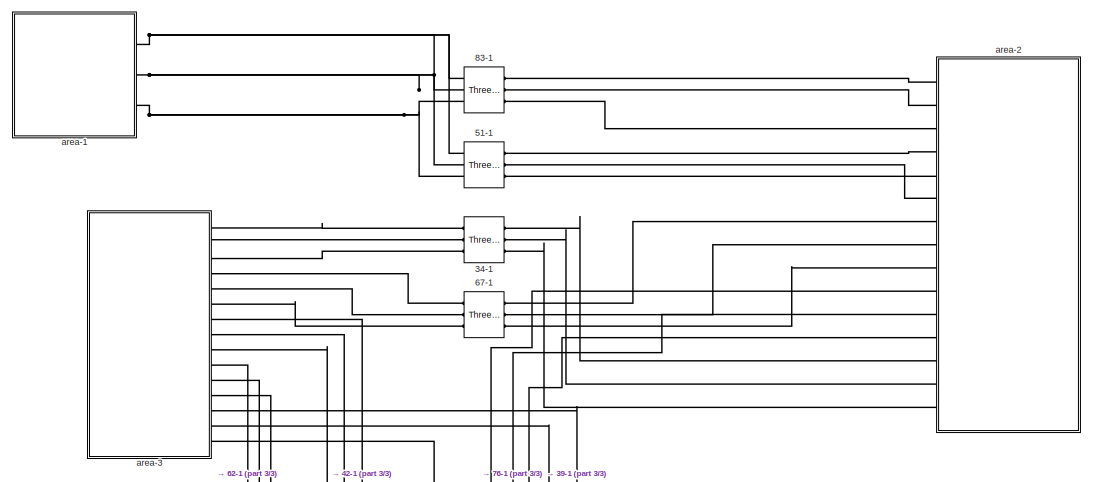
[diagram: root canvas - part 1/3, top right region]
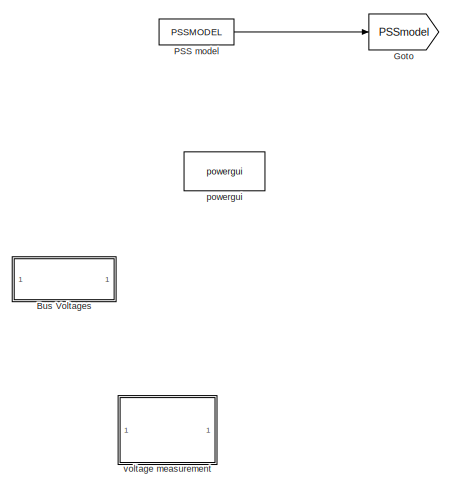
[diagram: root canvas - part 2/3, top left region]
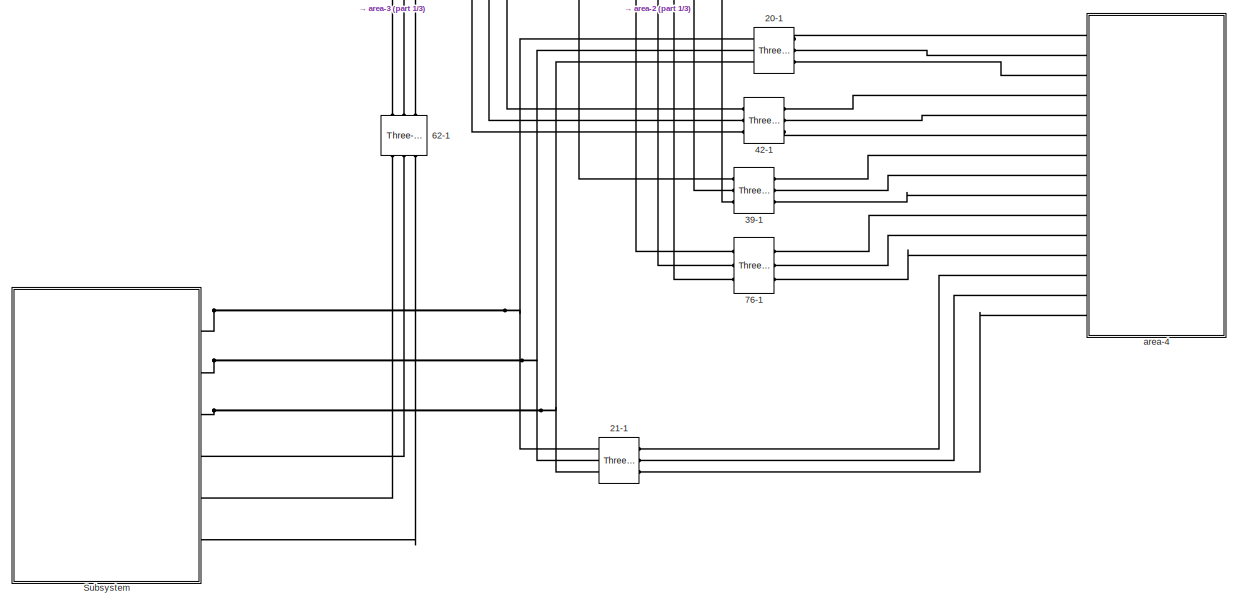
[diagram: root canvas - part 3/3, full width, bottom band]
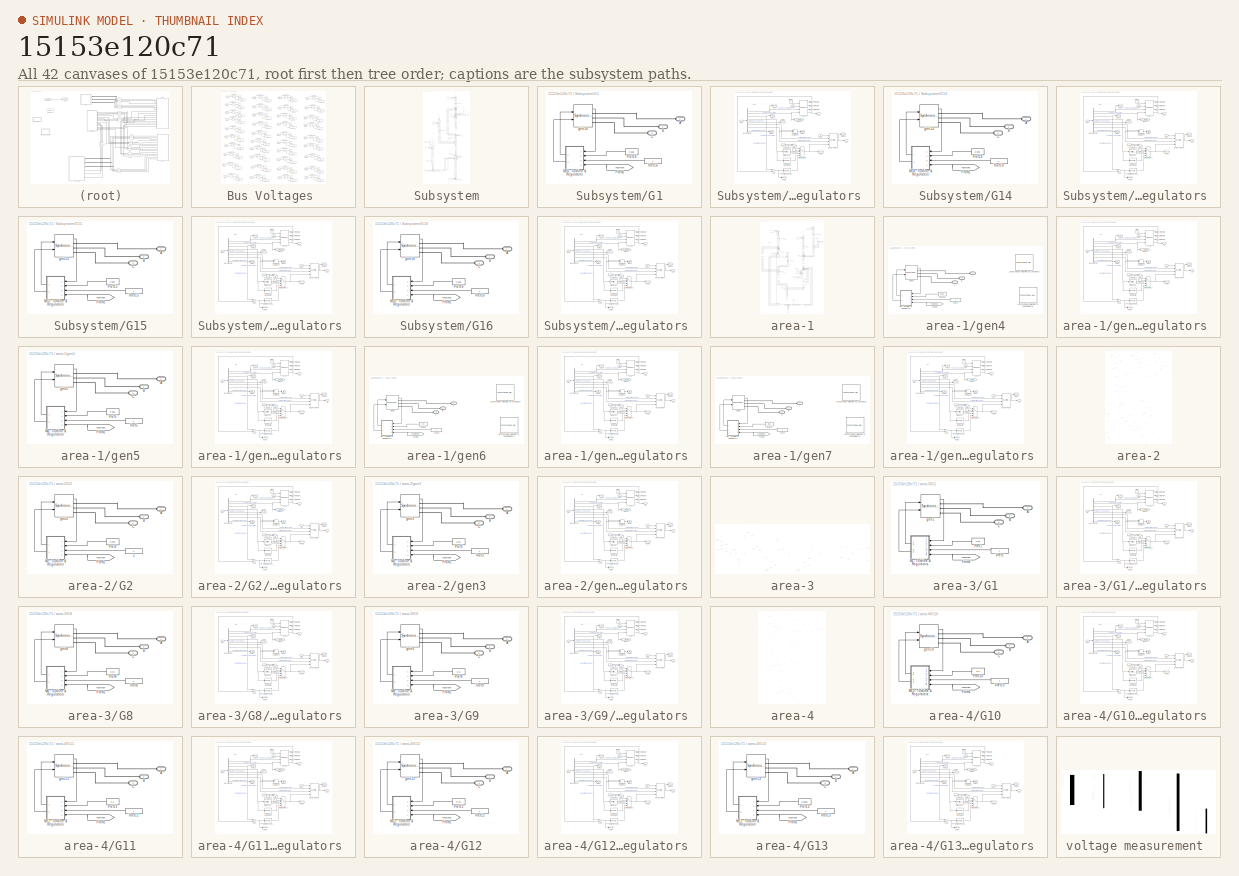
[diagram: thumbnail index - all 42 canvases of the model, root first then tree order]
MODEL slx_15153e120c71
KIND model
CONFIG AbsTol = auto
CONFIG EnableMultiTasking = off
CONFIG FixedStep = Ts
CONFIG InitFcn = PSSMODEL=1;\nLPSS=0;\nWAPSS=0;\nWAPSS2=0;\nTs=50e-5;\n\n% Required data to 68 Bus benchmark\n% clear\n% clc\n% Definition for the columns\n% system base =100 MVA\n\n%% Line data Format (line)\n% All values are given on the same system base MVA\n% 1: From bus  \n% 2: To bus   \n% 3: Resistance (pu)\n% 4: Reactance  (pu)\n% 5: Charge     (pu)\n% 6: Transformer Tap Amplitute\n% 7: base MVA\n% 8: Nomonal Voltage (KV) \n\n%1...<+9835ch>
CONFIG MaxStep = auto
CONFIG MinStep = auto
CONFIG PreLoadFcn = PSSMODEL=1;\nLPSS=0;\nWAPSS=0;\nWAPSS2=0;\nTs=50e-5;\n
CONFIG RelTol = 1e-3
CONFIG SampleTimeConstraint = Unconstrained
CONFIG Solver = ode23tb
CONFIG SolverName = ode23tb
CONFIG StartTime = 0.0
CONFIG StopTime = 10.0
BLOCK [Reference] 20-1  REF=powerlib/Elements/Three-Phase
PI Section Line
  AttributesFormatString = \n
  Ports = [0, 0, 0, 0, 0, 3, 3]
  SourceBlock = powerlib/Elements/Three-Phase\nPI Section Line
  SourceProductBaseCode = PS
  SourceProductName = Simscape Electrical
  SourceType = Three-Phase PI Section Line
BLOCK [Reference] 21-1  REF=powerlib/Elements/Three-Phase
PI Section Line
  AttributesFormatString = \n
  Ports = [0, 0, 0, 0, 0, 3, 3]
  SourceBlock = powerlib/Elements/Three-Phase\nPI Section Line
  SourceProductBaseCode = PS
  SourceProductName = Simscape Electrical
  SourceType = Three-Phase PI Section Line
BLOCK [Reference] 34-1  REF=powerlib/Elements/Three-Phase
PI Section Line
  AttributesFormatString = \n
  Ports = [0, 0, 0, 0, 0, 3, 3]
  SourceBlock = powerlib/Elements/Three-Phase\nPI Section Line
  SourceProductBaseCode = PS
  SourceProductName = Simscape Electrical
  SourceType = Three-Phase PI Section Line
BLOCK [Reference] 39-1  REF=powerlib/Elements/Three-Phase
PI Section Line
  AttributesFormatString = \n
  Ports = [0, 0, 0, 0, 0, 3, 3]
  SourceBlock = powerlib/Elements/Three-Phase\nPI Section Line
  SourceProductBaseCode = PS
  SourceProductName = Simscape Electrical
  SourceType = Three-Phase PI Section Line
BLOCK [Reference] 42-1  REF=powerlib/Elements/Three-Phase
PI Section Line
  AttributesFormatString = \n
  Ports = [0, 0, 0, 0, 0, 3, 3]
  SourceBlock = powerlib/Elements/Three-Phase\nPI Section Line
  SourceProductBaseCode = PS
  SourceProductName = Simscape Electrical
  SourceType = Three-Phase PI Section Line
BLOCK [Reference] 51-1  REF=powerlib/Elements/Three-Phase
PI Section Line
  AttributesFormatString = \n
  Ports = [0, 0, 0, 0, 0, 3, 3]
  SourceBlock = powerlib/Elements/Three-Phase\nPI Section Line
  SourceProductBaseCode = PS
  SourceProductName = Simscape Electrical
  SourceType = Three-Phase PI Section Line
BLOCK [Reference] 62-1  REF=powerlib/Elements/Three-Phase
PI Section Line
  AttributesFormatString = \n
  Ports = [0, 0, 0, 0, 0, 3, 3]
  SourceBlock = powerlib/Elements/Three-Phase\nPI Section Line
  SourceProductBaseCode = PS
  SourceProductName = Simscape Electrical
  SourceType = Three-Phase PI Section Line
BLOCK [Reference] 67-1  REF=powerlib/Elements/Three-Phase
PI Section Line
  AttributesFormatString = \n
  Ports = [0, 0, 0, 0, 0, 3, 3]
  SourceBlock = powerlib/Elements/Three-Phase\nPI Section Line
  SourceProductBaseCode = PS
  SourceProductName = Simscape Electrical
  SourceType = Three-Phase PI Section Line
BLOCK [Reference] 76-1  REF=powerlib/Elements/Three-Phase
PI Section Line
  AttributesFormatString = \n
  Ports = [0, 0, 0, 0, 0, 3, 3]
  SourceBlock = powerlib/Elements/Three-Phase\nPI Section Line
  SourceProductBaseCode = PS
  SourceProductName = Simscape Electrical
  SourceType = Three-Phase PI Section Line
BLOCK [Reference] 83-1  REF=powerlib/Elements/Three-Phase
PI Section Line
  AttributesFormatString = \n
  Ports = [0, 0, 0, 0, 0, 3, 3]
  SourceBlock = powerlib/Elements/Three-Phase\nPI Section Line
  SourceProductBaseCode = PS
  SourceProductName = Simscape Electrical
  SourceType = Three-Phase PI Section Line
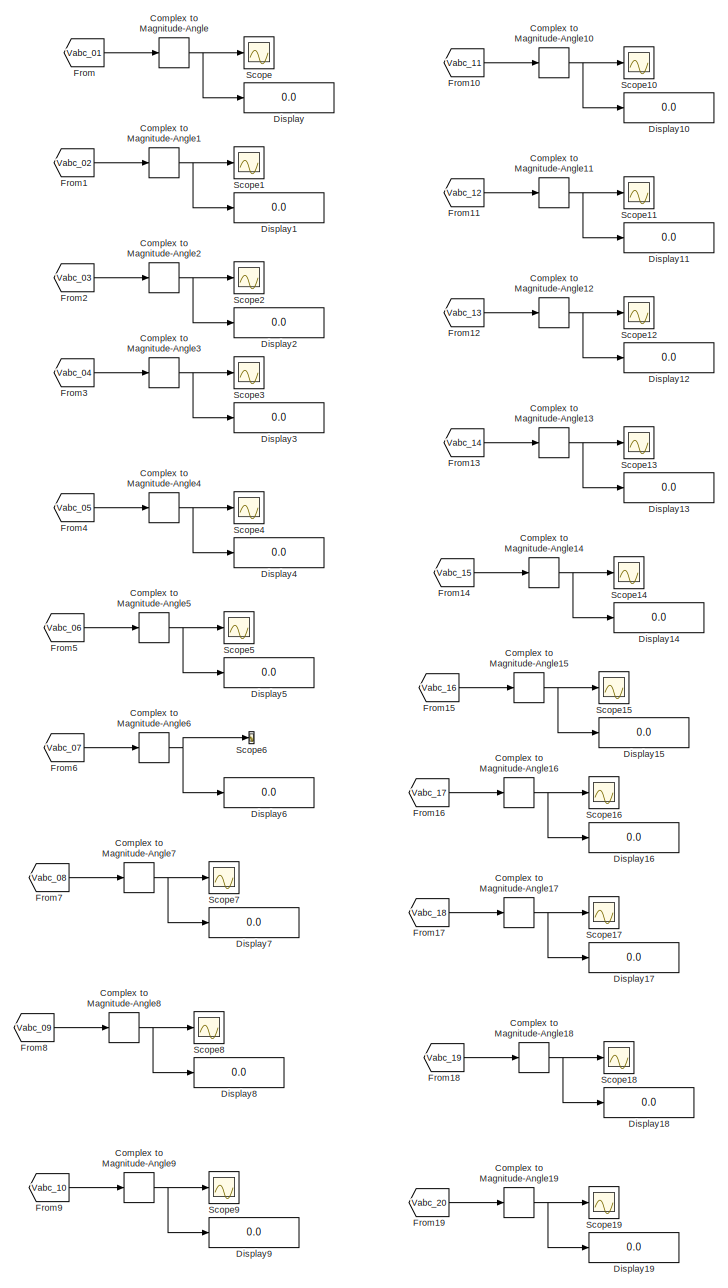
[diagram: Bus Voltages  - part 1/2, left side, full height]
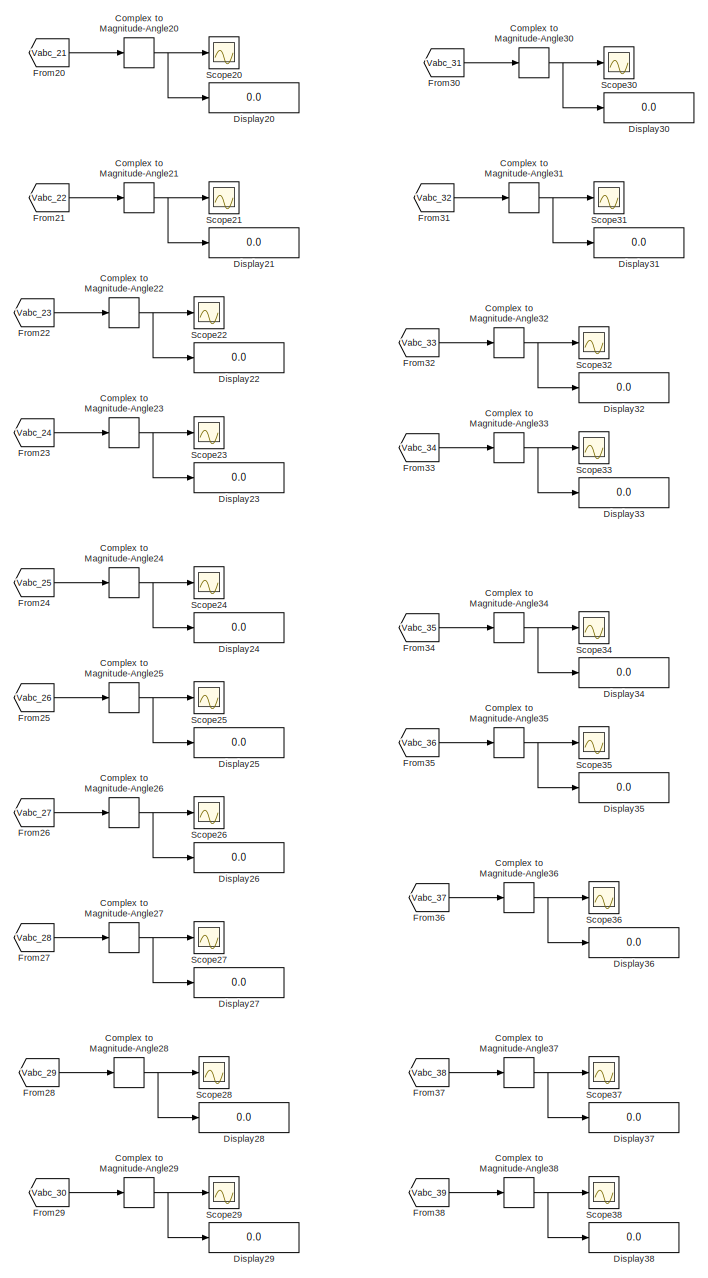
[diagram: Bus Voltages  - part 2/2, right side, full height]
BLOCK [SubSystem] Bus Voltages 
  Commented = on
  Ports = []
  RequestExecContextInheritance = off
BLOCK [ComplexToMagnitudeAngle] Bus Voltages /Complex to Magnitude-Angle
  Output = Magnitude
  Ports = [1, 1]
BLOCK [ComplexToMagnitudeAngle] Bus Voltages /Complex to Magnitude-Angle1
  Output = Magnitude
  Ports = [1, 1]
BLOCK [ComplexToMagnitudeAngle] Bus Voltages /Complex to Magnitude-Angle10
  Output = Magnitude
  Ports = [1, 1]
BLOCK [ComplexToMagnitudeAngle] Bus Voltages /Complex to Magnitude-Angle11
  Output = Magnitude
  Ports = [1, 1]
BLOCK [ComplexToMagnitudeAngle] Bus Voltages /Complex to Magnitude-Angle12
  Output = Magnitude
  Ports = [1, 1]
BLOCK [ComplexToMagnitudeAngle] Bus Voltages /Complex to Magnitude-Angle13
  Output = Magnitude
  Ports = [1, 1]
BLOCK [ComplexToMagnitudeAngle] Bus Voltages /Complex to Magnitude-Angle14
  Output = Magnitude
  Ports = [1, 1]
BLOCK [ComplexToMagnitudeAngle] Bus Voltages /Complex to Magnitude-Angle15
  Output = Magnitude
  Ports = [1, 1]
BLOCK [ComplexToMagnitudeAngle] Bus Voltages /Complex to Magnitude-Angle16
  Output = Magnitude
  Ports = [1, 1]
BLOCK [ComplexToMagnitudeAngle] Bus Voltages /Complex to Magnitude-Angle17
  Output = Magnitude
  Ports = [1, 1]
BLOCK [ComplexToMagnitudeAngle] Bus Voltages /Complex to Magnitude-Angle18
  Output = Magnitude
  Ports = [1, 1]
BLOCK [ComplexToMagnitudeAngle] Bus Voltages /Complex to Magnitude-Angle19
  Output = Magnitude
  Ports = [1, 1]
BLOCK [ComplexToMagnitudeAngle] Bus Voltages /Complex to Magnitude-Angle2
  Output = Magnitude
  Ports = [1, 1]
BLOCK [ComplexToMagnitudeAngle] Bus Voltages /Complex to Magnitude-Angle20
  Output = Magnitude
  Ports = [1, 1]
BLOCK [ComplexToMagnitudeAngle] Bus Voltages /Complex to Magnitude-Angle21
  Output = Magnitude
  Ports = [1, 1]
BLOCK [ComplexToMagnitudeAngle] Bus Voltages /Complex to Magnitude-Angle22
  Output = Magnitude
  Ports = [1, 1]
BLOCK [ComplexToMagnitudeAngle] Bus Voltages /Complex to Magnitude-Angle23
  Output = Magnitude
  Ports = [1, 1]
BLOCK [ComplexToMagnitudeAngle] Bus Voltages /Complex to Magnitude-Angle24
  Output = Magnitude
  Ports = [1, 1]
BLOCK [ComplexToMagnitudeAngle] Bus Voltages /Complex to Magnitude-Angle25
  Output = Magnitude
  Ports = [1, 1]
BLOCK [ComplexToMagnitudeAngle] Bus Voltages /Complex to Magnitude-Angle26
  Output = Magnitude
  Ports = [1, 1]
BLOCK [ComplexToMagnitudeAngle] Bus Voltages /Complex to Magnitude-Angle27
  Output = Magnitude
  Ports = [1, 1]
BLOCK [ComplexToMagnitudeAngle] Bus Voltages /Complex to Magnitude-Angle28
  Output = Magnitude
  Ports = [1, 1]
BLOCK [ComplexToMagnitudeAngle] Bus Voltages /Complex to Magnitude-Angle29
  Output = Magnitude
  Ports = [1, 1]
BLOCK [ComplexToMagnitudeAngle] Bus Voltages /Complex to Magnitude-Angle3
  Output = Magnitude
  Ports = [1, 1]
BLOCK [ComplexToMagnitudeAngle] Bus Voltages /Complex to Magnitude-Angle30
  Output = Magnitude
  Ports = [1, 1]
BLOCK [ComplexToMagnitudeAngle] Bus Voltages /Complex to Magnitude-Angle31
  Output = Magnitude
  Ports = [1, 1]
BLOCK [ComplexToMagnitudeAngle] Bus Voltages /Complex to Magnitude-Angle32
  Output = Magnitude
  Ports = [1, 1]
BLOCK [ComplexToMagnitudeAngle] Bus Voltages /Complex to Magnitude-Angle33
  Output = Magnitude
  Ports = [1, 1]
BLOCK [ComplexToMagnitudeAngle] Bus Voltages /Complex to Magnitude-Angle34
  Output = Magnitude
  Ports = [1, 1]
BLOCK [ComplexToMagnitudeAngle] Bus Voltages /Complex to Magnitude-Angle35
  Output = Magnitude
  Ports = [1, 1]
BLOCK [ComplexToMagnitudeAngle] Bus Voltages /Complex to Magnitude-Angle36
  Output = Magnitude
  Ports = [1, 1]
BLOCK [ComplexToMagnitudeAngle] Bus Voltages /Complex to Magnitude-Angle37
  Output = Magnitude
  Ports = [1, 1]
BLOCK [ComplexToMagnitudeAngle] Bus Voltages /Complex to Magnitude-Angle38
  Output = Magnitude
  Ports = [1, 1]
BLOCK [ComplexToMagnitudeAngle] Bus Voltages /Complex to Magnitude-Angle4
  Output = Magnitude
  Ports = [1, 1]
BLOCK [ComplexToMagnitudeAngle] Bus Voltages /Complex to Magnitude-Angle5
  Output = Magnitude
  Ports = [1, 1]
BLOCK [ComplexToMagnitudeAngle] Bus Voltages /Complex to Magnitude-Angle6
  Output = Magnitude
  Ports = [1, 1]
BLOCK [ComplexToMagnitudeAngle] Bus Voltages /Complex to Magnitude-Angle7
  Output = Magnitude
  Ports = [1, 1]
BLOCK [ComplexToMagnitudeAngle] Bus Voltages /Complex to Magnitude-Angle8
  Output = Magnitude
  Ports = [1, 1]
BLOCK [ComplexToMagnitudeAngle] Bus Voltages /Complex to Magnitude-Angle9
  Output = Magnitude
  Ports = [1, 1]
BLOCK [Display] Bus Voltages /Display
  Decimation = 1
  Ports = [1]
BLOCK [Display] Bus Voltages /Display1
  Decimation = 1
  Ports = [1]
BLOCK [Display] Bus Voltages /Display10
  Decimation = 1
  Ports = [1]
BLOCK [Display] Bus Voltages /Display11
  Decimation = 1
  Ports = [1]
BLOCK [Display] Bus Voltages /Display12
  Decimation = 1
  Ports = [1]
BLOCK [Display] Bus Voltages /Display13
  Decimation = 1
  Ports = [1]
BLOCK [Display] Bus Voltages /Display14
  Decimation = 1
  Ports = [1]
BLOCK [Display] Bus Voltages /Display15
  Decimation = 1
  Ports = [1]
BLOCK [Display] Bus Voltages /Display16
  Decimation = 1
  Ports = [1]
BLOCK [Display] Bus Voltages /Display17
  Decimation = 1
  Ports = [1]
BLOCK [Display] Bus Voltages /Display18
  Decimation = 1
  Ports = [1]
BLOCK [Display] Bus Voltages /Display19
  Decimation = 1
  Ports = [1]
BLOCK [Display] Bus Voltages /Display2
  Decimation = 1
  Ports = [1]
BLOCK [Display] Bus Voltages /Display20
  Decimation = 1
  Ports = [1]
BLOCK [Display] Bus Voltages /Display21
  Decimation = 1
  Ports = [1]
BLOCK [Display] Bus Voltages /Display22
  Decimation = 1
  Ports = [1]
BLOCK [Display] Bus Voltages /Display23
  Decimation = 1
  Ports = [1]
BLOCK [Display] Bus Voltages /Display24
  Decimation = 1
  Ports = [1]
BLOCK [Display] Bus Voltages /Display25
  Decimation = 1
  Ports = [1]
BLOCK [Display] Bus Voltages /Display26
  Decimation = 1
  Ports = [1]
BLOCK [Display] Bus Voltages /Display27
  Decimation = 1
  Ports = [1]
BLOCK [Display] Bus Voltages /Display28
  Decimation = 1
  Ports = [1]
BLOCK [Display] Bus Voltages /Display29
  Decimation = 1
  Ports = [1]
BLOCK [Display] Bus Voltages /Display3
  Decimation = 1
  Ports = [1]
BLOCK [Display] Bus Voltages /Display30
  Decimation = 1
  Ports = [1]
BLOCK [Display] Bus Voltages /Display31
  Decimation = 1
  Ports = [1]
BLOCK [Display] Bus Voltages /Display32
  Decimation = 1
  Ports = [1]
BLOCK [Display] Bus Voltages /Display33
  Decimation = 1
  Ports = [1]
BLOCK [Display] Bus Voltages /Display34
  Decimation = 1
  Ports = [1]
BLOCK [Display] Bus Voltages /Display35
  Decimation = 1
  Ports = [1]
BLOCK [Display] Bus Voltages /Display36
  Decimation = 1
  Ports = [1]
BLOCK [Display] Bus Voltages /Display37
  Decimation = 1
  Ports = [1]
BLOCK [Display] Bus Voltages /Display38
  Decimation = 1
  Ports = [1]
BLOCK [Display] Bus Voltages /Display4
  Decimation = 1
  Ports = [1]
BLOCK [Display] Bus Voltages /Display5
  Decimation = 1
  Ports = [1]
BLOCK [Display] Bus Voltages /Display6
  Decimation = 1
  Ports = [1]
BLOCK [Display] Bus Voltages /Display7
  Decimation = 1
  Ports = [1]
BLOCK [Display] Bus Voltages /Display8
  Decimation = 1
  Ports = [1]
BLOCK [Display] Bus Voltages /Display9
  Decimation = 1
  Ports = [1]
BLOCK [From] Bus Voltages /From
  GotoTag = Vabc_01
  TagVisibility = global
BLOCK [From] Bus Voltages /From1
  GotoTag = Vabc_02
  TagVisibility = global
BLOCK [From] Bus Voltages /From10
  GotoTag = Vabc_11
  TagVisibility = global
BLOCK [From] Bus Voltages /From11
  GotoTag = Vabc_12
  TagVisibility = global
BLOCK [From] Bus Voltages /From12
  GotoTag = Vabc_13
  TagVisibility = global
BLOCK [From] Bus Voltages /From13
  GotoTag = Vabc_14
  TagVisibility = global
BLOCK [From] Bus Voltages /From14
  GotoTag = Vabc_15
  TagVisibility = global
BLOCK [From] Bus Voltages /From15
  GotoTag = Vabc_16
  TagVisibility = global
BLOCK [From] Bus Voltages /From16
  GotoTag = Vabc_17
  TagVisibility = global
BLOCK [From] Bus Voltages /From17
  GotoTag = Vabc_18
  TagVisibility = global
BLOCK [From] Bus Voltages /From18
  GotoTag = Vabc_19
  TagVisibility = global
BLOCK [From] Bus Voltages /From19
  GotoTag = Vabc_20
  TagVisibility = global
BLOCK [From] Bus Voltages /From2
  GotoTag = Vabc_03
  TagVisibility = global
BLOCK [From] Bus Voltages /From20
  GotoTag = Vabc_21
  TagVisibility = global
BLOCK [From] Bus Voltages /From21
  GotoTag = Vabc_22
  TagVisibility = global
BLOCK [From] Bus Voltages /From22
  GotoTag = Vabc_23
  TagVisibility = global
BLOCK [From] Bus Voltages /From23
  GotoTag = Vabc_24
  TagVisibility = global
BLOCK [From] Bus Voltages /From24
  GotoTag = Vabc_25
  TagVisibility = global
BLOCK [From] Bus Voltages /From25
  GotoTag = Vabc_26
  TagVisibility = global
BLOCK [From] Bus Voltages /From26
  GotoTag = Vabc_27
  TagVisibility = global
BLOCK [From] Bus Voltages /From27
  GotoTag = Vabc_28
  TagVisibility = global
BLOCK [From] Bus Voltages /From28
  GotoTag = Vabc_29
  TagVisibility = global
BLOCK [From] Bus Voltages /From29
  GotoTag = Vabc_30
  TagVisibility = global
BLOCK [From] Bus Voltages /From3
  GotoTag = Vabc_04
  TagVisibility = global
BLOCK [From] Bus Voltages /From30
  GotoTag = Vabc_31
  TagVisibility = global
BLOCK [From] Bus Voltages /From31
  GotoTag = Vabc_32
  TagVisibility = global
BLOCK [From] Bus Voltages /From32
  GotoTag = Vabc_33
  TagVisibility = global
BLOCK [From] Bus Voltages /From33
  GotoTag = Vabc_34
  TagVisibility = global
BLOCK [From] Bus Voltages /From34
  GotoTag = Vabc_35
  TagVisibility = global
BLOCK [From] Bus Voltages /From35
  GotoTag = Vabc_36
  TagVisibility = global
BLOCK [From] Bus Voltages /From36
  GotoTag = Vabc_37
  TagVisibility = global
BLOCK [From] Bus Voltages /From37
  GotoTag = Vabc_38
  TagVisibility = global
BLOCK [From] Bus Voltages /From38
  GotoTag = Vabc_39
  TagVisibility = global
BLOCK [From] Bus Voltages /From4
  GotoTag = Vabc_05
  TagVisibility = global
BLOCK [From] Bus Voltages /From5
  GotoTag = Vabc_06
  TagVisibility = global
BLOCK [From] Bus Voltages /From6
  GotoTag = Vabc_07
  TagVisibility = global
BLOCK [From] Bus Voltages /From7
  GotoTag = Vabc_08
  TagVisibility = global
BLOCK [From] Bus Voltages /From8
  GotoTag = Vabc_09
  TagVisibility = global
BLOCK [From] Bus Voltages /From9
  GotoTag = Vabc_10
  TagVisibility = global
BLOCK [Scope] Bus Voltages /Scope
  Floating = off
  NumInputPorts = 1
  Ports = [1]
  ScopeSpecificationString = Simulink.scopes.TimeScopeBlockCfg('CurrentConfiguration', extmgr.ConfigurationSet(extmgr.Configuration('Core','General UI',true),extmgr.Configuration('Core','Source UI',true),extmgr.Configuration('Sources','WiredSimulink',true),extmgr.Configuration('Visuals','Time Domain',true),extmgr.Configuration('Tools','Plot Navigation',true),extmgr.Configuration('Tools','Measurements',true)),'Version','2019b'...<+1ch>
BLOCK [Scope] Bus Voltages /Scope1
  Floating = off
  NumInputPorts = 1
  Ports = [1]
  ScopeSpecificationString = Simulink.scopes.TimeScopeBlockCfg('CurrentConfiguration', extmgr.ConfigurationSet(extmgr.Configuration('Core','General UI',true),extmgr.Configuration('Core','Source UI',true),extmgr.Configuration('Sources','WiredSimulink',true,'DataLoggingVariableName','ScopeData1'),extmgr.Configuration('Visuals','Time Domain',true),extmgr.Configuration('Tools','Plot Navigation',true),extmgr.Configuration('Tools',...<+40ch>
BLOCK [Scope] Bus Voltages /Scope10
  Floating = off
  NumInputPorts = 1
  Ports = [1]
  ScopeSpecificationString = Simulink.scopes.TimeScopeBlockCfg('CurrentConfiguration', extmgr.ConfigurationSet(extmgr.Configuration('Core','General UI',true),extmgr.Configuration('Core','Source UI',true),extmgr.Configuration('Sources','WiredSimulink',true,'DataLoggingVariableName','ScopeData10'),extmgr.Configuration('Visuals','Time Domain',true),extmgr.Configuration('Tools','Plot Navigation',true),extmgr.Configuration('Tools'...<+41ch>
BLOCK [Scope] Bus Voltages /Scope11
  Floating = off
  NumInputPorts = 1
  Ports = [1]
  ScopeSpecificationString = Simulink.scopes.TimeScopeBlockCfg('CurrentConfiguration', extmgr.ConfigurationSet(extmgr.Configuration('Core','General UI',true),extmgr.Configuration('Core','Source UI',true),extmgr.Configuration('Sources','WiredSimulink',true,'DataLoggingVariableName','ScopeData11'),extmgr.Configuration('Visuals','Time Domain',true),extmgr.Configuration('Tools','Plot Navigation',true),extmgr.Configuration('Tools'...<+41ch>
BLOCK [Scope] Bus Voltages /Scope12
  Floating = off
  NumInputPorts = 1
  Ports = [1]
  ScopeSpecificationString = Simulink.scopes.TimeScopeBlockCfg('CurrentConfiguration', extmgr.ConfigurationSet(extmgr.Configuration('Core','General UI',true),extmgr.Configuration('Core','Source UI',true),extmgr.Configuration('Sources','WiredSimulink',true,'DataLoggingVariableName','ScopeData12'),extmgr.Configuration('Visuals','Time Domain',true),extmgr.Configuration('Tools','Plot Navigation',true),extmgr.Configuration('Tools'...<+41ch>
BLOCK [Scope] Bus Voltages /Scope13
  Floating = off
  NumInputPorts = 1
  Ports = [1]
  ScopeSpecificationString = Simulink.scopes.TimeScopeBlockCfg('CurrentConfiguration', extmgr.ConfigurationSet(extmgr.Configuration('Core','General UI',true),extmgr.Configuration('Core','Source UI',true),extmgr.Configuration('Sources','WiredSimulink',true,'DataLoggingVariableName','ScopeData13'),extmgr.Configuration('Visuals','Time Domain',true),extmgr.Configuration('Tools','Plot Navigation',true),extmgr.Configuration('Tools'...<+41ch>
BLOCK [Scope] Bus Voltages /Scope14
  Floating = off
  NumInputPorts = 1
  Ports = [1]
  ScopeSpecificationString = Simulink.scopes.TimeScopeBlockCfg('CurrentConfiguration', extmgr.ConfigurationSet(extmgr.Configuration('Core','General UI',true),extmgr.Configuration('Core','Source UI',true),extmgr.Configuration('Sources','WiredSimulink',true,'DataLoggingVariableName','ScopeData14'),extmgr.Configuration('Visuals','Time Domain',true),extmgr.Configuration('Tools','Plot Navigation',true),extmgr.Configuration('Tools'...<+41ch>
BLOCK [Scope] Bus Voltages /Scope15
  Floating = off
  NumInputPorts = 1
  Ports = [1]
  ScopeSpecificationString = Simulink.scopes.TimeScopeBlockCfg('CurrentConfiguration', extmgr.ConfigurationSet(extmgr.Configuration('Core','General UI',true),extmgr.Configuration('Core','Source UI',true),extmgr.Configuration('Sources','WiredSimulink',true,'DataLoggingVariableName','ScopeData15'),extmgr.Configuration('Visuals','Time Domain',true),extmgr.Configuration('Tools','Plot Navigation',true),extmgr.Configuration('Tools'...<+41ch>
BLOCK [Scope] Bus Voltages /Scope16
  Floating = off
  NumInputPorts = 1
  Ports = [1]
  ScopeSpecificationString = Simulink.scopes.TimeScopeBlockCfg('CurrentConfiguration', extmgr.ConfigurationSet(extmgr.Configuration('Core','General UI',true),extmgr.Configuration('Core','Source UI',true),extmgr.Configuration('Sources','WiredSimulink',true,'DataLoggingVariableName','ScopeData16'),extmgr.Configuration('Visuals','Time Domain',true),extmgr.Configuration('Tools','Plot Navigation',true),extmgr.Configuration('Tools'...<+41ch>
BLOCK [Scope] Bus Voltages /Scope17
  Floating = off
  NumInputPorts = 1
  Ports = [1]
  ScopeSpecificationString = Simulink.scopes.TimeScopeBlockCfg('CurrentConfiguration', extmgr.ConfigurationSet(extmgr.Configuration('Core','General UI',true),extmgr.Configuration('Core','Source UI',true),extmgr.Configuration('Sources','WiredSimulink',true,'DataLoggingVariableName','ScopeData17'),extmgr.Configuration('Visuals','Time Domain',true),extmgr.Configuration('Tools','Plot Navigation',true),extmgr.Configuration('Tools'...<+41ch>
BLOCK [Scope] Bus Voltages /Scope18
  Floating = off
  NumInputPorts = 1
  Ports = [1]
  ScopeSpecificationString = Simulink.scopes.TimeScopeBlockCfg('CurrentConfiguration', extmgr.ConfigurationSet(extmgr.Configuration('Core','General UI',true),extmgr.Configuration('Core','Source UI',true),extmgr.Configuration('Sources','WiredSimulink',true,'DataLoggingVariableName','ScopeData18'),extmgr.Configuration('Visuals','Time Domain',true),extmgr.Configuration('Tools','Plot Navigation',true),extmgr.Configuration('Tools'...<+41ch>
BLOCK [Scope] Bus Voltages /Scope19
  Floating = off
  NumInputPorts = 1
  Ports = [1]
  ScopeSpecificationString = Simulink.scopes.TimeScopeBlockCfg('CurrentConfiguration', extmgr.ConfigurationSet(extmgr.Configuration('Core','General UI',true),extmgr.Configuration('Core','Source UI',true),extmgr.Configuration('Sources','WiredSimulink',true,'DataLoggingVariableName','ScopeData19'),extmgr.Configuration('Visuals','Time Domain',true),extmgr.Configuration('Tools','Plot Navigation',true),extmgr.Configuration('Tools'...<+41ch>
BLOCK [Scope] Bus Voltages /Scope2
  Floating = off
  NumInputPorts = 1
  Ports = [1]
  ScopeSpecificationString = Simulink.scopes.TimeScopeBlockCfg('CurrentConfiguration', extmgr.ConfigurationSet(extmgr.Configuration('Core','General UI',true),extmgr.Configuration('Core','Source UI',true),extmgr.Configuration('Sources','WiredSimulink',true,'DataLoggingVariableName','ScopeData2'),extmgr.Configuration('Visuals','Time Domain',true),extmgr.Configuration('Tools','Plot Navigation',true),extmgr.Configuration('Tools',...<+40ch>
BLOCK [Scope] Bus Voltages /Scope20
  Floating = off
  NumInputPorts = 1
  Ports = [1]
  ScopeSpecificationString = Simulink.scopes.TimeScopeBlockCfg('CurrentConfiguration', extmgr.ConfigurationSet(extmgr.Configuration('Core','General UI',true),extmgr.Configuration('Core','Source UI',true),extmgr.Configuration('Sources','WiredSimulink',true,'DataLoggingVariableName','ScopeData20'),extmgr.Configuration('Visuals','Time Domain',true),extmgr.Configuration('Tools','Plot Navigation',true),extmgr.Configuration('Tools'...<+41ch>
BLOCK [Scope] Bus Voltages /Scope21
  Floating = off
  NumInputPorts = 1
  Ports = [1]
  ScopeSpecificationString = Simulink.scopes.TimeScopeBlockCfg('CurrentConfiguration', extmgr.ConfigurationSet(extmgr.Configuration('Core','General UI',true),extmgr.Configuration('Core','Source UI',true),extmgr.Configuration('Sources','WiredSimulink',true,'DataLoggingVariableName','ScopeData21'),extmgr.Configuration('Visuals','Time Domain',true),extmgr.Configuration('Tools','Plot Navigation',true),extmgr.Configuration('Tools'...<+41ch>
BLOCK [Scope] Bus Voltages /Scope22
  Floating = off
  NumInputPorts = 1
  Ports = [1]
  ScopeSpecificationString = Simulink.scopes.TimeScopeBlockCfg('CurrentConfiguration', extmgr.ConfigurationSet(extmgr.Configuration('Core','General UI',true),extmgr.Configuration('Core','Source UI',true),extmgr.Configuration('Sources','WiredSimulink',true,'DataLoggingVariableName','ScopeData22'),extmgr.Configuration('Visuals','Time Domain',true),extmgr.Configuration('Tools','Plot Navigation',true),extmgr.Configuration('Tools'...<+41ch>
BLOCK [Scope] Bus Voltages /Scope23
  Floating = off
  NumInputPorts = 1
  Ports = [1]
  ScopeSpecificationString = Simulink.scopes.TimeScopeBlockCfg('CurrentConfiguration', extmgr.ConfigurationSet(extmgr.Configuration('Core','General UI',true),extmgr.Configuration('Core','Source UI',true),extmgr.Configuration('Sources','WiredSimulink',true,'DataLoggingVariableName','ScopeData23'),extmgr.Configuration('Visuals','Time Domain',true),extmgr.Configuration('Tools','Plot Navigation',true),extmgr.Configuration('Tools'...<+41ch>
BLOCK [Scope] Bus Voltages /Scope24
  Floating = off
  NumInputPorts = 1
  Ports = [1]
  ScopeSpecificationString = Simulink.scopes.TimeScopeBlockCfg('CurrentConfiguration', extmgr.ConfigurationSet(extmgr.Configuration('Core','General UI',true),extmgr.Configuration('Core','Source UI',true),extmgr.Configuration('Sources','WiredSimulink',true,'DataLoggingVariableName','ScopeData24'),extmgr.Configuration('Visuals','Time Domain',true),extmgr.Configuration('Tools','Plot Navigation',true),extmgr.Configuration('Tools'...<+41ch>
BLOCK [Scope] Bus Voltages /Scope25
  Floating = off
  NumInputPorts = 1
  Ports = [1]
  ScopeSpecificationString = Simulink.scopes.TimeScopeBlockCfg('CurrentConfiguration', extmgr.ConfigurationSet(extmgr.Configuration('Core','General UI',true),extmgr.Configuration('Core','Source UI',true),extmgr.Configuration('Sources','WiredSimulink',true,'DataLoggingVariableName','ScopeData25'),extmgr.Configuration('Visuals','Time Domain',true),extmgr.Configuration('Tools','Plot Navigation',true),extmgr.Configuration('Tools'...<+41ch>
BLOCK [Scope] Bus Voltages /Scope26
  Floating = off
  NumInputPorts = 1
  Ports = [1]
  ScopeSpecificationString = Simulink.scopes.TimeScopeBlockCfg('CurrentConfiguration', extmgr.ConfigurationSet(extmgr.Configuration('Core','General UI',true),extmgr.Configuration('Core','Source UI',true),extmgr.Configuration('Sources','WiredSimulink',true,'DataLoggingVariableName','ScopeData26'),extmgr.Configuration('Visuals','Time Domain',true),extmgr.Configuration('Tools','Plot Navigation',true),extmgr.Configuration('Tools'...<+41ch>
BLOCK [Scope] Bus Voltages /Scope27
  Floating = off
  NumInputPorts = 1
  Ports = [1]
  ScopeSpecificationString = Simulink.scopes.TimeScopeBlockCfg('CurrentConfiguration', extmgr.ConfigurationSet(extmgr.Configuration('Core','General UI',true),extmgr.Configuration('Core','Source UI',true),extmgr.Configuration('Sources','WiredSimulink',true,'DataLoggingVariableName','ScopeData27'),extmgr.Configuration('Visuals','Time Domain',true),extmgr.Configuration('Tools','Plot Navigation',true),extmgr.Configuration('Tools'...<+41ch>
BLOCK [Scope] Bus Voltages /Scope28
  Floating = off
  NumInputPorts = 1
  Ports = [1]
  ScopeSpecificationString = Simulink.scopes.TimeScopeBlockCfg('CurrentConfiguration', extmgr.ConfigurationSet(extmgr.Configuration('Core','General UI',true),extmgr.Configuration('Core','Source UI',true),extmgr.Configuration('Sources','WiredSimulink',true,'DataLoggingVariableName','ScopeData28'),extmgr.Configuration('Visuals','Time Domain',true),extmgr.Configuration('Tools','Plot Navigation',true),extmgr.Configuration('Tools'...<+41ch>
BLOCK [Scope] Bus Voltages /Scope29
  Floating = off
  NumInputPorts = 1
  Ports = [1]
  ScopeSpecificationString = Simulink.scopes.TimeScopeBlockCfg('CurrentConfiguration', extmgr.ConfigurationSet(extmgr.Configuration('Core','General UI',true),extmgr.Configuration('Core','Source UI',true),extmgr.Configuration('Sources','WiredSimulink',true,'DataLoggingVariableName','ScopeData29'),extmgr.Configuration('Visuals','Time Domain',true),extmgr.Configuration('Tools','Plot Navigation',true),extmgr.Configuration('Tools'...<+41ch>
BLOCK [Scope] Bus Voltages /Scope3
  Floating = off
  NumInputPorts = 1
  Ports = [1]
  ScopeSpecificationString = Simulink.scopes.TimeScopeBlockCfg('CurrentConfiguration', extmgr.ConfigurationSet(extmgr.Configuration('Core','General UI',true),extmgr.Configuration('Core','Source UI',true),extmgr.Configuration('Sources','WiredSimulink',true,'DataLoggingVariableName','ScopeData3'),extmgr.Configuration('Visuals','Time Domain',true),extmgr.Configuration('Tools','Plot Navigation',true),extmgr.Configuration('Tools',...<+40ch>
BLOCK [Scope] Bus Voltages /Scope30
  Floating = off
  NumInputPorts = 1
  Ports = [1]
  ScopeSpecificationString = Simulink.scopes.TimeScopeBlockCfg('CurrentConfiguration', extmgr.ConfigurationSet(extmgr.Configuration('Core','General UI',true),extmgr.Configuration('Core','Source UI',true),extmgr.Configuration('Sources','WiredSimulink',true,'DataLoggingVariableName','ScopeData30'),extmgr.Configuration('Visuals','Time Domain',true),extmgr.Configuration('Tools','Plot Navigation',true),extmgr.Configuration('Tools'...<+41ch>
BLOCK [Scope] Bus Voltages /Scope31
  Floating = off
  NumInputPorts = 1
  Ports = [1]
  ScopeSpecificationString = Simulink.scopes.TimeScopeBlockCfg('CurrentConfiguration', extmgr.ConfigurationSet(extmgr.Configuration('Core','General UI',true),extmgr.Configuration('Core','Source UI',true),extmgr.Configuration('Sources','WiredSimulink',true,'DataLoggingVariableName','ScopeData31'),extmgr.Configuration('Visuals','Time Domain',true),extmgr.Configuration('Tools','Plot Navigation',true),extmgr.Configuration('Tools'...<+41ch>
BLOCK [Scope] Bus Voltages /Scope32
  Floating = off
  NumInputPorts = 1
  Ports = [1]
  ScopeSpecificationString = Simulink.scopes.TimeScopeBlockCfg('CurrentConfiguration', extmgr.ConfigurationSet(extmgr.Configuration('Core','General UI',true),extmgr.Configuration('Core','Source UI',true),extmgr.Configuration('Sources','WiredSimulink',true,'DataLoggingVariableName','ScopeData32'),extmgr.Configuration('Visuals','Time Domain',true),extmgr.Configuration('Tools','Plot Navigation',true),extmgr.Configuration('Tools'...<+41ch>
BLOCK [Scope] Bus Voltages /Scope33
  Floating = off
  NumInputPorts = 1
  Ports = [1]
  ScopeSpecificationString = Simulink.scopes.TimeScopeBlockCfg('CurrentConfiguration', extmgr.ConfigurationSet(extmgr.Configuration('Core','General UI',true),extmgr.Configuration('Core','Source UI',true),extmgr.Configuration('Sources','WiredSimulink',true,'DataLoggingVariableName','ScopeData33'),extmgr.Configuration('Visuals','Time Domain',true),extmgr.Configuration('Tools','Plot Navigation',true),extmgr.Configuration('Tools'...<+41ch>
BLOCK [Scope] Bus Voltages /Scope34
  Floating = off
  NumInputPorts = 1
  Ports = [1]
  ScopeSpecificationString = Simulink.scopes.TimeScopeBlockCfg('CurrentConfiguration', extmgr.ConfigurationSet(extmgr.Configuration('Core','General UI',true),extmgr.Configuration('Core','Source UI',true),extmgr.Configuration('Sources','WiredSimulink',true,'DataLoggingVariableName','ScopeData34'),extmgr.Configuration('Visuals','Time Domain',true),extmgr.Configuration('Tools','Plot Navigation',true),extmgr.Configuration('Tools'...<+41ch>
BLOCK [Scope] Bus Voltages /Scope35
  Floating = off
  NumInputPorts = 1
  Ports = [1]
  ScopeSpecificationString = Simulink.scopes.TimeScopeBlockCfg('CurrentConfiguration', extmgr.ConfigurationSet(extmgr.Configuration('Core','General UI',true),extmgr.Configuration('Core','Source UI',true),extmgr.Configuration('Sources','WiredSimulink',true,'DataLoggingVariableName','ScopeData35'),extmgr.Configuration('Visuals','Time Domain',true),extmgr.Configuration('Tools','Plot Navigation',true),extmgr.Configuration('Tools'...<+41ch>
BLOCK [Scope] Bus Voltages /Scope36
  Floating = off
  NumInputPorts = 1
  Ports = [1]
  ScopeSpecificationString = Simulink.scopes.TimeScopeBlockCfg('CurrentConfiguration', extmgr.ConfigurationSet(extmgr.Configuration('Core','General UI',true),extmgr.Configuration('Core','Source UI',true),extmgr.Configuration('Sources','WiredSimulink',true,'DataLoggingVariableName','ScopeData36'),extmgr.Configuration('Visuals','Time Domain',true),extmgr.Configuration('Tools','Plot Navigation',true),extmgr.Configuration('Tools'...<+41ch>
BLOCK [Scope] Bus Voltages /Scope37
  Floating = off
  NumInputPorts = 1
  Ports = [1]
  ScopeSpecificationString = Simulink.scopes.TimeScopeBlockCfg('CurrentConfiguration', extmgr.ConfigurationSet(extmgr.Configuration('Core','General UI',true),extmgr.Configuration('Core','Source UI',true),extmgr.Configuration('Sources','WiredSimulink',true,'DataLoggingVariableName','ScopeData37'),extmgr.Configuration('Visuals','Time Domain',true),extmgr.Configuration('Tools','Plot Navigation',true),extmgr.Configuration('Tools'...<+41ch>
BLOCK [Scope] Bus Voltages /Scope38
  Floating = off
  NumInputPorts = 1
  Ports = [1]
  ScopeSpecificationString = Simulink.scopes.TimeScopeBlockCfg('CurrentConfiguration', extmgr.ConfigurationSet(extmgr.Configuration('Core','General UI',true),extmgr.Configuration('Core','Source UI',true),extmgr.Configuration('Sources','WiredSimulink',true,'DataLoggingVariableName','ScopeData38'),extmgr.Configuration('Visuals','Time Domain',true),extmgr.Configuration('Tools','Plot Navigation',true),extmgr.Configuration('Tools'...<+41ch>
BLOCK [Scope] Bus Voltages /Scope4
  Floating = off
  NumInputPorts = 1
  Ports = [1]
  ScopeSpecificationString = Simulink.scopes.TimeScopeBlockCfg('CurrentConfiguration', extmgr.ConfigurationSet(extmgr.Configuration('Core','General UI',true),extmgr.Configuration('Core','Source UI',true),extmgr.Configuration('Sources','WiredSimulink',true,'DataLoggingVariableName','ScopeData4'),extmgr.Configuration('Visuals','Time Domain',true),extmgr.Configuration('Tools','Plot Navigation',true),extmgr.Configuration('Tools',...<+40ch>
BLOCK [Scope] Bus Voltages /Scope5
  Floating = off
  NumInputPorts = 1
  Ports = [1]
  ScopeSpecificationString = Simulink.scopes.TimeScopeBlockCfg('CurrentConfiguration', extmgr.ConfigurationSet(extmgr.Configuration('Core','General UI',true),extmgr.Configuration('Core','Source UI',true),extmgr.Configuration('Sources','WiredSimulink',true,'DataLoggingVariableName','ScopeData5'),extmgr.Configuration('Visuals','Time Domain',true),extmgr.Configuration('Tools','Plot Navigation',true),extmgr.Configuration('Tools',...<+40ch>
BLOCK [Scope] Bus Voltages /Scope6
  Floating = off
  NumInputPorts = 1
  Ports = [1]
  ScopeSpecificationString = Simulink.scopes.TimeScopeBlockCfg('CurrentConfiguration', extmgr.ConfigurationSet(extmgr.Configuration('Core','General UI',true),extmgr.Configuration('Core','Source UI',true),extmgr.Configuration('Sources','WiredSimulink',true,'DataLoggingVariableName','ScopeData6'),extmgr.Configuration('Visuals','Time Domain',true),extmgr.Configuration('Tools','Plot Navigation',true),extmgr.Configuration('Tools',...<+40ch>
BLOCK [Scope] Bus Voltages /Scope7
  Floating = off
  NumInputPorts = 1
  Ports = [1]
  ScopeSpecificationString = Simulink.scopes.TimeScopeBlockCfg('CurrentConfiguration', extmgr.ConfigurationSet(extmgr.Configuration('Core','General UI',true),extmgr.Configuration('Core','Source UI',true),extmgr.Configuration('Sources','WiredSimulink',true,'DataLoggingVariableName','ScopeData7'),extmgr.Configuration('Visuals','Time Domain',true),extmgr.Configuration('Tools','Plot Navigation',true),extmgr.Configuration('Tools',...<+40ch>
BLOCK [Scope] Bus Voltages /Scope8
  Floating = off
  NumInputPorts = 1
  Ports = [1]
  ScopeSpecificationString = Simulink.scopes.TimeScopeBlockCfg('CurrentConfiguration', extmgr.ConfigurationSet(extmgr.Configuration('Core','General UI',true),extmgr.Configuration('Core','Source UI',true),extmgr.Configuration('Sources','WiredSimulink',true,'DataLoggingVariableName','ScopeData8'),extmgr.Configuration('Visuals','Time Domain',true),extmgr.Configuration('Tools','Plot Navigation',true),extmgr.Configuration('Tools',...<+40ch>
BLOCK [Scope] Bus Voltages /Scope9
  Floating = off
  NumInputPorts = 1
  Ports = [1]
  ScopeSpecificationString = Simulink.scopes.TimeScopeBlockCfg('CurrentConfiguration', extmgr.ConfigurationSet(extmgr.Configuration('Core','General UI',true),extmgr.Configuration('Core','Source UI',true),extmgr.Configuration('Sources','WiredSimulink',true,'DataLoggingVariableName','ScopeData9'),extmgr.Configuration('Visuals','Time Domain',true),extmgr.Configuration('Tools','Plot Navigation',true),extmgr.Configuration('Tools',...<+40ch>
BLOCK [Goto] Goto
  GotoTag = PSSmodel
  TagVisibility = global
BLOCK [Constant] PSS model
  Value = PSSMODEL
BLOCK [SubSystem] Subsystem
  Ports = [0, 0, 0, 0, 0, 0, 6]
  RequestExecContextInheritance = off
BLOCK [Reference] Subsystem/1  REF=powerlib/Measurements/Three-Phase
V-I Measurement
  Ports = [0, 0, 0, 0, 0, 3, 3]
  SourceBlock = powerlib/Measurements/Three-Phase\nV-I Measurement
  SourceProductBaseCode = PS
  SourceProductName = Simscape Electrical
  SourceType = Three-Phase VI Measurement
BLOCK [Reference] Subsystem/14  REF=powerlib/Measurements/Three-Phase
V-I Measurement
  Ports = [0, 0, 0, 0, 0, 3, 3]
  SourceBlock = powerlib/Measurements/Three-Phase\nV-I Measurement
  SourceProductBaseCode = PS
  SourceProductName = Simscape Electrical
  SourceType = Three-Phase VI Measurement
BLOCK [Reference] Subsystem/15  REF=powerlib/Measurements/Three-Phase
V-I Measurement
  Ports = [0, 0, 0, 0, 0, 3, 3]
  SourceBlock = powerlib/Measurements/Three-Phase\nV-I Measurement
  SourceProductBaseCode = PS
  SourceProductName = Simscape Electrical
  SourceType = Three-Phase VI Measurement
BLOCK [Reference] Subsystem/16  REF=powerlib/Measurements/Three-Phase
V-I Measurement
  Ports = [0, 0, 0, 0, 0, 3, 3]
  SourceBlock = powerlib/Measurements/Three-Phase\nV-I Measurement
  SourceProductBaseCode = PS
  SourceProductName = Simscape Electrical
  SourceType = Three-Phase VI Measurement
BLOCK [Reference] Subsystem/18  REF=powerlib/Measurements/Three-Phase
V-I Measurement
  Ports = [0, 0, 0, 0, 0, 3, 3]
  SourceBlock = powerlib/Measurements/Three-Phase\nV-I Measurement
  SourceProductBaseCode = PS
  SourceProductName = Simscape Electrical
  SourceType = Three-Phase VI Measurement
BLOCK [Reference] Subsystem/19-1  REF=powerlib/Elements/Three-Phase
PI Section Line
  AttributesFormatString = \n
  Ports = [0, 0, 0, 0, 0, 3, 3]
  SourceBlock = powerlib/Elements/Three-Phase\nPI Section Line
  SourceProductBaseCode = PS
  SourceProductName = Simscape Electrical
  SourceType = Three-Phase PI Section Line
BLOCK [Reference] Subsystem/40  REF=powerlib/Measurements/Three-Phase
V-I Measurement
  Ports = [0, 0, 0, 0, 0, 3, 3]
  SourceBlock = powerlib/Measurements/Three-Phase\nV-I Measurement
  SourceProductBaseCode = PS
  SourceProductName = Simscape Electrical
  SourceType = Three-Phase VI Measurement
BLOCK [Reference] Subsystem/41  REF=powerlib/Measurements/Three-Phase
V-I Measurement
  Ports = [0, 0, 0, 0, 0, 3, 3]
  SourceBlock = powerlib/Measurements/Three-Phase\nV-I Measurement
  SourceProductBaseCode = PS
  SourceProductName = Simscape Electrical
  SourceType = Three-Phase VI Measurement
BLOCK [Reference] Subsystem/42  REF=powerlib/Measurements/Three-Phase
V-I Measurement
  Ports = [0, 0, 0, 0, 0, 3, 3]
  SourceBlock = powerlib/Measurements/Three-Phase\nV-I Measurement
  SourceProductBaseCode = PS
  SourceProductName = Simscape Electrical
  SourceType = Three-Phase VI Measurement
BLOCK [Reference] Subsystem/48  REF=powerlib/Measurements/Three-Phase
V-I Measurement
  Ports = [0, 0, 0, 0, 0, 3, 3]
  SourceBlock = powerlib/Measurements/Three-Phase\nV-I Measurement
  SourceProductBaseCode = PS
  SourceProductName = Simscape Electrical
  SourceType = Three-Phase VI Measurement
BLOCK [Reference] Subsystem/55-1  REF=powerlib/Elements/Three-Phase
PI Section Line
  AttributesFormatString = \n
  Ports = [0, 0, 0, 0, 0, 3, 3]
  SourceBlock = powerlib/Elements/Three-Phase\nPI Section Line
  SourceProductBaseCode = PS
  SourceProductName = Simscape Electrical
  SourceType = Three-Phase PI Section Line
BLOCK [Reference] Subsystem/56-1  REF=powerlib/Elements/Three-Phase
PI Section Line
  AttributesFormatString = \n
  Ports = [0, 0, 0, 0, 0, 3, 3]
  SourceBlock = powerlib/Elements/Three-Phase\nPI Section Line
  SourceProductBaseCode = PS
  SourceProductName = Simscape Electrical
  SourceType = Three-Phase PI Section Line
BLOCK [Reference] Subsystem/57-1  REF=powerlib/Elements/Three-Phase
PI Section Line
  AttributesFormatString = \n
  Ports = [0, 0, 0, 0, 0, 3, 3]
  SourceBlock = powerlib/Elements/Three-Phase\nPI Section Line
  SourceProductBaseCode = PS
  SourceProductName = Simscape Electrical
  SourceType = Three-Phase PI Section Line
BLOCK [PMIOPort] Subsystem/A18
  Side = Right
  Tag = PMCPort
BLOCK [PMIOPort] Subsystem/A48
  Port = 5
  Side = Right
  Tag = PMCPort
BLOCK [PMIOPort] Subsystem/B18
  Port = 2
  Side = Right
  Tag = PMCPort
BLOCK [PMIOPort] Subsystem/B48
  Port = 4
  Side = Right
  Tag = PMCPort
BLOCK [PMIOPort] Subsystem/C18
  Port = 3
  Side = Right
  Tag = PMCPort
BLOCK [PMIOPort] Subsystem/C48
  Port = 6
  Side = Right
  Tag = PMCPort
BLOCK [SubSystem] Subsystem/G1
  Ports = [0, 0, 0, 0, 0, 3]
  RequestExecContextInheritance = off
BLOCK [PMIOPort] Subsystem/G1/A
  Side = Left
BLOCK [PMIOPort] Subsystem/G1/B
  Port = 2
  Side = Left
BLOCK [PMIOPort] Subsystem/G1/C
  Port = 3
  Side = Left
BLOCK [From] Subsystem/G1/From1
  CloseFcn = tagdialog Close
  GotoTag = PSSmodel
  TagVisibility = global
BLOCK [SubSystem] Subsystem/G1/M16: Turbine & Regulators 
  Ports = [4, 2]
  RequestExecContextInheritance = off
BLOCK [BusSelector] Subsystem/G1/M16: Turbine & Regulators /Bus Selector
  OutputAsBus = off
  OutputSignals = Mechanical.Rotor speed  wm  (pu),Mechanical.Rotor angle deviation  d_theta (rad),Mechanical.Electrical power  Pe (pu),Mechanical.Rotor speed deviation  dw (pu),Mechanical.Rotor mechanical angle  theta (deg),dq0 components.Stator voltage  vd (pu),dq0 components.Stator voltage  vq (pu),Output reactive power  Qeo (pu)  <repeated x17 — deduplicated; at blocks: Bus Selector>
  Ports = [1, 8]
BLOCK [Reference] Subsystem/G1/M16: Turbine & Regulators /Delta Pa PSS 16   REF=powerlib/Machines/Generic
Power System Stabilizer
  Ports = [1, 1]
  SourceBlock = powerlib/Machines/Generic\nPower System Stabilizer
  SourceProductBaseCode = PS
  SourceProductName = Simscape Electrical
  SourceType = Generic Power System Stabilizer
BLOCK [Reference] Subsystem/G1/M16: Turbine & Regulators /Delta w PSS (Kundur) 16  REF=powerlib/Machines/Generic
Power System Stabilizer
  Ports = [1, 1]
  SourceBlock = powerlib/Machines/Generic\nPower System Stabilizer
  SourceProductBaseCode = PS
  SourceProductName = Simscape Electrical
  SourceType = Generic Power System Stabilizer
BLOCK [Reference] Subsystem/G1/M16: Turbine & Regulators /EXCITATION16  REF=sps_avr/Excitation System
  Ports = [4, 1]
  SourceBlock = sps_avr/Excitation System
  SourceProductBaseCode = PS
  SourceProductName = Simscape Electrical
  SourceType = Excitation System
BLOCK [Goto] Subsystem/G1/M16: Turbine & Regulators /Goto1
  GotoTag = Q16
  TagVisibility = global
BLOCK [Goto] Subsystem/G1/M16: Turbine & Regulators /Goto10
  GotoTag = EFD16
  TagVisibility = global
BLOCK [Goto] Subsystem/G1/M16: Turbine & Regulators /Goto11
  GotoTag = Pe16
  TagVisibility = global
BLOCK [Goto] Subsystem/G1/M16: Turbine & Regulators /Goto12
  GotoTag = d_theta16
  TagVisibility = global
BLOCK [Goto] Subsystem/G1/M16: Turbine & Regulators /Goto2
  GotoTag = Pa16
  TagVisibility = global
BLOCK [Goto] Subsystem/G1/M16: Turbine & Regulators /Goto3
  GotoTag = theta16
  TagVisibility = global
BLOCK [Goto] Subsystem/G1/M16: Turbine & Regulators /Goto7
  GotoTag = Vt16
  TagVisibility = global
BLOCK [Goto] Subsystem/G1/M16: Turbine & Regulators /Goto8
  GotoTag = w16
  TagVisibility = global
BLOCK [Goto] Subsystem/G1/M16: Turbine & Regulators /Goto9
  GotoTag = pss16
  TagVisibility = global
BLOCK [Reference] Subsystem/G1/M16: Turbine & Regulators /MB-PSS16  REF=powerlib/Machines/Multi-Band
Power System Stabilizer
  Ports = [1, 1]
  SourceBlock = powerlib/Machines/Multi-Band\nPower System Stabilizer
  SourceProductBaseCode = PS
  SourceProductName = Simscape Electrical
  SourceType = Multi-Band Power System Stabilizer
BLOCK [MultiPortSwitch] Subsystem/G1/M16: Turbine & Regulators /Multiport Switch1
  Inputs = 4
  Ports = [5, 1]
  SaturateOnIntegerOverflow = off
BLOCK [Constant] Subsystem/G1/M16: Turbine & Regulators /PSS model3
  Value = 0
BLOCK [Constant] Subsystem/G1/M16: Turbine & Regulators /PSS model4
BLOCK [Inport] Subsystem/G1/M16: Turbine & Regulators /PSS16
  IconDisplay = Port number
  Port = 4
BLOCK [Outport] Subsystem/G1/M16: Turbine & Regulators /Pm16
  IconDisplay = Port number
  InitialOutput = 0
BLOCK [Inport] Subsystem/G1/M16: Turbine & Regulators /Pref16
  IconDisplay = Port number
  Port = 2
BLOCK [RealImagToComplex] Subsystem/G1/M16: Turbine & Regulators /Real-Imag to Complex1
  Ports = [2, 1]
BLOCK [Reference] Subsystem/G1/M16: Turbine & Regulators /STG13  REF=powerlib/Machines/Steam Turbine
and Governor
  Ports = [4, 4]
  SourceBlock = powerlib/Machines/Steam Turbine\nand Governor
  SourceProductBaseCode = PS
  SourceProductName = Simscape Electrical
  SourceType = Steam Turbine and Governor
BLOCK [Sum] Subsystem/G1/M16: Turbine & Regulators /Sum2
  Ports = [2, 1]
BLOCK [Sum] Subsystem/G1/M16: Turbine & Regulators /Sum3
  Inputs = -+
  Ports = [2, 1]
BLOCK [Terminator] Subsystem/G1/M16: Turbine & Regulators /Terminator3
BLOCK [Terminator] Subsystem/G1/M16: Turbine & Regulators /Terminator4
BLOCK [Terminator] Subsystem/G1/M16: Turbine & Regulators /Terminator5
BLOCK [Outport] Subsystem/G1/M16: Turbine & Regulators /Vf16
  IconDisplay = Port number
  InitialOutput = 0
  Port = 2
BLOCK [Inport] Subsystem/G1/M16: Turbine & Regulators /Vref16
  IconDisplay = Port number
  Port = 3
BLOCK [Inport] Subsystem/G1/M16: Turbine & Regulators /m16
  IconDisplay = Port number
BLOCK [Constant] Subsystem/G1/M16: Turbine & Regulators /wref16
BLOCK [Constant] Subsystem/G1/Pref16
  Value = 0.563
BLOCK [Constant] Subsystem/G1/Vref16
BLOCK [Reference] Subsystem/G1/gen16  REF=powerlib/Machines/Synchronous Machine
pu Standard
  AttributesFormatString = \n\n
  Ports = [2, 1, 0, 0, 0, 0, 3]
  SourceBlock = powerlib/Machines/Synchronous Machine\npu Standard
  SourceProductBaseCode = PS
  SourceProductName = Simscape Electrical
  SourceType = Synchronous Machine
BLOCK [SubSystem] Subsystem/G14
  Ports = [0, 0, 0, 0, 0, 3]
  RequestExecContextInheritance = off
BLOCK [PMIOPort] Subsystem/G14/A
  Side = Left
BLOCK [PMIOPort] Subsystem/G14/B
  Port = 2
  Side = Left
BLOCK [PMIOPort] Subsystem/G14/C
  Port = 3
  Side = Left
BLOCK [From] Subsystem/G14/From1
  CloseFcn = tagdialog Close
  GotoTag = PSSmodel
  TagVisibility = global
BLOCK [SubSystem] Subsystem/G14/M14: Turbine & Regulators 
  Ports = [4, 2]
  RequestExecContextInheritance = off
BLOCK [BusSelector] Subsystem/G14/M14: Turbine & Regulators /Bus Selector
  OutputAsBus = off
  Ports = [1, 8]
BLOCK [Reference] Subsystem/G14/M14: Turbine & Regulators /Delta Pa PSS 14   REF=powerlib/Machines/Generic
Power System Stabilizer
  Ports = [1, 1]
  SourceBlock = powerlib/Machines/Generic\nPower System Stabilizer
  SourceProductBaseCode = PS
  SourceProductName = Simscape Electrical
  SourceType = Generic Power System Stabilizer
BLOCK [Reference] Subsystem/G14/M14: Turbine & Regulators /Delta w PSS (Kundur) 14  REF=powerlib/Machines/Generic
Power System Stabilizer
  Ports = [1, 1]
  SourceBlock = powerlib/Machines/Generic\nPower System Stabilizer
  SourceProductBaseCode = PS
  SourceProductName = Simscape Electrical
  SourceType = Generic Power System Stabilizer
BLOCK [Reference] Subsystem/G14/M14: Turbine & Regulators /EXCITATION14  REF=sps_avr/Excitation System
  Ports = [4, 1]
  SourceBlock = sps_avr/Excitation System
  SourceProductBaseCode = PS
  SourceProductName = Simscape Electrical
  SourceType = Excitation System
BLOCK [Goto] Subsystem/G14/M14: Turbine & Regulators /Goto1
  GotoTag = Q14
  TagVisibility = global
BLOCK [Goto] Subsystem/G14/M14: Turbine & Regulators /Goto10
  GotoTag = EFD14
  TagVisibility = global
BLOCK [Goto] Subsystem/G14/M14: Turbine & Regulators /Goto11
  GotoTag = Pe14
  TagVisibility = global
BLOCK [Goto] Subsystem/G14/M14: Turbine & Regulators /Goto12
  GotoTag = d_theta14
  TagVisibility = global
BLOCK [Goto] Subsystem/G14/M14: Turbine & Regulators /Goto2
  GotoTag = Pa14
  TagVisibility = global
BLOCK [Goto] Subsystem/G14/M14: Turbine & Regulators /Goto3
  GotoTag = theta14
  TagVisibility = global
BLOCK [Goto] Subsystem/G14/M14: Turbine & Regulators /Goto7
  GotoTag = Vt14
  TagVisibility = global
BLOCK [Goto] Subsystem/G14/M14: Turbine & Regulators /Goto8
  GotoTag = w14
  TagVisibility = global
BLOCK [Goto] Subsystem/G14/M14: Turbine & Regulators /Goto9
  GotoTag = pss14
  TagVisibility = global
BLOCK [Reference] Subsystem/G14/M14: Turbine & Regulators /MB-PSS14  REF=powerlib/Machines/Multi-Band
Power System Stabilizer
  Ports = [1, 1]
  SourceBlock = powerlib/Machines/Multi-Band\nPower System Stabilizer
  SourceProductBaseCode = PS
  SourceProductName = Simscape Electrical
  SourceType = Multi-Band Power System Stabilizer
BLOCK [MultiPortSwitch] Subsystem/G14/M14: Turbine & Regulators /Multiport Switch1
  Inputs = 4
  Ports = [5, 1]
  SaturateOnIntegerOverflow = off
BLOCK [Constant] Subsystem/G14/M14: Turbine & Regulators /PSS model3
  Value = 0
BLOCK [Constant] Subsystem/G14/M14: Turbine & Regulators /PSS model4
BLOCK [Inport] Subsystem/G14/M14: Turbine & Regulators /PSS14
  IconDisplay = Port number
  Port = 4
BLOCK [Outport] Subsystem/G14/M14: Turbine & Regulators /Pm14
  IconDisplay = Port number
  InitialOutput = 0
BLOCK [Inport] Subsystem/G14/M14: Turbine & Regulators /Pref14
  IconDisplay = Port number
  Port = 2
BLOCK [RealImagToComplex] Subsystem/G14/M14: Turbine & Regulators /Real-Imag to Complex1
  Ports = [2, 1]
BLOCK [Reference] Subsystem/G14/M14: Turbine & Regulators /STG14  REF=powerlib/Machines/Steam Turbine
and Governor
  Ports = [4, 4]
  SourceBlock = powerlib/Machines/Steam Turbine\nand Governor
  SourceProductBaseCode = PS
  SourceProductName = Simscape Electrical
  SourceType = Steam Turbine and Governor
BLOCK [Sum] Subsystem/G14/M14: Turbine & Regulators /Sum2
  Ports = [2, 1]
BLOCK [Sum] Subsystem/G14/M14: Turbine & Regulators /Sum3
  Inputs = -+
  Ports = [2, 1]
BLOCK [Terminator] Subsystem/G14/M14: Turbine & Regulators /Terminator3
BLOCK [Terminator] Subsystem/G14/M14: Turbine & Regulators /Terminator4
BLOCK [Terminator] Subsystem/G14/M14: Turbine & Regulators /Terminator5
BLOCK [Outport] Subsystem/G14/M14: Turbine & Regulators /Vf14
  IconDisplay = Port number
  InitialOutput = 0
  Port = 2
BLOCK [Inport] Subsystem/G14/M14: Turbine & Regulators /Vref14
  IconDisplay = Port number
  Port = 3
BLOCK [Inport] Subsystem/G14/M14: Turbine & Regulators /m14
  IconDisplay = Port number
BLOCK [Constant] Subsystem/G14/M14: Turbine & Regulators /wref14
BLOCK [Constant] Subsystem/G14/Pref14
  Value = 0.595
BLOCK [Constant] Subsystem/G14/Vref14
BLOCK [Reference] Subsystem/G14/gen14  REF=powerlib/Machines/Synchronous Machine
pu Standard
  AttributesFormatString = \n\n
  Ports = [2, 1, 0, 0, 0, 0, 3]
  SourceBlock = powerlib/Machines/Synchronous Machine\npu Standard
  SourceProductBaseCode = PS
  SourceProductName = Simscape Electrical
  SourceType = Synchronous Machine
BLOCK [SubSystem] Subsystem/G15
  Ports = [0, 0, 0, 0, 0, 3]
  RequestExecContextInheritance = off
BLOCK [PMIOPort] Subsystem/G15/A
  Side = Left
BLOCK [PMIOPort] Subsystem/G15/B
  Port = 2
  Side = Left
BLOCK [PMIOPort] Subsystem/G15/C
  Port = 3
  Side = Left
BLOCK [From] Subsystem/G15/From1
  CloseFcn = tagdialog Close
  GotoTag = PSSmodel
  TagVisibility = global
BLOCK [SubSystem] Subsystem/G15/M15: Turbine & Regulators 
  Ports = [4, 2]
  RequestExecContextInheritance = off
BLOCK [BusSelector] Subsystem/G15/M15: Turbine & Regulators /Bus Selector
  OutputAsBus = off
  Ports = [1, 8]
BLOCK [Reference] Subsystem/G15/M15: Turbine & Regulators /Delta Pa PSS 15   REF=powerlib/Machines/Generic
Power System Stabilizer
  Ports = [1, 1]
  SourceBlock = powerlib/Machines/Generic\nPower System Stabilizer
  SourceProductBaseCode = PS
  SourceProductName = Simscape Electrical
  SourceType = Generic Power System Stabilizer
BLOCK [Reference] Subsystem/G15/M15: Turbine & Regulators /Delta w PSS (Kundur) 15  REF=powerlib/Machines/Generic
Power System Stabilizer
  Ports = [1, 1]
  SourceBlock = powerlib/Machines/Generic\nPower System Stabilizer
  SourceProductBaseCode = PS
  SourceProductName = Simscape Electrical
  SourceType = Generic Power System Stabilizer
BLOCK [Reference] Subsystem/G15/M15: Turbine & Regulators /EXCITATION15  REF=sps_avr/Excitation System
  Ports = [4, 1]
  SourceBlock = sps_avr/Excitation System
  SourceProductBaseCode = PS
  SourceProductName = Simscape Electrical
  SourceType = Excitation System
BLOCK [Goto] Subsystem/G15/M15: Turbine & Regulators /Goto1
  GotoTag = Q15
  TagVisibility = global
BLOCK [Goto] Subsystem/G15/M15: Turbine & Regulators /Goto10
  GotoTag = EFD15
  TagVisibility = global
BLOCK [Goto] Subsystem/G15/M15: Turbine & Regulators /Goto11
  GotoTag = Pe15
  TagVisibility = global
BLOCK [Goto] Subsystem/G15/M15: Turbine & Regulators /Goto12
  GotoTag = d_theta15
  TagVisibility = global
BLOCK [Goto] Subsystem/G15/M15: Turbine & Regulators /Goto2
  GotoTag = Pa15
  TagVisibility = global
BLOCK [Goto] Subsystem/G15/M15: Turbine & Regulators /Goto3
  GotoTag = theta15
  TagVisibility = global
BLOCK [Goto] Subsystem/G15/M15: Turbine & Regulators /Goto7
  GotoTag = Vt15
  TagVisibility = global
BLOCK [Goto] Subsystem/G15/M15: Turbine & Regulators /Goto8
  GotoTag = w15
  TagVisibility = global
BLOCK [Goto] Subsystem/G15/M15: Turbine & Regulators /Goto9
  GotoTag = pss15
  TagVisibility = global
BLOCK [Reference] Subsystem/G15/M15: Turbine & Regulators /MB-PSS15  REF=powerlib/Machines/Multi-Band
Power System Stabilizer
  Ports = [1, 1]
  SourceBlock = powerlib/Machines/Multi-Band\nPower System Stabilizer
  SourceProductBaseCode = PS
  SourceProductName = Simscape Electrical
  SourceType = Multi-Band Power System Stabilizer
BLOCK [MultiPortSwitch] Subsystem/G15/M15: Turbine & Regulators /Multiport Switch1
  Inputs = 4
  Ports = [5, 1]
  SaturateOnIntegerOverflow = off
BLOCK [Constant] Subsystem/G15/M15: Turbine & Regulators /PSS model3
  Value = 0
BLOCK [Constant] Subsystem/G15/M15: Turbine & Regulators /PSS model4
BLOCK [Inport] Subsystem/G15/M15: Turbine & Regulators /PSS15
  IconDisplay = Port number
  Port = 4
BLOCK [Outport] Subsystem/G15/M15: Turbine & Regulators /Pm15
  IconDisplay = Port number
  InitialOutput = 0
BLOCK [Inport] Subsystem/G15/M15: Turbine & Regulators /Pref15
  IconDisplay = Port number
  Port = 2
BLOCK [RealImagToComplex] Subsystem/G15/M15: Turbine & Regulators /Real-Imag to Complex1
  Ports = [2, 1]
BLOCK [Reference] Subsystem/G15/M15: Turbine & Regulators /STG15  REF=powerlib/Machines/Steam Turbine
and Governor
  Ports = [4, 4]
  SourceBlock = powerlib/Machines/Steam Turbine\nand Governor
  SourceProductBaseCode = PS
  SourceProductName = Simscape Electrical
  SourceType = Steam Turbine and Governor
BLOCK [Sum] Subsystem/G15/M15: Turbine & Regulators /Sum2
  Ports = [2, 1]
BLOCK [Sum] Subsystem/G15/M15: Turbine & Regulators /Sum3
  Inputs = -+
  Ports = [2, 1]
BLOCK [Terminator] Subsystem/G15/M15: Turbine & Regulators /Terminator3
BLOCK [Terminator] Subsystem/G15/M15: Turbine & Regulators /Terminator4
BLOCK [Terminator] Subsystem/G15/M15: Turbine & Regulators /Terminator5
BLOCK [Outport] Subsystem/G15/M15: Turbine & Regulators /Vf15
  IconDisplay = Port number
  InitialOutput = 0
  Port = 2
BLOCK [Inport] Subsystem/G15/M15: Turbine & Regulators /Vref15
  IconDisplay = Port number
  Port = 3
BLOCK [Inport] Subsystem/G15/M15: Turbine & Regulators /m15
  IconDisplay = Port number
BLOCK [Constant] Subsystem/G15/M15: Turbine & Regulators /wref15
BLOCK [Constant] Subsystem/G15/Pref15
  Value = 0.334
BLOCK [Constant] Subsystem/G15/Vref15
BLOCK [Reference] Subsystem/G15/gen15  REF=powerlib/Machines/Synchronous Machine
pu Standard
  AttributesFormatString = \n\n
  Ports = [2, 1, 0, 0, 0, 0, 3]
  SourceBlock = powerlib/Machines/Synchronous Machine\npu Standard
  SourceProductBaseCode = PS
  SourceProductName = Simscape Electrical
  SourceType = Synchronous Machine
BLOCK [SubSystem] Subsystem/G16
  Commented = on
  Ports = [0, 0, 0, 0, 0, 3]
  RequestExecContextInheritance = off
BLOCK [PMIOPort] Subsystem/G16/A
  Side = Left
BLOCK [PMIOPort] Subsystem/G16/B
  Port = 2
  Side = Left
BLOCK [PMIOPort] Subsystem/G16/C
  Port = 3
  Side = Left
BLOCK [From] Subsystem/G16/From1
  CloseFcn = tagdialog Close
  GotoTag = PSSmodel
  TagVisibility = global
BLOCK [SubSystem] Subsystem/G16/M16: Turbine & Regulators 
  Ports = [4, 2]
  RequestExecContextInheritance = off
BLOCK [BusSelector] Subsystem/G16/M16: Turbine & Regulators /Bus Selector
  OutputAsBus = off
  Ports = [1, 8]
BLOCK [Reference] Subsystem/G16/M16: Turbine & Regulators /Delta Pa PSS 16   REF=powerlib/Machines/Generic
Power System Stabilizer
  Ports = [1, 1]
  SourceBlock = powerlib/Machines/Generic\nPower System Stabilizer
  SourceProductBaseCode = PS
  SourceProductName = Simscape Electrical
  SourceType = Generic Power System Stabilizer
BLOCK [Reference] Subsystem/G16/M16: Turbine & Regulators /Delta w PSS (Kundur) 16  REF=powerlib/Machines/Generic
Power System Stabilizer
  Ports = [1, 1]
  SourceBlock = powerlib/Machines/Generic\nPower System Stabilizer
  SourceProductBaseCode = PS
  SourceProductName = Simscape Electrical
  SourceType = Generic Power System Stabilizer
BLOCK [Reference] Subsystem/G16/M16: Turbine & Regulators /EXCITATION16  REF=sps_avr/Excitation System
  Ports = [4, 1]
  SourceBlock = sps_avr/Excitation System
  SourceProductBaseCode = PS
  SourceProductName = Simscape Electrical
  SourceType = Excitation System
BLOCK [Goto] Subsystem/G16/M16: Turbine & Regulators /Goto1
  GotoTag = Q16
  TagVisibility = global
BLOCK [Goto] Subsystem/G16/M16: Turbine & Regulators /Goto10
  GotoTag = EFD16
  TagVisibility = global
BLOCK [Goto] Subsystem/G16/M16: Turbine & Regulators /Goto11
  GotoTag = Pe16
  TagVisibility = global
BLOCK [Goto] Subsystem/G16/M16: Turbine & Regulators /Goto12
  GotoTag = d_theta16
  TagVisibility = global
BLOCK [Goto] Subsystem/G16/M16: Turbine & Regulators /Goto2
  GotoTag = Pa16
  TagVisibility = global
BLOCK [Goto] Subsystem/G16/M16: Turbine & Regulators /Goto3
  GotoTag = theta16
  TagVisibility = global
BLOCK [Goto] Subsystem/G16/M16: Turbine & Regulators /Goto7
  GotoTag = Vt16
  TagVisibility = global
BLOCK [Goto] Subsystem/G16/M16: Turbine & Regulators /Goto8
  GotoTag = w16
  TagVisibility = global
BLOCK [Goto] Subsystem/G16/M16: Turbine & Regulators /Goto9
  GotoTag = pss16
  TagVisibility = global
BLOCK [Reference] Subsystem/G16/M16: Turbine & Regulators /MB-PSS16  REF=powerlib/Machines/Multi-Band
Power System Stabilizer
  Ports = [1, 1]
  SourceBlock = powerlib/Machines/Multi-Band\nPower System Stabilizer
  SourceProductBaseCode = PS
  SourceProductName = Simscape Electrical
  SourceType = Multi-Band Power System Stabilizer
BLOCK [MultiPortSwitch] Subsystem/G16/M16: Turbine & Regulators /Multiport Switch1
  Inputs = 4
  Ports = [5, 1]
  SaturateOnIntegerOverflow = off
BLOCK [Constant] Subsystem/G16/M16: Turbine & Regulators /PSS model3
  Value = 0
BLOCK [Constant] Subsystem/G16/M16: Turbine & Regulators /PSS model4
BLOCK [Inport] Subsystem/G16/M16: Turbine & Regulators /PSS16
  IconDisplay = Port number
  Port = 4
BLOCK [Outport] Subsystem/G16/M16: Turbine & Regulators /Pm16
  IconDisplay = Port number
  InitialOutput = 0
BLOCK [Inport] Subsystem/G16/M16: Turbine & Regulators /Pref16
  IconDisplay = Port number
  Port = 2
BLOCK [RealImagToComplex] Subsystem/G16/M16: Turbine & Regulators /Real-Imag to Complex1
  Ports = [2, 1]
BLOCK [Reference] Subsystem/G16/M16: Turbine & Regulators /STG13  REF=powerlib/Machines/Steam Turbine
and Governor
  Ports = [4, 4]
  SourceBlock = powerlib/Machines/Steam Turbine\nand Governor
  SourceProductBaseCode = PS
  SourceProductName = Simscape Electrical
  SourceType = Steam Turbine and Governor
BLOCK [Sum] Subsystem/G16/M16: Turbine & Regulators /Sum2
  Ports = [2, 1]
BLOCK [Sum] Subsystem/G16/M16: Turbine & Regulators /Sum3
  Inputs = -+
  Ports = [2, 1]
BLOCK [Terminator] Subsystem/G16/M16: Turbine & Regulators /Terminator3
BLOCK [Terminator] Subsystem/G16/M16: Turbine & Regulators /Terminator4
BLOCK [Terminator] Subsystem/G16/M16: Turbine & Regulators /Terminator5
BLOCK [Outport] Subsystem/G16/M16: Turbine & Regulators /Vf16
  IconDisplay = Port number
  InitialOutput = 0
  Port = 2
BLOCK [Inport] Subsystem/G16/M16: Turbine & Regulators /Vref16
  IconDisplay = Port number
  Port = 3
BLOCK [Inport] Subsystem/G16/M16: Turbine & Regulators /m16
  IconDisplay = Port number
BLOCK [Constant] Subsystem/G16/M16: Turbine & Regulators /wref16
BLOCK [Constant] Subsystem/G16/Pref16
  Value = 0.563
BLOCK [Constant] Subsystem/G16/Vref16
BLOCK [Reference] Subsystem/G16/gen16  REF=powerlib/Machines/Synchronous Machine
pu Standard
  AttributesFormatString = \n\n
  Ports = [2, 1, 0, 0, 0, 0, 3]
  SourceBlock = powerlib/Machines/Synchronous Machine\npu Standard
  SourceProductBaseCode = PS
  SourceProductName = Simscape Electrical
  SourceType = Synchronous Machine
BLOCK [Reference] Subsystem/Load Flow Bus1  REF=powerlib/Measurements/Load Flow Bus
  AttributesFormatString = %<ID>\n%<Vbase>V\n%<VLF>pu\n%<angleLF>deg.
  Ports = [0, 0, 0, 0, 0, 1]
  SourceBlock = powerlib/Measurements/Load Flow Bus
  SourceProductBaseCode = PS
  SourceProductName = Simscape Electrical
  SourceType = Load Flow Bus
BLOCK [Reference] Subsystem/Load Flow Bus2  REF=powerlib/Measurements/Load Flow Bus
  AttributesFormatString = %<ID>\n%<Vbase>V\n%<VLF>pu\n%<angleLF>deg.
  Ports = [0, 0, 0, 0, 0, 1]
  SourceBlock = powerlib/Measurements/Load Flow Bus
  SourceProductBaseCode = PS
  SourceProductName = Simscape Electrical
  SourceType = Load Flow Bus
BLOCK [Reference] Subsystem/Load Flow Bus3  REF=powerlib/Measurements/Load Flow Bus
  AttributesFormatString = %<ID>\n%<Vbase>V\n%<VLF>pu\n%<angleLF>deg.
  Ports = [0, 0, 0, 0, 0, 1]
  SourceBlock = powerlib/Measurements/Load Flow Bus
  SourceProductBaseCode = PS
  SourceProductName = Simscape Electrical
  SourceType = Load Flow Bus
BLOCK [Reference] Subsystem/Load Flow Bus4  REF=powerlib/Measurements/Load Flow Bus
  AttributesFormatString = %<ID>\n%<Vbase>V\n%<VLF>pu\n%<angleLF>deg.
  Ports = [0, 0, 0, 0, 0, 1]
  SourceBlock = powerlib/Measurements/Load Flow Bus
  SourceProductBaseCode = PS
  SourceProductName = Simscape Electrical
  SourceType = Load Flow Bus
BLOCK [Reference] Subsystem/Load Flow Bus5  REF=powerlib/Measurements/Load Flow Bus
  AttributesFormatString = %<ID>\n%<Vbase>V\n%<VLF>pu\n%<angleLF>deg.
  Ports = [0, 0, 0, 0, 0, 1]
  SourceBlock = powerlib/Measurements/Load Flow Bus
  SourceProductBaseCode = PS
  SourceProductName = Simscape Electrical
  SourceType = Load Flow Bus
BLOCK [Reference] Subsystem/Load Flow Bus6  REF=powerlib/Measurements/Load Flow Bus
  AttributesFormatString = %<ID>\n%<Vbase>V\n%<VLF>pu\n%<angleLF>deg.
  Ports = [0, 0, 0, 0, 0, 1]
  SourceBlock = powerlib/Measurements/Load Flow Bus
  SourceProductBaseCode = PS
  SourceProductName = Simscape Electrical
  SourceType = Load Flow Bus
BLOCK [Reference] Subsystem/Load Flow Bus7  REF=powerlib/Measurements/Load Flow Bus
  AttributesFormatString = %<ID>\n%<Vbase>V\n%<VLF>pu\n%<angleLF>deg.
  Ports = [0, 0, 0, 0, 0, 1]
  SourceBlock = powerlib/Measurements/Load Flow Bus
  SourceProductBaseCode = PS
  SourceProductName = Simscape Electrical
  SourceType = Load Flow Bus
BLOCK [Reference] Subsystem/Load Flow Bus8  REF=powerlib/Measurements/Load Flow Bus
  AttributesFormatString = %<ID>\n%<Vbase>V\n%<VLF>pu\n%<angleLF>deg.
  Ports = [0, 0, 0, 0, 0, 1]
  SourceBlock = powerlib/Measurements/Load Flow Bus
  SourceProductBaseCode = PS
  SourceProductName = Simscape Electrical
  SourceType = Load Flow Bus
BLOCK [Reference] Subsystem/T14-41  REF=powerlib/Elements/Three-Phase
Transformer
(Two Windings)
  Ports = [0, 0, 0, 0, 0, 3, 3]
  SourceBlock = powerlib/Elements/Three-Phase\nTransformer\n(Two Windings)
  SourceProductBaseCode = PS
  SourceProductName = Simscape Electrical
  SourceType = Three-Phase Transformer (Two Windings)
BLOCK [Reference] Subsystem/T15-42  REF=powerlib/Elements/Three-Phase
Transformer
(Two Windings)
  Ports = [0, 0, 0, 0, 0, 3, 3]
  SourceBlock = powerlib/Elements/Three-Phase\nTransformer\n(Two Windings)
  SourceProductBaseCode = PS
  SourceProductName = Simscape Electrical
  SourceType = Three-Phase Transformer (Two Windings)
BLOCK [Reference] Subsystem/T16-1  REF=powerlib/Elements/Three-Phase
Transformer
(Two Windings)
  Ports = [0, 0, 0, 0, 0, 3, 3]
  SourceBlock = powerlib/Elements/Three-Phase\nTransformer\n(Two Windings)
  SourceProductBaseCode = PS
  SourceProductName = Simscape Electrical
  SourceType = Three-Phase Transformer (Two Windings)
BLOCK [Reference] Subsystem/T16-18  REF=powerlib/Elements/Three-Phase
Transformer
(Two Windings)
  Ports = [0, 0, 0, 0, 0, 3, 3]
  SourceBlock = powerlib/Elements/Three-Phase\nTransformer\n(Two Windings)
  SourceProductBaseCode = PS
  SourceProductName = Simscape Electrical
  SourceType = Three-Phase Transformer (Two Windings)
BLOCK [Reference] Subsystem/Three-Phase Source  REF=powerlib/Electrical
Sources/Three-Phase Source
  Commented = on
  Ports = [0, 0, 0, 0, 0, 0, 3]
  SourceBlock = powerlib/Electrical\nSources/Three-Phase Source
  SourceProductBaseCode = PS
  SourceProductName = Simscape Electrical
  SourceType = Three-Phase Source
BLOCK [Reference] Subsystem/Three-Phase Source1  REF=powerlib/Electrical
Sources/Three-Phase Source
  Ports = [0, 0, 0, 0, 0, 0, 3]
  SourceBlock = powerlib/Electrical\nSources/Three-Phase Source
  SourceProductBaseCode = PS
  SourceProductName = Simscape Electrical
  SourceType = Three-Phase Source
BLOCK [Reference] Subsystem/Three-Phase Source2  REF=powerlib/Electrical
Sources/Three-Phase Source
  Commented = on
  Ports = [0, 0, 0, 0, 0, 0, 3]
  SourceBlock = powerlib/Electrical\nSources/Three-Phase Source
  SourceProductBaseCode = PS
  SourceProductName = Simscape Electrical
  SourceType = Three-Phase Source
BLOCK [Reference] Subsystem/load18  REF=powerlib/Elements/Three-Phase
Parallel RLC Load
  AttributesFormatString = \n
  Ports = [0, 0, 0, 0, 0, 3]
  SourceBlock = powerlib/Elements/Three-Phase\nParallel RLC Load
  SourceProductBaseCode = PS
  SourceProductName = Simscape Electrical
  SourceType = Three-Phase Parallel RLC Load
BLOCK [Reference] Subsystem/load40  REF=powerlib/Elements/Three-Phase
Parallel RLC Load
  AttributesFormatString = \n
  Ports = [0, 0, 0, 0, 0, 3]
  SourceBlock = powerlib/Elements/Three-Phase\nParallel RLC Load
  SourceProductBaseCode = PS
  SourceProductName = Simscape Electrical
  SourceType = Three-Phase Parallel RLC Load
BLOCK [Reference] Subsystem/load41  REF=powerlib/Elements/Three-Phase
Parallel RLC Load
  AttributesFormatString = \n
  Ports = [0, 0, 0, 0, 0, 3]
  SourceBlock = powerlib/Elements/Three-Phase\nParallel RLC Load
  SourceProductBaseCode = PS
  SourceProductName = Simscape Electrical
  SourceType = Three-Phase Parallel RLC Load
BLOCK [Reference] Subsystem/load42  REF=powerlib/Elements/Three-Phase
Parallel RLC Load
  AttributesFormatString = \n
  Ports = [0, 0, 0, 0, 0, 3]
  SourceBlock = powerlib/Elements/Three-Phase\nParallel RLC Load
  SourceProductBaseCode = PS
  SourceProductName = Simscape Electrical
  SourceType = Three-Phase Parallel RLC Load
BLOCK [Reference] Subsystem/load48  REF=powerlib/Elements/Three-Phase
Parallel RLC Load
  AttributesFormatString = \n
  Ports = [0, 0, 0, 0, 0, 3]
  SourceBlock = powerlib/Elements/Three-Phase\nParallel RLC Load
  SourceProductBaseCode = PS
  SourceProductName = Simscape Electrical
  SourceType = Three-Phase Parallel RLC Load
BLOCK [SubSystem] area-1
  Ports = [0, 0, 0, 0, 0, 0, 3]
  RequestExecContextInheritance = off
BLOCK [Reference] area-1/04  REF=powerlib/Measurements/Three-Phase
V-I Measurement
  Ports = [0, 0, 0, 0, 0, 3, 3]
  SourceBlock = powerlib/Measurements/Three-Phase\nV-I Measurement
  SourceProductBaseCode = PS
  SourceProductName = Simscape Electrical
  SourceType = Three-Phase VI Measurement
BLOCK [Reference] area-1/05  REF=powerlib/Measurements/Three-Phase
V-I Measurement
  Ports = [0, 0, 0, 0, 0, 3, 3]
  SourceBlock = powerlib/Measurements/Three-Phase\nV-I Measurement
  SourceProductBaseCode = PS
  SourceProductName = Simscape Electrical
  SourceType = Three-Phase VI Measurement
BLOCK [Reference] area-1/06  REF=powerlib/Measurements/Three-Phase
V-I Measurement
  Ports = [0, 0, 0, 0, 0, 3, 3]
  SourceBlock = powerlib/Measurements/Three-Phase\nV-I Measurement
  SourceProductBaseCode = PS
  SourceProductName = Simscape Electrical
  SourceType = Three-Phase VI Measurement
BLOCK [Reference] area-1/07  REF=powerlib/Measurements/Three-Phase
V-I Measurement
  Ports = [0, 0, 0, 0, 0, 3, 3]
  SourceBlock = powerlib/Measurements/Three-Phase\nV-I Measurement
  SourceProductBaseCode = PS
  SourceProductName = Simscape Electrical
  SourceType = Three-Phase VI Measurement
BLOCK [Reference] area-1/07-1  REF=powerlib/Elements/Three-Phase
PI Section Line
  AttributesFormatString = \n
  Commented = on
  Ports = [0, 0, 0, 0, 0, 3, 3]
  SourceBlock = powerlib/Elements/Three-Phase\nPI Section Line
  SourceProductBaseCode = PS
  SourceProductName = Simscape Electrical
  SourceType = Three-Phase PI Section Line
BLOCK [Reference] area-1/19  REF=powerlib/Measurements/Three-Phase
V-I Measurement
  Ports = [0, 0, 0, 0, 0, 3, 3]
  SourceBlock = powerlib/Measurements/Three-Phase\nV-I Measurement
  SourceProductBaseCode = PS
  SourceProductName = Simscape Electrical
  SourceType = Three-Phase VI Measurement
BLOCK [Reference] area-1/20  REF=powerlib/Measurements/Three-Phase
V-I Measurement
  Ports = [0, 0, 0, 0, 0, 3, 3]
  SourceBlock = powerlib/Measurements/Three-Phase\nV-I Measurement
  SourceProductBaseCode = PS
  SourceProductName = Simscape Electrical
  SourceType = Three-Phase VI Measurement
BLOCK [Reference] area-1/21  REF=powerlib/Measurements/Three-Phase
V-I Measurement
  Ports = [0, 0, 0, 0, 0, 3, 3]
  SourceBlock = powerlib/Measurements/Three-Phase\nV-I Measurement
  SourceProductBaseCode = PS
  SourceProductName = Simscape Electrical
  SourceType = Three-Phase VI Measurement
BLOCK [Reference] area-1/22  REF=powerlib/Measurements/Three-Phase
V-I Measurement
  Ports = [0, 0, 0, 0, 0, 3, 3]
  SourceBlock = powerlib/Measurements/Three-Phase\nV-I Measurement
  SourceProductBaseCode = PS
  SourceProductName = Simscape Electrical
  SourceType = Three-Phase VI Measurement
BLOCK [Reference] area-1/23  REF=powerlib/Measurements/Three-Phase
V-I Measurement
  Ports = [0, 0, 0, 0, 0, 3, 3]
  SourceBlock = powerlib/Measurements/Three-Phase\nV-I Measurement
  SourceProductBaseCode = PS
  SourceProductName = Simscape Electrical
  SourceType = Three-Phase VI Measurement
BLOCK [Reference] area-1/23-1  REF=powerlib/Elements/Three-Phase
PI Section Line
  AttributesFormatString = \n
  Ports = [0, 0, 0, 0, 0, 3, 3]
  SourceBlock = powerlib/Elements/Three-Phase\nPI Section Line
  SourceProductBaseCode = PS
  SourceProductName = Simscape Electrical
  SourceType = Three-Phase PI Section Line
BLOCK [Reference] area-1/24  REF=powerlib/Measurements/Three-Phase
V-I Measurement
  Ports = [0, 0, 0, 0, 0, 3, 3]
  SourceBlock = powerlib/Measurements/Three-Phase\nV-I Measurement
  SourceProductBaseCode = PS
  SourceProductName = Simscape Electrical
  SourceType = Three-Phase VI Measurement
BLOCK [Reference] area-1/24-1  REF=powerlib/Elements/Three-Phase
PI Section Line
  AttributesFormatString = \n
  Ports = [0, 0, 0, 0, 0, 3, 3]
  SourceBlock = powerlib/Elements/Three-Phase\nPI Section Line
  SourceProductBaseCode = PS
  SourceProductName = Simscape Electrical
  SourceType = Three-Phase PI Section Line
BLOCK [Reference] area-1/25-2  REF=powerlib/Elements/Three-Phase
PI Section Line
  AttributesFormatString = \n
  Ports = [0, 0, 0, 0, 0, 3, 3]
  SourceBlock = powerlib/Elements/Three-Phase\nPI Section Line
  SourceProductBaseCode = PS
  SourceProductName = Simscape Electrical
  SourceType = Three-Phase PI Section Line
BLOCK [Reference] area-1/26-1  REF=powerlib/Elements/Three-Phase
PI Section Line
  AttributesFormatString = \n
  Ports = [0, 0, 0, 0, 0, 3, 3]
  SourceBlock = powerlib/Elements/Three-Phase\nPI Section Line
  SourceProductBaseCode = PS
  SourceProductName = Simscape Electrical
  SourceType = Three-Phase PI Section Line
BLOCK [Reference] area-1/27-1  REF=powerlib/Elements/Three-Phase
PI Section Line
  AttributesFormatString = \n
  Ports = [0, 0, 0, 0, 0, 3, 3]
  SourceBlock = powerlib/Elements/Three-Phase\nPI Section Line
  SourceProductBaseCode = PS
  SourceProductName = Simscape Electrical
  SourceType = Three-Phase PI Section Line
BLOCK [Reference] area-1/28-1  REF=powerlib/Elements/Three-Phase
PI Section Line
  AttributesFormatString = \n
  Ports = [0, 0, 0, 0, 0, 3, 3]
  SourceBlock = powerlib/Elements/Three-Phase\nPI Section Line
  SourceProductBaseCode = PS
  SourceProductName = Simscape Electrical
  SourceType = Three-Phase PI Section Line
BLOCK [Reference] area-1/68  REF=powerlib/Measurements/Three-Phase
V-I Measurement
  Ports = [0, 0, 0, 0, 0, 3, 3]
  SourceBlock = powerlib/Measurements/Three-Phase\nV-I Measurement
  SourceProductBaseCode = PS
  SourceProductName = Simscape Electrical
  SourceType = Three-Phase VI Measurement
BLOCK [PMIOPort] area-1/A68
  Side = Right
  Tag = PMCPort
BLOCK [PMIOPort] area-1/B68
  Port = 2
  Side = Right
  Tag = PMCPort
BLOCK [PMIOPort] area-1/C68
  Port = 3
  Side = Right
  Tag = PMCPort
BLOCK [Reference] area-1/Load Flow Bus1  REF=powerlib/Measurements/Load Flow Bus
  AttributesFormatString = %<ID>\n%<Vbase>V\n%<VLF>pu\n%<angleLF>deg.
  Ports = [0, 0, 0, 0, 0, 1]
  SourceBlock = powerlib/Measurements/Load Flow Bus
  SourceProductBaseCode = PS
  SourceProductName = Simscape Electrical
  SourceType = Load Flow Bus
BLOCK [Reference] area-1/Load Flow Bus10  REF=powerlib/Measurements/Load Flow Bus
  AttributesFormatString = %<ID>\n%<Vbase>V\n%<VLF>pu\n%<angleLF>deg.
  Ports = [0, 0, 0, 0, 0, 1]
  SourceBlock = powerlib/Measurements/Load Flow Bus
  SourceProductBaseCode = PS
  SourceProductName = Simscape Electrical
  SourceType = Load Flow Bus
BLOCK [Reference] area-1/Load Flow Bus11  REF=powerlib/Measurements/Load Flow Bus
  AttributesFormatString = %<ID>\n%<Vbase>V\n%<VLF>pu\n%<angleLF>deg.
  Ports = [0, 0, 0, 0, 0, 1]
  SourceBlock = powerlib/Measurements/Load Flow Bus
  SourceProductBaseCode = PS
  SourceProductName = Simscape Electrical
  SourceType = Load Flow Bus
BLOCK [Reference] area-1/Load Flow Bus2  REF=powerlib/Measurements/Load Flow Bus
  AttributesFormatString = %<ID>\n%<Vbase>V\n%<VLF>pu\n%<angleLF>deg.
  Ports = [0, 0, 0, 0, 0, 1]
  SourceBlock = powerlib/Measurements/Load Flow Bus
  SourceProductBaseCode = PS
  SourceProductName = Simscape Electrical
  SourceType = Load Flow Bus
BLOCK [Reference] area-1/Load Flow Bus3  REF=powerlib/Measurements/Load Flow Bus
  AttributesFormatString = %<ID>\n%<Vbase>V\n%<VLF>pu\n%<angleLF>deg.
  Ports = [0, 0, 0, 0, 0, 1]
  SourceBlock = powerlib/Measurements/Load Flow Bus
  SourceProductBaseCode = PS
  SourceProductName = Simscape Electrical
  SourceType = Load Flow Bus
BLOCK [Reference] area-1/Load Flow Bus4  REF=powerlib/Measurements/Load Flow Bus
  AttributesFormatString = %<ID>\n%<Vbase>V\n%<VLF>pu\n%<angleLF>deg.
  Ports = [0, 0, 0, 0, 0, 1]
  SourceBlock = powerlib/Measurements/Load Flow Bus
  SourceProductBaseCode = PS
  SourceProductName = Simscape Electrical
  SourceType = Load Flow Bus
BLOCK [Reference] area-1/Load Flow Bus5  REF=powerlib/Measurements/Load Flow Bus
  AttributesFormatString = %<ID>\n%<Vbase>V\n%<VLF>pu\n%<angleLF>deg.
  Ports = [0, 0, 0, 0, 0, 1]
  SourceBlock = powerlib/Measurements/Load Flow Bus
  SourceProductBaseCode = PS
  SourceProductName = Simscape Electrical
  SourceType = Load Flow Bus
BLOCK [Reference] area-1/Load Flow Bus6  REF=powerlib/Measurements/Load Flow Bus
  AttributesFormatString = %<ID>\n%<Vbase>V\n%<VLF>pu\n%<angleLF>deg.
  Ports = [0, 0, 0, 0, 0, 1]
  SourceBlock = powerlib/Measurements/Load Flow Bus
  SourceProductBaseCode = PS
  SourceProductName = Simscape Electrical
  SourceType = Load Flow Bus
BLOCK [Reference] area-1/Load Flow Bus7  REF=powerlib/Measurements/Load Flow Bus
  AttributesFormatString = %<ID>\n%<Vbase>V\n%<VLF>pu\n%<angleLF>deg.
  Ports = [0, 0, 0, 0, 0, 1]
  SourceBlock = powerlib/Measurements/Load Flow Bus
  SourceProductBaseCode = PS
  SourceProductName = Simscape Electrical
  SourceType = Load Flow Bus
BLOCK [Reference] area-1/Load Flow Bus8  REF=powerlib/Measurements/Load Flow Bus
  AttributesFormatString = %<ID>\n%<Vbase>V\n%<VLF>pu\n%<angleLF>deg.
  Ports = [0, 0, 0, 0, 0, 1]
  SourceBlock = powerlib/Measurements/Load Flow Bus
  SourceProductBaseCode = PS
  SourceProductName = Simscape Electrical
  SourceType = Load Flow Bus
BLOCK [Reference] area-1/Load Flow Bus9  REF=powerlib/Measurements/Load Flow Bus
  AttributesFormatString = %<ID>\n%<Vbase>V\n%<VLF>pu\n%<angleLF>deg.
  Ports = [0, 0, 0, 0, 0, 1]
  SourceBlock = powerlib/Measurements/Load Flow Bus
  SourceProductBaseCode = PS
  SourceProductName = Simscape Electrical
  SourceType = Load Flow Bus
BLOCK [Reference] area-1/T05-20  REF=powerlib/Elements/Three-Phase
Transformer
(Two Windings)
  Ports = [0, 0, 0, 0, 0, 3, 3]
  SourceBlock = powerlib/Elements/Three-Phase\nTransformer\n(Two Windings)
  SourceProductBaseCode = PS
  SourceProductName = Simscape Electrical
  SourceType = Three-Phase Transformer (Two Windings)
BLOCK [Reference] area-1/T06-22  REF=powerlib/Elements/Three-Phase
Transformer
(Two Windings)
  Ports = [0, 0, 0, 0, 0, 3, 3]
  SourceBlock = powerlib/Elements/Three-Phase\nTransformer\n(Two Windings)
  SourceProductBaseCode = PS
  SourceProductName = Simscape Electrical
  SourceType = Three-Phase Transformer (Two Windings)
BLOCK [Reference] area-1/T07-23  REF=powerlib/Elements/Three-Phase
Transformer
(Two Windings)
  Ports = [0, 0, 0, 0, 0, 3, 3]
  SourceBlock = powerlib/Elements/Three-Phase\nTransformer\n(Two Windings)
  SourceProductBaseCode = PS
  SourceProductName = Simscape Electrical
  SourceType = Three-Phase Transformer (Two Windings)
BLOCK [Reference] area-1/T19-04  REF=powerlib/Elements/Three-Phase
Transformer
(Two Windings)
  Ports = [0, 0, 0, 0, 0, 3, 3]
  SourceBlock = powerlib/Elements/Three-Phase\nTransformer\n(Two Windings)
  SourceProductBaseCode = PS
  SourceProductName = Simscape Electrical
  SourceType = Three-Phase Transformer (Two Windings)
BLOCK [Reference] area-1/T19-20  REF=powerlib/Elements/Three-Phase
Transformer
(Two Windings)
  Ports = [0, 0, 0, 0, 0, 3, 3]
  SourceBlock = powerlib/Elements/Three-Phase\nTransformer\n(Two Windings)
  SourceProductBaseCode = PS
  SourceProductName = Simscape Electrical
  SourceType = Three-Phase Transformer (Two Windings)
BLOCK [Reference] area-1/Three-Phase Source  REF=powerlib/Electrical
Sources/Three-Phase Source
  Commented = on
  Ports = [0, 0, 0, 0, 0, 0, 3]
  SourceBlock = powerlib/Electrical\nSources/Three-Phase Source
  SourceProductBaseCode = PS
  SourceProductName = Simscape Electrical
  SourceType = Three-Phase Source
BLOCK [Reference] area-1/Three-Phase Source1  REF=powerlib/Electrical
Sources/Three-Phase Source
  Commented = on
  Ports = [0, 0, 0, 0, 0, 0, 3]
  SourceBlock = powerlib/Electrical\nSources/Three-Phase Source
  SourceProductBaseCode = PS
  SourceProductName = Simscape Electrical
  SourceType = Three-Phase Source
BLOCK [Reference] area-1/Three-Phase Source2  REF=powerlib/Electrical
Sources/Three-Phase Source
  Commented = on
  Ports = [0, 0, 0, 0, 0, 0, 3]
  SourceBlock = powerlib/Electrical\nSources/Three-Phase Source
  SourceProductBaseCode = PS
  SourceProductName = Simscape Electrical
  SourceType = Three-Phase Source
BLOCK [Reference] area-1/Three-Phase Source3  REF=powerlib/Electrical
Sources/Three-Phase Source
  Commented = on
  Ports = [0, 0, 0, 0, 0, 0, 3]
  SourceBlock = powerlib/Electrical\nSources/Three-Phase Source
  SourceProductBaseCode = PS
  SourceProductName = Simscape Electrical
  SourceType = Three-Phase Source
BLOCK [SubSystem] area-1/gen4
  Ports = [0, 0, 0, 0, 0, 3]
  RequestExecContextInheritance = off
BLOCK [PMIOPort] area-1/gen4/A
  Side = Left
BLOCK [PMIOPort] area-1/gen4/B
  Port = 2
  Side = Left
BLOCK [PMIOPort] area-1/gen4/C
  Port = 3
  Side = Left
BLOCK [From] area-1/gen4/From1
  CloseFcn = tagdialog Close
  GotoTag = PSSmodel
  TagVisibility = global
BLOCK [SubSystem] area-1/gen4/M4: Turbine & Regulators 
  Ports = [4, 2]
  RequestExecContextInheritance = off
BLOCK [BusSelector] area-1/gen4/M4: Turbine & Regulators /Bus Selector
  OutputAsBus = off
  Ports = [1, 8]
BLOCK [Reference] area-1/gen4/M4: Turbine & Regulators /Delta Pa PSS 4  REF=powerlib/Machines/Generic
Power System Stabilizer
  Ports = [1, 1]
  SourceBlock = powerlib/Machines/Generic\nPower System Stabilizer
  SourceProductBaseCode = PS
  SourceProductName = Simscape Electrical
  SourceType = Generic Power System Stabilizer
BLOCK [Reference] area-1/gen4/M4: Turbine & Regulators /Delta w PSS (Kundur) 4  REF=powerlib/Machines/Generic
Power System Stabilizer
  Ports = [1, 1]
  SourceBlock = powerlib/Machines/Generic\nPower System Stabilizer
  SourceProductBaseCode = PS
  SourceProductName = Simscape Electrical
  SourceType = Generic Power System Stabilizer
BLOCK [Reference] area-1/gen4/M4: Turbine & Regulators /EXCITATION4  REF=sps_avr/Excitation System
  Ports = [4, 1]
  SourceBlock = sps_avr/Excitation System
  SourceProductBaseCode = PS
  SourceProductName = Simscape Electrical
  SourceType = Excitation System
BLOCK [Goto] area-1/gen4/M4: Turbine & Regulators /Goto1
  GotoTag = Q4
  TagVisibility = global
BLOCK [Goto] area-1/gen4/M4: Turbine & Regulators /Goto10
  GotoTag = EFD4
  TagVisibility = global
BLOCK [Goto] area-1/gen4/M4: Turbine & Regulators /Goto11
  GotoTag = Pe4
  TagVisibility = global
BLOCK [Goto] area-1/gen4/M4: Turbine & Regulators /Goto12
  GotoTag = d_theta4
  TagVisibility = global
BLOCK [Goto] area-1/gen4/M4: Turbine & Regulators /Goto2
  GotoTag = Pa4
  TagVisibility = global
BLOCK [Goto] area-1/gen4/M4: Turbine & Regulators /Goto3
  GotoTag = theta4
  TagVisibility = global
BLOCK [Goto] area-1/gen4/M4: Turbine & Regulators /Goto7
  GotoTag = Vt4
  TagVisibility = global
BLOCK [Goto] area-1/gen4/M4: Turbine & Regulators /Goto8
  GotoTag = w4
  TagVisibility = global
BLOCK [Goto] area-1/gen4/M4: Turbine & Regulators /Goto9
  GotoTag = pss4
  TagVisibility = global
BLOCK [Reference] area-1/gen4/M4: Turbine & Regulators /MB-PSS4  REF=powerlib/Machines/Multi-Band
Power System Stabilizer
  Ports = [1, 1]
  SourceBlock = powerlib/Machines/Multi-Band\nPower System Stabilizer
  SourceProductBaseCode = PS
  SourceProductName = Simscape Electrical
  SourceType = Multi-Band Power System Stabilizer
BLOCK [MultiPortSwitch] area-1/gen4/M4: Turbine & Regulators /Multiport Switch1
  Inputs = 4
  Ports = [5, 1]
  SaturateOnIntegerOverflow = off
BLOCK [Constant] area-1/gen4/M4: Turbine & Regulators /PSS model3
  Value = 0
BLOCK [Constant] area-1/gen4/M4: Turbine & Regulators /PSS model4
BLOCK [Inport] area-1/gen4/M4: Turbine & Regulators /PSS4
  IconDisplay = Port number
  Port = 4
BLOCK [Outport] area-1/gen4/M4: Turbine & Regulators /Pm4
  IconDisplay = Port number
  InitialOutput = 0
BLOCK [Inport] area-1/gen4/M4: Turbine & Regulators /Pref4
  IconDisplay = Port number
  Port = 2
BLOCK [RealImagToComplex] area-1/gen4/M4: Turbine & Regulators /Real-Imag to Complex1
  Ports = [2, 1]
BLOCK [Reference] area-1/gen4/M4: Turbine & Regulators /STG4  REF=powerlib/Machines/Steam Turbine
and Governor
  Ports = [4, 4]
  SourceBlock = powerlib/Machines/Steam Turbine\nand Governor
  SourceProductBaseCode = PS
  SourceProductName = Simscape Electrical
  SourceType = Steam Turbine and Governor
BLOCK [Sum] area-1/gen4/M4: Turbine & Regulators /Sum2
  Ports = [2, 1]
BLOCK [Sum] area-1/gen4/M4: Turbine & Regulators /Sum3
  Inputs = -+
  Ports = [2, 1]
BLOCK [Terminator] area-1/gen4/M4: Turbine & Regulators /Terminator3
BLOCK [Terminator] area-1/gen4/M4: Turbine & Regulators /Terminator4
BLOCK [Terminator] area-1/gen4/M4: Turbine & Regulators /Terminator5
BLOCK [Outport] area-1/gen4/M4: Turbine & Regulators /Vf4
  IconDisplay = Port number
  InitialOutput = 0
  Port = 2
BLOCK [Inport] area-1/gen4/M4: Turbine & Regulators /Vref4
  IconDisplay = Port number
  Port = 3
BLOCK [Inport] area-1/gen4/M4: Turbine & Regulators /m4
  IconDisplay = Port number
BLOCK [Constant] area-1/gen4/M4: Turbine & Regulators /wref4
BLOCK [Constant] area-1/gen4/Pref4
  Value = 0.632
BLOCK [Reference] area-1/gen4/Synchronous Machine SI Fundamental  REF=powerlib/Machines/Synchronous Machine
SI Fundamental
  Commented = on
  Ports = [2, 1, 0, 0, 0, 0, 3]
  SourceBlock = powerlib/Machines/Synchronous Machine\nSI Fundamental
  SourceProductBaseCode = PS
  SourceProductName = Simscape Electrical
  SourceType = Synchronous Machine
BLOCK [Reference] area-1/gen4/Synchronous Machine pu Standard  REF=powerlib/Machines/Synchronous Machine
pu Standard
  Commented = on
  Ports = [2, 1, 0, 0, 0, 0, 3]
  SourceBlock = powerlib/Machines/Synchronous Machine\npu Standard
  SourceProductBaseCode = PS
  SourceProductName = Simscape Electrical
  SourceType = Synchronous Machine
BLOCK [Constant] area-1/gen4/Vref4
BLOCK [Reference] area-1/gen4/gen4  REF=powerlib/Machines/Synchronous Machine
pu Standard
  AttributesFormatString = \n\n
  Ports = [2, 1, 0, 0, 0, 0, 3]
  SourceBlock = powerlib/Machines/Synchronous Machine\npu Standard
  SourceProductBaseCode = PS
  SourceProductName = Simscape Electrical
  SourceType = Synchronous Machine
BLOCK [SubSystem] area-1/gen5
  Ports = [0, 0, 0, 0, 0, 3]
  RequestExecContextInheritance = off
BLOCK [PMIOPort] area-1/gen5/A
  Side = Left
BLOCK [PMIOPort] area-1/gen5/B
  Port = 2
  Side = Left
BLOCK [PMIOPort] area-1/gen5/C
  Port = 3
  Side = Left
BLOCK [From] area-1/gen5/From1
  CloseFcn = tagdialog Close
  GotoTag = PSSmodel
  TagVisibility = global
BLOCK [SubSystem] area-1/gen5/M4: Turbine & Regulators 
  Ports = [4, 2]
  RequestExecContextInheritance = off
BLOCK [BusSelector] area-1/gen5/M4: Turbine & Regulators /Bus Selector
  OutputAsBus = off
  Ports = [1, 8]
BLOCK [Reference] area-1/gen5/M4: Turbine & Regulators /Delta Pa PSS 5  REF=powerlib/Machines/Generic
Power System Stabilizer
  Ports = [1, 1]
  SourceBlock = powerlib/Machines/Generic\nPower System Stabilizer
  SourceProductBaseCode = PS
  SourceProductName = Simscape Electrical
  SourceType = Generic Power System Stabilizer
BLOCK [Reference] area-1/gen5/M4: Turbine & Regulators /Delta w PSS (Kundur) 5  REF=powerlib/Machines/Generic
Power System Stabilizer
  Ports = [1, 1]
  SourceBlock = powerlib/Machines/Generic\nPower System Stabilizer
  SourceProductBaseCode = PS
  SourceProductName = Simscape Electrical
  SourceType = Generic Power System Stabilizer
BLOCK [Reference] area-1/gen5/M4: Turbine & Regulators /EXCITATION45  REF=sps_avr/Excitation System
  Ports = [4, 1]
  SourceBlock = sps_avr/Excitation System
  SourceProductBaseCode = PS
  SourceProductName = Simscape Electrical
  SourceType = Excitation System
BLOCK [Goto] area-1/gen5/M4: Turbine & Regulators /Goto1
  GotoTag = Q5
  TagVisibility = global
BLOCK [Goto] area-1/gen5/M4: Turbine & Regulators /Goto10
  GotoTag = EFD5
  TagVisibility = global
BLOCK [Goto] area-1/gen5/M4: Turbine & Regulators /Goto11
  GotoTag = Pe5
  TagVisibility = global
BLOCK [Goto] area-1/gen5/M4: Turbine & Regulators /Goto12
  GotoTag = d_theta5
  TagVisibility = global
BLOCK [Goto] area-1/gen5/M4: Turbine & Regulators /Goto2
  GotoTag = Pa5
  TagVisibility = global
BLOCK [Goto] area-1/gen5/M4: Turbine & Regulators /Goto3
  GotoTag = theta5
  TagVisibility = global
BLOCK [Goto] area-1/gen5/M4: Turbine & Regulators /Goto7
  GotoTag = Vt5
  TagVisibility = global
BLOCK [Goto] area-1/gen5/M4: Turbine & Regulators /Goto8
  GotoTag = w5
  TagVisibility = global
BLOCK [Goto] area-1/gen5/M4: Turbine & Regulators /Goto9
  GotoTag = pss5
  TagVisibility = global
BLOCK [Reference] area-1/gen5/M4: Turbine & Regulators /MB-PSS5  REF=powerlib/Machines/Multi-Band
Power System Stabilizer
  Ports = [1, 1]
  SourceBlock = powerlib/Machines/Multi-Band\nPower System Stabilizer
  SourceProductBaseCode = PS
  SourceProductName = Simscape Electrical
  SourceType = Multi-Band Power System Stabilizer
BLOCK [MultiPortSwitch] area-1/gen5/M4: Turbine & Regulators /Multiport Switch1
  Inputs = 4
  Ports = [5, 1]
  SaturateOnIntegerOverflow = off
BLOCK [Constant] area-1/gen5/M4: Turbine & Regulators /PSS model3
  Value = 0
BLOCK [Constant] area-1/gen5/M4: Turbine & Regulators /PSS model4
BLOCK [Inport] area-1/gen5/M4: Turbine & Regulators /PSS4
  IconDisplay = Port number
  Port = 4
BLOCK [Outport] area-1/gen5/M4: Turbine & Regulators /Pm4
  IconDisplay = Port number
  InitialOutput = 0
BLOCK [Inport] area-1/gen5/M4: Turbine & Regulators /Pref5
  IconDisplay = Port number
  Port = 2
BLOCK [RealImagToComplex] area-1/gen5/M4: Turbine & Regulators /Real-Imag to Complex1
  Ports = [2, 1]
BLOCK [Reference] area-1/gen5/M4: Turbine & Regulators /STG4  REF=powerlib/Machines/Steam Turbine
and Governor
  Ports = [4, 4]
  SourceBlock = powerlib/Machines/Steam Turbine\nand Governor
  SourceProductBaseCode = PS
  SourceProductName = Simscape Electrical
  SourceType = Steam Turbine and Governor
BLOCK [Sum] area-1/gen5/M4: Turbine & Regulators /Sum2
  Ports = [2, 1]
BLOCK [Sum] area-1/gen5/M4: Turbine & Regulators /Sum3
  Inputs = -+
  Ports = [2, 1]
BLOCK [Terminator] area-1/gen5/M4: Turbine & Regulators /Terminator3
BLOCK [Terminator] area-1/gen5/M4: Turbine & Regulators /Terminator4
BLOCK [Terminator] area-1/gen5/M4: Turbine & Regulators /Terminator5
BLOCK [Outport] area-1/gen5/M4: Turbine & Regulators /Vf5
  IconDisplay = Port number
  InitialOutput = 0
  Port = 2
BLOCK [Inport] area-1/gen5/M4: Turbine & Regulators /Vref5
  IconDisplay = Port number
  Port = 3
BLOCK [Inport] area-1/gen5/M4: Turbine & Regulators /m5
  IconDisplay = Port number
BLOCK [Constant] area-1/gen5/M4: Turbine & Regulators /wref5
BLOCK [Constant] area-1/gen5/Pref5
  Value = 0.505
BLOCK [Constant] area-1/gen5/Vref5
BLOCK [Reference] area-1/gen5/gen5  REF=powerlib/Machines/Synchronous Machine
pu Standard
  AttributesFormatString = \n\n
  Ports = [2, 1, 0, 0, 0, 0, 3]
  SourceBlock = powerlib/Machines/Synchronous Machine\npu Standard
  SourceProductBaseCode = PS
  SourceProductName = Simscape Electrical
  SourceType = Synchronous Machine
BLOCK [SubSystem] area-1/gen6
  Ports = [0, 0, 0, 0, 0, 3]
  RequestExecContextInheritance = off
BLOCK [PMIOPort] area-1/gen6/A
  Side = Left
BLOCK [PMIOPort] area-1/gen6/B
  Port = 2
  Side = Left
BLOCK [PMIOPort] area-1/gen6/C
  Port = 3
  Side = Left
BLOCK [From] area-1/gen6/From1
  CloseFcn = tagdialog Close
  GotoTag = PSSmodel
  TagVisibility = global
BLOCK [SubSystem] area-1/gen6/M4: Turbine & Regulators 
  Ports = [4, 2]
  RequestExecContextInheritance = off
BLOCK [BusSelector] area-1/gen6/M4: Turbine & Regulators /Bus Selector
  OutputAsBus = off
  Ports = [1, 8]
BLOCK [Reference] area-1/gen6/M4: Turbine & Regulators /Delta Pa PSS 6  REF=powerlib/Machines/Generic
Power System Stabilizer
  Ports = [1, 1]
  SourceBlock = powerlib/Machines/Generic\nPower System Stabilizer
  SourceProductBaseCode = PS
  SourceProductName = Simscape Electrical
  SourceType = Generic Power System Stabilizer
BLOCK [Reference] area-1/gen6/M4: Turbine & Regulators /Delta w PSS (Kundur) 6  REF=powerlib/Machines/Generic
Power System Stabilizer
  Ports = [1, 1]
  SourceBlock = powerlib/Machines/Generic\nPower System Stabilizer
  SourceProductBaseCode = PS
  SourceProductName = Simscape Electrical
  SourceType = Generic Power System Stabilizer
BLOCK [Reference] area-1/gen6/M4: Turbine & Regulators /EXCITATION4  REF=sps_avr/Excitation System
  Ports = [4, 1]
  SourceBlock = sps_avr/Excitation System
  SourceProductBaseCode = PS
  SourceProductName = Simscape Electrical
  SourceType = Excitation System
BLOCK [Goto] area-1/gen6/M4: Turbine & Regulators /Goto1
  GotoTag = Q6
  TagVisibility = global
BLOCK [Goto] area-1/gen6/M4: Turbine & Regulators /Goto10
  GotoTag = EFD6
  TagVisibility = global
BLOCK [Goto] area-1/gen6/M4: Turbine & Regulators /Goto11
  GotoTag = Pe6
  TagVisibility = global
BLOCK [Goto] area-1/gen6/M4: Turbine & Regulators /Goto12
  GotoTag = d_theta6
  TagVisibility = global
BLOCK [Goto] area-1/gen6/M4: Turbine & Regulators /Goto2
  GotoTag = Pa6
  TagVisibility = global
BLOCK [Goto] area-1/gen6/M4: Turbine & Regulators /Goto3
  GotoTag = theta6
  TagVisibility = global
BLOCK [Goto] area-1/gen6/M4: Turbine & Regulators /Goto7
  GotoTag = Vt6
  TagVisibility = global
BLOCK [Goto] area-1/gen6/M4: Turbine & Regulators /Goto8
  GotoTag = w6
  TagVisibility = global
BLOCK [Goto] area-1/gen6/M4: Turbine & Regulators /Goto9
  GotoTag = pss6
  TagVisibility = global
BLOCK [Reference] area-1/gen6/M4: Turbine & Regulators /MB-PSS6  REF=powerlib/Machines/Multi-Band
Power System Stabilizer
  Ports = [1, 1]
  SourceBlock = powerlib/Machines/Multi-Band\nPower System Stabilizer
  SourceProductBaseCode = PS
  SourceProductName = Simscape Electrical
  SourceType = Multi-Band Power System Stabilizer
BLOCK [MultiPortSwitch] area-1/gen6/M4: Turbine & Regulators /Multiport Switch1
  Inputs = 4
  Ports = [5, 1]
  SaturateOnIntegerOverflow = off
BLOCK [Constant] area-1/gen6/M4: Turbine & Regulators /PSS model3
  Value = 0
BLOCK [Constant] area-1/gen6/M4: Turbine & Regulators /PSS model4
BLOCK [Inport] area-1/gen6/M4: Turbine & Regulators /PSS6
  IconDisplay = Port number
  Port = 4
BLOCK [Outport] area-1/gen6/M4: Turbine & Regulators /Pm6
  IconDisplay = Port number
  InitialOutput = 0
BLOCK [Inport] area-1/gen6/M4: Turbine & Regulators /Pref6
  IconDisplay = Port number
  Port = 2
BLOCK [RealImagToComplex] area-1/gen6/M4: Turbine & Regulators /Real-Imag to Complex1
  Ports = [2, 1]
BLOCK [Reference] area-1/gen6/M4: Turbine & Regulators /STG4  REF=powerlib/Machines/Steam Turbine
and Governor
  Ports = [4, 4]
  SourceBlock = powerlib/Machines/Steam Turbine\nand Governor
  SourceProductBaseCode = PS
  SourceProductName = Simscape Electrical
  SourceType = Steam Turbine and Governor
BLOCK [Sum] area-1/gen6/M4: Turbine & Regulators /Sum2
  Ports = [2, 1]
BLOCK [Sum] area-1/gen6/M4: Turbine & Regulators /Sum3
  Inputs = -+
  Ports = [2, 1]
BLOCK [Terminator] area-1/gen6/M4: Turbine & Regulators /Terminator3
BLOCK [Terminator] area-1/gen6/M4: Turbine & Regulators /Terminator4
BLOCK [Terminator] area-1/gen6/M4: Turbine & Regulators /Terminator5
BLOCK [Outport] area-1/gen6/M4: Turbine & Regulators /Vf6
  IconDisplay = Port number
  InitialOutput = 0
  Port = 2
BLOCK [Inport] area-1/gen6/M4: Turbine & Regulators /Vref6
  IconDisplay = Port number
  Port = 3
BLOCK [Inport] area-1/gen6/M4: Turbine & Regulators /m6
  IconDisplay = Port number
BLOCK [Constant] area-1/gen6/M4: Turbine & Regulators /wref6
BLOCK [Constant] area-1/gen6/Pref6
  Value = 0.7
BLOCK [Reference] area-1/gen6/Synchronous Machine SI Fundamental  REF=powerlib/Machines/Synchronous Machine
SI Fundamental
  Commented = on
  Ports = [2, 1, 0, 0, 0, 0, 3]
  SourceBlock = powerlib/Machines/Synchronous Machine\nSI Fundamental
  SourceProductBaseCode = PS
  SourceProductName = Simscape Electrical
  SourceType = Synchronous Machine
BLOCK [Reference] area-1/gen6/Synchronous Machine pu Standard  REF=powerlib/Machines/Synchronous Machine
pu Standard
  Commented = on
  Ports = [2, 1, 0, 0, 0, 0, 3]
  SourceBlock = powerlib/Machines/Synchronous Machine\npu Standard
  SourceProductBaseCode = PS
  SourceProductName = Simscape Electrical
  SourceType = Synchronous Machine
BLOCK [Constant] area-1/gen6/Vref6
BLOCK [Reference] area-1/gen6/gen6  REF=powerlib/Machines/Synchronous Machine
pu Standard
  AttributesFormatString = \n\n
  Ports = [2, 1, 0, 0, 0, 0, 3]
  SourceBlock = powerlib/Machines/Synchronous Machine\npu Standard
  SourceProductBaseCode = PS
  SourceProductName = Simscape Electrical
  SourceType = Synchronous Machine
BLOCK [SubSystem] area-1/gen7
  Ports = [0, 0, 0, 0, 0, 3]
  RequestExecContextInheritance = off
BLOCK [PMIOPort] area-1/gen7/A
  Side = Left
BLOCK [PMIOPort] area-1/gen7/B
  Port = 2
  Side = Left
BLOCK [PMIOPort] area-1/gen7/C
  Port = 3
  Side = Left
BLOCK [From] area-1/gen7/From1
  CloseFcn = tagdialog Close
  GotoTag = PSSmodel
  TagVisibility = global
BLOCK [SubSystem] area-1/gen7/M7: Turbine & Regulators 
  Ports = [4, 2]
  RequestExecContextInheritance = off
BLOCK [BusSelector] area-1/gen7/M7: Turbine & Regulators /Bus Selector
  OutputAsBus = off
  Ports = [1, 8]
BLOCK [Reference] area-1/gen7/M7: Turbine & Regulators /Delta Pa PSS 7  REF=powerlib/Machines/Generic
Power System Stabilizer
  Ports = [1, 1]
  SourceBlock = powerlib/Machines/Generic\nPower System Stabilizer
  SourceProductBaseCode = PS
  SourceProductName = Simscape Electrical
  SourceType = Generic Power System Stabilizer
BLOCK [Reference] area-1/gen7/M7: Turbine & Regulators /Delta w PSS (Kundur) 7  REF=powerlib/Machines/Generic
Power System Stabilizer
  Ports = [1, 1]
  SourceBlock = powerlib/Machines/Generic\nPower System Stabilizer
  SourceProductBaseCode = PS
  SourceProductName = Simscape Electrical
  SourceType = Generic Power System Stabilizer
BLOCK [Reference] area-1/gen7/M7: Turbine & Regulators /EXCITATION4  REF=sps_avr/Excitation System
  Ports = [4, 1]
  SourceBlock = sps_avr/Excitation System
  SourceProductBaseCode = PS
  SourceProductName = Simscape Electrical
  SourceType = Excitation System
BLOCK [Goto] area-1/gen7/M7: Turbine & Regulators /Goto1
  GotoTag = Q7
  TagVisibility = global
BLOCK [Goto] area-1/gen7/M7: Turbine & Regulators /Goto10
  GotoTag = EFD7
  TagVisibility = global
BLOCK [Goto] area-1/gen7/M7: Turbine & Regulators /Goto11
  GotoTag = Pe7
  TagVisibility = global
BLOCK [Goto] area-1/gen7/M7: Turbine & Regulators /Goto12
  GotoTag = d_theta7
  TagVisibility = global
BLOCK [Goto] area-1/gen7/M7: Turbine & Regulators /Goto2
  GotoTag = Pa7
  TagVisibility = global
BLOCK [Goto] area-1/gen7/M7: Turbine & Regulators /Goto3
  GotoTag = theta7
  TagVisibility = global
BLOCK [Goto] area-1/gen7/M7: Turbine & Regulators /Goto7
  GotoTag = Vt7
  TagVisibility = global
BLOCK [Goto] area-1/gen7/M7: Turbine & Regulators /Goto8
  GotoTag = w7
  TagVisibility = global
BLOCK [Goto] area-1/gen7/M7: Turbine & Regulators /Goto9
  GotoTag = pss7
  TagVisibility = global
BLOCK [Reference] area-1/gen7/M7: Turbine & Regulators /MB-PSS7  REF=powerlib/Machines/Multi-Band
Power System Stabilizer
  Ports = [1, 1]
  SourceBlock = powerlib/Machines/Multi-Band\nPower System Stabilizer
  SourceProductBaseCode = PS
  SourceProductName = Simscape Electrical
  SourceType = Multi-Band Power System Stabilizer
BLOCK [MultiPortSwitch] area-1/gen7/M7: Turbine & Regulators /Multiport Switch1
  Inputs = 4
  Ports = [5, 1]
  SaturateOnIntegerOverflow = off
BLOCK [Constant] area-1/gen7/M7: Turbine & Regulators /PSS model3
  Value = 0
BLOCK [Constant] area-1/gen7/M7: Turbine & Regulators /PSS model4
BLOCK [Inport] area-1/gen7/M7: Turbine & Regulators /PSS7
  IconDisplay = Port number
  Port = 4
BLOCK [Outport] area-1/gen7/M7: Turbine & Regulators /Pm7
  IconDisplay = Port number
  InitialOutput = 0
BLOCK [Inport] area-1/gen7/M7: Turbine & Regulators /Pref7
  IconDisplay = Port number
  Port = 2
BLOCK [RealImagToComplex] area-1/gen7/M7: Turbine & Regulators /Real-Imag to Complex1
  Ports = [2, 1]
BLOCK [Reference] area-1/gen7/M7: Turbine & Regulators /STG7  REF=powerlib/Machines/Steam Turbine
and Governor
  Ports = [4, 4]
  SourceBlock = powerlib/Machines/Steam Turbine\nand Governor
  SourceProductBaseCode = PS
  SourceProductName = Simscape Electrical
  SourceType = Steam Turbine and Governor
BLOCK [Sum] area-1/gen7/M7: Turbine & Regulators /Sum2
  Ports = [2, 1]
BLOCK [Sum] area-1/gen7/M7: Turbine & Regulators /Sum3
  Inputs = -+
  Ports = [2, 1]
BLOCK [Terminator] area-1/gen7/M7: Turbine & Regulators /Terminator3
BLOCK [Terminator] area-1/gen7/M7: Turbine & Regulators /Terminator4
BLOCK [Terminator] area-1/gen7/M7: Turbine & Regulators /Terminator5
BLOCK [Outport] area-1/gen7/M7: Turbine & Regulators /Vf7
  IconDisplay = Port number
  InitialOutput = 0
  Port = 2
BLOCK [Inport] area-1/gen7/M7: Turbine & Regulators /Vref7
  IconDisplay = Port number
  Port = 3
BLOCK [Inport] area-1/gen7/M7: Turbine & Regulators /m7
  IconDisplay = Port number
BLOCK [Constant] area-1/gen7/M7: Turbine & Regulators /wref7
BLOCK [Constant] area-1/gen7/Pref7
  Value = 0.56
BLOCK [Reference] area-1/gen7/Synchronous Machine SI Fundamental  REF=powerlib/Machines/Synchronous Machine
SI Fundamental
  Commented = on
  Ports = [2, 1, 0, 0, 0, 0, 3]
  SourceBlock = powerlib/Machines/Synchronous Machine\nSI Fundamental
  SourceProductBaseCode = PS
  SourceProductName = Simscape Electrical
  SourceType = Synchronous Machine
BLOCK [Reference] area-1/gen7/Synchronous Machine pu Standard  REF=powerlib/Machines/Synchronous Machine
pu Standard
  Commented = on
  Ports = [2, 1, 0, 0, 0, 0, 3]
  SourceBlock = powerlib/Machines/Synchronous Machine\npu Standard
  SourceProductBaseCode = PS
  SourceProductName = Simscape Electrical
  SourceType = Synchronous Machine
BLOCK [Constant] area-1/gen7/Vref7
BLOCK [Reference] area-1/gen7/gen7  REF=powerlib/Machines/Synchronous Machine
pu Standard
  AttributesFormatString = \n\n
  Ports = [2, 1, 0, 0, 0, 0, 3]
  SourceBlock = powerlib/Machines/Synchronous Machine\npu Standard
  SourceProductBaseCode = PS
  SourceProductName = Simscape Electrical
  SourceType = Synchronous Machine
BLOCK [Reference] area-1/load20  REF=powerlib/Elements/Three-Phase
Parallel RLC Load
  AttributesFormatString = \n
  Ports = [0, 0, 0, 0, 0, 3]
  SourceBlock = powerlib/Elements/Three-Phase\nParallel RLC Load
  SourceProductBaseCode = PS
  SourceProductName = Simscape Electrical
  SourceType = Three-Phase Parallel RLC Load
BLOCK [Reference] area-1/load21  REF=powerlib/Elements/Three-Phase
Parallel RLC Load
  AttributesFormatString = \n
  Ports = [0, 0, 0, 0, 0, 3]
  SourceBlock = powerlib/Elements/Three-Phase\nParallel RLC Load
  SourceProductBaseCode = PS
  SourceProductName = Simscape Electrical
  SourceType = Three-Phase Parallel RLC Load
BLOCK [Reference] area-1/load23  REF=powerlib/Elements/Three-Phase
Parallel RLC Load
  AttributesFormatString = \n
  Ports = [0, 0, 0, 0, 0, 3]
  SourceBlock = powerlib/Elements/Three-Phase\nParallel RLC Load
  SourceProductBaseCode = PS
  SourceProductName = Simscape Electrical
  SourceType = Three-Phase Parallel RLC Load
BLOCK [Reference] area-1/load24  REF=powerlib/Elements/Three-Phase
Parallel RLC Load
  AttributesFormatString = \n
  Ports = [0, 0, 0, 0, 0, 3]
  SourceBlock = powerlib/Elements/Three-Phase\nParallel RLC Load
  SourceProductBaseCode = PS
  SourceProductName = Simscape Electrical
  SourceType = Three-Phase Parallel RLC Load
BLOCK [Reference] area-1/load68  REF=powerlib/Elements/Three-Phase
Parallel RLC Load
  AttributesFormatString = \n
  Ports = [0, 0, 0, 0, 0, 3]
  SourceBlock = powerlib/Elements/Three-Phase\nParallel RLC Load
  SourceProductBaseCode = PS
  SourceProductName = Simscape Electrical
  SourceType = Three-Phase Parallel RLC Load
BLOCK [SubSystem] area-2
  Ports = [0, 0, 0, 0, 0, 0, 15]
  RequestExecContextInheritance = off
BLOCK [Reference] area-2/02  REF=powerlib/Measurements/Three-Phase
V-I Measurement
  Ports = [0, 0, 0, 0, 0, 3, 3]
  SourceBlock = powerlib/Measurements/Three-Phase\nV-I Measurement
  SourceProductBaseCode = PS
  SourceProductName = Simscape Electrical
  SourceType = Three-Phase VI Measurement
BLOCK [Reference] area-2/03  REF=powerlib/Measurements/Three-Phase
V-I Measurement
  Ports = [0, 0, 0, 0, 0, 3, 3]
  SourceBlock = powerlib/Measurements/Three-Phase\nV-I Measurement
  SourceProductBaseCode = PS
  SourceProductName = Simscape Electrical
  SourceType = Three-Phase VI Measurement
BLOCK [Reference] area-2/37  REF=powerlib/Measurements/Three-Phase
V-I Measurement
  Ports = [0, 0, 0, 0, 0, 3, 3]
  SourceBlock = powerlib/Measurements/Three-Phase\nV-I Measurement
  SourceProductBaseCode = PS
  SourceProductName = Simscape Electrical
  SourceType = Three-Phase VI Measurement
BLOCK [Reference] area-2/50-1  REF=powerlib/Elements/Three-Phase
PI Section Line
  AttributesFormatString = \n
  Ports = [0, 0, 0, 0, 0, 3, 3]
  SourceBlock = powerlib/Elements/Three-Phase\nPI Section Line
  SourceProductBaseCode = PS
  SourceProductName = Simscape Electrical
  SourceType = Three-Phase PI Section Line
BLOCK [Reference] area-2/52  REF=powerlib/Measurements/Three-Phase
V-I Measurement
  Ports = [0, 0, 0, 0, 0, 3, 3]
  SourceBlock = powerlib/Measurements/Three-Phase\nV-I Measurement
  SourceProductBaseCode = PS
  SourceProductName = Simscape Electrical
  SourceType = Three-Phase VI Measurement
BLOCK [Reference] area-2/55  REF=powerlib/Measurements/Three-Phase
V-I Measurement
  Ports = [0, 0, 0, 0, 0, 3, 3]
  SourceBlock = powerlib/Measurements/Three-Phase\nV-I Measurement
  SourceProductBaseCode = PS
  SourceProductName = Simscape Electrical
  SourceType = Three-Phase VI Measurement
BLOCK [Reference] area-2/56  REF=powerlib/Measurements/Three-Phase
V-I Measurement
  Ports = [0, 0, 0, 0, 0, 3, 3]
  SourceBlock = powerlib/Measurements/Three-Phase\nV-I Measurement
  SourceProductBaseCode = PS
  SourceProductName = Simscape Electrical
  SourceType = Three-Phase VI Measurement
BLOCK [Reference] area-2/57  REF=powerlib/Measurements/Three-Phase
V-I Measurement
  Ports = [0, 0, 0, 0, 0, 3, 3]
  SourceBlock = powerlib/Measurements/Three-Phase\nV-I Measurement
  SourceProductBaseCode = PS
  SourceProductName = Simscape Electrical
  SourceType = Three-Phase VI Measurement
BLOCK [Reference] area-2/58  REF=powerlib/Measurements/Three-Phase
V-I Measurement
  Ports = [0, 0, 0, 0, 0, 3, 3]
  SourceBlock = powerlib/Measurements/Three-Phase\nV-I Measurement
  SourceProductBaseCode = PS
  SourceProductName = Simscape Electrical
  SourceType = Three-Phase VI Measurement
BLOCK [Reference] area-2/59  REF=powerlib/Measurements/Three-Phase
V-I Measurement
  Ports = [0, 0, 0, 0, 0, 3, 3]
  SourceBlock = powerlib/Measurements/Three-Phase\nV-I Measurement
  SourceProductBaseCode = PS
  SourceProductName = Simscape Electrical
  SourceType = Three-Phase VI Measurement
BLOCK [Reference] area-2/60  REF=powerlib/Measurements/Three-Phase
V-I Measurement
  Ports = [0, 0, 0, 0, 0, 3, 3]
  SourceBlock = powerlib/Measurements/Three-Phase\nV-I Measurement
  SourceProductBaseCode = PS
  SourceProductName = Simscape Electrical
  SourceType = Three-Phase VI Measurement
BLOCK [Reference] area-2/62  REF=powerlib/Measurements/Three-Phase
V-I Measurement
  Ports = [0, 0, 0, 0, 0, 3, 3]
  SourceBlock = powerlib/Measurements/Three-Phase\nV-I Measurement
  SourceProductBaseCode = PS
  SourceProductName = Simscape Electrical
  SourceType = Three-Phase VI Measurement
BLOCK [Reference] area-2/63  REF=powerlib/Measurements/Three-Phase
V-I Measurement
  Ports = [0, 0, 0, 0, 0, 3, 3]
  SourceBlock = powerlib/Measurements/Three-Phase\nV-I Measurement
  SourceProductBaseCode = PS
  SourceProductName = Simscape Electrical
  SourceType = Three-Phase VI Measurement
BLOCK [Reference] area-2/64  REF=powerlib/Measurements/Three-Phase
V-I Measurement
  Ports = [0, 0, 0, 0, 0, 3, 3]
  SourceBlock = powerlib/Measurements/Three-Phase\nV-I Measurement
  SourceProductBaseCode = PS
  SourceProductName = Simscape Electrical
  SourceType = Three-Phase VI Measurement
BLOCK [Reference] area-2/65  REF=powerlib/Measurements/Three-Phase
V-I Measurement
  Ports = [0, 0, 0, 0, 0, 3, 3]
  SourceBlock = powerlib/Measurements/Three-Phase\nV-I Measurement
  SourceProductBaseCode = PS
  SourceProductName = Simscape Electrical
  SourceType = Three-Phase VI Measurement
BLOCK [Reference] area-2/65-1  REF=powerlib/Elements/Three-Phase
PI Section Line
  AttributesFormatString = \n
  Ports = [0, 0, 0, 0, 0, 3, 3]
  SourceBlock = powerlib/Elements/Three-Phase\nPI Section Line
  SourceProductBaseCode = PS
  SourceProductName = Simscape Electrical
  SourceType = Three-Phase PI Section Line
BLOCK [Reference] area-2/66  REF=powerlib/Measurements/Three-Phase
V-I Measurement
  Ports = [0, 0, 0, 0, 0, 3, 3]
  SourceBlock = powerlib/Measurements/Three-Phase\nV-I Measurement
  SourceProductBaseCode = PS
  SourceProductName = Simscape Electrical
  SourceType = Three-Phase VI Measurement
BLOCK [Reference] area-2/67  REF=powerlib/Measurements/Three-Phase
V-I Measurement
  Ports = [0, 0, 0, 0, 0, 3, 3]
  SourceBlock = powerlib/Measurements/Three-Phase\nV-I Measurement
  SourceProductBaseCode = PS
  SourceProductName = Simscape Electrical
  SourceType = Three-Phase VI Measurement
BLOCK [Reference] area-2/68-1  REF=powerlib/Elements/Three-Phase
PI Section Line
  AttributesFormatString = \n
  Ports = [0, 0, 0, 0, 0, 3, 3]
  SourceBlock = powerlib/Elements/Three-Phase\nPI Section Line
  SourceProductBaseCode = PS
  SourceProductName = Simscape Electrical
  SourceType = Three-Phase PI Section Line
BLOCK [Reference] area-2/69-1  REF=powerlib/Elements/Three-Phase
PI Section Line
  AttributesFormatString = \n
  Ports = [0, 0, 0, 0, 0, 3, 3]
  SourceBlock = powerlib/Elements/Three-Phase\nPI Section Line
  SourceProductBaseCode = PS
  SourceProductName = Simscape Electrical
  SourceType = Three-Phase PI Section Line
BLOCK [Reference] area-2/70-1  REF=powerlib/Elements/Three-Phase
PI Section Line
  AttributesFormatString = \n
  Ports = [0, 0, 0, 0, 0, 3, 3]
  SourceBlock = powerlib/Elements/Three-Phase\nPI Section Line
  SourceProductBaseCode = PS
  SourceProductName = Simscape Electrical
  SourceType = Three-Phase PI Section Line
BLOCK [Reference] area-2/71-1  REF=powerlib/Elements/Three-Phase
PI Section Line
  AttributesFormatString = \n
  Ports = [0, 0, 0, 0, 0, 3, 3]
  SourceBlock = powerlib/Elements/Three-Phase\nPI Section Line
  SourceProductBaseCode = PS
  SourceProductName = Simscape Electrical
  SourceType = Three-Phase PI Section Line
BLOCK [Reference] area-2/72-1  REF=powerlib/Elements/Three-Phase
PI Section Line
  AttributesFormatString = \n
  Ports = [0, 0, 0, 0, 0, 3, 3]
  SourceBlock = powerlib/Elements/Three-Phase\nPI Section Line
  SourceProductBaseCode = PS
  SourceProductName = Simscape Electrical
  SourceType = Three-Phase PI Section Line
BLOCK [Reference] area-2/73-1  REF=powerlib/Elements/Three-Phase
PI Section Line
  AttributesFormatString = \n
  Ports = [0, 0, 0, 0, 0, 3, 3]
  SourceBlock = powerlib/Elements/Three-Phase\nPI Section Line
  SourceProductBaseCode = PS
  SourceProductName = Simscape Electrical
  SourceType = Three-Phase PI Section Line
BLOCK [Reference] area-2/74-1  REF=powerlib/Elements/Three-Phase
PI Section Line
  AttributesFormatString = \n
  Ports = [0, 0, 0, 0, 0, 3, 3]
  SourceBlock = powerlib/Elements/Three-Phase\nPI Section Line
  SourceProductBaseCode = PS
  SourceProductName = Simscape Electrical
  SourceType = Three-Phase PI Section Line
BLOCK [Reference] area-2/75-1  REF=powerlib/Elements/Three-Phase
PI Section Line
  AttributesFormatString = \n
  Ports = [0, 0, 0, 0, 0, 3, 3]
  SourceBlock = powerlib/Elements/Three-Phase\nPI Section Line
  SourceProductBaseCode = PS
  SourceProductName = Simscape Electrical
  SourceType = Three-Phase PI Section Line
BLOCK [Reference] area-2/77-1  REF=powerlib/Elements/Three-Phase
PI Section Line
  AttributesFormatString = \n
  Ports = [0, 0, 0, 0, 0, 3, 3]
  SourceBlock = powerlib/Elements/Three-Phase\nPI Section Line
  SourceProductBaseCode = PS
  SourceProductName = Simscape Electrical
  SourceType = Three-Phase PI Section Line
BLOCK [Reference] area-2/78-1  REF=powerlib/Elements/Three-Phase
PI Section Line
  AttributesFormatString = \n
  Ports = [0, 0, 0, 0, 0, 3, 3]
  SourceBlock = powerlib/Elements/Three-Phase\nPI Section Line
  SourceProductBaseCode = PS
  SourceProductName = Simscape Electrical
  SourceType = Three-Phase PI Section Line
BLOCK [Reference] area-2/81-1  REF=powerlib/Elements/Three-Phase
PI Section Line
  AttributesFormatString = \n
  Ports = [0, 0, 0, 0, 0, 3, 3]
  SourceBlock = powerlib/Elements/Three-Phase\nPI Section Line
  SourceProductBaseCode = PS
  SourceProductName = Simscape Electrical
  SourceType = Three-Phase PI Section Line
BLOCK [Reference] area-2/81-2  REF=powerlib/Elements/Three-Phase
PI Section Line
  AttributesFormatString = \n
  Ports = [0, 0, 0, 0, 0, 3, 3]
  SourceBlock = powerlib/Elements/Three-Phase\nPI Section Line
  SourceProductBaseCode = PS
  SourceProductName = Simscape Electrical
  SourceType = Three-Phase PI Section Line
BLOCK [PMIOPort] area-2/A37
  Port = 13
  Side = Right
  Tag = PMCPort
BLOCK [PMIOPort] area-2/A60
  Port = 10
  Side = Right
  Tag = PMCPort
BLOCK [PMIOPort] area-2/A67
  Side = Right
  Tag = PMCPort
BLOCK [PMIOPort] area-2/B37
  Port = 14
  Side = Right
  Tag = PMCPort
BLOCK [PMIOPort] area-2/B60
  Port = 11
  Side = Right
  Tag = PMCPort
BLOCK [PMIOPort] area-2/B67
  Port = 2
  Side = Right
  Tag = PMCPort
BLOCK [PMIOPort] area-2/C37
  Port = 15
  Side = Right
  Tag = PMCPort
BLOCK [PMIOPort] area-2/C60
  Port = 12
  Side = Right
  Tag = PMCPort
BLOCK [PMIOPort] area-2/C67
  Port = 3
  Side = Right
  Tag = PMCPort
BLOCK [SubSystem] area-2/G2
  Ports = [0, 0, 0, 0, 0, 3]
  RequestExecContextInheritance = off
BLOCK [Constant] area-2/G2/2
BLOCK [PMIOPort] area-2/G2/A
  Side = Left
BLOCK [PMIOPort] area-2/G2/B
  Port = 2
  Side = Left
BLOCK [PMIOPort] area-2/G2/C
  Port = 3
  Side = Left
BLOCK [From] area-2/G2/From1
  CloseFcn = tagdialog Close
  GotoTag = PSSmodel
  TagVisibility = global
BLOCK [SubSystem] area-2/G2/M2: Turbine & Regulators 
  Ports = [4, 2]
  RequestExecContextInheritance = off
BLOCK [BusSelector] area-2/G2/M2: Turbine & Regulators /Bus Selector
  OutputAsBus = off
  Ports = [1, 8]
BLOCK [Reference] area-2/G2/M2: Turbine & Regulators /Delta Pa PSS 2   REF=powerlib/Machines/Generic
Power System Stabilizer
  Ports = [1, 1]
  SourceBlock = powerlib/Machines/Generic\nPower System Stabilizer
  SourceProductBaseCode = PS
  SourceProductName = Simscape Electrical
  SourceType = Generic Power System Stabilizer
BLOCK [Reference] area-2/G2/M2: Turbine & Regulators /Delta w PSS (Kundur) 2  REF=powerlib/Machines/Generic
Power System Stabilizer
  Ports = [1, 1]
  SourceBlock = powerlib/Machines/Generic\nPower System Stabilizer
  SourceProductBaseCode = PS
  SourceProductName = Simscape Electrical
  SourceType = Generic Power System Stabilizer
BLOCK [Reference] area-2/G2/M2: Turbine & Regulators /EXCITATION2  REF=sps_avr/Excitation System
  Ports = [4, 1]
  SourceBlock = sps_avr/Excitation System
  SourceProductBaseCode = PS
  SourceProductName = Simscape Electrical
  SourceType = Excitation System
BLOCK [Goto] area-2/G2/M2: Turbine & Regulators /Goto1
  GotoTag = Q2
  TagVisibility = global
BLOCK [Goto] area-2/G2/M2: Turbine & Regulators /Goto10
  GotoTag = EFD2
  TagVisibility = global
BLOCK [Goto] area-2/G2/M2: Turbine & Regulators /Goto11
  GotoTag = Pe2
  TagVisibility = global
BLOCK [Goto] area-2/G2/M2: Turbine & Regulators /Goto12
  GotoTag = d_theta2
  TagVisibility = global
BLOCK [Goto] area-2/G2/M2: Turbine & Regulators /Goto2
  GotoTag = Pa2
  TagVisibility = global
BLOCK [Goto] area-2/G2/M2: Turbine & Regulators /Goto3
  GotoTag = theta2
  TagVisibility = global
BLOCK [Goto] area-2/G2/M2: Turbine & Regulators /Goto7
  GotoTag = Vt2
  TagVisibility = global
BLOCK [Goto] area-2/G2/M2: Turbine & Regulators /Goto8
  GotoTag = w2
  TagVisibility = global
BLOCK [Goto] area-2/G2/M2: Turbine & Regulators /Goto9
  GotoTag = pss2
  TagVisibility = global
BLOCK [Reference] area-2/G2/M2: Turbine & Regulators /MB-PSS2  REF=powerlib/Machines/Multi-Band
Power System Stabilizer
  Ports = [1, 1]
  SourceBlock = powerlib/Machines/Multi-Band\nPower System Stabilizer
  SourceProductBaseCode = PS
  SourceProductName = Simscape Electrical
  SourceType = Multi-Band Power System Stabilizer
BLOCK [MultiPortSwitch] area-2/G2/M2: Turbine & Regulators /Multiport Switch1
  Inputs = 4
  Ports = [5, 1]
  SaturateOnIntegerOverflow = off
BLOCK [Constant] area-2/G2/M2: Turbine & Regulators /PSS model3
  Value = 0
BLOCK [Constant] area-2/G2/M2: Turbine & Regulators /PSS model4
BLOCK [Inport] area-2/G2/M2: Turbine & Regulators /PSS2
  IconDisplay = Port number
  Port = 4
BLOCK [Outport] area-2/G2/M2: Turbine & Regulators /Pm2
  IconDisplay = Port number
  InitialOutput = 0
BLOCK [Inport] area-2/G2/M2: Turbine & Regulators /Pref2
  IconDisplay = Port number
  Port = 2
BLOCK [RealImagToComplex] area-2/G2/M2: Turbine & Regulators /Real-Imag to Complex1
  Ports = [2, 1]
BLOCK [Reference] area-2/G2/M2: Turbine & Regulators /STG2  REF=powerlib/Machines/Steam Turbine
and Governor
  Ports = [4, 4]
  SourceBlock = powerlib/Machines/Steam Turbine\nand Governor
  SourceProductBaseCode = PS
  SourceProductName = Simscape Electrical
  SourceType = Steam Turbine and Governor
BLOCK [Sum] area-2/G2/M2: Turbine & Regulators /Sum2
  Ports = [2, 1]
BLOCK [Sum] area-2/G2/M2: Turbine & Regulators /Sum3
  Inputs = -+
  Ports = [2, 1]
BLOCK [Terminator] area-2/G2/M2: Turbine & Regulators /Terminator3
BLOCK [Terminator] area-2/G2/M2: Turbine & Regulators /Terminator4
BLOCK [Terminator] area-2/G2/M2: Turbine & Regulators /Terminator5
BLOCK [Outport] area-2/G2/M2: Turbine & Regulators /Vf2
  IconDisplay = Port number
  InitialOutput = 0
  Port = 2
BLOCK [Inport] area-2/G2/M2: Turbine & Regulators /Vref2
  IconDisplay = Port number
  Port = 3
BLOCK [Inport] area-2/G2/M2: Turbine & Regulators /m2
  IconDisplay = Port number
BLOCK [Constant] area-2/G2/M2: Turbine & Regulators /wref2
BLOCK [Constant] area-2/G2/Pref2
  Value = 0.545
BLOCK [Reference] area-2/G2/gen2  REF=powerlib/Machines/Synchronous Machine
pu Standard
  AttributesFormatString = \n\n
  Ports = [2, 1, 0, 0, 0, 0, 3]
  SourceBlock = powerlib/Machines/Synchronous Machine\npu Standard
  SourceProductBaseCode = PS
  SourceProductName = Simscape Electrical
  SourceType = Synchronous Machine
BLOCK [Reference] area-2/Load Flow Bus  REF=powerlib/Measurements/Load Flow Bus
  AttributesFormatString = %<ID>\n%<Vbase>V\n%<VLF>pu\n%<angleLF>deg.
  Ports = [0, 0, 0, 0, 0, 1]
  SourceBlock = powerlib/Measurements/Load Flow Bus
  SourceProductBaseCode = PS
  SourceProductName = Simscape Electrical
  SourceType = Load Flow Bus
BLOCK [Reference] area-2/Load Flow Bus1  REF=powerlib/Measurements/Load Flow Bus
  AttributesFormatString = %<ID>\n%<Vbase>V\n%<VLF>pu\n%<angleLF>deg.
  Ports = [0, 0, 0, 0, 0, 1]
  SourceBlock = powerlib/Measurements/Load Flow Bus
  SourceProductBaseCode = PS
  SourceProductName = Simscape Electrical
  SourceType = Load Flow Bus
BLOCK [Reference] area-2/Load Flow Bus10  REF=powerlib/Measurements/Load Flow Bus
  AttributesFormatString = %<ID>\n%<Vbase>V\n%<VLF>pu\n%<angleLF>deg.
  Ports = [0, 0, 0, 0, 0, 1]
  SourceBlock = powerlib/Measurements/Load Flow Bus
  SourceProductBaseCode = PS
  SourceProductName = Simscape Electrical
  SourceType = Load Flow Bus
BLOCK [Reference] area-2/Load Flow Bus11  REF=powerlib/Measurements/Load Flow Bus
  AttributesFormatString = %<ID>\n%<Vbase>V\n%<VLF>pu\n%<angleLF>deg.
  Ports = [0, 0, 0, 0, 0, 1]
  SourceBlock = powerlib/Measurements/Load Flow Bus
  SourceProductBaseCode = PS
  SourceProductName = Simscape Electrical
  SourceType = Load Flow Bus
BLOCK [Reference] area-2/Load Flow Bus12  REF=powerlib/Measurements/Load Flow Bus
  AttributesFormatString = %<ID>\n%<Vbase>V\n%<VLF>pu\n%<angleLF>deg.
  Ports = [0, 0, 0, 0, 0, 1]
  SourceBlock = powerlib/Measurements/Load Flow Bus
  SourceProductBaseCode = PS
  SourceProductName = Simscape Electrical
  SourceType = Load Flow Bus
BLOCK [Reference] area-2/Load Flow Bus13  REF=powerlib/Measurements/Load Flow Bus
  AttributesFormatString = %<ID>\n%<Vbase>V\n%<VLF>pu\n%<angleLF>deg.
  Ports = [0, 0, 0, 0, 0, 1]
  SourceBlock = powerlib/Measurements/Load Flow Bus
  SourceProductBaseCode = PS
  SourceProductName = Simscape Electrical
  SourceType = Load Flow Bus
BLOCK [Reference] area-2/Load Flow Bus14  REF=powerlib/Measurements/Load Flow Bus
  AttributesFormatString = %<ID>\n%<Vbase>V\n%<VLF>pu\n%<angleLF>deg.
  Ports = [0, 0, 0, 0, 0, 1]
  SourceBlock = powerlib/Measurements/Load Flow Bus
  SourceProductBaseCode = PS
  SourceProductName = Simscape Electrical
  SourceType = Load Flow Bus
BLOCK [Reference] area-2/Load Flow Bus15  REF=powerlib/Measurements/Load Flow Bus
  AttributesFormatString = %<ID>\n%<Vbase>V\n%<VLF>pu\n%<angleLF>deg.
  Ports = [0, 0, 0, 0, 0, 1]
  SourceBlock = powerlib/Measurements/Load Flow Bus
  SourceProductBaseCode = PS
  SourceProductName = Simscape Electrical
  SourceType = Load Flow Bus
BLOCK [Reference] area-2/Load Flow Bus2  REF=powerlib/Measurements/Load Flow Bus
  AttributesFormatString = %<ID>\n%<Vbase>V\n%<VLF>pu\n%<angleLF>deg.
  Ports = [0, 0, 0, 0, 0, 1]
  SourceBlock = powerlib/Measurements/Load Flow Bus
  SourceProductBaseCode = PS
  SourceProductName = Simscape Electrical
  SourceType = Load Flow Bus
BLOCK [Reference] area-2/Load Flow Bus3  REF=powerlib/Measurements/Load Flow Bus
  AttributesFormatString = %<ID>\n%<Vbase>V\n%<VLF>pu\n%<angleLF>deg.
  Ports = [0, 0, 0, 0, 0, 1]
  SourceBlock = powerlib/Measurements/Load Flow Bus
  SourceProductBaseCode = PS
  SourceProductName = Simscape Electrical
  SourceType = Load Flow Bus
BLOCK [Reference] area-2/Load Flow Bus4  REF=powerlib/Measurements/Load Flow Bus
  AttributesFormatString = %<ID>\n%<Vbase>V\n%<VLF>pu\n%<angleLF>deg.
  Ports = [0, 0, 0, 0, 0, 1]
  SourceBlock = powerlib/Measurements/Load Flow Bus
  SourceProductBaseCode = PS
  SourceProductName = Simscape Electrical
  SourceType = Load Flow Bus
BLOCK [Reference] area-2/Load Flow Bus5  REF=powerlib/Measurements/Load Flow Bus
  AttributesFormatString = %<ID>\n%<Vbase>V\n%<VLF>pu\n%<angleLF>deg.
  Ports = [0, 0, 0, 0, 0, 1]
  SourceBlock = powerlib/Measurements/Load Flow Bus
  SourceProductBaseCode = PS
  SourceProductName = Simscape Electrical
  SourceType = Load Flow Bus
BLOCK [Reference] area-2/Load Flow Bus6  REF=powerlib/Measurements/Load Flow Bus
  AttributesFormatString = %<ID>\n%<Vbase>V\n%<VLF>pu\n%<angleLF>deg.
  Ports = [0, 0, 0, 0, 0, 1]
  SourceBlock = powerlib/Measurements/Load Flow Bus
  SourceProductBaseCode = PS
  SourceProductName = Simscape Electrical
  SourceType = Load Flow Bus
BLOCK [Reference] area-2/Load Flow Bus7  REF=powerlib/Measurements/Load Flow Bus
  AttributesFormatString = %<ID>\n%<Vbase>V\n%<VLF>pu\n%<angleLF>deg.
  Ports = [0, 0, 0, 0, 0, 1]
  SourceBlock = powerlib/Measurements/Load Flow Bus
  SourceProductBaseCode = PS
  SourceProductName = Simscape Electrical
  SourceType = Load Flow Bus
BLOCK [Reference] area-2/Load Flow Bus8  REF=powerlib/Measurements/Load Flow Bus
  AttributesFormatString = %<ID>\n%<Vbase>V\n%<VLF>pu\n%<angleLF>deg.
  Ports = [0, 0, 0, 0, 0, 1]
  SourceBlock = powerlib/Measurements/Load Flow Bus
  SourceProductBaseCode = PS
  SourceProductName = Simscape Electrical
  SourceType = Load Flow Bus
BLOCK [Reference] area-2/Load Flow Bus9  REF=powerlib/Measurements/Load Flow Bus
  AttributesFormatString = %<ID>\n%<Vbase>V\n%<VLF>pu\n%<angleLF>deg.
  Ports = [0, 0, 0, 0, 0, 1]
  SourceBlock = powerlib/Measurements/Load Flow Bus
  SourceProductBaseCode = PS
  SourceProductName = Simscape Electrical
  SourceType = Load Flow Bus
BLOCK [Reference] area-2/T02-58  REF=powerlib/Elements/Three-Phase
Transformer
(Two Windings)
  Ports = [0, 0, 0, 0, 0, 3, 3]
  SourceBlock = powerlib/Elements/Three-Phase\nTransformer\n(Two Windings)
  SourceProductBaseCode = PS
  SourceProductName = Simscape Electrical
  SourceType = Three-Phase Transformer (Two Windings)
BLOCK [Reference] area-2/T03-62  REF=powerlib/Elements/Three-Phase
Transformer
(Two Windings)
  Ports = [0, 0, 0, 0, 0, 3, 3]
  SourceBlock = powerlib/Elements/Three-Phase\nTransformer\n(Two Windings)
  SourceProductBaseCode = PS
  SourceProductName = Simscape Electrical
  SourceType = Three-Phase Transformer (Two Windings)
BLOCK [Reference] area-2/T63-64  REF=powerlib/Elements/Three-Phase
Transformer
(Two Windings)
  Ports = [0, 0, 0, 0, 0, 3, 3]
  SourceBlock = powerlib/Elements/Three-Phase\nTransformer\n(Two Windings)
  SourceProductBaseCode = PS
  SourceProductName = Simscape Electrical
  SourceType = Three-Phase Transformer (Two Windings)
BLOCK [Reference] area-2/T65-64  REF=powerlib/Elements/Three-Phase
Transformer
(Two Windings)
  Ports = [0, 0, 0, 0, 0, 3, 3]
  SourceBlock = powerlib/Elements/Three-Phase\nTransformer\n(Two Windings)
  SourceProductBaseCode = PS
  SourceProductName = Simscape Electrical
  SourceType = Three-Phase Transformer (Two Windings)
BLOCK [Reference] area-2/Three-Phase Source  REF=powerlib/Electrical
Sources/Three-Phase Source
  Commented = on
  Ports = [0, 0, 0, 0, 0, 0, 3]
  SourceBlock = powerlib/Electrical\nSources/Three-Phase Source
  SourceProductBaseCode = PS
  SourceProductName = Simscape Electrical
  SourceType = Three-Phase Source
BLOCK [Reference] area-2/Three-Phase Source1  REF=powerlib/Electrical
Sources/Three-Phase Source
  Commented = on
  Ports = [0, 0, 0, 0, 0, 0, 3]
  SourceBlock = powerlib/Electrical\nSources/Three-Phase Source
  SourceProductBaseCode = PS
  SourceProductName = Simscape Electrical
  SourceType = Three-Phase Source
BLOCK [PMIOPort] area-2/a37
  Port = 4
  Side = Right
  Tag = PMCPort
BLOCK [PMIOPort] area-2/a55
  Port = 7
  Side = Right
  Tag = PMCPort
BLOCK [PMIOPort] area-2/b37
  Port = 6
  Side = Right
  Tag = PMCPort
BLOCK [PMIOPort] area-2/b55
  Port = 8
  Side = Right
  Tag = PMCPort
BLOCK [PMIOPort] area-2/c37
  Port = 5
  Side = Right
  Tag = PMCPort
BLOCK [PMIOPort] area-2/c55
  Port = 9
  Side = Right
  Tag = PMCPort
BLOCK [SubSystem] area-2/gen3
  Ports = [0, 0, 0, 0, 0, 3]
  RequestExecContextInheritance = off
BLOCK [PMIOPort] area-2/gen3/A
  Side = Left
BLOCK [PMIOPort] area-2/gen3/B
  Port = 2
  Side = Left
BLOCK [PMIOPort] area-2/gen3/C
  Port = 3
  Side = Left
BLOCK [From] area-2/gen3/From1
  CloseFcn = tagdialog Close
  GotoTag = PSSmodel
  TagVisibility = global
BLOCK [SubSystem] area-2/gen3/M3: Turbine & Regulators 
  Ports = [4, 2]
  RequestExecContextInheritance = off
BLOCK [BusSelector] area-2/gen3/M3: Turbine & Regulators /Bus Selector
  OutputAsBus = off
  Ports = [1, 8]
BLOCK [Reference] area-2/gen3/M3: Turbine & Regulators /Delta Pa PSS 3   REF=powerlib/Machines/Generic
Power System Stabilizer
  Ports = [1, 1]
  SourceBlock = powerlib/Machines/Generic\nPower System Stabilizer
  SourceProductBaseCode = PS
  SourceProductName = Simscape Electrical
  SourceType = Generic Power System Stabilizer
BLOCK [Reference] area-2/gen3/M3: Turbine & Regulators /Delta w PSS (Kundur) 3  REF=powerlib/Machines/Generic
Power System Stabilizer
  Ports = [1, 1]
  SourceBlock = powerlib/Machines/Generic\nPower System Stabilizer
  SourceProductBaseCode = PS
  SourceProductName = Simscape Electrical
  SourceType = Generic Power System Stabilizer
BLOCK [Reference] area-2/gen3/M3: Turbine & Regulators /EXCITATION3  REF=sps_avr/Excitation System
  Ports = [4, 1]
  SourceBlock = sps_avr/Excitation System
  SourceProductBaseCode = PS
  SourceProductName = Simscape Electrical
  SourceType = Excitation System
BLOCK [Goto] area-2/gen3/M3: Turbine & Regulators /Goto1
  GotoTag = Q3
  TagVisibility = global
BLOCK [Goto] area-2/gen3/M3: Turbine & Regulators /Goto10
  GotoTag = EFD3
  TagVisibility = global
BLOCK [Goto] area-2/gen3/M3: Turbine & Regulators /Goto11
  GotoTag = Pe3
  TagVisibility = global
BLOCK [Goto] area-2/gen3/M3: Turbine & Regulators /Goto12
  GotoTag = d_theta3
  TagVisibility = global
BLOCK [Goto] area-2/gen3/M3: Turbine & Regulators /Goto2
  GotoTag = Pa3
  TagVisibility = global
BLOCK [Goto] area-2/gen3/M3: Turbine & Regulators /Goto3
  GotoTag = theta3
  TagVisibility = global
BLOCK [Goto] area-2/gen3/M3: Turbine & Regulators /Goto7
  GotoTag = Vt3
  TagVisibility = global
BLOCK [Goto] area-2/gen3/M3: Turbine & Regulators /Goto8
  GotoTag = w3
  TagVisibility = global
BLOCK [Goto] area-2/gen3/M3: Turbine & Regulators /Goto9
  GotoTag = pss3
  TagVisibility = global
BLOCK [Reference] area-2/gen3/M3: Turbine & Regulators /MB-PSS3  REF=powerlib/Machines/Multi-Band
Power System Stabilizer
  Ports = [1, 1]
  SourceBlock = powerlib/Machines/Multi-Band\nPower System Stabilizer
  SourceProductBaseCode = PS
  SourceProductName = Simscape Electrical
  SourceType = Multi-Band Power System Stabilizer
BLOCK [MultiPortSwitch] area-2/gen3/M3: Turbine & Regulators /Multiport Switch1
  Inputs = 4
  Ports = [5, 1]
  SaturateOnIntegerOverflow = off
BLOCK [Constant] area-2/gen3/M3: Turbine & Regulators /PSS model3
  Value = 0
BLOCK [Constant] area-2/gen3/M3: Turbine & Regulators /PSS model4
BLOCK [Inport] area-2/gen3/M3: Turbine & Regulators /PSS3
  IconDisplay = Port number
  Port = 4
BLOCK [Outport] area-2/gen3/M3: Turbine & Regulators /Pm3
  IconDisplay = Port number
  InitialOutput = 0
BLOCK [Inport] area-2/gen3/M3: Turbine & Regulators /Pref3
  IconDisplay = Port number
  Port = 2
BLOCK [RealImagToComplex] area-2/gen3/M3: Turbine & Regulators /Real-Imag to Complex1
  Ports = [2, 1]
BLOCK [Reference] area-2/gen3/M3: Turbine & Regulators /STG3  REF=powerlib/Machines/Steam Turbine
and Governor
  Ports = [4, 4]
  SourceBlock = powerlib/Machines/Steam Turbine\nand Governor
  SourceProductBaseCode = PS
  SourceProductName = Simscape Electrical
  SourceType = Steam Turbine and Governor
BLOCK [Sum] area-2/gen3/M3: Turbine & Regulators /Sum2
  Ports = [2, 1]
BLOCK [Sum] area-2/gen3/M3: Turbine & Regulators /Sum3
  Inputs = -+
  Ports = [2, 1]
BLOCK [Terminator] area-2/gen3/M3: Turbine & Regulators /Terminator3
BLOCK [Terminator] area-2/gen3/M3: Turbine & Regulators /Terminator4
BLOCK [Terminator] area-2/gen3/M3: Turbine & Regulators /Terminator5
BLOCK [Outport] area-2/gen3/M3: Turbine & Regulators /Vf3
  IconDisplay = Port number
  InitialOutput = 0
  Port = 2
BLOCK [Inport] area-2/gen3/M3: Turbine & Regulators /Vref3
  IconDisplay = Port number
  Port = 3
BLOCK [Inport] area-2/gen3/M3: Turbine & Regulators /m3
  IconDisplay = Port number
BLOCK [Constant] area-2/gen3/M3: Turbine & Regulators /wref3
BLOCK [Constant] area-2/gen3/Pref3
  Value = 0.65
BLOCK [Constant] area-2/gen3/Vref3
BLOCK [Reference] area-2/gen3/gen3  REF=powerlib/Machines/Synchronous Machine
pu Standard
  AttributesFormatString = \n\n
  Ports = [2, 1, 0, 0, 0, 0, 3]
  SourceBlock = powerlib/Machines/Synchronous Machine\npu Standard
  SourceProductBaseCode = PS
  SourceProductName = Simscape Electrical
  SourceType = Synchronous Machine
BLOCK [Reference] area-2/load03  REF=powerlib/Elements/Three-Phase
Parallel RLC Load
  AttributesFormatString = \n
  Commented = on
  Ports = [0, 0, 0, 0, 0, 3]
  SourceBlock = powerlib/Elements/Three-Phase\nParallel RLC Load
  SourceProductBaseCode = PS
  SourceProductName = Simscape Electrical
  SourceType = Three-Phase Parallel RLC Load
BLOCK [Reference] area-2/load52  REF=powerlib/Elements/Three-Phase
Parallel RLC Load
  AttributesFormatString = \n
  Ports = [0, 0, 0, 0, 0, 3]
  SourceBlock = powerlib/Elements/Three-Phase\nParallel RLC Load
  SourceProductBaseCode = PS
  SourceProductName = Simscape Electrical
  SourceType = Three-Phase Parallel RLC Load
BLOCK [Reference] area-2/load55  REF=powerlib/Elements/Three-Phase
Parallel RLC Load
  AttributesFormatString = \n
  Ports = [0, 0, 0, 0, 0, 3]
  SourceBlock = powerlib/Elements/Three-Phase\nParallel RLC Load
  SourceProductBaseCode = PS
  SourceProductName = Simscape Electrical
  SourceType = Three-Phase Parallel RLC Load
BLOCK [Reference] area-2/load56  REF=powerlib/Elements/Three-Phase
Parallel RLC Load
  AttributesFormatString = \n
  Ports = [0, 0, 0, 0, 0, 3]
  SourceBlock = powerlib/Elements/Three-Phase\nParallel RLC Load
  SourceProductBaseCode = PS
  SourceProductName = Simscape Electrical
  SourceType = Three-Phase Parallel RLC Load
BLOCK [Reference] area-2/load59  REF=powerlib/Elements/Three-Phase
Parallel RLC Load
  AttributesFormatString = \n
  Ports = [0, 0, 0, 0, 0, 3]
  SourceBlock = powerlib/Elements/Three-Phase\nParallel RLC Load
  SourceProductBaseCode = PS
  SourceProductName = Simscape Electrical
  SourceType = Three-Phase Parallel RLC Load
BLOCK [Reference] area-2/load60  REF=powerlib/Elements/Three-Phase
Parallel RLC Load
  AttributesFormatString = \n
  Ports = [0, 0, 0, 0, 0, 3]
  SourceBlock = powerlib/Elements/Three-Phase\nParallel RLC Load
  SourceProductBaseCode = PS
  SourceProductName = Simscape Electrical
  SourceType = Three-Phase Parallel RLC Load
BLOCK [Reference] area-2/load64  REF=powerlib/Elements/Three-Phase
Parallel RLC Load
  AttributesFormatString = \n
  Ports = [0, 0, 0, 0, 0, 3]
  SourceBlock = powerlib/Elements/Three-Phase\nParallel RLC Load
  SourceProductBaseCode = PS
  SourceProductName = Simscape Electrical
  SourceType = Three-Phase Parallel RLC Load
BLOCK [Reference] area-2/load67  REF=powerlib/Elements/Three-Phase
Parallel RLC Load
  AttributesFormatString = \n
  Ports = [0, 0, 0, 0, 0, 3]
  SourceBlock = powerlib/Elements/Three-Phase\nParallel RLC Load
  SourceProductBaseCode = PS
  SourceProductName = Simscape Electrical
  SourceType = Three-Phase Parallel RLC Load
BLOCK [SubSystem] area-3
  Ports = [0, 0, 0, 0, 0, 0, 15]
  RequestExecContextInheritance = off
BLOCK [Reference] area-3/01  REF=powerlib/Measurements/Three-Phase
V-I Measurement
  Ports = [0, 0, 0, 0, 0, 3, 3]
  SourceBlock = powerlib/Measurements/Three-Phase\nV-I Measurement
  SourceProductBaseCode = PS
  SourceProductName = Simscape Electrical
  SourceType = Three-Phase VI Measurement
BLOCK [Reference] area-3/08  REF=powerlib/Measurements/Three-Phase
V-I Measurement
  Ports = [0, 0, 0, 0, 0, 3, 3]
  SourceBlock = powerlib/Measurements/Three-Phase\nV-I Measurement
  SourceProductBaseCode = PS
  SourceProductName = Simscape Electrical
  SourceType = Three-Phase VI Measurement
BLOCK [Reference] area-3/09  REF=powerlib/Measurements/Three-Phase
V-I Measurement
  Ports = [0, 0, 0, 0, 0, 3, 3]
  SourceBlock = powerlib/Measurements/Three-Phase\nV-I Measurement
  SourceProductBaseCode = PS
  SourceProductName = Simscape Electrical
  SourceType = Three-Phase VI Measurement
BLOCK [Reference] area-3/25  REF=powerlib/Measurements/Three-Phase
V-I Measurement
  Ports = [0, 0, 0, 0, 0, 3, 3]
  SourceBlock = powerlib/Measurements/Three-Phase\nV-I Measurement
  SourceProductBaseCode = PS
  SourceProductName = Simscape Electrical
  SourceType = Three-Phase VI Measurement
BLOCK [Reference] area-3/26  REF=powerlib/Measurements/Three-Phase
V-I Measurement
  Ports = [0, 0, 0, 0, 0, 3, 3]
  SourceBlock = powerlib/Measurements/Three-Phase\nV-I Measurement
  SourceProductBaseCode = PS
  SourceProductName = Simscape Electrical
  SourceType = Three-Phase VI Measurement
BLOCK [Reference] area-3/27  REF=powerlib/Measurements/Three-Phase
V-I Measurement
  Ports = [0, 0, 0, 0, 0, 3, 3]
  SourceBlock = powerlib/Measurements/Three-Phase\nV-I Measurement
  SourceProductBaseCode = PS
  SourceProductName = Simscape Electrical
  SourceType = Three-Phase VI Measurement
BLOCK [Reference] area-3/28  REF=powerlib/Measurements/Three-Phase
V-I Measurement
  Ports = [0, 0, 0, 0, 0, 3, 3]
  SourceBlock = powerlib/Measurements/Three-Phase\nV-I Measurement
  SourceProductBaseCode = PS
  SourceProductName = Simscape Electrical
  SourceType = Three-Phase VI Measurement
BLOCK [Reference] area-3/29  REF=powerlib/Measurements/Three-Phase
V-I Measurement
  Ports = [0, 0, 0, 0, 0, 3, 3]
  SourceBlock = powerlib/Measurements/Three-Phase\nV-I Measurement
  SourceProductBaseCode = PS
  SourceProductName = Simscape Electrical
  SourceType = Three-Phase VI Measurement
BLOCK [Reference] area-3/29-1  REF=powerlib/Elements/Three-Phase
PI Section Line
  AttributesFormatString = \n
  Ports = [0, 0, 0, 0, 0, 3, 3]
  SourceBlock = powerlib/Elements/Three-Phase\nPI Section Line
  SourceProductBaseCode = PS
  SourceProductName = Simscape Electrical
  SourceType = Three-Phase PI Section Line
BLOCK [Reference] area-3/30-1  REF=powerlib/Elements/Three-Phase
PI Section Line
  AttributesFormatString = \n
  Ports = [0, 0, 0, 0, 0, 3, 3]
  SourceBlock = powerlib/Elements/Three-Phase\nPI Section Line
  SourceProductBaseCode = PS
  SourceProductName = Simscape Electrical
  SourceType = Three-Phase PI Section Line
BLOCK [Reference] area-3/31-1  REF=powerlib/Elements/Three-Phase
PI Section Line
  AttributesFormatString = \n
  Ports = [0, 0, 0, 0, 0, 3, 3]
  SourceBlock = powerlib/Elements/Three-Phase\nPI Section Line
  SourceProductBaseCode = PS
  SourceProductName = Simscape Electrical
  SourceType = Three-Phase PI Section Line
BLOCK [Reference] area-3/32-1  REF=powerlib/Elements/Three-Phase
PI Section Line
  AttributesFormatString = \n
  Ports = [0, 0, 0, 0, 0, 3, 3]
  SourceBlock = powerlib/Elements/Three-Phase\nPI Section Line
  SourceProductBaseCode = PS
  SourceProductName = Simscape Electrical
  SourceType = Three-Phase PI Section Line
BLOCK [Reference] area-3/33-1  REF=powerlib/Elements/Three-Phase
PI Section Line
  AttributesFormatString = \n
  Ports = [0, 0, 0, 0, 0, 3, 3]
  SourceBlock = powerlib/Elements/Three-Phase\nPI Section Line
  SourceProductBaseCode = PS
  SourceProductName = Simscape Electrical
  SourceType = Three-Phase PI Section Line
BLOCK [Reference] area-3/35-1  REF=powerlib/Elements/Three-Phase
PI Section Line
  AttributesFormatString = \n
  Ports = [0, 0, 0, 0, 0, 3, 3]
  SourceBlock = powerlib/Elements/Three-Phase\nPI Section Line
  SourceProductBaseCode = PS
  SourceProductName = Simscape Electrical
  SourceType = Three-Phase PI Section Line
BLOCK [Reference] area-3/36-1  REF=powerlib/Elements/Three-Phase
PI Section Line
  AttributesFormatString = \n
  Ports = [0, 0, 0, 0, 0, 3, 3]
  SourceBlock = powerlib/Elements/Three-Phase\nPI Section Line
  SourceProductBaseCode = PS
  SourceProductName = Simscape Electrical
  SourceType = Three-Phase PI Section Line
BLOCK [Reference] area-3/47  REF=powerlib/Measurements/Three-Phase
V-I Measurement
  Ports = [0, 0, 0, 0, 0, 3, 3]
  SourceBlock = powerlib/Measurements/Three-Phase\nV-I Measurement
  SourceProductBaseCode = PS
  SourceProductName = Simscape Electrical
  SourceType = Three-Phase VI Measurement
BLOCK [Reference] area-3/53  REF=powerlib/Measurements/Three-Phase
V-I Measurement
  Ports = [0, 0, 0, 0, 0, 3, 3]
  SourceBlock = powerlib/Measurements/Three-Phase\nV-I Measurement
  SourceProductBaseCode = PS
  SourceProductName = Simscape Electrical
  SourceType = Three-Phase VI Measurement
BLOCK [Reference] area-3/54  REF=powerlib/Measurements/Three-Phase
V-I Measurement
  Ports = [0, 0, 0, 0, 0, 3, 3]
  SourceBlock = powerlib/Measurements/Three-Phase\nV-I Measurement
  SourceProductBaseCode = PS
  SourceProductName = Simscape Electrical
  SourceType = Three-Phase VI Measurement
BLOCK [Reference] area-3/63-1  REF=powerlib/Elements/Three-Phase
PI Section Line
  AttributesFormatString = \n
  Ports = [0, 0, 0, 0, 0, 3, 3]
  SourceBlock = powerlib/Elements/Three-Phase\nPI Section Line
  SourceProductBaseCode = PS
  SourceProductName = Simscape Electrical
  SourceType = Three-Phase PI Section Line
BLOCK [Reference] area-3/66-1  REF=powerlib/Elements/Three-Phase
PI Section Line
  AttributesFormatString = \n
  Ports = [0, 0, 0, 0, 0, 3, 3]
  SourceBlock = powerlib/Elements/Three-Phase\nPI Section Line
  SourceProductBaseCode = PS
  SourceProductName = Simscape Electrical
  SourceType = Three-Phase PI Section Line
BLOCK [PMIOPort] area-3/A53
  Port = 15
  Side = Right
  Tag = PMCPort
BLOCK [PMIOPort] area-3/A54
  Port = 4
  Side = Right
  Tag = PMCPort
BLOCK [PMIOPort] area-3/B53
  Port = 14
  Side = Right
  Tag = PMCPort
BLOCK [PMIOPort] area-3/B54
  Port = 5
  Side = Right
  Tag = PMCPort
BLOCK [PMIOPort] area-3/C53
  Port = 13
  Side = Right
  Tag = PMCPort
BLOCK [PMIOPort] area-3/C54
  Port = 6
  Side = Right
  Tag = PMCPort
BLOCK [SubSystem] area-3/G1
  Ports = [0, 0, 0, 0, 0, 3]
  RequestExecContextInheritance = off
BLOCK [PMIOPort] area-3/G1/A
  Side = Left
BLOCK [PMIOPort] area-3/G1/B
  Port = 2
  Side = Left
BLOCK [PMIOPort] area-3/G1/C
  Port = 3
  Side = Left
BLOCK [From] area-3/G1/From1
  CloseFcn = tagdialog Close
  GotoTag = PSSmodel
  TagVisibility = global
BLOCK [SubSystem] area-3/G1/M1: Turbine & Regulators 
  Ports = [4, 2]
  RequestExecContextInheritance = off
BLOCK [BusSelector] area-3/G1/M1: Turbine & Regulators /Bus Selector
  OutputAsBus = off
  Ports = [1, 8]
BLOCK [Reference] area-3/G1/M1: Turbine & Regulators /Delta Pa PSS 1   REF=powerlib/Machines/Generic
Power System Stabilizer
  Ports = [1, 1]
  SourceBlock = powerlib/Machines/Generic\nPower System Stabilizer
  SourceProductBaseCode = PS
  SourceProductName = Simscape Electrical
  SourceType = Generic Power System Stabilizer
BLOCK [Reference] area-3/G1/M1: Turbine & Regulators /Delta w PSS (Kundur) 1  REF=powerlib/Machines/Generic
Power System Stabilizer
  Ports = [1, 1]
  SourceBlock = powerlib/Machines/Generic\nPower System Stabilizer
  SourceProductBaseCode = PS
  SourceProductName = Simscape Electrical
  SourceType = Generic Power System Stabilizer
BLOCK [Reference] area-3/G1/M1: Turbine & Regulators /EXCITATION1  REF=sps_avr/Excitation System
  Ports = [4, 1]
  SourceBlock = sps_avr/Excitation System
  SourceProductBaseCode = PS
  SourceProductName = Simscape Electrical
  SourceType = Excitation System
BLOCK [Goto] area-3/G1/M1: Turbine & Regulators /Goto1
  GotoTag = Q1
  TagVisibility = global
BLOCK [Goto] area-3/G1/M1: Turbine & Regulators /Goto10
  GotoTag = EFD1
  TagVisibility = global
BLOCK [Goto] area-3/G1/M1: Turbine & Regulators /Goto11
  GotoTag = Pe1
  TagVisibility = global
BLOCK [Goto] area-3/G1/M1: Turbine & Regulators /Goto12
  GotoTag = d_theta1
  TagVisibility = global
BLOCK [Goto] area-3/G1/M1: Turbine & Regulators /Goto2
  GotoTag = Pa1
  TagVisibility = global
BLOCK [Goto] area-3/G1/M1: Turbine & Regulators /Goto3
  GotoTag = theta1
  TagVisibility = global
BLOCK [Goto] area-3/G1/M1: Turbine & Regulators /Goto7
  GotoTag = Vt1
  TagVisibility = global
BLOCK [Goto] area-3/G1/M1: Turbine & Regulators /Goto8
  GotoTag = w1
  TagVisibility = global
BLOCK [Goto] area-3/G1/M1: Turbine & Regulators /Goto9
  GotoTag = pss1
  TagVisibility = global
BLOCK [Reference] area-3/G1/M1: Turbine & Regulators /MB-PSS1  REF=powerlib/Machines/Multi-Band
Power System Stabilizer
  Ports = [1, 1]
  SourceBlock = powerlib/Machines/Multi-Band\nPower System Stabilizer
  SourceProductBaseCode = PS
  SourceProductName = Simscape Electrical
  SourceType = Multi-Band Power System Stabilizer
BLOCK [MultiPortSwitch] area-3/G1/M1: Turbine & Regulators /Multiport Switch1
  Inputs = 4
  Ports = [5, 1]
  SaturateOnIntegerOverflow = off
BLOCK [Constant] area-3/G1/M1: Turbine & Regulators /PSS model3
  Value = 0
BLOCK [Constant] area-3/G1/M1: Turbine & Regulators /PSS model4
BLOCK [Inport] area-3/G1/M1: Turbine & Regulators /PSS1
  IconDisplay = Port number
  Port = 4
BLOCK [Outport] area-3/G1/M1: Turbine & Regulators /Pm1
  IconDisplay = Port number
  InitialOutput = 0
BLOCK [Inport] area-3/G1/M1: Turbine & Regulators /Pref1
  IconDisplay = Port number
  Port = 2
BLOCK [RealImagToComplex] area-3/G1/M1: Turbine & Regulators /Real-Imag to Complex1
  Ports = [2, 1]
BLOCK [Reference] area-3/G1/M1: Turbine & Regulators /STG1  REF=powerlib/Machines/Steam Turbine
and Governor
  Ports = [4, 4]
  SourceBlock = powerlib/Machines/Steam Turbine\nand Governor
  SourceProductBaseCode = PS
  SourceProductName = Simscape Electrical
  SourceType = Steam Turbine and Governor
BLOCK [Sum] area-3/G1/M1: Turbine & Regulators /Sum2
  Ports = [2, 1]
BLOCK [Sum] area-3/G1/M1: Turbine & Regulators /Sum3
  Inputs = -+
  Ports = [2, 1]
BLOCK [Terminator] area-3/G1/M1: Turbine & Regulators /Terminator3
BLOCK [Terminator] area-3/G1/M1: Turbine & Regulators /Terminator4
BLOCK [Terminator] area-3/G1/M1: Turbine & Regulators /Terminator5
BLOCK [Outport] area-3/G1/M1: Turbine & Regulators /Vf1
  IconDisplay = Port number
  InitialOutput = 0
  Port = 2
BLOCK [Inport] area-3/G1/M1: Turbine & Regulators /Vref1
  IconDisplay = Port number
  Port = 3
BLOCK [Inport] area-3/G1/M1: Turbine & Regulators /m1
  IconDisplay = Port number
BLOCK [Constant] area-3/G1/M1: Turbine & Regulators /wref1
BLOCK [Constant] area-3/G1/Pref1
  Value = 0.25
BLOCK [Constant] area-3/G1/Vref1
BLOCK [Reference] area-3/G1/gen1  REF=powerlib/Machines/Synchronous Machine
pu Standard
  AttributesFormatString = \n\n
  Ports = [2, 1, 0, 0, 0, 0, 3]
  SourceBlock = powerlib/Machines/Synchronous Machine\npu Standard
  SourceProductBaseCode = PS
  SourceProductName = Simscape Electrical
  SourceType = Synchronous Machine
BLOCK [SubSystem] area-3/G8
  Ports = [0, 0, 0, 0, 0, 3]
  RequestExecContextInheritance = off
BLOCK [PMIOPort] area-3/G8/A
  Side = Left
BLOCK [PMIOPort] area-3/G8/B
  Port = 2
  Side = Left
BLOCK [PMIOPort] area-3/G8/C
  Port = 3
  Side = Left
BLOCK [From] area-3/G8/From1
  CloseFcn = tagdialog Close
  GotoTag = PSSmodel
  TagVisibility = global
BLOCK [SubSystem] area-3/G8/M8: Turbine & Regulators 
  Ports = [4, 2]
  RequestExecContextInheritance = off
BLOCK [BusSelector] area-3/G8/M8: Turbine & Regulators /Bus Selector
  OutputAsBus = off
  Ports = [1, 8]
BLOCK [Reference] area-3/G8/M8: Turbine & Regulators /Delta Pa PSS 8   REF=powerlib/Machines/Generic
Power System Stabilizer
  Ports = [1, 1]
  SourceBlock = powerlib/Machines/Generic\nPower System Stabilizer
  SourceProductBaseCode = PS
  SourceProductName = Simscape Electrical
  SourceType = Generic Power System Stabilizer
BLOCK [Reference] area-3/G8/M8: Turbine & Regulators /Delta w PSS (Kundur) 8  REF=powerlib/Machines/Generic
Power System Stabilizer
  Ports = [1, 1]
  SourceBlock = powerlib/Machines/Generic\nPower System Stabilizer
  SourceProductBaseCode = PS
  SourceProductName = Simscape Electrical
  SourceType = Generic Power System Stabilizer
BLOCK [Reference] area-3/G8/M8: Turbine & Regulators /EXCITATION8  REF=sps_avr/Excitation System
  Ports = [4, 1]
  SourceBlock = sps_avr/Excitation System
  SourceProductBaseCode = PS
  SourceProductName = Simscape Electrical
  SourceType = Excitation System
BLOCK [Goto] area-3/G8/M8: Turbine & Regulators /Goto1
  GotoTag = Q8
  TagVisibility = global
BLOCK [Goto] area-3/G8/M8: Turbine & Regulators /Goto10
  GotoTag = EFD8
  TagVisibility = global
BLOCK [Goto] area-3/G8/M8: Turbine & Regulators /Goto11
  GotoTag = Pe8
  TagVisibility = global
BLOCK [Goto] area-3/G8/M8: Turbine & Regulators /Goto12
  GotoTag = d_theta8
  TagVisibility = global
BLOCK [Goto] area-3/G8/M8: Turbine & Regulators /Goto2
  GotoTag = Pa8
  TagVisibility = global
BLOCK [Goto] area-3/G8/M8: Turbine & Regulators /Goto3
  GotoTag = theta8
  TagVisibility = global
BLOCK [Goto] area-3/G8/M8: Turbine & Regulators /Goto7
  GotoTag = Vt8
  TagVisibility = global
BLOCK [Goto] area-3/G8/M8: Turbine & Regulators /Goto8
  GotoTag = w8
  TagVisibility = global
BLOCK [Goto] area-3/G8/M8: Turbine & Regulators /Goto9
  GotoTag = pss8
  TagVisibility = global
BLOCK [Reference] area-3/G8/M8: Turbine & Regulators /MB-PSS8  REF=powerlib/Machines/Multi-Band
Power System Stabilizer
  Ports = [1, 1]
  SourceBlock = powerlib/Machines/Multi-Band\nPower System Stabilizer
  SourceProductBaseCode = PS
  SourceProductName = Simscape Electrical
  SourceType = Multi-Band Power System Stabilizer
BLOCK [MultiPortSwitch] area-3/G8/M8: Turbine & Regulators /Multiport Switch1
  Inputs = 4
  Ports = [5, 1]
  SaturateOnIntegerOverflow = off
BLOCK [Constant] area-3/G8/M8: Turbine & Regulators /PSS model3
  Value = 0
BLOCK [Constant] area-3/G8/M8: Turbine & Regulators /PSS model4
BLOCK [Inport] area-3/G8/M8: Turbine & Regulators /PSS8
  IconDisplay = Port number
  Port = 4
BLOCK [Outport] area-3/G8/M8: Turbine & Regulators /Pm8
  IconDisplay = Port number
  InitialOutput = 0
BLOCK [Inport] area-3/G8/M8: Turbine & Regulators /Pref8
  IconDisplay = Port number
  Port = 2
BLOCK [RealImagToComplex] area-3/G8/M8: Turbine & Regulators /Real-Imag to Complex1
  Ports = [2, 1]
BLOCK [Reference] area-3/G8/M8: Turbine & Regulators /STG8  REF=powerlib/Machines/Steam Turbine
and Governor
  Ports = [4, 4]
  SourceBlock = powerlib/Machines/Steam Turbine\nand Governor
  SourceProductBaseCode = PS
  SourceProductName = Simscape Electrical
  SourceType = Steam Turbine and Governor
BLOCK [Sum] area-3/G8/M8: Turbine & Regulators /Sum2
  Ports = [2, 1]
BLOCK [Sum] area-3/G8/M8: Turbine & Regulators /Sum3
  Inputs = -+
  Ports = [2, 1]
BLOCK [Terminator] area-3/G8/M8: Turbine & Regulators /Terminator3
BLOCK [Terminator] area-3/G8/M8: Turbine & Regulators /Terminator4
BLOCK [Terminator] area-3/G8/M8: Turbine & Regulators /Terminator5
BLOCK [Outport] area-3/G8/M8: Turbine & Regulators /Vf8
  IconDisplay = Port number
  InitialOutput = 0
  Port = 2
BLOCK [Inport] area-3/G8/M8: Turbine & Regulators /Vref8
  IconDisplay = Port number
  Port = 3
BLOCK [Inport] area-3/G8/M8: Turbine & Regulators /m8
  IconDisplay = Port number
BLOCK [Constant] area-3/G8/M8: Turbine & Regulators /wref8
BLOCK [Constant] area-3/G8/Pref8
  Value = 0.54
BLOCK [Constant] area-3/G8/Vref8
BLOCK [Reference] area-3/G8/gen8  REF=powerlib/Machines/Synchronous Machine
pu Standard
  AttributesFormatString = \n\n
  Ports = [2, 1, 0, 0, 0, 0, 3]
  SourceBlock = powerlib/Machines/Synchronous Machine\npu Standard
  SourceProductBaseCode = PS
  SourceProductName = Simscape Electrical
  SourceType = Synchronous Machine
BLOCK [SubSystem] area-3/G9
  Ports = [0, 0, 0, 0, 0, 3]
  RequestExecContextInheritance = off
BLOCK [PMIOPort] area-3/G9/A
  Side = Left
BLOCK [PMIOPort] area-3/G9/B
  Port = 2
  Side = Left
BLOCK [PMIOPort] area-3/G9/C
  Port = 3
  Side = Left
BLOCK [From] area-3/G9/From1
  CloseFcn = tagdialog Close
  GotoTag = PSSmodel
  TagVisibility = global
BLOCK [SubSystem] area-3/G9/M9: Turbine & Regulators 
  Ports = [4, 2]
  RequestExecContextInheritance = off
BLOCK [BusSelector] area-3/G9/M9: Turbine & Regulators /Bus Selector
  OutputAsBus = off
  Ports = [1, 8]
BLOCK [Reference] area-3/G9/M9: Turbine & Regulators /Delta Pa PSS 9   REF=powerlib/Machines/Generic
Power System Stabilizer
  Ports = [1, 1]
  SourceBlock = powerlib/Machines/Generic\nPower System Stabilizer
  SourceProductBaseCode = PS
  SourceProductName = Simscape Electrical
  SourceType = Generic Power System Stabilizer
BLOCK [Reference] area-3/G9/M9: Turbine & Regulators /Delta w PSS (Kundur) 9  REF=powerlib/Machines/Generic
Power System Stabilizer
  Ports = [1, 1]
  SourceBlock = powerlib/Machines/Generic\nPower System Stabilizer
  SourceProductBaseCode = PS
  SourceProductName = Simscape Electrical
  SourceType = Generic Power System Stabilizer
BLOCK [Reference] area-3/G9/M9: Turbine & Regulators /EXCITATION9  REF=sps_avr/Excitation System
  Ports = [4, 1]
  SourceBlock = sps_avr/Excitation System
  SourceProductBaseCode = PS
  SourceProductName = Simscape Electrical
  SourceType = Excitation System
BLOCK [Goto] area-3/G9/M9: Turbine & Regulators /Goto1
  GotoTag = Q9
  TagVisibility = global
BLOCK [Goto] area-3/G9/M9: Turbine & Regulators /Goto10
  GotoTag = EFD9
  TagVisibility = global
BLOCK [Goto] area-3/G9/M9: Turbine & Regulators /Goto11
  GotoTag = Pe9
  TagVisibility = global
BLOCK [Goto] area-3/G9/M9: Turbine & Regulators /Goto12
  GotoTag = d_theta9
  TagVisibility = global
BLOCK [Goto] area-3/G9/M9: Turbine & Regulators /Goto2
  GotoTag = Pa9
  TagVisibility = global
BLOCK [Goto] area-3/G9/M9: Turbine & Regulators /Goto3
  GotoTag = theta9
  TagVisibility = global
BLOCK [Goto] area-3/G9/M9: Turbine & Regulators /Goto7
  GotoTag = Vt9
  TagVisibility = global
BLOCK [Goto] area-3/G9/M9: Turbine & Regulators /Goto8
  GotoTag = w9
  TagVisibility = global
BLOCK [Goto] area-3/G9/M9: Turbine & Regulators /Goto9
  GotoTag = pss9
  TagVisibility = global
BLOCK [Reference] area-3/G9/M9: Turbine & Regulators /MB-PSS9  REF=powerlib/Machines/Multi-Band
Power System Stabilizer
  Ports = [1, 1]
  SourceBlock = powerlib/Machines/Multi-Band\nPower System Stabilizer
  SourceProductBaseCode = PS
  SourceProductName = Simscape Electrical
  SourceType = Multi-Band Power System Stabilizer
BLOCK [MultiPortSwitch] area-3/G9/M9: Turbine & Regulators /Multiport Switch1
  Inputs = 4
  Ports = [5, 1]
  SaturateOnIntegerOverflow = off
BLOCK [Constant] area-3/G9/M9: Turbine & Regulators /PSS model3
  Value = 0
BLOCK [Constant] area-3/G9/M9: Turbine & Regulators /PSS model4
BLOCK [Inport] area-3/G9/M9: Turbine & Regulators /PSS9
  IconDisplay = Port number
  Port = 4
BLOCK [Outport] area-3/G9/M9: Turbine & Regulators /Pm9
  IconDisplay = Port number
  InitialOutput = 0
BLOCK [Inport] area-3/G9/M9: Turbine & Regulators /Pref9
  IconDisplay = Port number
  Port = 2
BLOCK [RealImagToComplex] area-3/G9/M9: Turbine & Regulators /Real-Imag to Complex1
  Ports = [2, 1]
BLOCK [Reference] area-3/G9/M9: Turbine & Regulators /STG9  REF=powerlib/Machines/Steam Turbine
and Governor
  Ports = [4, 4]
  SourceBlock = powerlib/Machines/Steam Turbine\nand Governor
  SourceProductBaseCode = PS
  SourceProductName = Simscape Electrical
  SourceType = Steam Turbine and Governor
BLOCK [Sum] area-3/G9/M9: Turbine & Regulators /Sum2
  Ports = [2, 1]
BLOCK [Sum] area-3/G9/M9: Turbine & Regulators /Sum3
  Inputs = -+
  Ports = [2, 1]
BLOCK [Terminator] area-3/G9/M9: Turbine & Regulators /Terminator3
BLOCK [Terminator] area-3/G9/M9: Turbine & Regulators /Terminator4
BLOCK [Terminator] area-3/G9/M9: Turbine & Regulators /Terminator5
BLOCK [Outport] area-3/G9/M9: Turbine & Regulators /Vf9
  IconDisplay = Port number
  InitialOutput = 0
  Port = 2
BLOCK [Inport] area-3/G9/M9: Turbine & Regulators /Vref9
  IconDisplay = Port number
  Port = 3
BLOCK [Inport] area-3/G9/M9: Turbine & Regulators /m9
  IconDisplay = Port number
BLOCK [Constant] area-3/G9/M9: Turbine & Regulators /wref9
BLOCK [Constant] area-3/G9/Pref9
  Value = 0.8
BLOCK [Constant] area-3/G9/Vref9
BLOCK [Reference] area-3/G9/gen9  REF=powerlib/Machines/Synchronous Machine
pu Standard
  AttributesFormatString = \n\n
  Ports = [2, 1, 0, 0, 0, 0, 3]
  SourceBlock = powerlib/Machines/Synchronous Machine\npu Standard
  SourceProductBaseCode = PS
  SourceProductName = Simscape Electrical
  SourceType = Synchronous Machine
BLOCK [Reference] area-3/Load Flow Bus  REF=powerlib/Measurements/Load Flow Bus
  AttributesFormatString = %<ID>\n%<Vbase>V\n%<VLF>pu\n%<angleLF>deg.
  Ports = [0, 0, 0, 0, 0, 1]
  SourceBlock = powerlib/Measurements/Load Flow Bus
  SourceProductBaseCode = PS
  SourceProductName = Simscape Electrical
  SourceType = Load Flow Bus
BLOCK [Reference] area-3/Load Flow Bus1  REF=powerlib/Measurements/Load Flow Bus
  AttributesFormatString = %<ID>\n%<Vbase>V\n%<VLF>pu\n%<angleLF>deg.
  Ports = [0, 0, 0, 0, 0, 1]
  SourceBlock = powerlib/Measurements/Load Flow Bus
  SourceProductBaseCode = PS
  SourceProductName = Simscape Electrical
  SourceType = Load Flow Bus
BLOCK [Reference] area-3/Load Flow Bus10  REF=powerlib/Measurements/Load Flow Bus
  AttributesFormatString = %<ID>\n%<Vbase>V\n%<VLF>pu\n%<angleLF>deg.
  Ports = [0, 0, 0, 0, 0, 1]
  SourceBlock = powerlib/Measurements/Load Flow Bus
  SourceProductBaseCode = PS
  SourceProductName = Simscape Electrical
  SourceType = Load Flow Bus
BLOCK [Reference] area-3/Load Flow Bus2  REF=powerlib/Measurements/Load Flow Bus
  AttributesFormatString = %<ID>\n%<Vbase>V\n%<VLF>pu\n%<angleLF>deg.
  Ports = [0, 0, 0, 0, 0, 1]
  SourceBlock = powerlib/Measurements/Load Flow Bus
  SourceProductBaseCode = PS
  SourceProductName = Simscape Electrical
  SourceType = Load Flow Bus
BLOCK [Reference] area-3/Load Flow Bus3  REF=powerlib/Measurements/Load Flow Bus
  AttributesFormatString = %<ID>\n%<Vbase>V\n%<VLF>pu\n%<angleLF>deg.
  Ports = [0, 0, 0, 0, 0, 1]
  SourceBlock = powerlib/Measurements/Load Flow Bus
  SourceProductBaseCode = PS
  SourceProductName = Simscape Electrical
  SourceType = Load Flow Bus
BLOCK [Reference] area-3/Load Flow Bus4  REF=powerlib/Measurements/Load Flow Bus
  AttributesFormatString = %<ID>\n%<Vbase>V\n%<VLF>pu\n%<angleLF>deg.
  Ports = [0, 0, 0, 0, 0, 1]
  SourceBlock = powerlib/Measurements/Load Flow Bus
  SourceProductBaseCode = PS
  SourceProductName = Simscape Electrical
  SourceType = Load Flow Bus
BLOCK [Reference] area-3/Load Flow Bus5  REF=powerlib/Measurements/Load Flow Bus
  AttributesFormatString = %<ID>\n%<Vbase>V\n%<VLF>pu\n%<angleLF>deg.
  Ports = [0, 0, 0, 0, 0, 1]
  SourceBlock = powerlib/Measurements/Load Flow Bus
  SourceProductBaseCode = PS
  SourceProductName = Simscape Electrical
  SourceType = Load Flow Bus
BLOCK [Reference] area-3/Load Flow Bus6  REF=powerlib/Measurements/Load Flow Bus
  AttributesFormatString = %<ID>\n%<Vbase>V\n%<VLF>pu\n%<angleLF>deg.
  Ports = [0, 0, 0, 0, 0, 1]
  SourceBlock = powerlib/Measurements/Load Flow Bus
  SourceProductBaseCode = PS
  SourceProductName = Simscape Electrical
  SourceType = Load Flow Bus
BLOCK [Reference] area-3/Load Flow Bus7  REF=powerlib/Measurements/Load Flow Bus
  AttributesFormatString = %<ID>\n%<Vbase>V\n%<VLF>pu\n%<angleLF>deg.
  Ports = [0, 0, 0, 0, 0, 1]
  SourceBlock = powerlib/Measurements/Load Flow Bus
  SourceProductBaseCode = PS
  SourceProductName = Simscape Electrical
  SourceType = Load Flow Bus
BLOCK [Reference] area-3/Load Flow Bus8  REF=powerlib/Measurements/Load Flow Bus
  AttributesFormatString = %<ID>\n%<Vbase>V\n%<VLF>pu\n%<angleLF>deg.
  Ports = [0, 0, 0, 0, 0, 1]
  SourceBlock = powerlib/Measurements/Load Flow Bus
  SourceProductBaseCode = PS
  SourceProductName = Simscape Electrical
  SourceType = Load Flow Bus
BLOCK [Reference] area-3/Load Flow Bus9  REF=powerlib/Measurements/Load Flow Bus
  AttributesFormatString = %<ID>\n%<Vbase>V\n%<VLF>pu\n%<angleLF>deg.
  Ports = [0, 0, 0, 0, 0, 1]
  SourceBlock = powerlib/Measurements/Load Flow Bus
  SourceProductBaseCode = PS
  SourceProductName = Simscape Electrical
  SourceType = Load Flow Bus
BLOCK [Reference] area-3/T01-54  REF=powerlib/Elements/Three-Phase
Transformer
(Two Windings)
  Ports = [0, 0, 0, 0, 0, 3, 3]
  SourceBlock = powerlib/Elements/Three-Phase\nTransformer\n(Two Windings)
  SourceProductBaseCode = PS
  SourceProductName = Simscape Electrical
  SourceType = Three-Phase Transformer (Two Windings)
BLOCK [Reference] area-3/T08-25  REF=powerlib/Elements/Three-Phase
Transformer
(Two Windings)
  Ports = [0, 0, 0, 0, 0, 3, 3]
  SourceBlock = powerlib/Elements/Three-Phase\nTransformer\n(Two Windings)
  SourceProductBaseCode = PS
  SourceProductName = Simscape Electrical
  SourceType = Three-Phase Transformer (Two Windings)
BLOCK [Reference] area-3/T09-29  REF=powerlib/Elements/Three-Phase
Transformer
(Two Windings)
  Ports = [0, 0, 0, 0, 0, 3, 3]
  SourceBlock = powerlib/Elements/Three-Phase\nTransformer\n(Two Windings)
  SourceProductBaseCode = PS
  SourceProductName = Simscape Electrical
  SourceType = Three-Phase Transformer (Two Windings)
BLOCK [Reference] area-3/Three-Phase Source  REF=powerlib/Electrical
Sources/Three-Phase Source
  Commented = on
  Ports = [0, 0, 0, 0, 0, 0, 3]
  SourceBlock = powerlib/Electrical\nSources/Three-Phase Source
  SourceProductBaseCode = PS
  SourceProductName = Simscape Electrical
  SourceType = Three-Phase Source
BLOCK [Reference] area-3/Three-Phase Source1  REF=powerlib/Electrical
Sources/Three-Phase Source
  Commented = on
  Ports = [0, 0, 0, 0, 0, 0, 3]
  SourceBlock = powerlib/Electrical\nSources/Three-Phase Source
  SourceProductBaseCode = PS
  SourceProductName = Simscape Electrical
  SourceType = Three-Phase Source
BLOCK [Reference] area-3/Three-Phase Source2  REF=powerlib/Electrical
Sources/Three-Phase Source
  Commented = on
  Ports = [0, 0, 0, 0, 0, 0, 3]
  SourceBlock = powerlib/Electrical\nSources/Three-Phase Source
  SourceProductBaseCode = PS
  SourceProductName = Simscape Electrical
  SourceType = Three-Phase Source
BLOCK [PMIOPort] area-3/a27
  Side = Right
  Tag = PMCPort
BLOCK [PMIOPort] area-3/a47
  Port = 10
  Side = Right
  Tag = PMCPort
BLOCK [PMIOPort] area-3/a53
  Port = 7
  Side = Right
  Tag = PMCPort
BLOCK [PMIOPort] area-3/b27
  Port = 2
  Side = Right
  Tag = PMCPort
BLOCK [PMIOPort] area-3/b47
  Port = 11
  Side = Right
  Tag = PMCPort
BLOCK [PMIOPort] area-3/b53
  Port = 8
  Side = Right
  Tag = PMCPort
BLOCK [PMIOPort] area-3/c27
  Port = 3
  Side = Right
  Tag = PMCPort
BLOCK [PMIOPort] area-3/c47
  Port = 12
  Side = Right
  Tag = PMCPort
BLOCK [PMIOPort] area-3/c53
  Port = 9
  Side = Right
  Tag = PMCPort
BLOCK [Reference] area-3/load25  REF=powerlib/Elements/Three-Phase
Parallel RLC Load
  AttributesFormatString = \n
  Ports = [0, 0, 0, 0, 0, 3]
  SourceBlock = powerlib/Elements/Three-Phase\nParallel RLC Load
  SourceProductBaseCode = PS
  SourceProductName = Simscape Electrical
  SourceType = Three-Phase Parallel RLC Load
BLOCK [Reference] area-3/load26  REF=powerlib/Elements/Three-Phase
Parallel RLC Load
  AttributesFormatString = \n
  Ports = [0, 0, 0, 0, 0, 3]
  SourceBlock = powerlib/Elements/Three-Phase\nParallel RLC Load
  SourceProductBaseCode = PS
  SourceProductName = Simscape Electrical
  SourceType = Three-Phase Parallel RLC Load
BLOCK [Reference] area-3/load27  REF=powerlib/Elements/Three-Phase
Parallel RLC Load
  AttributesFormatString = \n
  Ports = [0, 0, 0, 0, 0, 3]
  SourceBlock = powerlib/Elements/Three-Phase\nParallel RLC Load
  SourceProductBaseCode = PS
  SourceProductName = Simscape Electrical
  SourceType = Three-Phase Parallel RLC Load
BLOCK [Reference] area-3/load28  REF=powerlib/Elements/Three-Phase
Parallel RLC Load
  AttributesFormatString = \n
  Ports = [0, 0, 0, 0, 0, 3]
  SourceBlock = powerlib/Elements/Three-Phase\nParallel RLC Load
  SourceProductBaseCode = PS
  SourceProductName = Simscape Electrical
  SourceType = Three-Phase Parallel RLC Load
BLOCK [Reference] area-3/load29  REF=powerlib/Elements/Three-Phase
Parallel RLC Load
  AttributesFormatString = \n
  Ports = [0, 0, 0, 0, 0, 3]
  SourceBlock = powerlib/Elements/Three-Phase\nParallel RLC Load
  SourceProductBaseCode = PS
  SourceProductName = Simscape Electrical
  SourceType = Three-Phase Parallel RLC Load
BLOCK [Reference] area-3/load47  REF=powerlib/Elements/Three-Phase
Parallel RLC Load
  AttributesFormatString = \n
  Ports = [0, 0, 0, 0, 0, 3]
  SourceBlock = powerlib/Elements/Three-Phase\nParallel RLC Load
  SourceProductBaseCode = PS
  SourceProductName = Simscape Electrical
  SourceType = Three-Phase Parallel RLC Load
BLOCK [Reference] area-3/load53  REF=powerlib/Elements/Three-Phase
Parallel RLC Load
  AttributesFormatString = \n
  Ports = [0, 0, 0, 0, 0, 3]
  SourceBlock = powerlib/Elements/Three-Phase\nParallel RLC Load
  SourceProductBaseCode = PS
  SourceProductName = Simscape Electrical
  SourceType = Three-Phase Parallel RLC Load
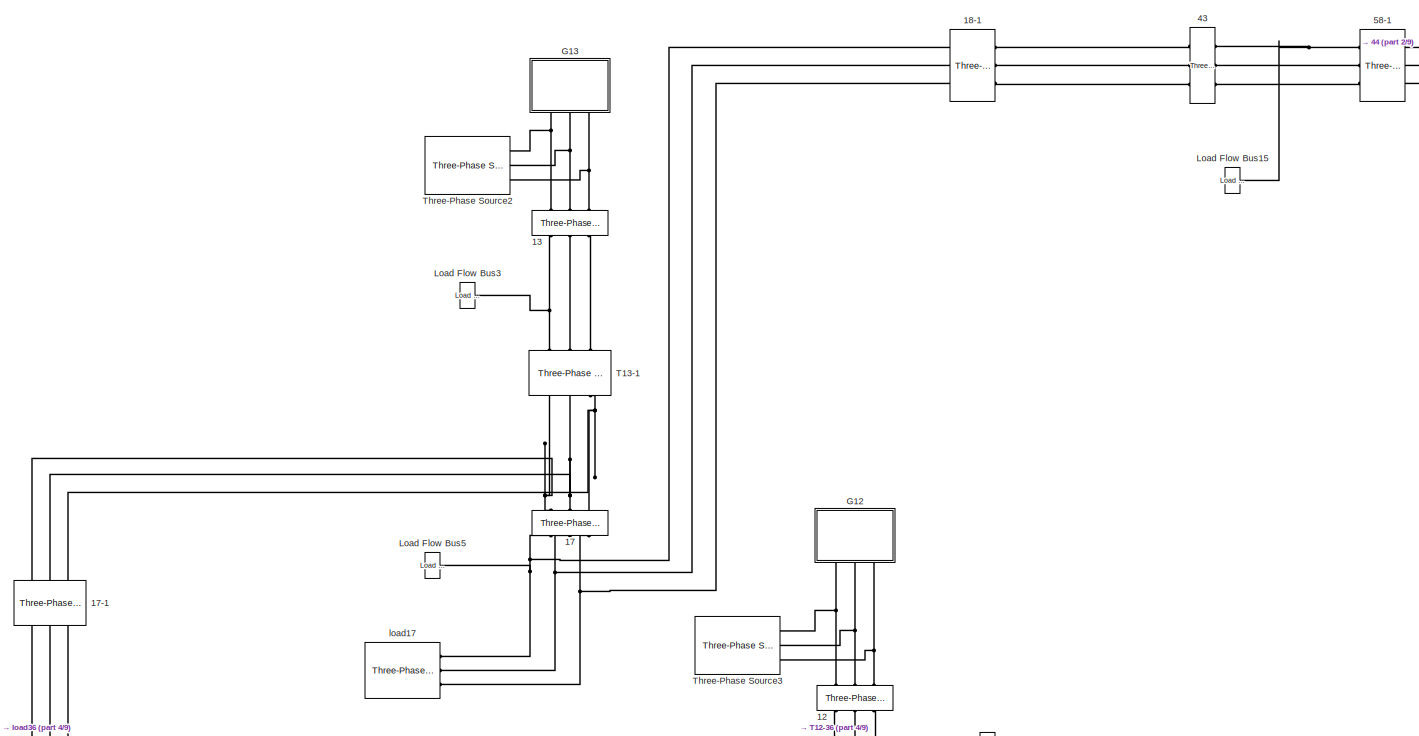
[diagram: area-4 - part 1/9, top left region]
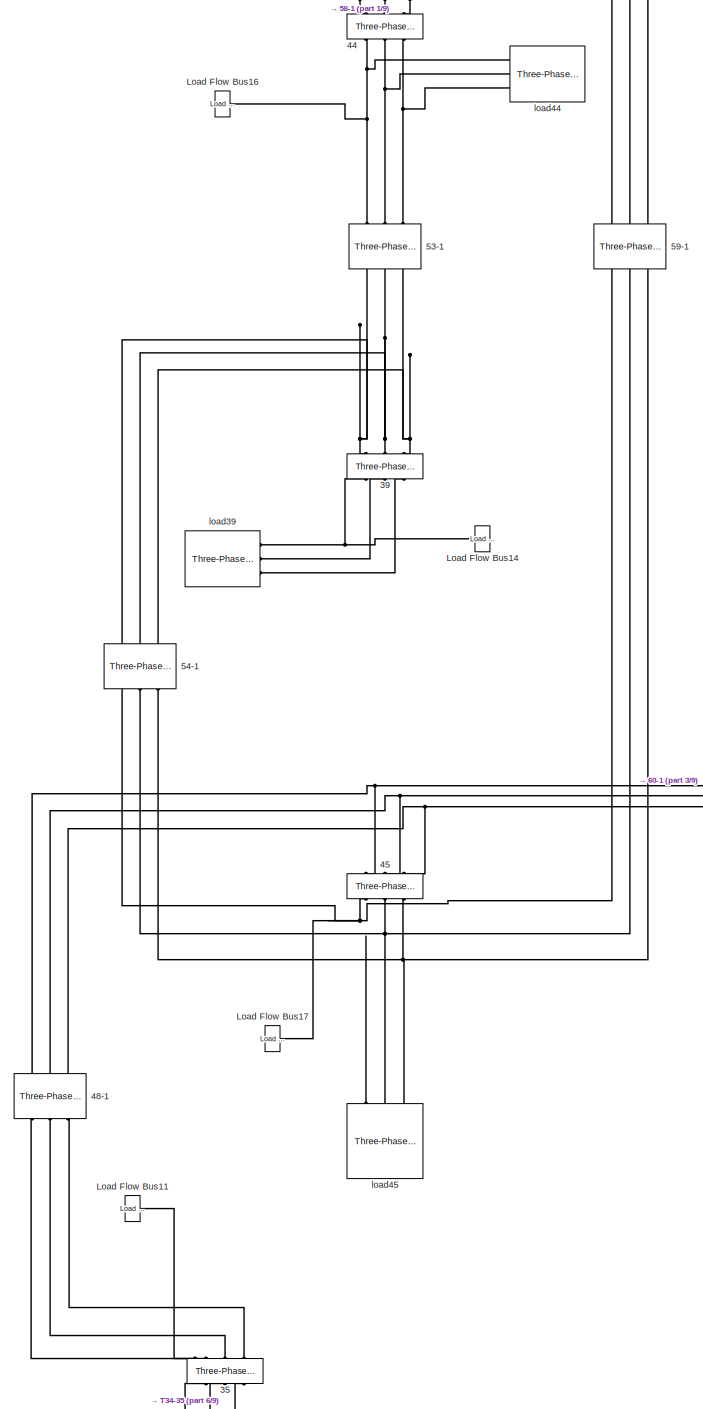
[diagram: area-4 - part 2/9, top center region]
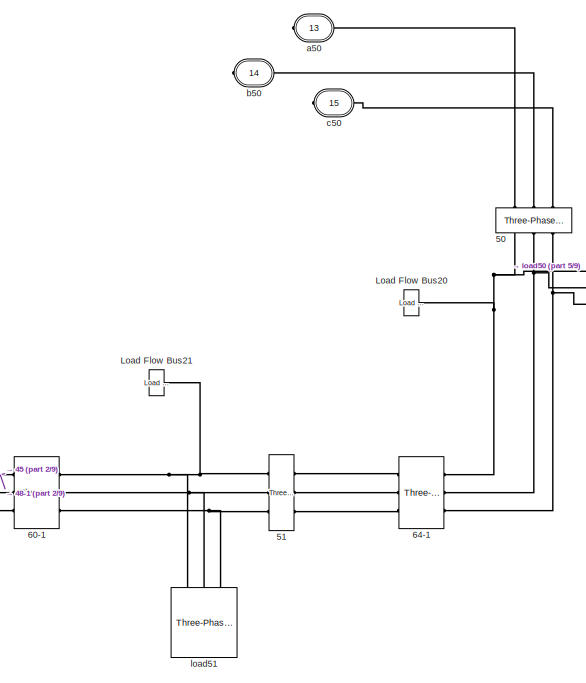
[diagram: area-4 - part 3/9, top right region]
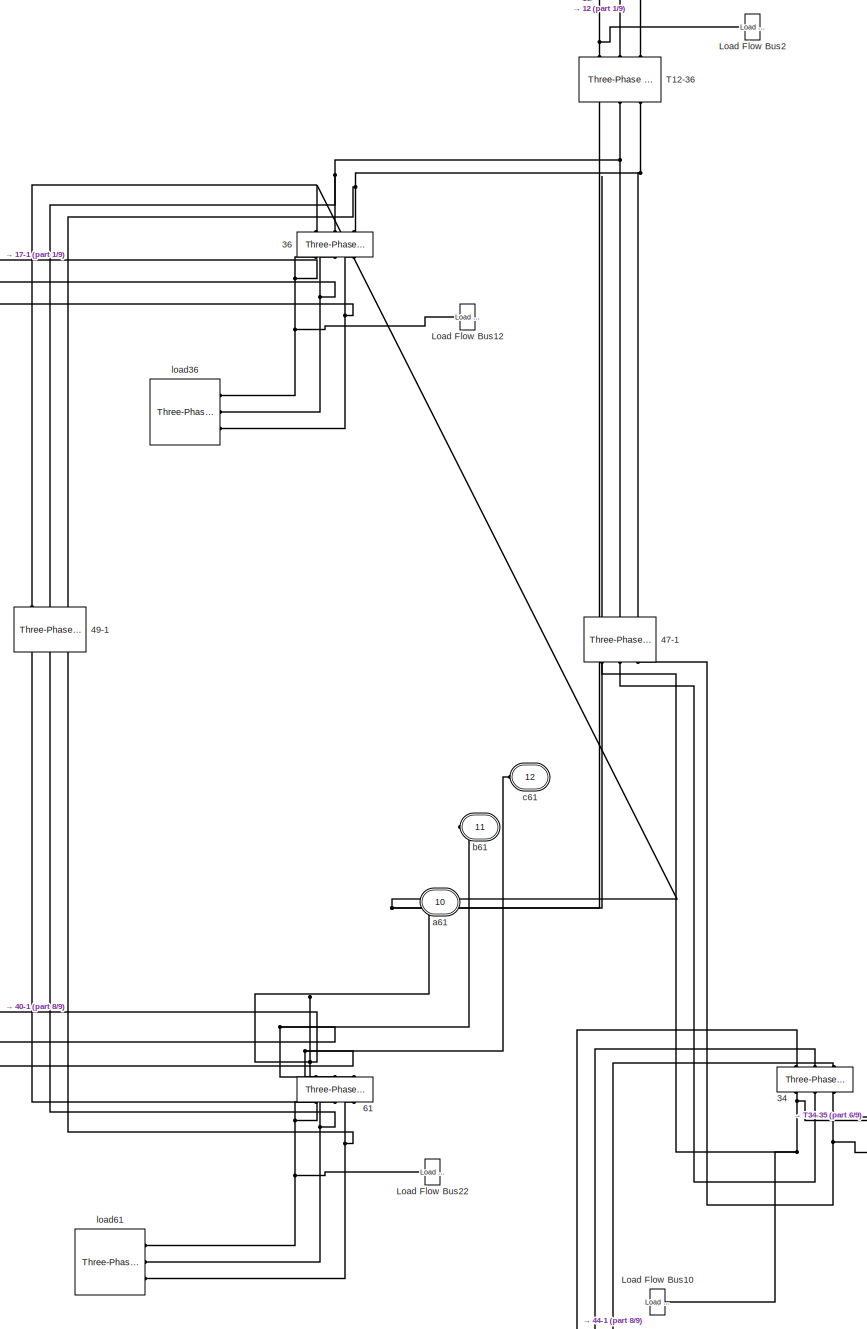
[diagram: area-4 - part 4/9, middle left region]
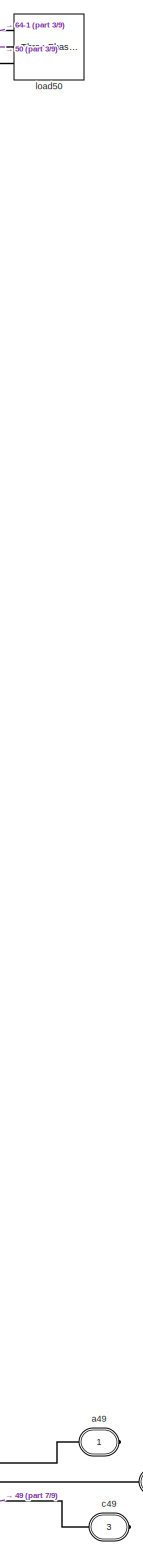
[diagram: area-4 - part 5/9, middle right region]
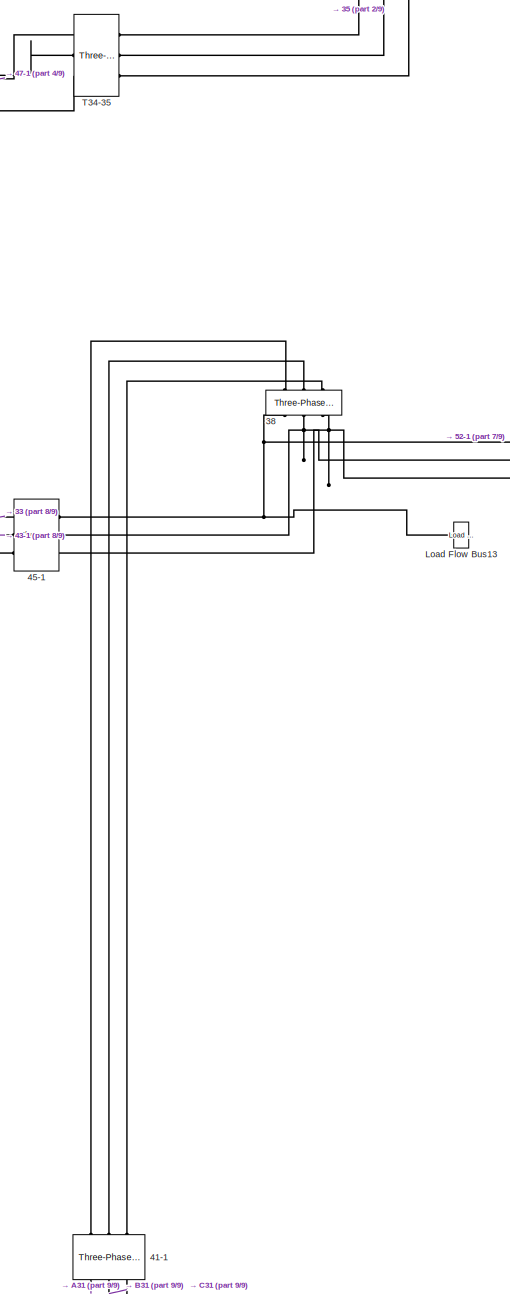
[diagram: area-4 - part 6/9, central region]
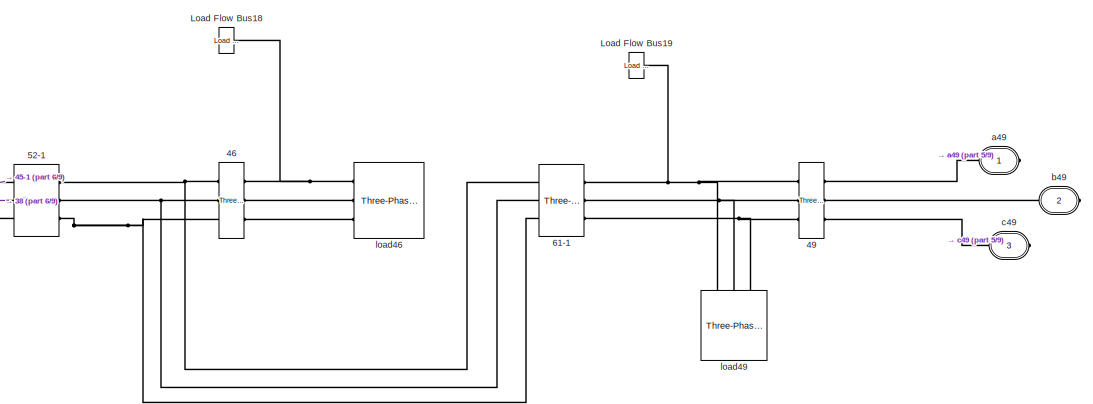
[diagram: area-4 - part 7/9, middle right region]
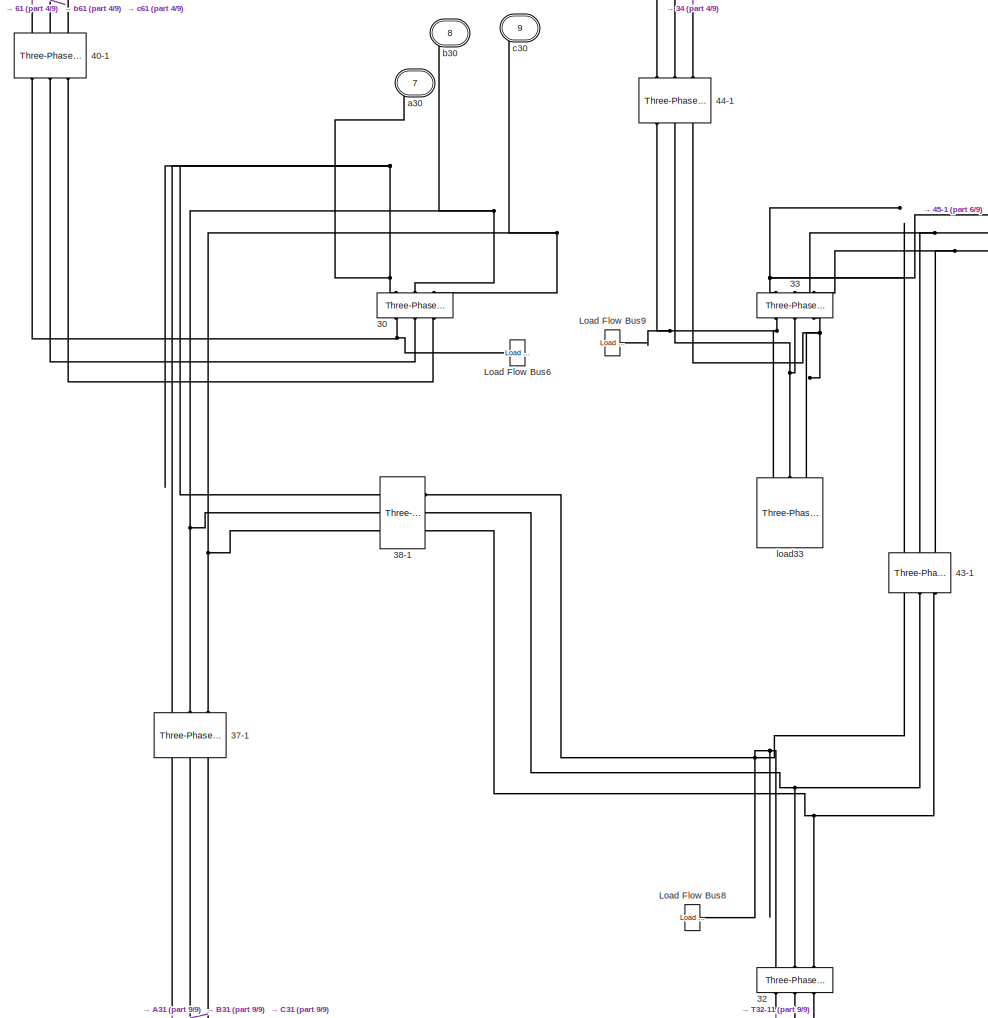
[diagram: area-4 - part 8/9, middle left region]
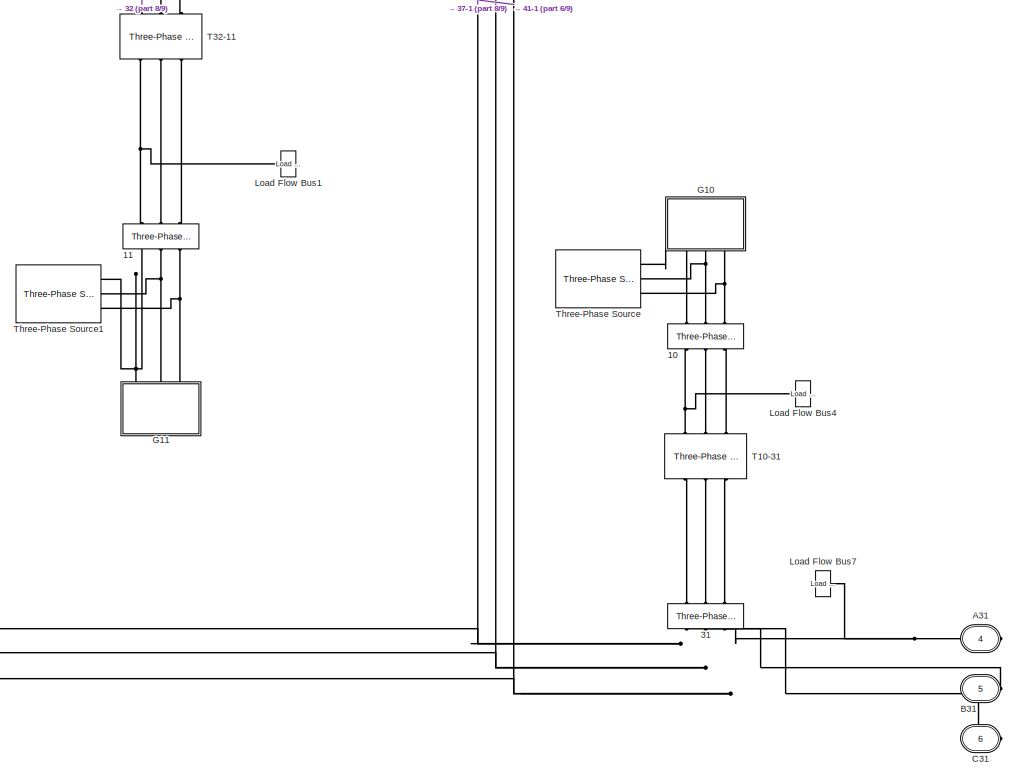
[diagram: area-4 - part 9/9, bottom center region]
BLOCK [SubSystem] area-4
  Ports = [0, 0, 0, 0, 0, 0, 15]
  RequestExecContextInheritance = off
BLOCK [Reference] area-4/10  REF=powerlib/Measurements/Three-Phase
V-I Measurement
  Ports = [0, 0, 0, 0, 0, 3, 3]
  SourceBlock = powerlib/Measurements/Three-Phase\nV-I Measurement
  SourceProductBaseCode = PS
  SourceProductName = Simscape Electrical
  SourceType = Three-Phase VI Measurement
BLOCK [Reference] area-4/11  REF=powerlib/Measurements/Three-Phase
V-I Measurement
  Ports = [0, 0, 0, 0, 0, 3, 3]
  SourceBlock = powerlib/Measurements/Three-Phase\nV-I Measurement
  SourceProductBaseCode = PS
  SourceProductName = Simscape Electrical
  SourceType = Three-Phase VI Measurement
BLOCK [Reference] area-4/12  REF=powerlib/Measurements/Three-Phase
V-I Measurement
  Ports = [0, 0, 0, 0, 0, 3, 3]
  SourceBlock = powerlib/Measurements/Three-Phase\nV-I Measurement
  SourceProductBaseCode = PS
  SourceProductName = Simscape Electrical
  SourceType = Three-Phase VI Measurement
BLOCK [Reference] area-4/13  REF=powerlib/Measurements/Three-Phase
V-I Measurement
  Ports = [0, 0, 0, 0, 0, 3, 3]
  SourceBlock = powerlib/Measurements/Three-Phase\nV-I Measurement
  SourceProductBaseCode = PS
  SourceProductName = Simscape Electrical
  SourceType = Three-Phase VI Measurement
BLOCK [Reference] area-4/17  REF=powerlib/Measurements/Three-Phase
V-I Measurement
  Ports = [0, 0, 0, 0, 0, 3, 3]
  SourceBlock = powerlib/Measurements/Three-Phase\nV-I Measurement
  SourceProductBaseCode = PS
  SourceProductName = Simscape Electrical
  SourceType = Three-Phase VI Measurement
BLOCK [Reference] area-4/17-1  REF=powerlib/Elements/Three-Phase
PI Section Line
  AttributesFormatString = \n
  Ports = [0, 0, 0, 0, 0, 3, 3]
  SourceBlock = powerlib/Elements/Three-Phase\nPI Section Line
  SourceProductBaseCode = PS
  SourceProductName = Simscape Electrical
  SourceType = Three-Phase PI Section Line
BLOCK [Reference] area-4/18-1  REF=powerlib/Elements/Three-Phase
PI Section Line
  AttributesFormatString = \n
  Ports = [0, 0, 0, 0, 0, 3, 3]
  SourceBlock = powerlib/Elements/Three-Phase\nPI Section Line
  SourceProductBaseCode = PS
  SourceProductName = Simscape Electrical
  SourceType = Three-Phase PI Section Line
BLOCK [Reference] area-4/30  REF=powerlib/Measurements/Three-Phase
V-I Measurement
  Ports = [0, 0, 0, 0, 0, 3, 3]
  SourceBlock = powerlib/Measurements/Three-Phase\nV-I Measurement
  SourceProductBaseCode = PS
  SourceProductName = Simscape Electrical
  SourceType = Three-Phase VI Measurement
BLOCK [Reference] area-4/31  REF=powerlib/Measurements/Three-Phase
V-I Measurement
  Ports = [0, 0, 0, 0, 0, 3, 3]
  SourceBlock = powerlib/Measurements/Three-Phase\nV-I Measurement
  SourceProductBaseCode = PS
  SourceProductName = Simscape Electrical
  SourceType = Three-Phase VI Measurement
BLOCK [Reference] area-4/32  REF=powerlib/Measurements/Three-Phase
V-I Measurement
  Ports = [0, 0, 0, 0, 0, 3, 3]
  SourceBlock = powerlib/Measurements/Three-Phase\nV-I Measurement
  SourceProductBaseCode = PS
  SourceProductName = Simscape Electrical
  SourceType = Three-Phase VI Measurement
BLOCK [Reference] area-4/33  REF=powerlib/Measurements/Three-Phase
V-I Measurement
  Ports = [0, 0, 0, 0, 0, 3, 3]
  SourceBlock = powerlib/Measurements/Three-Phase\nV-I Measurement
  SourceProductBaseCode = PS
  SourceProductName = Simscape Electrical
  SourceType = Three-Phase VI Measurement
BLOCK [Reference] area-4/34  REF=powerlib/Measurements/Three-Phase
V-I Measurement
  Ports = [0, 0, 0, 0, 0, 3, 3]
  SourceBlock = powerlib/Measurements/Three-Phase\nV-I Measurement
  SourceProductBaseCode = PS
  SourceProductName = Simscape Electrical
  SourceType = Three-Phase VI Measurement
BLOCK [Reference] area-4/35  REF=powerlib/Measurements/Three-Phase
V-I Measurement
  Ports = [0, 0, 0, 0, 0, 3, 3]
  SourceBlock = powerlib/Measurements/Three-Phase\nV-I Measurement
  SourceProductBaseCode = PS
  SourceProductName = Simscape Electrical
  SourceType = Three-Phase VI Measurement
BLOCK [Reference] area-4/36  REF=powerlib/Measurements/Three-Phase
V-I Measurement
  Ports = [0, 0, 0, 0, 0, 3, 3]
  SourceBlock = powerlib/Measurements/Three-Phase\nV-I Measurement
  SourceProductBaseCode = PS
  SourceProductName = Simscape Electrical
  SourceType = Three-Phase VI Measurement
BLOCK [Reference] area-4/37-1  REF=powerlib/Elements/Three-Phase
PI Section Line
  AttributesFormatString = \n
  Ports = [0, 0, 0, 0, 0, 3, 3]
  SourceBlock = powerlib/Elements/Three-Phase\nPI Section Line
  SourceProductBaseCode = PS
  SourceProductName = Simscape Electrical
  SourceType = Three-Phase PI Section Line
BLOCK [Reference] area-4/38  REF=powerlib/Measurements/Three-Phase
V-I Measurement
  Ports = [0, 0, 0, 0, 0, 3, 3]
  SourceBlock = powerlib/Measurements/Three-Phase\nV-I Measurement
  SourceProductBaseCode = PS
  SourceProductName = Simscape Electrical
  SourceType = Three-Phase VI Measurement
BLOCK [Reference] area-4/38-1  REF=powerlib/Elements/Three-Phase
PI Section Line
  AttributesFormatString = \n
  Ports = [0, 0, 0, 0, 0, 3, 3]
  SourceBlock = powerlib/Elements/Three-Phase\nPI Section Line
  SourceProductBaseCode = PS
  SourceProductName = Simscape Electrical
  SourceType = Three-Phase PI Section Line
BLOCK [Reference] area-4/39  REF=powerlib/Measurements/Three-Phase
V-I Measurement
  Ports = [0, 0, 0, 0, 0, 3, 3]
  SourceBlock = powerlib/Measurements/Three-Phase\nV-I Measurement
  SourceProductBaseCode = PS
  SourceProductName = Simscape Electrical
  SourceType = Three-Phase VI Measurement
BLOCK [Reference] area-4/40-1  REF=powerlib/Elements/Three-Phase
PI Section Line
  AttributesFormatString = \n
  Ports = [0, 0, 0, 0, 0, 3, 3]
  SourceBlock = powerlib/Elements/Three-Phase\nPI Section Line
  SourceProductBaseCode = PS
  SourceProductName = Simscape Electrical
  SourceType = Three-Phase PI Section Line
BLOCK [Reference] area-4/41-1  REF=powerlib/Elements/Three-Phase
PI Section Line
  AttributesFormatString = \n
  Ports = [0, 0, 0, 0, 0, 3, 3]
  SourceBlock = powerlib/Elements/Three-Phase\nPI Section Line
  SourceProductBaseCode = PS
  SourceProductName = Simscape Electrical
  SourceType = Three-Phase PI Section Line
BLOCK [Reference] area-4/43  REF=powerlib/Measurements/Three-Phase
V-I Measurement
  Ports = [0, 0, 0, 0, 0, 3, 3]
  SourceBlock = powerlib/Measurements/Three-Phase\nV-I Measurement
  SourceProductBaseCode = PS
  SourceProductName = Simscape Electrical
  SourceType = Three-Phase VI Measurement
BLOCK [Reference] area-4/43-1  REF=powerlib/Elements/Three-Phase
PI Section Line
  AttributesFormatString = \n
  Ports = [0, 0, 0, 0, 0, 3, 3]
  SourceBlock = powerlib/Elements/Three-Phase\nPI Section Line
  SourceProductBaseCode = PS
  SourceProductName = Simscape Electrical
  SourceType = Three-Phase PI Section Line
BLOCK [Reference] area-4/44  REF=powerlib/Measurements/Three-Phase
V-I Measurement
  Ports = [0, 0, 0, 0, 0, 3, 3]
  SourceBlock = powerlib/Measurements/Three-Phase\nV-I Measurement
  SourceProductBaseCode = PS
  SourceProductName = Simscape Electrical
  SourceType = Three-Phase VI Measurement
BLOCK [Reference] area-4/44-1  REF=powerlib/Elements/Three-Phase
PI Section Line
  AttributesFormatString = \n
  Ports = [0, 0, 0, 0, 0, 3, 3]
  SourceBlock = powerlib/Elements/Three-Phase\nPI Section Line
  SourceProductBaseCode = PS
  SourceProductName = Simscape Electrical
  SourceType = Three-Phase PI Section Line
BLOCK [Reference] area-4/45  REF=powerlib/Measurements/Three-Phase
V-I Measurement
  Ports = [0, 0, 0, 0, 0, 3, 3]
  SourceBlock = powerlib/Measurements/Three-Phase\nV-I Measurement
  SourceProductBaseCode = PS
  SourceProductName = Simscape Electrical
  SourceType = Three-Phase VI Measurement
BLOCK [Reference] area-4/45-1  REF=powerlib/Elements/Three-Phase
PI Section Line
  AttributesFormatString = \n
  Ports = [0, 0, 0, 0, 0, 3, 3]
  SourceBlock = powerlib/Elements/Three-Phase\nPI Section Line
  SourceProductBaseCode = PS
  SourceProductName = Simscape Electrical
  SourceType = Three-Phase PI Section Line
BLOCK [Reference] area-4/46  REF=powerlib/Measurements/Three-Phase
V-I Measurement
  Ports = [0, 0, 0, 0, 0, 3, 3]
  SourceBlock = powerlib/Measurements/Three-Phase\nV-I Measurement
  SourceProductBaseCode = PS
  SourceProductName = Simscape Electrical
  SourceType = Three-Phase VI Measurement
BLOCK [Reference] area-4/47-1  REF=powerlib/Elements/Three-Phase
PI Section Line
  AttributesFormatString = \n
  Ports = [0, 0, 0, 0, 0, 3, 3]
  SourceBlock = powerlib/Elements/Three-Phase\nPI Section Line
  SourceProductBaseCode = PS
  SourceProductName = Simscape Electrical
  SourceType = Three-Phase PI Section Line
BLOCK [Reference] area-4/48-1  REF=powerlib/Elements/Three-Phase
PI Section Line
  AttributesFormatString = \n
  Ports = [0, 0, 0, 0, 0, 3, 3]
  SourceBlock = powerlib/Elements/Three-Phase\nPI Section Line
  SourceProductBaseCode = PS
  SourceProductName = Simscape Electrical
  SourceType = Three-Phase PI Section Line
BLOCK [Reference] area-4/49  REF=powerlib/Measurements/Three-Phase
V-I Measurement
  Ports = [0, 0, 0, 0, 0, 3, 3]
  SourceBlock = powerlib/Measurements/Three-Phase\nV-I Measurement
  SourceProductBaseCode = PS
  SourceProductName = Simscape Electrical
  SourceType = Three-Phase VI Measurement
BLOCK [Reference] area-4/49-1  REF=powerlib/Elements/Three-Phase
PI Section Line
  AttributesFormatString = \n
  Ports = [0, 0, 0, 0, 0, 3, 3]
  SourceBlock = powerlib/Elements/Three-Phase\nPI Section Line
  SourceProductBaseCode = PS
  SourceProductName = Simscape Electrical
  SourceType = Three-Phase PI Section Line
BLOCK [Reference] area-4/50  REF=powerlib/Measurements/Three-Phase
V-I Measurement
  Ports = [0, 0, 0, 0, 0, 3, 3]
  SourceBlock = powerlib/Measurements/Three-Phase\nV-I Measurement
  SourceProductBaseCode = PS
  SourceProductName = Simscape Electrical
  SourceType = Three-Phase VI Measurement
BLOCK [Reference] area-4/51  REF=powerlib/Measurements/Three-Phase
V-I Measurement
  Ports = [0, 0, 0, 0, 0, 3, 3]
  SourceBlock = powerlib/Measurements/Three-Phase\nV-I Measurement
  SourceProductBaseCode = PS
  SourceProductName = Simscape Electrical
  SourceType = Three-Phase VI Measurement
BLOCK [Reference] area-4/52-1  REF=powerlib/Elements/Three-Phase
PI Section Line
  AttributesFormatString = \n
  Ports = [0, 0, 0, 0, 0, 3, 3]
  SourceBlock = powerlib/Elements/Three-Phase\nPI Section Line
  SourceProductBaseCode = PS
  SourceProductName = Simscape Electrical
  SourceType = Three-Phase PI Section Line
BLOCK [Reference] area-4/53-1  REF=powerlib/Elements/Three-Phase
PI Section Line
  AttributesFormatString = \n
  Ports = [0, 0, 0, 0, 0, 3, 3]
  SourceBlock = powerlib/Elements/Three-Phase\nPI Section Line
  SourceProductBaseCode = PS
  SourceProductName = Simscape Electrical
  SourceType = Three-Phase PI Section Line
BLOCK [Reference] area-4/54-1  REF=powerlib/Elements/Three-Phase
PI Section Line
  AttributesFormatString = \n
  Ports = [0, 0, 0, 0, 0, 3, 3]
  SourceBlock = powerlib/Elements/Three-Phase\nPI Section Line
  SourceProductBaseCode = PS
  SourceProductName = Simscape Electrical
  SourceType = Three-Phase PI Section Line
BLOCK [Reference] area-4/58-1  REF=powerlib/Elements/Three-Phase
PI Section Line
  AttributesFormatString = \n
  Ports = [0, 0, 0, 0, 0, 3, 3]
  SourceBlock = powerlib/Elements/Three-Phase\nPI Section Line
  SourceProductBaseCode = PS
  SourceProductName = Simscape Electrical
  SourceType = Three-Phase PI Section Line
BLOCK [Reference] area-4/59-1  REF=powerlib/Elements/Three-Phase
PI Section Line
  AttributesFormatString = \n
  Ports = [0, 0, 0, 0, 0, 3, 3]
  SourceBlock = powerlib/Elements/Three-Phase\nPI Section Line
  SourceProductBaseCode = PS
  SourceProductName = Simscape Electrical
  SourceType = Three-Phase PI Section Line
BLOCK [Reference] area-4/60-1  REF=powerlib/Elements/Three-Phase
PI Section Line
  AttributesFormatString = \n
  Ports = [0, 0, 0, 0, 0, 3, 3]
  SourceBlock = powerlib/Elements/Three-Phase\nPI Section Line
  SourceProductBaseCode = PS
  SourceProductName = Simscape Electrical
  SourceType = Three-Phase PI Section Line
BLOCK [Reference] area-4/61  REF=powerlib/Measurements/Three-Phase
V-I Measurement
  Ports = [0, 0, 0, 0, 0, 3, 3]
  SourceBlock = powerlib/Measurements/Three-Phase\nV-I Measurement
  SourceProductBaseCode = PS
  SourceProductName = Simscape Electrical
  SourceType = Three-Phase VI Measurement
BLOCK [Reference] area-4/61-1  REF=powerlib/Elements/Three-Phase
PI Section Line
  AttributesFormatString = \n
  Ports = [0, 0, 0, 0, 0, 3, 3]
  SourceBlock = powerlib/Elements/Three-Phase\nPI Section Line
  SourceProductBaseCode = PS
  SourceProductName = Simscape Electrical
  SourceType = Three-Phase PI Section Line
BLOCK [Reference] area-4/64-1  REF=powerlib/Elements/Three-Phase
PI Section Line
  AttributesFormatString = \n
  Ports = [0, 0, 0, 0, 0, 3, 3]
  SourceBlock = powerlib/Elements/Three-Phase\nPI Section Line
  SourceProductBaseCode = PS
  SourceProductName = Simscape Electrical
  SourceType = Three-Phase PI Section Line
BLOCK [PMIOPort] area-4/A31
  Port = 4
  Side = Right
  Tag = PMCPort
BLOCK [PMIOPort] area-4/B31
  Port = 5
  Side = Right
  Tag = PMCPort
BLOCK [PMIOPort] area-4/C31
  Port = 6
  Side = Right
  Tag = PMCPort
BLOCK [SubSystem] area-4/G10
  Ports = [0, 0, 0, 0, 0, 3]
  RequestExecContextInheritance = off
BLOCK [PMIOPort] area-4/G10/A
  Side = Left
BLOCK [PMIOPort] area-4/G10/B
  Port = 2
  Side = Left
BLOCK [PMIOPort] area-4/G10/C
  Port = 3
  Side = Left
BLOCK [From] area-4/G10/From1
  CloseFcn = tagdialog Close
  GotoTag = PSSmodel
  TagVisibility = global
BLOCK [SubSystem] area-4/G10/M10: Turbine & Regulators 
  Ports = [4, 2]
  RequestExecContextInheritance = off
BLOCK [BusSelector] area-4/G10/M10: Turbine & Regulators /Bus Selector
  OutputAsBus = off
  Ports = [1, 8]
BLOCK [Reference] area-4/G10/M10: Turbine & Regulators /Delta Pa PSS 10   REF=powerlib/Machines/Generic
Power System Stabilizer
  Ports = [1, 1]
  SourceBlock = powerlib/Machines/Generic\nPower System Stabilizer
  SourceProductBaseCode = PS
  SourceProductName = Simscape Electrical
  SourceType = Generic Power System Stabilizer
BLOCK [Reference] area-4/G10/M10: Turbine & Regulators /Delta w PSS (Kundur) 10  REF=powerlib/Machines/Generic
Power System Stabilizer
  Ports = [1, 1]
  SourceBlock = powerlib/Machines/Generic\nPower System Stabilizer
  SourceProductBaseCode = PS
  SourceProductName = Simscape Electrical
  SourceType = Generic Power System Stabilizer
BLOCK [Reference] area-4/G10/M10: Turbine & Regulators /EXCITATION10  REF=sps_avr/Excitation System
  Ports = [4, 1]
  SourceBlock = sps_avr/Excitation System
  SourceProductBaseCode = PS
  SourceProductName = Simscape Electrical
  SourceType = Excitation System
BLOCK [Goto] area-4/G10/M10: Turbine & Regulators /Goto1
  GotoTag = Q10
  TagVisibility = global
BLOCK [Goto] area-4/G10/M10: Turbine & Regulators /Goto10
  GotoTag = EFD10
  TagVisibility = global
BLOCK [Goto] area-4/G10/M10: Turbine & Regulators /Goto11
  GotoTag = Pe10
  TagVisibility = global
BLOCK [Goto] area-4/G10/M10: Turbine & Regulators /Goto12
  GotoTag = d_theta10
  TagVisibility = global
BLOCK [Goto] area-4/G10/M10: Turbine & Regulators /Goto2
  GotoTag = Pa10
  TagVisibility = global
BLOCK [Goto] area-4/G10/M10: Turbine & Regulators /Goto3
  GotoTag = theta10
  TagVisibility = global
BLOCK [Goto] area-4/G10/M10: Turbine & Regulators /Goto7
  GotoTag = Vt10
  TagVisibility = global
BLOCK [Goto] area-4/G10/M10: Turbine & Regulators /Goto8
  GotoTag = w10
  TagVisibility = global
BLOCK [Goto] area-4/G10/M10: Turbine & Regulators /Goto9
  GotoTag = pss10
  TagVisibility = global
BLOCK [Reference] area-4/G10/M10: Turbine & Regulators /MB-PSS10  REF=powerlib/Machines/Multi-Band
Power System Stabilizer
  Ports = [1, 1]
  SourceBlock = powerlib/Machines/Multi-Band\nPower System Stabilizer
  SourceProductBaseCode = PS
  SourceProductName = Simscape Electrical
  SourceType = Multi-Band Power System Stabilizer
BLOCK [MultiPortSwitch] area-4/G10/M10: Turbine & Regulators /Multiport Switch1
  Inputs = 4
  Ports = [5, 1]
  SaturateOnIntegerOverflow = off
BLOCK [Constant] area-4/G10/M10: Turbine & Regulators /PSS model3
  Value = 0
BLOCK [Constant] area-4/G10/M10: Turbine & Regulators /PSS model4
BLOCK [Inport] area-4/G10/M10: Turbine & Regulators /PSS10
  IconDisplay = Port number
  Port = 4
BLOCK [Outport] area-4/G10/M10: Turbine & Regulators /Pm10
  IconDisplay = Port number
  InitialOutput = 0
BLOCK [Inport] area-4/G10/M10: Turbine & Regulators /Pref10
  IconDisplay = Port number
  Port = 2
BLOCK [RealImagToComplex] area-4/G10/M10: Turbine & Regulators /Real-Imag to Complex1
  Ports = [2, 1]
BLOCK [Reference] area-4/G10/M10: Turbine & Regulators /STG10  REF=powerlib/Machines/Steam Turbine
and Governor
  Ports = [4, 4]
  SourceBlock = powerlib/Machines/Steam Turbine\nand Governor
  SourceProductBaseCode = PS
  SourceProductName = Simscape Electrical
  SourceType = Steam Turbine and Governor
BLOCK [Sum] area-4/G10/M10: Turbine & Regulators /Sum2
  Ports = [2, 1]
BLOCK [Sum] area-4/G10/M10: Turbine & Regulators /Sum3
  Inputs = -+
  Ports = [2, 1]
BLOCK [Terminator] area-4/G10/M10: Turbine & Regulators /Terminator3
BLOCK [Terminator] area-4/G10/M10: Turbine & Regulators /Terminator4
BLOCK [Terminator] area-4/G10/M10: Turbine & Regulators /Terminator5
BLOCK [Outport] area-4/G10/M10: Turbine & Regulators /Vf10
  IconDisplay = Port number
  InitialOutput = 0
  Port = 2
BLOCK [Inport] area-4/G10/M10: Turbine & Regulators /Vref10
  IconDisplay = Port number
  Port = 3
BLOCK [Inport] area-4/G10/M10: Turbine & Regulators /m10
  IconDisplay = Port number
BLOCK [Constant] area-4/G10/M10: Turbine & Regulators /wref10
BLOCK [Constant] area-4/G10/Pref10
  Value = 0.5
BLOCK [Constant] area-4/G10/Vref10
BLOCK [Reference] area-4/G10/gen10  REF=powerlib/Machines/Synchronous Machine
pu Standard
  AttributesFormatString = \n\n
  Ports = [2, 1, 0, 0, 0, 0, 3]
  SourceBlock = powerlib/Machines/Synchronous Machine\npu Standard
  SourceProductBaseCode = PS
  SourceProductName = Simscape Electrical
  SourceType = Synchronous Machine
BLOCK [SubSystem] area-4/G11
  Ports = [0, 0, 0, 0, 0, 3]
  RequestExecContextInheritance = off
BLOCK [PMIOPort] area-4/G11/A
  Side = Left
BLOCK [PMIOPort] area-4/G11/B
  Port = 2
  Side = Left
BLOCK [PMIOPort] area-4/G11/C
  Port = 3
  Side = Left
BLOCK [From] area-4/G11/From1
  CloseFcn = tagdialog Close
  GotoTag = PSSmodel
  TagVisibility = global
BLOCK [SubSystem] area-4/G11/M11: Turbine & Regulators 
  Ports = [4, 2]
  RequestExecContextInheritance = off
BLOCK [BusSelector] area-4/G11/M11: Turbine & Regulators /Bus Selector
  OutputAsBus = off
  Ports = [1, 8]
BLOCK [Reference] area-4/G11/M11: Turbine & Regulators /Delta Pa PSS 11   REF=powerlib/Machines/Generic
Power System Stabilizer
  Ports = [1, 1]
  SourceBlock = powerlib/Machines/Generic\nPower System Stabilizer
  SourceProductBaseCode = PS
  SourceProductName = Simscape Electrical
  SourceType = Generic Power System Stabilizer
BLOCK [Reference] area-4/G11/M11: Turbine & Regulators /Delta w PSS (Kundur) 11  REF=powerlib/Machines/Generic
Power System Stabilizer
  Ports = [1, 1]
  SourceBlock = powerlib/Machines/Generic\nPower System Stabilizer
  SourceProductBaseCode = PS
  SourceProductName = Simscape Electrical
  SourceType = Generic Power System Stabilizer
BLOCK [Reference] area-4/G11/M11: Turbine & Regulators /EXCITATION11  REF=sps_avr/Excitation System
  Ports = [4, 1]
  SourceBlock = sps_avr/Excitation System
  SourceProductBaseCode = PS
  SourceProductName = Simscape Electrical
  SourceType = Excitation System
BLOCK [Goto] area-4/G11/M11: Turbine & Regulators /Goto1
  GotoTag = Q11
  TagVisibility = global
BLOCK [Goto] area-4/G11/M11: Turbine & Regulators /Goto10
  GotoTag = EFD11
  TagVisibility = global
BLOCK [Goto] area-4/G11/M11: Turbine & Regulators /Goto11
  GotoTag = Pe11
  TagVisibility = global
BLOCK [Goto] area-4/G11/M11: Turbine & Regulators /Goto12
  GotoTag = d_theta11
  TagVisibility = global
BLOCK [Goto] area-4/G11/M11: Turbine & Regulators /Goto2
  GotoTag = Pa11
  TagVisibility = global
BLOCK [Goto] area-4/G11/M11: Turbine & Regulators /Goto3
  GotoTag = theta11
  TagVisibility = global
BLOCK [Goto] area-4/G11/M11: Turbine & Regulators /Goto7
  GotoTag = Vt11
  TagVisibility = global
BLOCK [Goto] area-4/G11/M11: Turbine & Regulators /Goto8
  GotoTag = w11
  TagVisibility = global
BLOCK [Goto] area-4/G11/M11: Turbine & Regulators /Goto9
  GotoTag = pss11
  TagVisibility = global
BLOCK [Reference] area-4/G11/M11: Turbine & Regulators /MB-PSS11  REF=powerlib/Machines/Multi-Band
Power System Stabilizer
  Ports = [1, 1]
  SourceBlock = powerlib/Machines/Multi-Band\nPower System Stabilizer
  SourceProductBaseCode = PS
  SourceProductName = Simscape Electrical
  SourceType = Multi-Band Power System Stabilizer
BLOCK [MultiPortSwitch] area-4/G11/M11: Turbine & Regulators /Multiport Switch1
  Inputs = 4
  Ports = [5, 1]
  SaturateOnIntegerOverflow = off
BLOCK [Constant] area-4/G11/M11: Turbine & Regulators /PSS model3
  Value = 0
BLOCK [Constant] area-4/G11/M11: Turbine & Regulators /PSS model4
BLOCK [Inport] area-4/G11/M11: Turbine & Regulators /PSS11
  IconDisplay = Port number
  Port = 4
BLOCK [Outport] area-4/G11/M11: Turbine & Regulators /Pm11
  IconDisplay = Port number
  InitialOutput = 0
BLOCK [Inport] area-4/G11/M11: Turbine & Regulators /Pref11
  IconDisplay = Port number
  Port = 2
BLOCK [RealImagToComplex] area-4/G11/M11: Turbine & Regulators /Real-Imag to Complex1
  Ports = [2, 1]
BLOCK [Reference] area-4/G11/M11: Turbine & Regulators /STG11  REF=powerlib/Machines/Steam Turbine
and Governor
  Ports = [4, 4]
  SourceBlock = powerlib/Machines/Steam Turbine\nand Governor
  SourceProductBaseCode = PS
  SourceProductName = Simscape Electrical
  SourceType = Steam Turbine and Governor
BLOCK [Sum] area-4/G11/M11: Turbine & Regulators /Sum2
  Ports = [2, 1]
BLOCK [Sum] area-4/G11/M11: Turbine & Regulators /Sum3
  Inputs = -+
  Ports = [2, 1]
BLOCK [Terminator] area-4/G11/M11: Turbine & Regulators /Terminator3
BLOCK [Terminator] area-4/G11/M11: Turbine & Regulators /Terminator4
BLOCK [Terminator] area-4/G11/M11: Turbine & Regulators /Terminator5
BLOCK [Outport] area-4/G11/M11: Turbine & Regulators /Vf11
  IconDisplay = Port number
  InitialOutput = 0
  Port = 2
BLOCK [Inport] area-4/G11/M11: Turbine & Regulators /Vref11
  IconDisplay = Port number
  Port = 3
BLOCK [Inport] area-4/G11/M11: Turbine & Regulators /m11
  IconDisplay = Port number
BLOCK [Constant] area-4/G11/M11: Turbine & Regulators /wref11
BLOCK [Constant] area-4/G11/Pref11
  Value = 0.5
BLOCK [Constant] area-4/G11/Vref11
BLOCK [Reference] area-4/G11/gen11  REF=powerlib/Machines/Synchronous Machine
pu Standard
  AttributesFormatString = \n\n
  Ports = [2, 1, 0, 0, 0, 0, 3]
  SourceBlock = powerlib/Machines/Synchronous Machine\npu Standard
  SourceProductBaseCode = PS
  SourceProductName = Simscape Electrical
  SourceType = Synchronous Machine
BLOCK [SubSystem] area-4/G12
  Ports = [0, 0, 0, 0, 0, 3]
  RequestExecContextInheritance = off
BLOCK [PMIOPort] area-4/G12/A
  Side = Left
BLOCK [PMIOPort] area-4/G12/B
  Port = 2
  Side = Left
BLOCK [PMIOPort] area-4/G12/C
  Port = 3
  Side = Left
BLOCK [From] area-4/G12/From1
  CloseFcn = tagdialog Close
  GotoTag = PSSmodel
  TagVisibility = global
BLOCK [SubSystem] area-4/G12/M12: Turbine & Regulators 
  Ports = [4, 2]
  RequestExecContextInheritance = off
BLOCK [BusSelector] area-4/G12/M12: Turbine & Regulators /Bus Selector
  OutputAsBus = off
  Ports = [1, 8]
BLOCK [Reference] area-4/G12/M12: Turbine & Regulators /Delta Pa PSS 12   REF=powerlib/Machines/Generic
Power System Stabilizer
  Ports = [1, 1]
  SourceBlock = powerlib/Machines/Generic\nPower System Stabilizer
  SourceProductBaseCode = PS
  SourceProductName = Simscape Electrical
  SourceType = Generic Power System Stabilizer
BLOCK [Reference] area-4/G12/M12: Turbine & Regulators /Delta w PSS (Kundur) 12  REF=powerlib/Machines/Generic
Power System Stabilizer
  Ports = [1, 1]
  SourceBlock = powerlib/Machines/Generic\nPower System Stabilizer
  SourceProductBaseCode = PS
  SourceProductName = Simscape Electrical
  SourceType = Generic Power System Stabilizer
BLOCK [Reference] area-4/G12/M12: Turbine & Regulators /EXCITATION12  REF=sps_avr/Excitation System
  Ports = [4, 1]
  SourceBlock = sps_avr/Excitation System
  SourceProductBaseCode = PS
  SourceProductName = Simscape Electrical
  SourceType = Excitation System
BLOCK [Goto] area-4/G12/M12: Turbine & Regulators /Goto1
  GotoTag = Q12
  TagVisibility = global
BLOCK [Goto] area-4/G12/M12: Turbine & Regulators /Goto10
  GotoTag = EFD12
  TagVisibility = global
BLOCK [Goto] area-4/G12/M12: Turbine & Regulators /Goto11
  GotoTag = Pe12
  TagVisibility = global
BLOCK [Goto] area-4/G12/M12: Turbine & Regulators /Goto12
  GotoTag = d_theta12
  TagVisibility = global
BLOCK [Goto] area-4/G12/M12: Turbine & Regulators /Goto2
  GotoTag = Pa12
  TagVisibility = global
BLOCK [Goto] area-4/G12/M12: Turbine & Regulators /Goto3
  GotoTag = theta12
  TagVisibility = global
BLOCK [Goto] area-4/G12/M12: Turbine & Regulators /Goto7
  GotoTag = Vt12
  TagVisibility = global
BLOCK [Goto] area-4/G12/M12: Turbine & Regulators /Goto8
  GotoTag = w12
  TagVisibility = global
BLOCK [Goto] area-4/G12/M12: Turbine & Regulators /Goto9
  GotoTag = pss12
  TagVisibility = global
BLOCK [Reference] area-4/G12/M12: Turbine & Regulators /MB-PSS12  REF=powerlib/Machines/Multi-Band
Power System Stabilizer
  Ports = [1, 1]
  SourceBlock = powerlib/Machines/Multi-Band\nPower System Stabilizer
  SourceProductBaseCode = PS
  SourceProductName = Simscape Electrical
  SourceType = Multi-Band Power System Stabilizer
BLOCK [MultiPortSwitch] area-4/G12/M12: Turbine & Regulators /Multiport Switch1
  Inputs = 4
  Ports = [5, 1]
  SaturateOnIntegerOverflow = off
BLOCK [Constant] area-4/G12/M12: Turbine & Regulators /PSS model3
  Value = 0
BLOCK [Constant] area-4/G12/M12: Turbine & Regulators /PSS model4
BLOCK [Inport] area-4/G12/M12: Turbine & Regulators /PSS12
  IconDisplay = Port number
  Port = 4
BLOCK [Outport] area-4/G12/M12: Turbine & Regulators /Pm12
  IconDisplay = Port number
  InitialOutput = 0
BLOCK [Inport] area-4/G12/M12: Turbine & Regulators /Pref12
  IconDisplay = Port number
  Port = 2
BLOCK [RealImagToComplex] area-4/G12/M12: Turbine & Regulators /Real-Imag to Complex1
  Ports = [2, 1]
BLOCK [Reference] area-4/G12/M12: Turbine & Regulators /STG12  REF=powerlib/Machines/Steam Turbine
and Governor
  Ports = [4, 4]
  SourceBlock = powerlib/Machines/Steam Turbine\nand Governor
  SourceProductBaseCode = PS
  SourceProductName = Simscape Electrical
  SourceType = Steam Turbine and Governor
BLOCK [Sum] area-4/G12/M12: Turbine & Regulators /Sum2
  Ports = [2, 1]
BLOCK [Sum] area-4/G12/M12: Turbine & Regulators /Sum3
  Inputs = -+
  Ports = [2, 1]
BLOCK [Terminator] area-4/G12/M12: Turbine & Regulators /Terminator3
BLOCK [Terminator] area-4/G12/M12: Turbine & Regulators /Terminator4
BLOCK [Terminator] area-4/G12/M12: Turbine & Regulators /Terminator5
BLOCK [Outport] area-4/G12/M12: Turbine & Regulators /Vf12
  IconDisplay = Port number
  InitialOutput = 0
  Port = 2
BLOCK [Inport] area-4/G12/M12: Turbine & Regulators /Vref12
  IconDisplay = Port number
  Port = 3
BLOCK [Inport] area-4/G12/M12: Turbine & Regulators /m12
  IconDisplay = Port number
BLOCK [Constant] area-4/G12/M12: Turbine & Regulators /wref12
BLOCK [Constant] area-4/G12/Pref12
  Value = 0.45
BLOCK [Constant] area-4/G12/Vref12
BLOCK [Reference] area-4/G12/gen12  REF=powerlib/Machines/Synchronous Machine
pu Standard
  AttributesFormatString = \n\n
  Ports = [2, 1, 0, 0, 0, 0, 3]
  SourceBlock = powerlib/Machines/Synchronous Machine\npu Standard
  SourceProductBaseCode = PS
  SourceProductName = Simscape Electrical
  SourceType = Synchronous Machine
BLOCK [SubSystem] area-4/G13
  Ports = [0, 0, 0, 0, 0, 3]
  RequestExecContextInheritance = off
BLOCK [PMIOPort] area-4/G13/A
  Side = Left
BLOCK [PMIOPort] area-4/G13/B
  Port = 2
  Side = Left
BLOCK [PMIOPort] area-4/G13/C
  Port = 3
  Side = Left
BLOCK [From] area-4/G13/From1
  CloseFcn = tagdialog Close
  GotoTag = PSSmodel
  TagVisibility = global
BLOCK [SubSystem] area-4/G13/M11: Turbine & Regulators 
  Ports = [4, 2]
  RequestExecContextInheritance = off
BLOCK [BusSelector] area-4/G13/M11: Turbine & Regulators /Bus Selector
  OutputAsBus = off
  Ports = [1, 8]
BLOCK [Reference] area-4/G13/M11: Turbine & Regulators /Delta Pa PSS 13   REF=powerlib/Machines/Generic
Power System Stabilizer
  Ports = [1, 1]
  SourceBlock = powerlib/Machines/Generic\nPower System Stabilizer
  SourceProductBaseCode = PS
  SourceProductName = Simscape Electrical
  SourceType = Generic Power System Stabilizer
BLOCK [Reference] area-4/G13/M11: Turbine & Regulators /Delta w PSS (Kundur) 13  REF=powerlib/Machines/Generic
Power System Stabilizer
  Ports = [1, 1]
  SourceBlock = powerlib/Machines/Generic\nPower System Stabilizer
  SourceProductBaseCode = PS
  SourceProductName = Simscape Electrical
  SourceType = Generic Power System Stabilizer
BLOCK [Reference] area-4/G13/M11: Turbine & Regulators /EXCITATION13  REF=sps_avr/Excitation System
  Ports = [4, 1]
  SourceBlock = sps_avr/Excitation System
  SourceProductBaseCode = PS
  SourceProductName = Simscape Electrical
  SourceType = Excitation System
BLOCK [Goto] area-4/G13/M11: Turbine & Regulators /Goto1
  GotoTag = Q13
  TagVisibility = global
BLOCK [Goto] area-4/G13/M11: Turbine & Regulators /Goto10
  GotoTag = EFD13
  TagVisibility = global
BLOCK [Goto] area-4/G13/M11: Turbine & Regulators /Goto11
  GotoTag = Pe13
  TagVisibility = global
BLOCK [Goto] area-4/G13/M11: Turbine & Regulators /Goto12
  GotoTag = d_theta13
  TagVisibility = global
BLOCK [Goto] area-4/G13/M11: Turbine & Regulators /Goto2
  GotoTag = Pa13
  TagVisibility = global
BLOCK [Goto] area-4/G13/M11: Turbine & Regulators /Goto3
  GotoTag = theta13
  TagVisibility = global
BLOCK [Goto] area-4/G13/M11: Turbine & Regulators /Goto7
  GotoTag = Vt13
  TagVisibility = global
BLOCK [Goto] area-4/G13/M11: Turbine & Regulators /Goto8
  GotoTag = w13
  TagVisibility = global
BLOCK [Goto] area-4/G13/M11: Turbine & Regulators /Goto9
  GotoTag = pss13
  TagVisibility = global
BLOCK [Reference] area-4/G13/M11: Turbine & Regulators /MB-PSS13  REF=powerlib/Machines/Multi-Band
Power System Stabilizer
  Ports = [1, 1]
  SourceBlock = powerlib/Machines/Multi-Band\nPower System Stabilizer
  SourceProductBaseCode = PS
  SourceProductName = Simscape Electrical
  SourceType = Multi-Band Power System Stabilizer
BLOCK [MultiPortSwitch] area-4/G13/M11: Turbine & Regulators /Multiport Switch1
  Inputs = 4
  Ports = [5, 1]
  SaturateOnIntegerOverflow = off
BLOCK [Constant] area-4/G13/M11: Turbine & Regulators /PSS model3
  Value = 0
BLOCK [Constant] area-4/G13/M11: Turbine & Regulators /PSS model4
BLOCK [Inport] area-4/G13/M11: Turbine & Regulators /PSS13
  IconDisplay = Port number
  Port = 4
BLOCK [Outport] area-4/G13/M11: Turbine & Regulators /Pm13
  IconDisplay = Port number
  InitialOutput = 0
BLOCK [Inport] area-4/G13/M11: Turbine & Regulators /Pref13
  IconDisplay = Port number
  Port = 2
BLOCK [RealImagToComplex] area-4/G13/M11: Turbine & Regulators /Real-Imag to Complex1
  Ports = [2, 1]
BLOCK [Reference] area-4/G13/M11: Turbine & Regulators /STG13  REF=powerlib/Machines/Steam Turbine
and Governor
  Ports = [4, 4]
  SourceBlock = powerlib/Machines/Steam Turbine\nand Governor
  SourceProductBaseCode = PS
  SourceProductName = Simscape Electrical
  SourceType = Steam Turbine and Governor
BLOCK [Sum] area-4/G13/M11: Turbine & Regulators /Sum2
  Ports = [2, 1]
BLOCK [Sum] area-4/G13/M11: Turbine & Regulators /Sum3
  Inputs = -+
  Ports = [2, 1]
BLOCK [Terminator] area-4/G13/M11: Turbine & Regulators /Terminator3
BLOCK [Terminator] area-4/G13/M11: Turbine & Regulators /Terminator4
BLOCK [Terminator] area-4/G13/M11: Turbine & Regulators /Terminator5
BLOCK [Outport] area-4/G13/M11: Turbine & Regulators /Vf13
  IconDisplay = Port number
  InitialOutput = 0
  Port = 2
BLOCK [Inport] area-4/G13/M11: Turbine & Regulators /Vref13
  IconDisplay = Port number
  Port = 3
BLOCK [Inport] area-4/G13/M11: Turbine & Regulators /m13
  IconDisplay = Port number
BLOCK [Constant] area-4/G13/M11: Turbine & Regulators /wref13
BLOCK [Constant] area-4/G13/Pref13
  Value = 0.5985
BLOCK [Constant] area-4/G13/Vref13
BLOCK [Reference] area-4/G13/gen13  REF=powerlib/Machines/Synchronous Machine
pu Standard
  AttributesFormatString = \n\n
  Ports = [2, 1, 0, 0, 0, 0, 3]
  SourceBlock = powerlib/Machines/Synchronous Machine\npu Standard
  SourceProductBaseCode = PS
  SourceProductName = Simscape Electrical
  SourceType = Synchronous Machine
BLOCK [Reference] area-4/Load Flow Bus1  REF=powerlib/Measurements/Load Flow Bus
  AttributesFormatString = %<ID>\n%<Vbase>V\n%<VLF>pu\n%<angleLF>deg.
  Ports = [0, 0, 0, 0, 0, 1]
  SourceBlock = powerlib/Measurements/Load Flow Bus
  SourceProductBaseCode = PS
  SourceProductName = Simscape Electrical
  SourceType = Load Flow Bus
BLOCK [Reference] area-4/Load Flow Bus10  REF=powerlib/Measurements/Load Flow Bus
  AttributesFormatString = %<ID>\n%<Vbase>V\n%<VLF>pu\n%<angleLF>deg.
  Ports = [0, 0, 0, 0, 0, 1]
  SourceBlock = powerlib/Measurements/Load Flow Bus
  SourceProductBaseCode = PS
  SourceProductName = Simscape Electrical
  SourceType = Load Flow Bus
BLOCK [Reference] area-4/Load Flow Bus11  REF=powerlib/Measurements/Load Flow Bus
  AttributesFormatString = %<ID>\n%<Vbase>V\n%<VLF>pu\n%<angleLF>deg.
  Ports = [0, 0, 0, 0, 0, 1]
  SourceBlock = powerlib/Measurements/Load Flow Bus
  SourceProductBaseCode = PS
  SourceProductName = Simscape Electrical
  SourceType = Load Flow Bus
BLOCK [Reference] area-4/Load Flow Bus12  REF=powerlib/Measurements/Load Flow Bus
  AttributesFormatString = %<ID>\n%<Vbase>V\n%<VLF>pu\n%<angleLF>deg.
  Ports = [0, 0, 0, 0, 0, 1]
  SourceBlock = powerlib/Measurements/Load Flow Bus
  SourceProductBaseCode = PS
  SourceProductName = Simscape Electrical
  SourceType = Load Flow Bus
BLOCK [Reference] area-4/Load Flow Bus13  REF=powerlib/Measurements/Load Flow Bus
  AttributesFormatString = %<ID>\n%<Vbase>V\n%<VLF>pu\n%<angleLF>deg.
  Ports = [0, 0, 0, 0, 0, 1]
  SourceBlock = powerlib/Measurements/Load Flow Bus
  SourceProductBaseCode = PS
  SourceProductName = Simscape Electrical
  SourceType = Load Flow Bus
BLOCK [Reference] area-4/Load Flow Bus14  REF=powerlib/Measurements/Load Flow Bus
  AttributesFormatString = %<ID>\n%<Vbase>V\n%<VLF>pu\n%<angleLF>deg.
  Ports = [0, 0, 0, 0, 0, 1]
  SourceBlock = powerlib/Measurements/Load Flow Bus
  SourceProductBaseCode = PS
  SourceProductName = Simscape Electrical
  SourceType = Load Flow Bus
BLOCK [Reference] area-4/Load Flow Bus15  REF=powerlib/Measurements/Load Flow Bus
  AttributesFormatString = %<ID>\n%<Vbase>V\n%<VLF>pu\n%<angleLF>deg.
  Ports = [0, 0, 0, 0, 0, 1]
  SourceBlock = powerlib/Measurements/Load Flow Bus
  SourceProductBaseCode = PS
  SourceProductName = Simscape Electrical
  SourceType = Load Flow Bus
BLOCK [Reference] area-4/Load Flow Bus16  REF=powerlib/Measurements/Load Flow Bus
  AttributesFormatString = %<ID>\n%<Vbase>V\n%<VLF>pu\n%<angleLF>deg.
  Ports = [0, 0, 0, 0, 0, 1]
  SourceBlock = powerlib/Measurements/Load Flow Bus
  SourceProductBaseCode = PS
  SourceProductName = Simscape Electrical
  SourceType = Load Flow Bus
BLOCK [Reference] area-4/Load Flow Bus17  REF=powerlib/Measurements/Load Flow Bus
  AttributesFormatString = %<ID>\n%<Vbase>V\n%<VLF>pu\n%<angleLF>deg.
  Ports = [0, 0, 0, 0, 0, 1]
  SourceBlock = powerlib/Measurements/Load Flow Bus
  SourceProductBaseCode = PS
  SourceProductName = Simscape Electrical
  SourceType = Load Flow Bus
BLOCK [Reference] area-4/Load Flow Bus18  REF=powerlib/Measurements/Load Flow Bus
  AttributesFormatString = %<ID>\n%<Vbase>V\n%<VLF>pu\n%<angleLF>deg.
  Ports = [0, 0, 0, 0, 0, 1]
  SourceBlock = powerlib/Measurements/Load Flow Bus
  SourceProductBaseCode = PS
  SourceProductName = Simscape Electrical
  SourceType = Load Flow Bus
BLOCK [Reference] area-4/Load Flow Bus19  REF=powerlib/Measurements/Load Flow Bus
  AttributesFormatString = %<ID>\n%<Vbase>V\n%<VLF>pu\n%<angleLF>deg.
  Ports = [0, 0, 0, 0, 0, 1]
  SourceBlock = powerlib/Measurements/Load Flow Bus
  SourceProductBaseCode = PS
  SourceProductName = Simscape Electrical
  SourceType = Load Flow Bus
BLOCK [Reference] area-4/Load Flow Bus2  REF=powerlib/Measurements/Load Flow Bus
  AttributesFormatString = %<ID>\n%<Vbase>V\n%<VLF>pu\n%<angleLF>deg.
  Ports = [0, 0, 0, 0, 0, 1]
  SourceBlock = powerlib/Measurements/Load Flow Bus
  SourceProductBaseCode = PS
  SourceProductName = Simscape Electrical
  SourceType = Load Flow Bus
BLOCK [Reference] area-4/Load Flow Bus20  REF=powerlib/Measurements/Load Flow Bus
  AttributesFormatString = %<ID>\n%<Vbase>V\n%<VLF>pu\n%<angleLF>deg.
  Ports = [0, 0, 0, 0, 0, 1]
  SourceBlock = powerlib/Measurements/Load Flow Bus
  SourceProductBaseCode = PS
  SourceProductName = Simscape Electrical
  SourceType = Load Flow Bus
BLOCK [Reference] area-4/Load Flow Bus21  REF=powerlib/Measurements/Load Flow Bus
  AttributesFormatString = %<ID>\n%<Vbase>V\n%<VLF>pu\n%<angleLF>deg.
  Ports = [0, 0, 0, 0, 0, 1]
  SourceBlock = powerlib/Measurements/Load Flow Bus
  SourceProductBaseCode = PS
  SourceProductName = Simscape Electrical
  SourceType = Load Flow Bus
BLOCK [Reference] area-4/Load Flow Bus22  REF=powerlib/Measurements/Load Flow Bus
  AttributesFormatString = %<ID>\n%<Vbase>V\n%<VLF>pu\n%<angleLF>deg.
  Ports = [0, 0, 0, 0, 0, 1]
  SourceBlock = powerlib/Measurements/Load Flow Bus
  SourceProductBaseCode = PS
  SourceProductName = Simscape Electrical
  SourceType = Load Flow Bus
BLOCK [Reference] area-4/Load Flow Bus3  REF=powerlib/Measurements/Load Flow Bus
  AttributesFormatString = %<ID>\n%<Vbase>V\n%<VLF>pu\n%<angleLF>deg.
  Ports = [0, 0, 0, 0, 0, 1]
  SourceBlock = powerlib/Measurements/Load Flow Bus
  SourceProductBaseCode = PS
  SourceProductName = Simscape Electrical
  SourceType = Load Flow Bus
BLOCK [Reference] area-4/Load Flow Bus4  REF=powerlib/Measurements/Load Flow Bus
  AttributesFormatString = %<ID>\n%<Vbase>V\n%<VLF>pu\n%<angleLF>deg.
  Ports = [0, 0, 0, 0, 0, 1]
  SourceBlock = powerlib/Measurements/Load Flow Bus
  SourceProductBaseCode = PS
  SourceProductName = Simscape Electrical
  SourceType = Load Flow Bus
BLOCK [Reference] area-4/Load Flow Bus5  REF=powerlib/Measurements/Load Flow Bus
  AttributesFormatString = %<ID>\n%<Vbase>V\n%<VLF>pu\n%<angleLF>deg.
  Ports = [0, 0, 0, 0, 0, 1]
  SourceBlock = powerlib/Measurements/Load Flow Bus
  SourceProductBaseCode = PS
  SourceProductName = Simscape Electrical
  SourceType = Load Flow Bus
BLOCK [Reference] area-4/Load Flow Bus6  REF=powerlib/Measurements/Load Flow Bus
  AttributesFormatString = %<ID>\n%<Vbase>V\n%<VLF>pu\n%<angleLF>deg.
  Ports = [0, 0, 0, 0, 0, 1]
  SourceBlock = powerlib/Measurements/Load Flow Bus
  SourceProductBaseCode = PS
  SourceProductName = Simscape Electrical
  SourceType = Load Flow Bus
BLOCK [Reference] area-4/Load Flow Bus7  REF=powerlib/Measurements/Load Flow Bus
  AttributesFormatString = %<ID>\n%<Vbase>V\n%<VLF>pu\n%<angleLF>deg.
  Ports = [0, 0, 0, 0, 0, 1]
  SourceBlock = powerlib/Measurements/Load Flow Bus
  SourceProductBaseCode = PS
  SourceProductName = Simscape Electrical
  SourceType = Load Flow Bus
BLOCK [Reference] area-4/Load Flow Bus8  REF=powerlib/Measurements/Load Flow Bus
  AttributesFormatString = %<ID>\n%<Vbase>V\n%<VLF>pu\n%<angleLF>deg.
  Ports = [0, 0, 0, 0, 0, 1]
  SourceBlock = powerlib/Measurements/Load Flow Bus
  SourceProductBaseCode = PS
  SourceProductName = Simscape Electrical
  SourceType = Load Flow Bus
BLOCK [Reference] area-4/Load Flow Bus9  REF=powerlib/Measurements/Load Flow Bus
  AttributesFormatString = %<ID>\n%<Vbase>V\n%<VLF>pu\n%<angleLF>deg.
  Ports = [0, 0, 0, 0, 0, 1]
  SourceBlock = powerlib/Measurements/Load Flow Bus
  SourceProductBaseCode = PS
  SourceProductName = Simscape Electrical
  SourceType = Load Flow Bus
BLOCK [Reference] area-4/T10-31  REF=powerlib/Elements/Three-Phase
Transformer
(Two Windings)
  Ports = [0, 0, 0, 0, 0, 3, 3]
  SourceBlock = powerlib/Elements/Three-Phase\nTransformer\n(Two Windings)
  SourceProductBaseCode = PS
  SourceProductName = Simscape Electrical
  SourceType = Three-Phase Transformer (Two Windings)
BLOCK [Reference] area-4/T12-36  REF=powerlib/Elements/Three-Phase
Transformer
(Two Windings)
  Ports = [0, 0, 0, 0, 0, 3, 3]
  SourceBlock = powerlib/Elements/Three-Phase\nTransformer\n(Two Windings)
  SourceProductBaseCode = PS
  SourceProductName = Simscape Electrical
  SourceType = Three-Phase Transformer (Two Windings)
BLOCK [Reference] area-4/T13-1  REF=powerlib/Elements/Three-Phase
Transformer
(Two Windings)
  Ports = [0, 0, 0, 0, 0, 3, 3]
  SourceBlock = powerlib/Elements/Three-Phase\nTransformer\n(Two Windings)
  SourceProductBaseCode = PS
  SourceProductName = Simscape Electrical
  SourceType = Three-Phase Transformer (Two Windings)
BLOCK [Reference] area-4/T32-11  REF=powerlib/Elements/Three-Phase
Transformer
(Two Windings)
  Ports = [0, 0, 0, 0, 0, 3, 3]
  SourceBlock = powerlib/Elements/Three-Phase\nTransformer\n(Two Windings)
  SourceProductBaseCode = PS
  SourceProductName = Simscape Electrical
  SourceType = Three-Phase Transformer (Two Windings)
BLOCK [Reference] area-4/T34-35  REF=powerlib/Elements/Three-Phase
Transformer
(Two Windings)
  Ports = [0, 0, 0, 0, 0, 3, 3]
  SourceBlock = powerlib/Elements/Three-Phase\nTransformer\n(Two Windings)
  SourceProductBaseCode = PS
  SourceProductName = Simscape Electrical
  SourceType = Three-Phase Transformer (Two Windings)
BLOCK [Reference] area-4/Three-Phase Source  REF=powerlib/Electrical
Sources/Three-Phase Source
  Commented = on
  Ports = [0, 0, 0, 0, 0, 0, 3]
  SourceBlock = powerlib/Electrical\nSources/Three-Phase Source
  SourceProductBaseCode = PS
  SourceProductName = Simscape Electrical
  SourceType = Three-Phase Source
BLOCK [Reference] area-4/Three-Phase Source1  REF=powerlib/Electrical
Sources/Three-Phase Source
  Commented = on
  Ports = [0, 0, 0, 0, 0, 0, 3]
  SourceBlock = powerlib/Electrical\nSources/Three-Phase Source
  SourceProductBaseCode = PS
  SourceProductName = Simscape Electrical
  SourceType = Three-Phase Source
BLOCK [Reference] area-4/Three-Phase Source2  REF=powerlib/Electrical
Sources/Three-Phase Source
  Commented = on
  Ports = [0, 0, 0, 0, 0, 0, 3]
  SourceBlock = powerlib/Electrical\nSources/Three-Phase Source
  SourceProductBaseCode = PS
  SourceProductName = Simscape Electrical
  SourceType = Three-Phase Source
BLOCK [Reference] area-4/Three-Phase Source3  REF=powerlib/Electrical
Sources/Three-Phase Source
  Commented = on
  Ports = [0, 0, 0, 0, 0, 0, 3]
  SourceBlock = powerlib/Electrical\nSources/Three-Phase Source
  SourceProductBaseCode = PS
  SourceProductName = Simscape Electrical
  SourceType = Three-Phase Source
BLOCK [PMIOPort] area-4/a30
  Port = 7
  Side = Right
  Tag = PMCPort
BLOCK [PMIOPort] area-4/a49
  Side = Right
  Tag = PMCPort
BLOCK [PMIOPort] area-4/a50
  Port = 13
  Side = Right
  Tag = PMCPort
BLOCK [PMIOPort] area-4/a61
  Port = 10
  Side = Right
  Tag = PMCPort
BLOCK [PMIOPort] area-4/b30
  Port = 8
  Side = Right
  Tag = PMCPort
BLOCK [PMIOPort] area-4/b49
  Port = 2
  Side = Right
  Tag = PMCPort
BLOCK [PMIOPort] area-4/b50
  Port = 14
  Side = Right
  Tag = PMCPort
BLOCK [PMIOPort] area-4/b61
  Port = 11
  Side = Right
  Tag = PMCPort
BLOCK [PMIOPort] area-4/c30
  Port = 9
  Side = Right
  Tag = PMCPort
BLOCK [PMIOPort] area-4/c49
  Port = 3
  Side = Right
  Tag = PMCPort
BLOCK [PMIOPort] area-4/c50
  Port = 15
  Side = Right
  Tag = PMCPort
BLOCK [PMIOPort] area-4/c61
  Port = 12
  Side = Right
  Tag = PMCPort
BLOCK [Reference] area-4/load17  REF=powerlib/Elements/Three-Phase
Parallel RLC Load
  AttributesFormatString = \n
  Ports = [0, 0, 0, 0, 0, 3]
  SourceBlock = powerlib/Elements/Three-Phase\nParallel RLC Load
  SourceProductBaseCode = PS
  SourceProductName = Simscape Electrical
  SourceType = Three-Phase Parallel RLC Load
BLOCK [Reference] area-4/load33  REF=powerlib/Elements/Three-Phase
Parallel RLC Load
  AttributesFormatString = \n
  Ports = [0, 0, 0, 0, 0, 3]
  SourceBlock = powerlib/Elements/Three-Phase\nParallel RLC Load
  SourceProductBaseCode = PS
  SourceProductName = Simscape Electrical
  SourceType = Three-Phase Parallel RLC Load
BLOCK [Reference] area-4/load36  REF=powerlib/Elements/Three-Phase
Parallel RLC Load
  AttributesFormatString = \n
  Ports = [0, 0, 0, 0, 0, 3]
  SourceBlock = powerlib/Elements/Three-Phase\nParallel RLC Load
  SourceProductBaseCode = PS
  SourceProductName = Simscape Electrical
  SourceType = Three-Phase Parallel RLC Load
BLOCK [Reference] area-4/load39  REF=powerlib/Elements/Three-Phase
Parallel RLC Load
  AttributesFormatString = \n
  Ports = [0, 0, 0, 0, 0, 3]
  SourceBlock = powerlib/Elements/Three-Phase\nParallel RLC Load
  SourceProductBaseCode = PS
  SourceProductName = Simscape Electrical
  SourceType = Three-Phase Parallel RLC Load
BLOCK [Reference] area-4/load44  REF=powerlib/Elements/Three-Phase
Parallel RLC Load
  AttributesFormatString = \n
  Ports = [0, 0, 0, 0, 0, 3]
  SourceBlock = powerlib/Elements/Three-Phase\nParallel RLC Load
  SourceProductBaseCode = PS
  SourceProductName = Simscape Electrical
  SourceType = Three-Phase Parallel RLC Load
BLOCK [Reference] area-4/load45  REF=powerlib/Elements/Three-Phase
Parallel RLC Load
  AttributesFormatString = \n
  Ports = [0, 0, 0, 0, 0, 3]
  SourceBlock = powerlib/Elements/Three-Phase\nParallel RLC Load
  SourceProductBaseCode = PS
  SourceProductName = Simscape Electrical
  SourceType = Three-Phase Parallel RLC Load
BLOCK [Reference] area-4/load46  REF=powerlib/Elements/Three-Phase
Parallel RLC Load
  AttributesFormatString = \n
  Ports = [0, 0, 0, 0, 0, 3]
  SourceBlock = powerlib/Elements/Three-Phase\nParallel RLC Load
  SourceProductBaseCode = PS
  SourceProductName = Simscape Electrical
  SourceType = Three-Phase Parallel RLC Load
BLOCK [Reference] area-4/load49  REF=powerlib/Elements/Three-Phase
Parallel RLC Load
  AttributesFormatString = \n
  Ports = [0, 0, 0, 0, 0, 3]
  SourceBlock = powerlib/Elements/Three-Phase\nParallel RLC Load
  SourceProductBaseCode = PS
  SourceProductName = Simscape Electrical
  SourceType = Three-Phase Parallel RLC Load
BLOCK [Reference] area-4/load50  REF=powerlib/Elements/Three-Phase
Parallel RLC Load
  AttributesFormatString = \n
  Ports = [0, 0, 0, 0, 0, 3]
  SourceBlock = powerlib/Elements/Three-Phase\nParallel RLC Load
  SourceProductBaseCode = PS
  SourceProductName = Simscape Electrical
  SourceType = Three-Phase Parallel RLC Load
BLOCK [Reference] area-4/load51  REF=powerlib/Elements/Three-Phase
Parallel RLC Load
  AttributesFormatString = \n
  Ports = [0, 0, 0, 0, 0, 3]
  SourceBlock = powerlib/Elements/Three-Phase\nParallel RLC Load
  SourceProductBaseCode = PS
  SourceProductName = Simscape Electrical
  SourceType = Three-Phase Parallel RLC Load
BLOCK [Reference] area-4/load61  REF=powerlib/Elements/Three-Phase
Parallel RLC Load
  AttributesFormatString = \n
  Ports = [0, 0, 0, 0, 0, 3]
  SourceBlock = powerlib/Elements/Three-Phase\nParallel RLC Load
  SourceProductBaseCode = PS
  SourceProductName = Simscape Electrical
  SourceType = Three-Phase Parallel RLC Load
BLOCK [Reference] powergui  REF=powerlib/powergui
  Ports = []
  Priority = 1
  SourceBlock = powerlib/powergui
  SourceProductBaseCode = PS
  SourceProductName = Simscape Electrical
  SourceType = PSB option menu block
BLOCK [SubSystem] voltage measurement 
  Commented = on
  Ports = []
  RequestExecContextInheritance = off
BLOCK [Display] voltage measurement /Display
  Decimation = 1
  Ports = [1]
BLOCK [Display] voltage measurement /Display1
  Decimation = 1
  Ports = [1]
BLOCK [Display] voltage measurement /Display2
  Decimation = 1
  Ports = [1]
BLOCK [Display] voltage measurement /Display3
  Decimation = 1
  Ports = [1]
BLOCK [Display] voltage measurement /Display4
  Decimation = 1
  Ports = [1]
BLOCK [From] voltage measurement /From1
  GotoTag = Vabc_02
  TagVisibility = global
BLOCK [From] voltage measurement /From10
  GotoTag = Vabc_10
  TagVisibility = global
BLOCK [From] voltage measurement /From108
  GotoTag = Vabc_47
  TagVisibility = global
BLOCK [From] voltage measurement /From11
  GotoTag = Vabc_11
  TagVisibility = global
BLOCK [From] voltage measurement /From119
  GotoTag = Vabc_48
  TagVisibility = global
BLOCK [From] voltage measurement /From12
  GotoTag = Vabc_12
  TagVisibility = global
BLOCK [From] voltage measurement /From13
  GotoTag = Vabc_13
  TagVisibility = global
BLOCK [From] voltage measurement /From130
  GotoTag = Vabc_49
  TagVisibility = global
BLOCK [From] voltage measurement /From135
  GotoTag = Vabc_50
  TagVisibility = global
BLOCK [From] voltage measurement /From136
  GotoTag = Vabc_51
  TagVisibility = global
BLOCK [From] voltage measurement /From137
  GotoTag = Vabc_52
  TagVisibility = global
BLOCK [From] voltage measurement /From138
  GotoTag = Vabc_53
  TagVisibility = global
BLOCK [From] voltage measurement /From139
  GotoTag = Vabc_54
  TagVisibility = global
BLOCK [From] voltage measurement /From14
  GotoTag = Vabc_37
  TagVisibility = global
BLOCK [From] voltage measurement /From140
  GotoTag = Vabc_55
  TagVisibility = global
BLOCK [From] voltage measurement /From141
  GotoTag = Vabc_56
  TagVisibility = global
BLOCK [From] voltage measurement /From142
  GotoTag = Vabc_57
  TagVisibility = global
BLOCK [From] voltage measurement /From143
  GotoTag = Vabc_58
  TagVisibility = global
BLOCK [From] voltage measurement /From144
  GotoTag = Vabc_59
  TagVisibility = global
BLOCK [From] voltage measurement /From145
  GotoTag = Vabc_60
  TagVisibility = global
BLOCK [From] voltage measurement /From15
  GotoTag = Vabc_14
  TagVisibility = global
BLOCK [From] voltage measurement /From16
  GotoTag = Vabc_38
  TagVisibility = global
BLOCK [From] voltage measurement /From17
  GotoTag = Vabc_39
  TagVisibility = global
BLOCK [From] voltage measurement /From18
  GotoTag = Vabc_40
  TagVisibility = global
BLOCK [From] voltage measurement /From19
  GotoTag = Vabc_41
  TagVisibility = global
BLOCK [From] voltage measurement /From2
  GotoTag = Vabc_03
  TagVisibility = global
BLOCK [From] voltage measurement /From20
  GotoTag = Vabc_15
  TagVisibility = global
BLOCK [From] voltage measurement /From21
  GotoTag = Vabc_42
  TagVisibility = global
BLOCK [From] voltage measurement /From22
  GotoTag = Vabc_43
  TagVisibility = global
BLOCK [From] voltage measurement /From23
  GotoTag = Vabc_44
  TagVisibility = global
BLOCK [From] voltage measurement /From24
  GotoTag = Vabc_45
  TagVisibility = global
BLOCK [From] voltage measurement /From3
  GotoTag = Vabc_04
  TagVisibility = global
BLOCK [From] voltage measurement /From4
  GotoTag = Vabc_05
  TagVisibility = global
BLOCK [From] voltage measurement /From5
  GotoTag = Vabc_06
  TagVisibility = global
BLOCK [From] voltage measurement /From6
  GotoTag = Vabc_07
  TagVisibility = global
BLOCK [From] voltage measurement /From62
  GotoTag = Vabc_61
  TagVisibility = global
BLOCK [From] voltage measurement /From63
  GotoTag = Vabc_31
  TagVisibility = global
BLOCK [From] voltage measurement /From64
  GotoTag = Vabc_32
  TagVisibility = global
BLOCK [From] voltage measurement /From65
  GotoTag = Vabc_33
  TagVisibility = global
BLOCK [From] voltage measurement /From66
  GotoTag = Vabc_34
  TagVisibility = global
BLOCK [From] voltage measurement /From67
  GotoTag = Vabc_35
  TagVisibility = global
BLOCK [From] voltage measurement /From68
  GotoTag = Vabc_36
  TagVisibility = global
BLOCK [From] voltage measurement /From69
  GotoTag = Vabc_62
  TagVisibility = global
BLOCK [From] voltage measurement /From7
  GotoTag = Vabc_01
  TagVisibility = global
BLOCK [From] voltage measurement /From70
  GotoTag = Vabc_63
  TagVisibility = global
BLOCK [From] voltage measurement /From71
  GotoTag = Vabc_64
  TagVisibility = global
BLOCK [From] voltage measurement /From72
  GotoTag = Vabc_65
  TagVisibility = global
BLOCK [From] voltage measurement /From73
  GotoTag = Vabc_66
  TagVisibility = global
BLOCK [From] voltage measurement /From74
  GotoTag = Vabc_67
  TagVisibility = global
BLOCK [From] voltage measurement /From75
  GotoTag = Vabc_68
  TagVisibility = global
BLOCK [From] voltage measurement /From77
  GotoTag = Vabc_16
  TagVisibility = global
BLOCK [From] voltage measurement /From78
  GotoTag = Vabc_17
  TagVisibility = global
BLOCK [From] voltage measurement /From79
  GotoTag = Vabc_18
  TagVisibility = global
BLOCK [From] voltage measurement /From8
  GotoTag = Vabc_08
  TagVisibility = global
BLOCK [From] voltage measurement /From80
  GotoTag = Vabc_19
  TagVisibility = global
BLOCK [From] voltage measurement /From81
  GotoTag = Vabc_20
  TagVisibility = global
BLOCK [From] voltage measurement /From82
  GotoTag = Vabc_21
  TagVisibility = global
BLOCK [From] voltage measurement /From83
  GotoTag = Vabc_22
  TagVisibility = global
BLOCK [From] voltage measurement /From84
  GotoTag = Vabc_23
  TagVisibility = global
BLOCK [From] voltage measurement /From85
  GotoTag = Vabc_24
  TagVisibility = global
BLOCK [From] voltage measurement /From87
  GotoTag = Vabc_25
  TagVisibility = global
BLOCK [From] voltage measurement /From88
  GotoTag = Vabc_26
  TagVisibility = global
BLOCK [From] voltage measurement /From89
  GotoTag = Vabc_27
  TagVisibility = global
BLOCK [From] voltage measurement /From9
  GotoTag = Vabc_09
  TagVisibility = global
BLOCK [From] voltage measurement /From90
  GotoTag = Vabc_28
  TagVisibility = global
BLOCK [From] voltage measurement /From91
  GotoTag = Vabc_29
  TagVisibility = global
BLOCK [From] voltage measurement /From92
  GotoTag = Vabc_30
  TagVisibility = global
BLOCK [From] voltage measurement /From97
  GotoTag = Vabc_46
  TagVisibility = global
BLOCK [Gain] voltage measurement /Gain1
  Gain = 2*sqrt(2)/sqrt(3)
  OutDataTypeStr = Inherit: Inherit via internal rule
  ParamDataTypeStr = Inherit: Inherit via internal rule
  SaturateOnIntegerOverflow = off
BLOCK [Gain] voltage measurement /Gain2
  Gain = 2*sqrt(2)/sqrt(3)
  OutDataTypeStr = Inherit: Inherit via internal rule
  ParamDataTypeStr = Inherit: Inherit via internal rule
  SaturateOnIntegerOverflow = off
BLOCK [Gain] voltage measurement /Gain3
  Gain = 2*sqrt(2)/sqrt(3)
  OutDataTypeStr = Inherit: Inherit via internal rule
  ParamDataTypeStr = Inherit: Inherit via internal rule
  SaturateOnIntegerOverflow = off
BLOCK [Gain] voltage measurement /Gain4
  Gain = 2*sqrt(2)/sqrt(3)
  OutDataTypeStr = Inherit: Inherit via internal rule
  ParamDataTypeStr = Inherit: Inherit via internal rule
  SaturateOnIntegerOverflow = off
BLOCK [Gain] voltage measurement /Gain5
  Gain = 2/sqrt(3)
  OutDataTypeStr = Inherit: Inherit via internal rule
  ParamDataTypeStr = Inherit: Inherit via internal rule
  SaturateOnIntegerOverflow = off
BLOCK [Mux] voltage measurement /Mux1
  DisplayOption = bar
  Inputs = 15
  Ports = [15, 1]
BLOCK [Mux] voltage measurement /Mux2
  DisplayOption = bar
  Inputs = 15
  Ports = [15, 1]
BLOCK [Mux] voltage measurement /Mux3
  DisplayOption = bar
  Inputs = 15
  Ports = [15, 1]
BLOCK [Mux] voltage measurement /Mux4
  DisplayOption = bar
  Inputs = 15
  Ports = [15, 1]
BLOCK [Mux] voltage measurement /Mux5
  DisplayOption = bar
  Inputs = 8
  Ports = [8, 1]
BLOCK [Reference] voltage measurement /RMS1  REF=powerlib_meascontrol/Measurements/RMS
  Ports = [1, 1]
  SourceBlock = powerlib_meascontrol/Measurements/RMS
  SourceProductBaseCode = PS
  SourceProductName = Simscape Electrical
  SourceType = RMS
BLOCK [Reference] voltage measurement /RMS2  REF=powerlib_meascontrol/Measurements/RMS
  Ports = [1, 1]
  SourceBlock = powerlib_meascontrol/Measurements/RMS
  SourceProductBaseCode = PS
  SourceProductName = Simscape Electrical
  SourceType = RMS
BLOCK [Reference] voltage measurement /RMS3  REF=powerlib_meascontrol/Measurements/RMS
  Ports = [1, 1]
  SourceBlock = powerlib_meascontrol/Measurements/RMS
  SourceProductBaseCode = PS
  SourceProductName = Simscape Electrical
  SourceType = RMS
BLOCK [Reference] voltage measurement /RMS4  REF=powerlib_meascontrol/Measurements/RMS
  Ports = [1, 1]
  SourceBlock = powerlib_meascontrol/Measurements/RMS
  SourceProductBaseCode = PS
  SourceProductName = Simscape Electrical
  SourceType = RMS
BLOCK [Reference] voltage measurement /RMS5  REF=powerlib_meascontrol/Measurements/RMS
  Ports = [1, 1]
  SourceBlock = powerlib_meascontrol/Measurements/RMS
  SourceProductBaseCode = PS
  SourceProductName = Simscape Electrical
  SourceType = RMS
BLOCK [Scope] voltage measurement /Scope1
  Floating = off
  NumInputPorts = 1
  Ports = [1]
  ScopeSpecificationString = Simulink.scopes.TimeScopeBlockCfg('CurrentConfiguration', extmgr.ConfigurationSet(extmgr.Configuration('Core','General UI',true),extmgr.Configuration('Core','Source UI',true),extmgr.Configuration('Sources','WiredSimulink',true,'DataLoggingVariableName','ScopeData1'),extmgr.Configuration('Visuals','Time Domain',true,'SerializedDisplays',{struct('MinYLimReal','-3','MaxYLimReal','3','YLabelReal','','...<+1894ch>
BLOCK [Scope] voltage measurement /Scope2
  Floating = off
  NumInputPorts = 1
  Ports = [1]
  ScopeSpecificationString = Simulink.scopes.TimeScopeBlockCfg('CurrentConfiguration', extmgr.ConfigurationSet(extmgr.Configuration('Core','General UI',true),extmgr.Configuration('Core','Source UI',true),extmgr.Configuration('Sources','WiredSimulink',true,'DataLoggingVariableName','ScopeData1'),extmgr.Configuration('Visuals','Time Domain',true,'SerializedDisplays',{struct('MinYLimReal','-3','MaxYLimReal','3','YLabelReal','','...<+1894ch>
BLOCK [Scope] voltage measurement /Scope3
  Floating = off
  NumInputPorts = 1
  Ports = [1]
  ScopeSpecificationString = Simulink.scopes.TimeScopeBlockCfg('CurrentConfiguration', extmgr.ConfigurationSet(extmgr.Configuration('Core','General UI',true),extmgr.Configuration('Core','Source UI',true),extmgr.Configuration('Sources','WiredSimulink',true,'DataLoggingVariableName','ScopeData2'),extmgr.Configuration('Visuals','Time Domain',true,'SerializedDisplays',{struct('MinYLimReal','-3','MaxYLimReal','3','YLabelReal','','...<+1894ch>
BLOCK [Scope] voltage measurement /Scope4
  Floating = off
  NumInputPorts = 1
  Ports = [1]
  ScopeSpecificationString = Simulink.scopes.TimeScopeBlockCfg('CurrentConfiguration', extmgr.ConfigurationSet(extmgr.Configuration('Core','General UI',true),extmgr.Configuration('Core','Source UI',true),extmgr.Configuration('Sources','WiredSimulink',true,'DataLoggingVariableName','ScopeData3'),extmgr.Configuration('Visuals','Time Domain',true,'SerializedDisplays',{struct('MinYLimReal','-3','MaxYLimReal','3','YLabelReal','','...<+1894ch>
BLOCK [Scope] voltage measurement /Scope5
  Floating = off
  NumInputPorts = 1
  Ports = [1]
  ScopeSpecificationString = Simulink.scopes.TimeScopeBlockCfg('CurrentConfiguration', extmgr.ConfigurationSet(extmgr.Configuration('Core','General UI',true),extmgr.Configuration('Core','Source UI',true),extmgr.Configuration('Sources','WiredSimulink',true,'DataLoggingVariableName','ScopeData4'),extmgr.Configuration('Visuals','Time Domain',true,'SerializedDisplays',{struct('MinYLimReal','-3','MaxYLimReal','3','YLabelReal','','...<+1663ch>
ANNOTATION Subsystem/G1/M16: Turbine & Regulators : M16
ANNOTATION Subsystem/G14/M14: Turbine & Regulators : M14
ANNOTATION Subsystem/G15/M15: Turbine & Regulators : M15
ANNOTATION Subsystem/G16/M16: Turbine & Regulators : M16
ANNOTATION area-1/gen4/M4: Turbine & Regulators : M4
ANNOTATION area-1/gen5/M4: Turbine & Regulators : M4
ANNOTATION area-1/gen6/M4: Turbine & Regulators : M6
ANNOTATION area-1/gen7/M7: Turbine & Regulators : M7
ANNOTATION area-2/G2/M2: Turbine & Regulators : M2
ANNOTATION area-2/gen3/M3: Turbine & Regulators : M3
ANNOTATION area-3/G1/M1: Turbine & Regulators : M1
ANNOTATION area-3/G8/M8: Turbine & Regulators : M8
ANNOTATION area-3/G9/M9: Turbine & Regulators : M9
ANNOTATION area-4/G10/M10: Turbine & Regulators : M10
ANNOTATION area-4/G11/M11: Turbine & Regulators : M11
ANNOTATION area-4/G12/M12: Turbine & Regulators : M12
ANNOTATION area-4/G13/M11: Turbine & Regulators : M13
NET Bus Voltages /Complex to Magnitude-Angle10:1 -> Bus Voltages /Display10:1, Bus Voltages /Scope10:1
NET Bus Voltages /Complex to Magnitude-Angle11:1 -> Bus Voltages /Display11:1, Bus Voltages /Scope11:1
NET Bus Voltages /Complex to Magnitude-Angle12:1 -> Bus Voltages /Display12:1, Bus Voltages /Scope12:1
NET Bus Voltages /Complex to Magnitude-Angle13:1 -> Bus Voltages /Display13:1, Bus Voltages /Scope13:1
NET Bus Voltages /Complex to Magnitude-Angle14:1 -> Bus Voltages /Display14:1, Bus Voltages /Scope14:1
NET Bus Voltages /Complex to Magnitude-Angle15:1 -> Bus Voltages /Display15:1, Bus Voltages /Scope15:1
NET Bus Voltages /Complex to Magnitude-Angle16:1 -> Bus Voltages /Display16:1, Bus Voltages /Scope16:1
NET Bus Voltages /Complex to Magnitude-Angle17:1 -> Bus Voltages /Display17:1, Bus Voltages /Scope17:1
NET Bus Voltages /Complex to Magnitude-Angle18:1 -> Bus Voltages /Display18:1, Bus Voltages /Scope18:1
NET Bus Voltages /Complex to Magnitude-Angle19:1 -> Bus Voltages /Display19:1, Bus Voltages /Scope19:1
NET Bus Voltages /Complex to Magnitude-Angle1:1 -> Bus Voltages /Display1:1, Bus Voltages /Scope1:1
NET Bus Voltages /Complex to Magnitude-Angle20:1 -> Bus Voltages /Display20:1, Bus Voltages /Scope20:1
NET Bus Voltages /Complex to Magnitude-Angle21:1 -> Bus Voltages /Display21:1, Bus Voltages /Scope21:1
NET Bus Voltages /Complex to Magnitude-Angle22:1 -> Bus Voltages /Display22:1, Bus Voltages /Scope22:1
NET Bus Voltages /Complex to Magnitude-Angle23:1 -> Bus Voltages /Display23:1, Bus Voltages /Scope23:1
NET Bus Voltages /Complex to Magnitude-Angle24:1 -> Bus Voltages /Display24:1, Bus Voltages /Scope24:1
NET Bus Voltages /Complex to Magnitude-Angle25:1 -> Bus Voltages /Display25:1, Bus Voltages /Scope25:1
NET Bus Voltages /Complex to Magnitude-Angle26:1 -> Bus Voltages /Display26:1, Bus Voltages /Scope26:1
NET Bus Voltages /Complex to Magnitude-Angle27:1 -> Bus Voltages /Display27:1, Bus Voltages /Scope27:1
NET Bus Voltages /Complex to Magnitude-Angle28:1 -> Bus Voltages /Display28:1, Bus Voltages /Scope28:1
NET Bus Voltages /Complex to Magnitude-Angle29:1 -> Bus Voltages /Display29:1, Bus Voltages /Scope29:1
NET Bus Voltages /Complex to Magnitude-Angle2:1 -> Bus Voltages /Display2:1, Bus Voltages /Scope2:1
NET Bus Voltages /Complex to Magnitude-Angle30:1 -> Bus Voltages /Display30:1, Bus Voltages /Scope30:1
NET Bus Voltages /Complex to Magnitude-Angle31:1 -> Bus Voltages /Display31:1, Bus Voltages /Scope31:1
NET Bus Voltages /Complex to Magnitude-Angle32:1 -> Bus Voltages /Display32:1, Bus Voltages /Scope32:1
NET Bus Voltages /Complex to Magnitude-Angle33:1 -> Bus Voltages /Display33:1, Bus Voltages /Scope33:1
NET Bus Voltages /Complex to Magnitude-Angle34:1 -> Bus Voltages /Display34:1, Bus Voltages /Scope34:1
NET Bus Voltages /Complex to Magnitude-Angle35:1 -> Bus Voltages /Display35:1, Bus Voltages /Scope35:1
NET Bus Voltages /Complex to Magnitude-Angle36:1 -> Bus Voltages /Display36:1, Bus Voltages /Scope36:1
NET Bus Voltages /Complex to Magnitude-Angle37:1 -> Bus Voltages /Display37:1, Bus Voltages /Scope37:1
NET Bus Voltages /Complex to Magnitude-Angle38:1 -> Bus Voltages /Display38:1, Bus Voltages /Scope38:1
NET Bus Voltages /Complex to Magnitude-Angle3:1 -> Bus Voltages /Display3:1, Bus Voltages /Scope3:1
NET Bus Voltages /Complex to Magnitude-Angle4:1 -> Bus Voltages /Display4:1, Bus Voltages /Scope4:1
NET Bus Voltages /Complex to Magnitude-Angle5:1 -> Bus Voltages /Display5:1, Bus Voltages /Scope5:1
NET Bus Voltages /Complex to Magnitude-Angle6:1 -> Bus Voltages /Display6:1, Bus Voltages /Scope6:1
NET Bus Voltages /Complex to Magnitude-Angle7:1 -> Bus Voltages /Display7:1, Bus Voltages /Scope7:1
NET Bus Voltages /Complex to Magnitude-Angle8:1 -> Bus Voltages /Display8:1, Bus Voltages /Scope8:1
NET Bus Voltages /Complex to Magnitude-Angle9:1 -> Bus Voltages /Display9:1, Bus Voltages /Scope9:1
NET Bus Voltages /Complex to Magnitude-Angle:1 -> Bus Voltages /Display:1, Bus Voltages /Scope:1
LINE Bus Voltages /From10:1 -> Bus Voltages /Complex to Magnitude-Angle10:1
LINE Bus Voltages /From11:1 -> Bus Voltages /Complex to Magnitude-Angle11:1
LINE Bus Voltages /From12:1 -> Bus Voltages /Complex to Magnitude-Angle12:1
LINE Bus Voltages /From13:1 -> Bus Voltages /Complex to Magnitude-Angle13:1
LINE Bus Voltages /From14:1 -> Bus Voltages /Complex to Magnitude-Angle14:1
LINE Bus Voltages /From15:1 -> Bus Voltages /Complex to Magnitude-Angle15:1
LINE Bus Voltages /From16:1 -> Bus Voltages /Complex to Magnitude-Angle16:1
LINE Bus Voltages /From17:1 -> Bus Voltages /Complex to Magnitude-Angle17:1
LINE Bus Voltages /From18:1 -> Bus Voltages /Complex to Magnitude-Angle18:1
LINE Bus Voltages /From19:1 -> Bus Voltages /Complex to Magnitude-Angle19:1
LINE Bus Voltages /From1:1 -> Bus Voltages /Complex to Magnitude-Angle1:1
LINE Bus Voltages /From20:1 -> Bus Voltages /Complex to Magnitude-Angle20:1
LINE Bus Voltages /From21:1 -> Bus Voltages /Complex to Magnitude-Angle21:1
LINE Bus Voltages /From22:1 -> Bus Voltages /Complex to Magnitude-Angle22:1
LINE Bus Voltages /From23:1 -> Bus Voltages /Complex to Magnitude-Angle23:1
LINE Bus Voltages /From24:1 -> Bus Voltages /Complex to Magnitude-Angle24:1
LINE Bus Voltages /From25:1 -> Bus Voltages /Complex to Magnitude-Angle25:1
LINE Bus Voltages /From26:1 -> Bus Voltages /Complex to Magnitude-Angle26:1
LINE Bus Voltages /From27:1 -> Bus Voltages /Complex to Magnitude-Angle27:1
LINE Bus Voltages /From28:1 -> Bus Voltages /Complex to Magnitude-Angle28:1
LINE Bus Voltages /From29:1 -> Bus Voltages /Complex to Magnitude-Angle29:1
LINE Bus Voltages /From2:1 -> Bus Voltages /Complex to Magnitude-Angle2:1
LINE Bus Voltages /From30:1 -> Bus Voltages /Complex to Magnitude-Angle30:1
LINE Bus Voltages /From31:1 -> Bus Voltages /Complex to Magnitude-Angle31:1
LINE Bus Voltages /From32:1 -> Bus Voltages /Complex to Magnitude-Angle32:1
LINE Bus Voltages /From33:1 -> Bus Voltages /Complex to Magnitude-Angle33:1
LINE Bus Voltages /From34:1 -> Bus Voltages /Complex to Magnitude-Angle34:1
LINE Bus Voltages /From35:1 -> Bus Voltages /Complex to Magnitude-Angle35:1
LINE Bus Voltages /From36:1 -> Bus Voltages /Complex to Magnitude-Angle36:1
LINE Bus Voltages /From37:1 -> Bus Voltages /Complex to Magnitude-Angle37:1
LINE Bus Voltages /From38:1 -> Bus Voltages /Complex to Magnitude-Angle38:1
LINE Bus Voltages /From3:1 -> Bus Voltages /Complex to Magnitude-Angle3:1
LINE Bus Voltages /From4:1 -> Bus Voltages /Complex to Magnitude-Angle4:1
LINE Bus Voltages /From5:1 -> Bus Voltages /Complex to Magnitude-Angle5:1
LINE Bus Voltages /From6:1 -> Bus Voltages /Complex to Magnitude-Angle6:1
LINE Bus Voltages /From7:1 -> Bus Voltages /Complex to Magnitude-Angle7:1
LINE Bus Voltages /From8:1 -> Bus Voltages /Complex to Magnitude-Angle8:1
LINE Bus Voltages /From9:1 -> Bus Voltages /Complex to Magnitude-Angle9:1
LINE Bus Voltages /From:1 -> Bus Voltages /Complex to Magnitude-Angle:1
LINE PSS model:1 -> Goto:1
LINE Subsystem/G1/From1:1 -> Subsystem/G1/M16: Turbine & Regulators :4
NET Subsystem/G1/M16: Turbine & Regulators /Bus Selector:1 -> Subsystem/G1/M16: Turbine & Regulators /Goto8:1, Subsystem/G1/M16: Turbine & Regulators /STG13:3
NET Subsystem/G1/M16: Turbine & Regulators /Bus Selector:2 -> Subsystem/G1/M16: Turbine & Regulators /Goto12:1, Subsystem/G1/M16: Turbine & Regulators /STG13:4
NET Subsystem/G1/M16: Turbine & Regulators /Bus Selector:3 -> Subsystem/G1/M16: Turbine & Regulators /Goto11:1, Subsystem/G1/M16: Turbine & Regulators /Sum3:1
NET Subsystem/G1/M16: Turbine & Regulators /Bus Selector:4 -> Subsystem/G1/M16: Turbine & Regulators /Delta w PSS (Kundur) 16:1, Subsystem/G1/M16: Turbine & Regulators /MB-PSS16:1
LINE Subsystem/G1/M16: Turbine & Regulators /Bus Selector:5 -> Subsystem/G1/M16: Turbine & Regulators /Goto3:1
NET Subsystem/G1/M16: Turbine & Regulators /Bus Selector:6 -> Subsystem/G1/M16: Turbine & Regulators /EXCITATION16:2, Subsystem/G1/M16: Turbine & Regulators /Real-Imag to Complex1:1
NET Subsystem/G1/M16: Turbine & Regulators /Bus Selector:7 -> Subsystem/G1/M16: Turbine & Regulators /EXCITATION16:3, Subsystem/G1/M16: Turbine & Regulators /Real-Imag to Complex1:2
LINE Subsystem/G1/M16: Turbine & Regulators /Bus Selector:8 -> Subsystem/G1/M16: Turbine & Regulators /Goto1:1
LINE Subsystem/G1/M16: Turbine & Regulators /Delta Pa PSS 16 :1 -> Subsystem/G1/M16: Turbine & Regulators /Multiport Switch1:5
LINE Subsystem/G1/M16: Turbine & Regulators /Delta w PSS (Kundur) 16:1 -> Subsystem/G1/M16: Turbine & Regulators /Multiport Switch1:4
NET Subsystem/G1/M16: Turbine & Regulators /EXCITATION16:1 -> Subsystem/G1/M16: Turbine & Regulators /Goto10:1, Subsystem/G1/M16: Turbine & Regulators /Vf16:1
LINE Subsystem/G1/M16: Turbine & Regulators /MB-PSS16:1 -> Subsystem/G1/M16: Turbine & Regulators /Multiport Switch1:3
NET Subsystem/G1/M16: Turbine & Regulators /Multiport Switch1:1 -> Subsystem/G1/M16: Turbine & Regulators /EXCITATION16:4, Subsystem/G1/M16: Turbine & Regulators /Goto9:1
LINE Subsystem/G1/M16: Turbine & Regulators /PSS model3:1 -> Subsystem/G1/M16: Turbine & Regulators /Multiport Switch1:2
LINE Subsystem/G1/M16: Turbine & Regulators /PSS model4:1 -> Subsystem/G1/M16: Turbine & Regulators /Sum2:2
LINE Subsystem/G1/M16: Turbine & Regulators /PSS16:1 -> Subsystem/G1/M16: Turbine & Regulators /Sum2:1
LINE Subsystem/G1/M16: Turbine & Regulators /Pref16:1 -> Subsystem/G1/M16: Turbine & Regulators /STG13:2
LINE Subsystem/G1/M16: Turbine & Regulators /Real-Imag to Complex1:1 -> Subsystem/G1/M16: Turbine & Regulators /Goto7:1
LINE Subsystem/G1/M16: Turbine & Regulators /STG13:1 -> Subsystem/G1/M16: Turbine & Regulators /Terminator5:1
LINE Subsystem/G1/M16: Turbine & Regulators /STG13:2 -> Subsystem/G1/M16: Turbine & Regulators /Terminator4:1
LINE Subsystem/G1/M16: Turbine & Regulators /STG13:3 -> Subsystem/G1/M16: Turbine & Regulators /Terminator3:1
NET Subsystem/G1/M16: Turbine & Regulators /STG13:4 -> Subsystem/G1/M16: Turbine & Regulators /Pm16:1, Subsystem/G1/M16: Turbine & Regulators /Sum3:2
LINE Subsystem/G1/M16: Turbine & Regulators /Sum2:1 -> Subsystem/G1/M16: Turbine & Regulators /Multiport Switch1:1
NET Subsystem/G1/M16: Turbine & Regulators /Sum3:1 -> Subsystem/G1/M16: Turbine & Regulators /Delta Pa PSS 16 :1, Subsystem/G1/M16: Turbine & Regulators /Goto2:1
LINE Subsystem/G1/M16: Turbine & Regulators /Vref16:1 -> Subsystem/G1/M16: Turbine & Regulators /EXCITATION16:1
LINE Subsystem/G1/M16: Turbine & Regulators /m16:1 -> Subsystem/G1/M16: Turbine & Regulators /Bus Selector:1
LINE Subsystem/G1/M16: Turbine & Regulators /wref16:1 -> Subsystem/G1/M16: Turbine & Regulators /STG13:1
LINE Subsystem/G1/M16: Turbine & Regulators :1 -> Subsystem/G1/gen16:1
LINE Subsystem/G1/M16: Turbine & Regulators :2 -> Subsystem/G1/gen16:2
LINE Subsystem/G1/Pref16:1 -> Subsystem/G1/M16: Turbine & Regulators :2
LINE Subsystem/G1/Vref16:1 -> Subsystem/G1/M16: Turbine & Regulators :3
LINE Subsystem/G1/gen16:1 -> Subsystem/G1/M16: Turbine & Regulators :1
LINE Subsystem/G14/From1:1 -> Subsystem/G14/M14: Turbine & Regulators :4
NET Subsystem/G14/M14: Turbine & Regulators /Bus Selector:1 -> Subsystem/G14/M14: Turbine & Regulators /Goto8:1, Subsystem/G14/M14: Turbine & Regulators /STG14:3
NET Subsystem/G14/M14: Turbine & Regulators /Bus Selector:2 -> Subsystem/G14/M14: Turbine & Regulators /Goto12:1, Subsystem/G14/M14: Turbine & Regulators /STG14:4
NET Subsystem/G14/M14: Turbine & Regulators /Bus Selector:3 -> Subsystem/G14/M14: Turbine & Regulators /Goto11:1, Subsystem/G14/M14: Turbine & Regulators /Sum3:1
NET Subsystem/G14/M14: Turbine & Regulators /Bus Selector:4 -> Subsystem/G14/M14: Turbine & Regulators /Delta w PSS (Kundur) 14:1, Subsystem/G14/M14: Turbine & Regulators /MB-PSS14:1
LINE Subsystem/G14/M14: Turbine & Regulators /Bus Selector:5 -> Subsystem/G14/M14: Turbine & Regulators /Goto3:1
NET Subsystem/G14/M14: Turbine & Regulators /Bus Selector:6 -> Subsystem/G14/M14: Turbine & Regulators /EXCITATION14:2, Subsystem/G14/M14: Turbine & Regulators /Real-Imag to Complex1:1
NET Subsystem/G14/M14: Turbine & Regulators /Bus Selector:7 -> Subsystem/G14/M14: Turbine & Regulators /EXCITATION14:3, Subsystem/G14/M14: Turbine & Regulators /Real-Imag to Complex1:2
LINE Subsystem/G14/M14: Turbine & Regulators /Bus Selector:8 -> Subsystem/G14/M14: Turbine & Regulators /Goto1:1
LINE Subsystem/G14/M14: Turbine & Regulators /Delta Pa PSS 14 :1 -> Subsystem/G14/M14: Turbine & Regulators /Multiport Switch1:5
LINE Subsystem/G14/M14: Turbine & Regulators /Delta w PSS (Kundur) 14:1 -> Subsystem/G14/M14: Turbine & Regulators /Multiport Switch1:4
NET Subsystem/G14/M14: Turbine & Regulators /EXCITATION14:1 -> Subsystem/G14/M14: Turbine & Regulators /Goto10:1, Subsystem/G14/M14: Turbine & Regulators /Vf14:1
LINE Subsystem/G14/M14: Turbine & Regulators /MB-PSS14:1 -> Subsystem/G14/M14: Turbine & Regulators /Multiport Switch1:3
NET Subsystem/G14/M14: Turbine & Regulators /Multiport Switch1:1 -> Subsystem/G14/M14: Turbine & Regulators /EXCITATION14:4, Subsystem/G14/M14: Turbine & Regulators /Goto9:1
LINE Subsystem/G14/M14: Turbine & Regulators /PSS model3:1 -> Subsystem/G14/M14: Turbine & Regulators /Multiport Switch1:2
LINE Subsystem/G14/M14: Turbine & Regulators /PSS model4:1 -> Subsystem/G14/M14: Turbine & Regulators /Sum2:2
LINE Subsystem/G14/M14: Turbine & Regulators /PSS14:1 -> Subsystem/G14/M14: Turbine & Regulators /Sum2:1
LINE Subsystem/G14/M14: Turbine & Regulators /Pref14:1 -> Subsystem/G14/M14: Turbine & Regulators /STG14:2
LINE Subsystem/G14/M14: Turbine & Regulators /Real-Imag to Complex1:1 -> Subsystem/G14/M14: Turbine & Regulators /Goto7:1
LINE Subsystem/G14/M14: Turbine & Regulators /STG14:1 -> Subsystem/G14/M14: Turbine & Regulators /Terminator5:1
LINE Subsystem/G14/M14: Turbine & Regulators /STG14:2 -> Subsystem/G14/M14: Turbine & Regulators /Terminator4:1
LINE Subsystem/G14/M14: Turbine & Regulators /STG14:3 -> Subsystem/G14/M14: Turbine & Regulators /Terminator3:1
NET Subsystem/G14/M14: Turbine & Regulators /STG14:4 -> Subsystem/G14/M14: Turbine & Regulators /Pm14:1, Subsystem/G14/M14: Turbine & Regulators /Sum3:2
LINE Subsystem/G14/M14: Turbine & Regulators /Sum2:1 -> Subsystem/G14/M14: Turbine & Regulators /Multiport Switch1:1
NET Subsystem/G14/M14: Turbine & Regulators /Sum3:1 -> Subsystem/G14/M14: Turbine & Regulators /Delta Pa PSS 14 :1, Subsystem/G14/M14: Turbine & Regulators /Goto2:1
LINE Subsystem/G14/M14: Turbine & Regulators /Vref14:1 -> Subsystem/G14/M14: Turbine & Regulators /EXCITATION14:1
LINE Subsystem/G14/M14: Turbine & Regulators /m14:1 -> Subsystem/G14/M14: Turbine & Regulators /Bus Selector:1
LINE Subsystem/G14/M14: Turbine & Regulators /wref14:1 -> Subsystem/G14/M14: Turbine & Regulators /STG14:1
LINE Subsystem/G14/M14: Turbine & Regulators :1 -> Subsystem/G14/gen14:1
LINE Subsystem/G14/M14: Turbine & Regulators :2 -> Subsystem/G14/gen14:2
LINE Subsystem/G14/Pref14:1 -> Subsystem/G14/M14: Turbine & Regulators :2
LINE Subsystem/G14/Vref14:1 -> Subsystem/G14/M14: Turbine & Regulators :3
LINE Subsystem/G14/gen14:1 -> Subsystem/G14/M14: Turbine & Regulators :1
LINE Subsystem/G15/From1:1 -> Subsystem/G15/M15: Turbine & Regulators :4
NET Subsystem/G15/M15: Turbine & Regulators /Bus Selector:1 -> Subsystem/G15/M15: Turbine & Regulators /Goto8:1, Subsystem/G15/M15: Turbine & Regulators /STG15:3
NET Subsystem/G15/M15: Turbine & Regulators /Bus Selector:2 -> Subsystem/G15/M15: Turbine & Regulators /Goto12:1, Subsystem/G15/M15: Turbine & Regulators /STG15:4
NET Subsystem/G15/M15: Turbine & Regulators /Bus Selector:3 -> Subsystem/G15/M15: Turbine & Regulators /Goto11:1, Subsystem/G15/M15: Turbine & Regulators /Sum3:1
NET Subsystem/G15/M15: Turbine & Regulators /Bus Selector:4 -> Subsystem/G15/M15: Turbine & Regulators /Delta w PSS (Kundur) 15:1, Subsystem/G15/M15: Turbine & Regulators /MB-PSS15:1
LINE Subsystem/G15/M15: Turbine & Regulators /Bus Selector:5 -> Subsystem/G15/M15: Turbine & Regulators /Goto3:1
NET Subsystem/G15/M15: Turbine & Regulators /Bus Selector:6 -> Subsystem/G15/M15: Turbine & Regulators /EXCITATION15:2, Subsystem/G15/M15: Turbine & Regulators /Real-Imag to Complex1:1
NET Subsystem/G15/M15: Turbine & Regulators /Bus Selector:7 -> Subsystem/G15/M15: Turbine & Regulators /EXCITATION15:3, Subsystem/G15/M15: Turbine & Regulators /Real-Imag to Complex1:2
LINE Subsystem/G15/M15: Turbine & Regulators /Bus Selector:8 -> Subsystem/G15/M15: Turbine & Regulators /Goto1:1
LINE Subsystem/G15/M15: Turbine & Regulators /Delta Pa PSS 15 :1 -> Subsystem/G15/M15: Turbine & Regulators /Multiport Switch1:5
LINE Subsystem/G15/M15: Turbine & Regulators /Delta w PSS (Kundur) 15:1 -> Subsystem/G15/M15: Turbine & Regulators /Multiport Switch1:4
NET Subsystem/G15/M15: Turbine & Regulators /EXCITATION15:1 -> Subsystem/G15/M15: Turbine & Regulators /Goto10:1, Subsystem/G15/M15: Turbine & Regulators /Vf15:1
LINE Subsystem/G15/M15: Turbine & Regulators /MB-PSS15:1 -> Subsystem/G15/M15: Turbine & Regulators /Multiport Switch1:3
NET Subsystem/G15/M15: Turbine & Regulators /Multiport Switch1:1 -> Subsystem/G15/M15: Turbine & Regulators /EXCITATION15:4, Subsystem/G15/M15: Turbine & Regulators /Goto9:1
LINE Subsystem/G15/M15: Turbine & Regulators /PSS model3:1 -> Subsystem/G15/M15: Turbine & Regulators /Multiport Switch1:2
LINE Subsystem/G15/M15: Turbine & Regulators /PSS model4:1 -> Subsystem/G15/M15: Turbine & Regulators /Sum2:2
LINE Subsystem/G15/M15: Turbine & Regulators /PSS15:1 -> Subsystem/G15/M15: Turbine & Regulators /Sum2:1
LINE Subsystem/G15/M15: Turbine & Regulators /Pref15:1 -> Subsystem/G15/M15: Turbine & Regulators /STG15:2
LINE Subsystem/G15/M15: Turbine & Regulators /Real-Imag to Complex1:1 -> Subsystem/G15/M15: Turbine & Regulators /Goto7:1
LINE Subsystem/G15/M15: Turbine & Regulators /STG15:1 -> Subsystem/G15/M15: Turbine & Regulators /Terminator5:1
LINE Subsystem/G15/M15: Turbine & Regulators /STG15:2 -> Subsystem/G15/M15: Turbine & Regulators /Terminator4:1
LINE Subsystem/G15/M15: Turbine & Regulators /STG15:3 -> Subsystem/G15/M15: Turbine & Regulators /Terminator3:1
NET Subsystem/G15/M15: Turbine & Regulators /STG15:4 -> Subsystem/G15/M15: Turbine & Regulators /Pm15:1, Subsystem/G15/M15: Turbine & Regulators /Sum3:2
LINE Subsystem/G15/M15: Turbine & Regulators /Sum2:1 -> Subsystem/G15/M15: Turbine & Regulators /Multiport Switch1:1
NET Subsystem/G15/M15: Turbine & Regulators /Sum3:1 -> Subsystem/G15/M15: Turbine & Regulators /Delta Pa PSS 15 :1, Subsystem/G15/M15: Turbine & Regulators /Goto2:1
LINE Subsystem/G15/M15: Turbine & Regulators /Vref15:1 -> Subsystem/G15/M15: Turbine & Regulators /EXCITATION15:1
LINE Subsystem/G15/M15: Turbine & Regulators /m15:1 -> Subsystem/G15/M15: Turbine & Regulators /Bus Selector:1
LINE Subsystem/G15/M15: Turbine & Regulators /wref15:1 -> Subsystem/G15/M15: Turbine & Regulators /STG15:1
LINE Subsystem/G15/M15: Turbine & Regulators :1 -> Subsystem/G15/gen15:1
LINE Subsystem/G15/M15: Turbine & Regulators :2 -> Subsystem/G15/gen15:2
LINE Subsystem/G15/Pref15:1 -> Subsystem/G15/M15: Turbine & Regulators :2
LINE Subsystem/G15/Vref15:1 -> Subsystem/G15/M15: Turbine & Regulators :3
LINE Subsystem/G15/gen15:1 -> Subsystem/G15/M15: Turbine & Regulators :1
LINE Subsystem/G16/From1:1 -> Subsystem/G16/M16: Turbine & Regulators :4
NET Subsystem/G16/M16: Turbine & Regulators /Bus Selector:1 -> Subsystem/G16/M16: Turbine & Regulators /Goto8:1, Subsystem/G16/M16: Turbine & Regulators /STG13:3
NET Subsystem/G16/M16: Turbine & Regulators /Bus Selector:2 -> Subsystem/G16/M16: Turbine & Regulators /Goto12:1, Subsystem/G16/M16: Turbine & Regulators /STG13:4
NET Subsystem/G16/M16: Turbine & Regulators /Bus Selector:3 -> Subsystem/G16/M16: Turbine & Regulators /Goto11:1, Subsystem/G16/M16: Turbine & Regulators /Sum3:1
NET Subsystem/G16/M16: Turbine & Regulators /Bus Selector:4 -> Subsystem/G16/M16: Turbine & Regulators /Delta w PSS (Kundur) 16:1, Subsystem/G16/M16: Turbine & Regulators /MB-PSS16:1
LINE Subsystem/G16/M16: Turbine & Regulators /Bus Selector:5 -> Subsystem/G16/M16: Turbine & Regulators /Goto3:1
NET Subsystem/G16/M16: Turbine & Regulators /Bus Selector:6 -> Subsystem/G16/M16: Turbine & Regulators /EXCITATION16:2, Subsystem/G16/M16: Turbine & Regulators /Real-Imag to Complex1:1
NET Subsystem/G16/M16: Turbine & Regulators /Bus Selector:7 -> Subsystem/G16/M16: Turbine & Regulators /EXCITATION16:3, Subsystem/G16/M16: Turbine & Regulators /Real-Imag to Complex1:2
LINE Subsystem/G16/M16: Turbine & Regulators /Bus Selector:8 -> Subsystem/G16/M16: Turbine & Regulators /Goto1:1
LINE Subsystem/G16/M16: Turbine & Regulators /Delta Pa PSS 16 :1 -> Subsystem/G16/M16: Turbine & Regulators /Multiport Switch1:5
LINE Subsystem/G16/M16: Turbine & Regulators /Delta w PSS (Kundur) 16:1 -> Subsystem/G16/M16: Turbine & Regulators /Multiport Switch1:4
NET Subsystem/G16/M16: Turbine & Regulators /EXCITATION16:1 -> Subsystem/G16/M16: Turbine & Regulators /Goto10:1, Subsystem/G16/M16: Turbine & Regulators /Vf16:1
LINE Subsystem/G16/M16: Turbine & Regulators /MB-PSS16:1 -> Subsystem/G16/M16: Turbine & Regulators /Multiport Switch1:3
NET Subsystem/G16/M16: Turbine & Regulators /Multiport Switch1:1 -> Subsystem/G16/M16: Turbine & Regulators /EXCITATION16:4, Subsystem/G16/M16: Turbine & Regulators /Goto9:1
LINE Subsystem/G16/M16: Turbine & Regulators /PSS model3:1 -> Subsystem/G16/M16: Turbine & Regulators /Multiport Switch1:2
LINE Subsystem/G16/M16: Turbine & Regulators /PSS model4:1 -> Subsystem/G16/M16: Turbine & Regulators /Sum2:2
LINE Subsystem/G16/M16: Turbine & Regulators /PSS16:1 -> Subsystem/G16/M16: Turbine & Regulators /Sum2:1
LINE Subsystem/G16/M16: Turbine & Regulators /Pref16:1 -> Subsystem/G16/M16: Turbine & Regulators /STG13:2
LINE Subsystem/G16/M16: Turbine & Regulators /Real-Imag to Complex1:1 -> Subsystem/G16/M16: Turbine & Regulators /Goto7:1
LINE Subsystem/G16/M16: Turbine & Regulators /STG13:1 -> Subsystem/G16/M16: Turbine & Regulators /Terminator5:1
LINE Subsystem/G16/M16: Turbine & Regulators /STG13:2 -> Subsystem/G16/M16: Turbine & Regulators /Terminator4:1
LINE Subsystem/G16/M16: Turbine & Regulators /STG13:3 -> Subsystem/G16/M16: Turbine & Regulators /Terminator3:1
NET Subsystem/G16/M16: Turbine & Regulators /STG13:4 -> Subsystem/G16/M16: Turbine & Regulators /Pm16:1, Subsystem/G16/M16: Turbine & Regulators /Sum3:2
LINE Subsystem/G16/M16: Turbine & Regulators /Sum2:1 -> Subsystem/G16/M16: Turbine & Regulators /Multiport Switch1:1
NET Subsystem/G16/M16: Turbine & Regulators /Sum3:1 -> Subsystem/G16/M16: Turbine & Regulators /Delta Pa PSS 16 :1, Subsystem/G16/M16: Turbine & Regulators /Goto2:1
LINE Subsystem/G16/M16: Turbine & Regulators /Vref16:1 -> Subsystem/G16/M16: Turbine & Regulators /EXCITATION16:1
LINE Subsystem/G16/M16: Turbine & Regulators /m16:1 -> Subsystem/G16/M16: Turbine & Regulators /Bus Selector:1
LINE Subsystem/G16/M16: Turbine & Regulators /wref16:1 -> Subsystem/G16/M16: Turbine & Regulators /STG13:1
LINE Subsystem/G16/M16: Turbine & Regulators :1 -> Subsystem/G16/gen16:1
LINE Subsystem/G16/M16: Turbine & Regulators :2 -> Subsystem/G16/gen16:2
LINE Subsystem/G16/Pref16:1 -> Subsystem/G16/M16: Turbine & Regulators :2
LINE Subsystem/G16/Vref16:1 -> Subsystem/G16/M16: Turbine & Regulators :3
LINE Subsystem/G16/gen16:1 -> Subsystem/G16/M16: Turbine & Regulators :1
LINE area-1/gen4/From1:1 -> area-1/gen4/M4: Turbine & Regulators :4
NET area-1/gen4/M4: Turbine & Regulators /Bus Selector:1 -> area-1/gen4/M4: Turbine & Regulators /Goto8:1, area-1/gen4/M4: Turbine & Regulators /STG4:3
NET area-1/gen4/M4: Turbine & Regulators /Bus Selector:2 -> area-1/gen4/M4: Turbine & Regulators /Goto12:1, area-1/gen4/M4: Turbine & Regulators /STG4:4
NET area-1/gen4/M4: Turbine & Regulators /Bus Selector:3 -> area-1/gen4/M4: Turbine & Regulators /Goto11:1, area-1/gen4/M4: Turbine & Regulators /Sum3:1
NET area-1/gen4/M4: Turbine & Regulators /Bus Selector:4 -> area-1/gen4/M4: Turbine & Regulators /Delta w PSS (Kundur) 4:1, area-1/gen4/M4: Turbine & Regulators /MB-PSS4:1
LINE area-1/gen4/M4: Turbine & Regulators /Bus Selector:5 -> area-1/gen4/M4: Turbine & Regulators /Goto3:1
NET area-1/gen4/M4: Turbine & Regulators /Bus Selector:6 -> area-1/gen4/M4: Turbine & Regulators /EXCITATION4:2, area-1/gen4/M4: Turbine & Regulators /Real-Imag to Complex1:1
NET area-1/gen4/M4: Turbine & Regulators /Bus Selector:7 -> area-1/gen4/M4: Turbine & Regulators /EXCITATION4:3, area-1/gen4/M4: Turbine & Regulators /Real-Imag to Complex1:2
LINE area-1/gen4/M4: Turbine & Regulators /Bus Selector:8 -> area-1/gen4/M4: Turbine & Regulators /Goto1:1
LINE area-1/gen4/M4: Turbine & Regulators /Delta Pa PSS 4:1 -> area-1/gen4/M4: Turbine & Regulators /Multiport Switch1:5
LINE area-1/gen4/M4: Turbine & Regulators /Delta w PSS (Kundur) 4:1 -> area-1/gen4/M4: Turbine & Regulators /Multiport Switch1:4
NET area-1/gen4/M4: Turbine & Regulators /EXCITATION4:1 -> area-1/gen4/M4: Turbine & Regulators /Goto10:1, area-1/gen4/M4: Turbine & Regulators /Vf4:1
LINE area-1/gen4/M4: Turbine & Regulators /MB-PSS4:1 -> area-1/gen4/M4: Turbine & Regulators /Multiport Switch1:3
NET area-1/gen4/M4: Turbine & Regulators /Multiport Switch1:1 -> area-1/gen4/M4: Turbine & Regulators /EXCITATION4:4, area-1/gen4/M4: Turbine & Regulators /Goto9:1
LINE area-1/gen4/M4: Turbine & Regulators /PSS model3:1 -> area-1/gen4/M4: Turbine & Regulators /Multiport Switch1:2
LINE area-1/gen4/M4: Turbine & Regulators /PSS model4:1 -> area-1/gen4/M4: Turbine & Regulators /Sum2:2
LINE area-1/gen4/M4: Turbine & Regulators /PSS4:1 -> area-1/gen4/M4: Turbine & Regulators /Sum2:1
LINE area-1/gen4/M4: Turbine & Regulators /Pref4:1 -> area-1/gen4/M4: Turbine & Regulators /STG4:2
LINE area-1/gen4/M4: Turbine & Regulators /Real-Imag to Complex1:1 -> area-1/gen4/M4: Turbine & Regulators /Goto7:1
LINE area-1/gen4/M4: Turbine & Regulators /STG4:1 -> area-1/gen4/M4: Turbine & Regulators /Terminator5:1
LINE area-1/gen4/M4: Turbine & Regulators /STG4:2 -> area-1/gen4/M4: Turbine & Regulators /Terminator4:1
LINE area-1/gen4/M4: Turbine & Regulators /STG4:3 -> area-1/gen4/M4: Turbine & Regulators /Terminator3:1
NET area-1/gen4/M4: Turbine & Regulators /STG4:4 -> area-1/gen4/M4: Turbine & Regulators /Pm4:1, area-1/gen4/M4: Turbine & Regulators /Sum3:2
LINE area-1/gen4/M4: Turbine & Regulators /Sum2:1 -> area-1/gen4/M4: Turbine & Regulators /Multiport Switch1:1
NET area-1/gen4/M4: Turbine & Regulators /Sum3:1 -> area-1/gen4/M4: Turbine & Regulators /Delta Pa PSS 4:1, area-1/gen4/M4: Turbine & Regulators /Goto2:1
LINE area-1/gen4/M4: Turbine & Regulators /Vref4:1 -> area-1/gen4/M4: Turbine & Regulators /EXCITATION4:1
LINE area-1/gen4/M4: Turbine & Regulators /m4:1 -> area-1/gen4/M4: Turbine & Regulators /Bus Selector:1
LINE area-1/gen4/M4: Turbine & Regulators /wref4:1 -> area-1/gen4/M4: Turbine & Regulators /STG4:1
LINE area-1/gen4/M4: Turbine & Regulators :1 -> area-1/gen4/gen4:1
LINE area-1/gen4/M4: Turbine & Regulators :2 -> area-1/gen4/gen4:2
LINE area-1/gen4/Pref4:1 -> area-1/gen4/M4: Turbine & Regulators :2
LINE area-1/gen4/Vref4:1 -> area-1/gen4/M4: Turbine & Regulators :3
LINE area-1/gen4/gen4:1 -> area-1/gen4/M4: Turbine & Regulators :1
LINE area-1/gen5/From1:1 -> area-1/gen5/M4: Turbine & Regulators :4
NET area-1/gen5/M4: Turbine & Regulators /Bus Selector:1 -> area-1/gen5/M4: Turbine & Regulators /Goto8:1, area-1/gen5/M4: Turbine & Regulators /STG4:3
NET area-1/gen5/M4: Turbine & Regulators /Bus Selector:2 -> area-1/gen5/M4: Turbine & Regulators /Goto12:1, area-1/gen5/M4: Turbine & Regulators /STG4:4
NET area-1/gen5/M4: Turbine & Regulators /Bus Selector:3 -> area-1/gen5/M4: Turbine & Regulators /Goto11:1, area-1/gen5/M4: Turbine & Regulators /Sum3:1
NET area-1/gen5/M4: Turbine & Regulators /Bus Selector:4 -> area-1/gen5/M4: Turbine & Regulators /Delta w PSS (Kundur) 5:1, area-1/gen5/M4: Turbine & Regulators /MB-PSS5:1
LINE area-1/gen5/M4: Turbine & Regulators /Bus Selector:5 -> area-1/gen5/M4: Turbine & Regulators /Goto3:1
NET area-1/gen5/M4: Turbine & Regulators /Bus Selector:6 -> area-1/gen5/M4: Turbine & Regulators /EXCITATION45:2, area-1/gen5/M4: Turbine & Regulators /Real-Imag to Complex1:1
NET area-1/gen5/M4: Turbine & Regulators /Bus Selector:7 -> area-1/gen5/M4: Turbine & Regulators /EXCITATION45:3, area-1/gen5/M4: Turbine & Regulators /Real-Imag to Complex1:2
LINE area-1/gen5/M4: Turbine & Regulators /Bus Selector:8 -> area-1/gen5/M4: Turbine & Regulators /Goto1:1
LINE area-1/gen5/M4: Turbine & Regulators /Delta Pa PSS 5:1 -> area-1/gen5/M4: Turbine & Regulators /Multiport Switch1:5
LINE area-1/gen5/M4: Turbine & Regulators /Delta w PSS (Kundur) 5:1 -> area-1/gen5/M4: Turbine & Regulators /Multiport Switch1:4
NET area-1/gen5/M4: Turbine & Regulators /EXCITATION45:1 -> area-1/gen5/M4: Turbine & Regulators /Goto10:1, area-1/gen5/M4: Turbine & Regulators /Vf5:1
LINE area-1/gen5/M4: Turbine & Regulators /MB-PSS5:1 -> area-1/gen5/M4: Turbine & Regulators /Multiport Switch1:3
NET area-1/gen5/M4: Turbine & Regulators /Multiport Switch1:1 -> area-1/gen5/M4: Turbine & Regulators /EXCITATION45:4, area-1/gen5/M4: Turbine & Regulators /Goto9:1
LINE area-1/gen5/M4: Turbine & Regulators /PSS model3:1 -> area-1/gen5/M4: Turbine & Regulators /Multiport Switch1:2
LINE area-1/gen5/M4: Turbine & Regulators /PSS model4:1 -> area-1/gen5/M4: Turbine & Regulators /Sum2:2
LINE area-1/gen5/M4: Turbine & Regulators /PSS4:1 -> area-1/gen5/M4: Turbine & Regulators /Sum2:1
LINE area-1/gen5/M4: Turbine & Regulators /Pref5:1 -> area-1/gen5/M4: Turbine & Regulators /STG4:2
LINE area-1/gen5/M4: Turbine & Regulators /Real-Imag to Complex1:1 -> area-1/gen5/M4: Turbine & Regulators /Goto7:1
LINE area-1/gen5/M4: Turbine & Regulators /STG4:1 -> area-1/gen5/M4: Turbine & Regulators /Terminator5:1
LINE area-1/gen5/M4: Turbine & Regulators /STG4:2 -> area-1/gen5/M4: Turbine & Regulators /Terminator4:1
LINE area-1/gen5/M4: Turbine & Regulators /STG4:3 -> area-1/gen5/M4: Turbine & Regulators /Terminator3:1
NET area-1/gen5/M4: Turbine & Regulators /STG4:4 -> area-1/gen5/M4: Turbine & Regulators /Pm4:1, area-1/gen5/M4: Turbine & Regulators /Sum3:2
LINE area-1/gen5/M4: Turbine & Regulators /Sum2:1 -> area-1/gen5/M4: Turbine & Regulators /Multiport Switch1:1
NET area-1/gen5/M4: Turbine & Regulators /Sum3:1 -> area-1/gen5/M4: Turbine & Regulators /Delta Pa PSS 5:1, area-1/gen5/M4: Turbine & Regulators /Goto2:1
LINE area-1/gen5/M4: Turbine & Regulators /Vref5:1 -> area-1/gen5/M4: Turbine & Regulators /EXCITATION45:1
LINE area-1/gen5/M4: Turbine & Regulators /m5:1 -> area-1/gen5/M4: Turbine & Regulators /Bus Selector:1
LINE area-1/gen5/M4: Turbine & Regulators /wref5:1 -> area-1/gen5/M4: Turbine & Regulators /STG4:1
LINE area-1/gen5/M4: Turbine & Regulators :1 -> area-1/gen5/gen5:1
LINE area-1/gen5/M4: Turbine & Regulators :2 -> area-1/gen5/gen5:2
LINE area-1/gen5/Pref5:1 -> area-1/gen5/M4: Turbine & Regulators :2
LINE area-1/gen5/Vref5:1 -> area-1/gen5/M4: Turbine & Regulators :3
LINE area-1/gen5/gen5:1 -> area-1/gen5/M4: Turbine & Regulators :1
LINE area-1/gen6/From1:1 -> area-1/gen6/M4: Turbine & Regulators :4
NET area-1/gen6/M4: Turbine & Regulators /Bus Selector:1 -> area-1/gen6/M4: Turbine & Regulators /Goto8:1, area-1/gen6/M4: Turbine & Regulators /STG4:3
NET area-1/gen6/M4: Turbine & Regulators /Bus Selector:2 -> area-1/gen6/M4: Turbine & Regulators /Goto12:1, area-1/gen6/M4: Turbine & Regulators /STG4:4
NET area-1/gen6/M4: Turbine & Regulators /Bus Selector:3 -> area-1/gen6/M4: Turbine & Regulators /Goto11:1, area-1/gen6/M4: Turbine & Regulators /Sum3:1
NET area-1/gen6/M4: Turbine & Regulators /Bus Selector:4 -> area-1/gen6/M4: Turbine & Regulators /Delta w PSS (Kundur) 6:1, area-1/gen6/M4: Turbine & Regulators /MB-PSS6:1
LINE area-1/gen6/M4: Turbine & Regulators /Bus Selector:5 -> area-1/gen6/M4: Turbine & Regulators /Goto3:1
NET area-1/gen6/M4: Turbine & Regulators /Bus Selector:6 -> area-1/gen6/M4: Turbine & Regulators /EXCITATION4:2, area-1/gen6/M4: Turbine & Regulators /Real-Imag to Complex1:1
NET area-1/gen6/M4: Turbine & Regulators /Bus Selector:7 -> area-1/gen6/M4: Turbine & Regulators /EXCITATION4:3, area-1/gen6/M4: Turbine & Regulators /Real-Imag to Complex1:2
LINE area-1/gen6/M4: Turbine & Regulators /Bus Selector:8 -> area-1/gen6/M4: Turbine & Regulators /Goto1:1
LINE area-1/gen6/M4: Turbine & Regulators /Delta Pa PSS 6:1 -> area-1/gen6/M4: Turbine & Regulators /Multiport Switch1:5
LINE area-1/gen6/M4: Turbine & Regulators /Delta w PSS (Kundur) 6:1 -> area-1/gen6/M4: Turbine & Regulators /Multiport Switch1:4
NET area-1/gen6/M4: Turbine & Regulators /EXCITATION4:1 -> area-1/gen6/M4: Turbine & Regulators /Goto10:1, area-1/gen6/M4: Turbine & Regulators /Vf6:1
LINE area-1/gen6/M4: Turbine & Regulators /MB-PSS6:1 -> area-1/gen6/M4: Turbine & Regulators /Multiport Switch1:3
NET area-1/gen6/M4: Turbine & Regulators /Multiport Switch1:1 -> area-1/gen6/M4: Turbine & Regulators /EXCITATION4:4, area-1/gen6/M4: Turbine & Regulators /Goto9:1
LINE area-1/gen6/M4: Turbine & Regulators /PSS model3:1 -> area-1/gen6/M4: Turbine & Regulators /Multiport Switch1:2
LINE area-1/gen6/M4: Turbine & Regulators /PSS model4:1 -> area-1/gen6/M4: Turbine & Regulators /Sum2:2
LINE area-1/gen6/M4: Turbine & Regulators /PSS6:1 -> area-1/gen6/M4: Turbine & Regulators /Sum2:1
LINE area-1/gen6/M4: Turbine & Regulators /Pref6:1 -> area-1/gen6/M4: Turbine & Regulators /STG4:2
LINE area-1/gen6/M4: Turbine & Regulators /Real-Imag to Complex1:1 -> area-1/gen6/M4: Turbine & Regulators /Goto7:1
LINE area-1/gen6/M4: Turbine & Regulators /STG4:1 -> area-1/gen6/M4: Turbine & Regulators /Terminator5:1
LINE area-1/gen6/M4: Turbine & Regulators /STG4:2 -> area-1/gen6/M4: Turbine & Regulators /Terminator4:1
LINE area-1/gen6/M4: Turbine & Regulators /STG4:3 -> area-1/gen6/M4: Turbine & Regulators /Terminator3:1
NET area-1/gen6/M4: Turbine & Regulators /STG4:4 -> area-1/gen6/M4: Turbine & Regulators /Pm6:1, area-1/gen6/M4: Turbine & Regulators /Sum3:2
LINE area-1/gen6/M4: Turbine & Regulators /Sum2:1 -> area-1/gen6/M4: Turbine & Regulators /Multiport Switch1:1
NET area-1/gen6/M4: Turbine & Regulators /Sum3:1 -> area-1/gen6/M4: Turbine & Regulators /Delta Pa PSS 6:1, area-1/gen6/M4: Turbine & Regulators /Goto2:1
LINE area-1/gen6/M4: Turbine & Regulators /Vref6:1 -> area-1/gen6/M4: Turbine & Regulators /EXCITATION4:1
LINE area-1/gen6/M4: Turbine & Regulators /m6:1 -> area-1/gen6/M4: Turbine & Regulators /Bus Selector:1
LINE area-1/gen6/M4: Turbine & Regulators /wref6:1 -> area-1/gen6/M4: Turbine & Regulators /STG4:1
LINE area-1/gen6/M4: Turbine & Regulators :1 -> area-1/gen6/gen6:1
LINE area-1/gen6/M4: Turbine & Regulators :2 -> area-1/gen6/gen6:2
LINE area-1/gen6/Pref6:1 -> area-1/gen6/M4: Turbine & Regulators :2
LINE area-1/gen6/Vref6:1 -> area-1/gen6/M4: Turbine & Regulators :3
LINE area-1/gen6/gen6:1 -> area-1/gen6/M4: Turbine & Regulators :1
LINE area-1/gen7/From1:1 -> area-1/gen7/M7: Turbine & Regulators :4
NET area-1/gen7/M7: Turbine & Regulators /Bus Selector:1 -> area-1/gen7/M7: Turbine & Regulators /Goto8:1, area-1/gen7/M7: Turbine & Regulators /STG7:3
NET area-1/gen7/M7: Turbine & Regulators /Bus Selector:2 -> area-1/gen7/M7: Turbine & Regulators /Goto12:1, area-1/gen7/M7: Turbine & Regulators /STG7:4
NET area-1/gen7/M7: Turbine & Regulators /Bus Selector:3 -> area-1/gen7/M7: Turbine & Regulators /Goto11:1, area-1/gen7/M7: Turbine & Regulators /Sum3:1
NET area-1/gen7/M7: Turbine & Regulators /Bus Selector:4 -> area-1/gen7/M7: Turbine & Regulators /Delta w PSS (Kundur) 7:1, area-1/gen7/M7: Turbine & Regulators /MB-PSS7:1
LINE area-1/gen7/M7: Turbine & Regulators /Bus Selector:5 -> area-1/gen7/M7: Turbine & Regulators /Goto3:1
NET area-1/gen7/M7: Turbine & Regulators /Bus Selector:6 -> area-1/gen7/M7: Turbine & Regulators /EXCITATION4:2, area-1/gen7/M7: Turbine & Regulators /Real-Imag to Complex1:1
NET area-1/gen7/M7: Turbine & Regulators /Bus Selector:7 -> area-1/gen7/M7: Turbine & Regulators /EXCITATION4:3, area-1/gen7/M7: Turbine & Regulators /Real-Imag to Complex1:2
LINE area-1/gen7/M7: Turbine & Regulators /Bus Selector:8 -> area-1/gen7/M7: Turbine & Regulators /Goto1:1
LINE area-1/gen7/M7: Turbine & Regulators /Delta Pa PSS 7:1 -> area-1/gen7/M7: Turbine & Regulators /Multiport Switch1:5
LINE area-1/gen7/M7: Turbine & Regulators /Delta w PSS (Kundur) 7:1 -> area-1/gen7/M7: Turbine & Regulators /Multiport Switch1:4
NET area-1/gen7/M7: Turbine & Regulators /EXCITATION4:1 -> area-1/gen7/M7: Turbine & Regulators /Goto10:1, area-1/gen7/M7: Turbine & Regulators /Vf7:1
LINE area-1/gen7/M7: Turbine & Regulators /MB-PSS7:1 -> area-1/gen7/M7: Turbine & Regulators /Multiport Switch1:3
NET area-1/gen7/M7: Turbine & Regulators /Multiport Switch1:1 -> area-1/gen7/M7: Turbine & Regulators /EXCITATION4:4, area-1/gen7/M7: Turbine & Regulators /Goto9:1
LINE area-1/gen7/M7: Turbine & Regulators /PSS model3:1 -> area-1/gen7/M7: Turbine & Regulators /Multiport Switch1:2
LINE area-1/gen7/M7: Turbine & Regulators /PSS model4:1 -> area-1/gen7/M7: Turbine & Regulators /Sum2:2
LINE area-1/gen7/M7: Turbine & Regulators /PSS7:1 -> area-1/gen7/M7: Turbine & Regulators /Sum2:1
LINE area-1/gen7/M7: Turbine & Regulators /Pref7:1 -> area-1/gen7/M7: Turbine & Regulators /STG7:2
LINE area-1/gen7/M7: Turbine & Regulators /Real-Imag to Complex1:1 -> area-1/gen7/M7: Turbine & Regulators /Goto7:1
LINE area-1/gen7/M7: Turbine & Regulators /STG7:1 -> area-1/gen7/M7: Turbine & Regulators /Terminator5:1
LINE area-1/gen7/M7: Turbine & Regulators /STG7:2 -> area-1/gen7/M7: Turbine & Regulators /Terminator4:1
LINE area-1/gen7/M7: Turbine & Regulators /STG7:3 -> area-1/gen7/M7: Turbine & Regulators /Terminator3:1
NET area-1/gen7/M7: Turbine & Regulators /STG7:4 -> area-1/gen7/M7: Turbine & Regulators /Pm7:1, area-1/gen7/M7: Turbine & Regulators /Sum3:2
LINE area-1/gen7/M7: Turbine & Regulators /Sum2:1 -> area-1/gen7/M7: Turbine & Regulators /Multiport Switch1:1
NET area-1/gen7/M7: Turbine & Regulators /Sum3:1 -> area-1/gen7/M7: Turbine & Regulators /Delta Pa PSS 7:1, area-1/gen7/M7: Turbine & Regulators /Goto2:1
LINE area-1/gen7/M7: Turbine & Regulators /Vref7:1 -> area-1/gen7/M7: Turbine & Regulators /EXCITATION4:1
LINE area-1/gen7/M7: Turbine & Regulators /m7:1 -> area-1/gen7/M7: Turbine & Regulators /Bus Selector:1
LINE area-1/gen7/M7: Turbine & Regulators /wref7:1 -> area-1/gen7/M7: Turbine & Regulators /STG7:1
LINE area-1/gen7/M7: Turbine & Regulators :1 -> area-1/gen7/gen7:1
LINE area-1/gen7/M7: Turbine & Regulators :2 -> area-1/gen7/gen7:2
LINE area-1/gen7/Pref7:1 -> area-1/gen7/M7: Turbine & Regulators :2
LINE area-1/gen7/Vref7:1 -> area-1/gen7/M7: Turbine & Regulators :3
LINE area-1/gen7/gen7:1 -> area-1/gen7/M7: Turbine & Regulators :1
LINE area-2/G2/2:1 -> area-2/G2/M2: Turbine & Regulators :3
LINE area-2/G2/From1:1 -> area-2/G2/M2: Turbine & Regulators :4
NET area-2/G2/M2: Turbine & Regulators /Bus Selector:1 -> area-2/G2/M2: Turbine & Regulators /Goto8:1, area-2/G2/M2: Turbine & Regulators /STG2:3
NET area-2/G2/M2: Turbine & Regulators /Bus Selector:2 -> area-2/G2/M2: Turbine & Regulators /Goto12:1, area-2/G2/M2: Turbine & Regulators /STG2:4
NET area-2/G2/M2: Turbine & Regulators /Bus Selector:3 -> area-2/G2/M2: Turbine & Regulators /Goto11:1, area-2/G2/M2: Turbine & Regulators /Sum3:1
NET area-2/G2/M2: Turbine & Regulators /Bus Selector:4 -> area-2/G2/M2: Turbine & Regulators /Delta w PSS (Kundur) 2:1, area-2/G2/M2: Turbine & Regulators /MB-PSS2:1
LINE area-2/G2/M2: Turbine & Regulators /Bus Selector:5 -> area-2/G2/M2: Turbine & Regulators /Goto3:1
NET area-2/G2/M2: Turbine & Regulators /Bus Selector:6 -> area-2/G2/M2: Turbine & Regulators /EXCITATION2:2, area-2/G2/M2: Turbine & Regulators /Real-Imag to Complex1:1
NET area-2/G2/M2: Turbine & Regulators /Bus Selector:7 -> area-2/G2/M2: Turbine & Regulators /EXCITATION2:3, area-2/G2/M2: Turbine & Regulators /Real-Imag to Complex1:2
LINE area-2/G2/M2: Turbine & Regulators /Bus Selector:8 -> area-2/G2/M2: Turbine & Regulators /Goto1:1
LINE area-2/G2/M2: Turbine & Regulators /Delta Pa PSS 2 :1 -> area-2/G2/M2: Turbine & Regulators /Multiport Switch1:5
LINE area-2/G2/M2: Turbine & Regulators /Delta w PSS (Kundur) 2:1 -> area-2/G2/M2: Turbine & Regulators /Multiport Switch1:4
NET area-2/G2/M2: Turbine & Regulators /EXCITATION2:1 -> area-2/G2/M2: Turbine & Regulators /Goto10:1, area-2/G2/M2: Turbine & Regulators /Vf2:1
LINE area-2/G2/M2: Turbine & Regulators /MB-PSS2:1 -> area-2/G2/M2: Turbine & Regulators /Multiport Switch1:3
NET area-2/G2/M2: Turbine & Regulators /Multiport Switch1:1 -> area-2/G2/M2: Turbine & Regulators /EXCITATION2:4, area-2/G2/M2: Turbine & Regulators /Goto9:1
LINE area-2/G2/M2: Turbine & Regulators /PSS model3:1 -> area-2/G2/M2: Turbine & Regulators /Multiport Switch1:2
LINE area-2/G2/M2: Turbine & Regulators /PSS model4:1 -> area-2/G2/M2: Turbine & Regulators /Sum2:2
LINE area-2/G2/M2: Turbine & Regulators /PSS2:1 -> area-2/G2/M2: Turbine & Regulators /Sum2:1
LINE area-2/G2/M2: Turbine & Regulators /Pref2:1 -> area-2/G2/M2: Turbine & Regulators /STG2:2
LINE area-2/G2/M2: Turbine & Regulators /Real-Imag to Complex1:1 -> area-2/G2/M2: Turbine & Regulators /Goto7:1
LINE area-2/G2/M2: Turbine & Regulators /STG2:1 -> area-2/G2/M2: Turbine & Regulators /Terminator5:1
LINE area-2/G2/M2: Turbine & Regulators /STG2:2 -> area-2/G2/M2: Turbine & Regulators /Terminator4:1
LINE area-2/G2/M2: Turbine & Regulators /STG2:3 -> area-2/G2/M2: Turbine & Regulators /Terminator3:1
NET area-2/G2/M2: Turbine & Regulators /STG2:4 -> area-2/G2/M2: Turbine & Regulators /Pm2:1, area-2/G2/M2: Turbine & Regulators /Sum3:2
LINE area-2/G2/M2: Turbine & Regulators /Sum2:1 -> area-2/G2/M2: Turbine & Regulators /Multiport Switch1:1
NET area-2/G2/M2: Turbine & Regulators /Sum3:1 -> area-2/G2/M2: Turbine & Regulators /Delta Pa PSS 2 :1, area-2/G2/M2: Turbine & Regulators /Goto2:1
LINE area-2/G2/M2: Turbine & Regulators /Vref2:1 -> area-2/G2/M2: Turbine & Regulators /EXCITATION2:1
LINE area-2/G2/M2: Turbine & Regulators /m2:1 -> area-2/G2/M2: Turbine & Regulators /Bus Selector:1
LINE area-2/G2/M2: Turbine & Regulators /wref2:1 -> area-2/G2/M2: Turbine & Regulators /STG2:1
LINE area-2/G2/M2: Turbine & Regulators :1 -> area-2/G2/gen2:1
LINE area-2/G2/M2: Turbine & Regulators :2 -> area-2/G2/gen2:2
LINE area-2/G2/Pref2:1 -> area-2/G2/M2: Turbine & Regulators :2
LINE area-2/G2/gen2:1 -> area-2/G2/M2: Turbine & Regulators :1
LINE area-2/gen3/From1:1 -> area-2/gen3/M3: Turbine & Regulators :4
NET area-2/gen3/M3: Turbine & Regulators /Bus Selector:1 -> area-2/gen3/M3: Turbine & Regulators /Goto8:1, area-2/gen3/M3: Turbine & Regulators /STG3:3
NET area-2/gen3/M3: Turbine & Regulators /Bus Selector:2 -> area-2/gen3/M3: Turbine & Regulators /Goto12:1, area-2/gen3/M3: Turbine & Regulators /STG3:4
NET area-2/gen3/M3: Turbine & Regulators /Bus Selector:3 -> area-2/gen3/M3: Turbine & Regulators /Goto11:1, area-2/gen3/M3: Turbine & Regulators /Sum3:1
NET area-2/gen3/M3: Turbine & Regulators /Bus Selector:4 -> area-2/gen3/M3: Turbine & Regulators /Delta w PSS (Kundur) 3:1, area-2/gen3/M3: Turbine & Regulators /MB-PSS3:1
LINE area-2/gen3/M3: Turbine & Regulators /Bus Selector:5 -> area-2/gen3/M3: Turbine & Regulators /Goto3:1
NET area-2/gen3/M3: Turbine & Regulators /Bus Selector:6 -> area-2/gen3/M3: Turbine & Regulators /EXCITATION3:2, area-2/gen3/M3: Turbine & Regulators /Real-Imag to Complex1:1
NET area-2/gen3/M3: Turbine & Regulators /Bus Selector:7 -> area-2/gen3/M3: Turbine & Regulators /EXCITATION3:3, area-2/gen3/M3: Turbine & Regulators /Real-Imag to Complex1:2
LINE area-2/gen3/M3: Turbine & Regulators /Bus Selector:8 -> area-2/gen3/M3: Turbine & Regulators /Goto1:1
LINE area-2/gen3/M3: Turbine & Regulators /Delta Pa PSS 3 :1 -> area-2/gen3/M3: Turbine & Regulators /Multiport Switch1:5
LINE area-2/gen3/M3: Turbine & Regulators /Delta w PSS (Kundur) 3:1 -> area-2/gen3/M3: Turbine & Regulators /Multiport Switch1:4
NET area-2/gen3/M3: Turbine & Regulators /EXCITATION3:1 -> area-2/gen3/M3: Turbine & Regulators /Goto10:1, area-2/gen3/M3: Turbine & Regulators /Vf3:1
LINE area-2/gen3/M3: Turbine & Regulators /MB-PSS3:1 -> area-2/gen3/M3: Turbine & Regulators /Multiport Switch1:3
NET area-2/gen3/M3: Turbine & Regulators /Multiport Switch1:1 -> area-2/gen3/M3: Turbine & Regulators /EXCITATION3:4, area-2/gen3/M3: Turbine & Regulators /Goto9:1
LINE area-2/gen3/M3: Turbine & Regulators /PSS model3:1 -> area-2/gen3/M3: Turbine & Regulators /Multiport Switch1:2
LINE area-2/gen3/M3: Turbine & Regulators /PSS model4:1 -> area-2/gen3/M3: Turbine & Regulators /Sum2:2
LINE area-2/gen3/M3: Turbine & Regulators /PSS3:1 -> area-2/gen3/M3: Turbine & Regulators /Sum2:1
LINE area-2/gen3/M3: Turbine & Regulators /Pref3:1 -> area-2/gen3/M3: Turbine & Regulators /STG3:2
LINE area-2/gen3/M3: Turbine & Regulators /Real-Imag to Complex1:1 -> area-2/gen3/M3: Turbine & Regulators /Goto7:1
LINE area-2/gen3/M3: Turbine & Regulators /STG3:1 -> area-2/gen3/M3: Turbine & Regulators /Terminator5:1
LINE area-2/gen3/M3: Turbine & Regulators /STG3:2 -> area-2/gen3/M3: Turbine & Regulators /Terminator4:1
LINE area-2/gen3/M3: Turbine & Regulators /STG3:3 -> area-2/gen3/M3: Turbine & Regulators /Terminator3:1
NET area-2/gen3/M3: Turbine & Regulators /STG3:4 -> area-2/gen3/M3: Turbine & Regulators /Pm3:1, area-2/gen3/M3: Turbine & Regulators /Sum3:2
LINE area-2/gen3/M3: Turbine & Regulators /Sum2:1 -> area-2/gen3/M3: Turbine & Regulators /Multiport Switch1:1
NET area-2/gen3/M3: Turbine & Regulators /Sum3:1 -> area-2/gen3/M3: Turbine & Regulators /Delta Pa PSS 3 :1, area-2/gen3/M3: Turbine & Regulators /Goto2:1
LINE area-2/gen3/M3: Turbine & Regulators /Vref3:1 -> area-2/gen3/M3: Turbine & Regulators /EXCITATION3:1
LINE area-2/gen3/M3: Turbine & Regulators /m3:1 -> area-2/gen3/M3: Turbine & Regulators /Bus Selector:1
LINE area-2/gen3/M3: Turbine & Regulators /wref3:1 -> area-2/gen3/M3: Turbine & Regulators /STG3:1
LINE area-2/gen3/M3: Turbine & Regulators :1 -> area-2/gen3/gen3:1
LINE area-2/gen3/M3: Turbine & Regulators :2 -> area-2/gen3/gen3:2
LINE area-2/gen3/Pref3:1 -> area-2/gen3/M3: Turbine & Regulators :2
LINE area-2/gen3/Vref3:1 -> area-2/gen3/M3: Turbine & Regulators :3
LINE area-2/gen3/gen3:1 -> area-2/gen3/M3: Turbine & Regulators :1
LINE area-3/G1/From1:1 -> area-3/G1/M1: Turbine & Regulators :4
NET area-3/G1/M1: Turbine & Regulators /Bus Selector:1 -> area-3/G1/M1: Turbine & Regulators /Goto8:1, area-3/G1/M1: Turbine & Regulators /STG1:3
NET area-3/G1/M1: Turbine & Regulators /Bus Selector:2 -> area-3/G1/M1: Turbine & Regulators /Goto12:1, area-3/G1/M1: Turbine & Regulators /STG1:4
NET area-3/G1/M1: Turbine & Regulators /Bus Selector:3 -> area-3/G1/M1: Turbine & Regulators /Goto11:1, area-3/G1/M1: Turbine & Regulators /Sum3:1
NET area-3/G1/M1: Turbine & Regulators /Bus Selector:4 -> area-3/G1/M1: Turbine & Regulators /Delta w PSS (Kundur) 1:1, area-3/G1/M1: Turbine & Regulators /MB-PSS1:1
LINE area-3/G1/M1: Turbine & Regulators /Bus Selector:5 -> area-3/G1/M1: Turbine & Regulators /Goto3:1
NET area-3/G1/M1: Turbine & Regulators /Bus Selector:6 -> area-3/G1/M1: Turbine & Regulators /EXCITATION1:2, area-3/G1/M1: Turbine & Regulators /Real-Imag to Complex1:1
NET area-3/G1/M1: Turbine & Regulators /Bus Selector:7 -> area-3/G1/M1: Turbine & Regulators /EXCITATION1:3, area-3/G1/M1: Turbine & Regulators /Real-Imag to Complex1:2
LINE area-3/G1/M1: Turbine & Regulators /Bus Selector:8 -> area-3/G1/M1: Turbine & Regulators /Goto1:1
LINE area-3/G1/M1: Turbine & Regulators /Delta Pa PSS 1 :1 -> area-3/G1/M1: Turbine & Regulators /Multiport Switch1:5
LINE area-3/G1/M1: Turbine & Regulators /Delta w PSS (Kundur) 1:1 -> area-3/G1/M1: Turbine & Regulators /Multiport Switch1:4
NET area-3/G1/M1: Turbine & Regulators /EXCITATION1:1 -> area-3/G1/M1: Turbine & Regulators /Goto10:1, area-3/G1/M1: Turbine & Regulators /Vf1:1
LINE area-3/G1/M1: Turbine & Regulators /MB-PSS1:1 -> area-3/G1/M1: Turbine & Regulators /Multiport Switch1:3
NET area-3/G1/M1: Turbine & Regulators /Multiport Switch1:1 -> area-3/G1/M1: Turbine & Regulators /EXCITATION1:4, area-3/G1/M1: Turbine & Regulators /Goto9:1
LINE area-3/G1/M1: Turbine & Regulators /PSS model3:1 -> area-3/G1/M1: Turbine & Regulators /Multiport Switch1:2
LINE area-3/G1/M1: Turbine & Regulators /PSS model4:1 -> area-3/G1/M1: Turbine & Regulators /Sum2:2
LINE area-3/G1/M1: Turbine & Regulators /PSS1:1 -> area-3/G1/M1: Turbine & Regulators /Sum2:1
LINE area-3/G1/M1: Turbine & Regulators /Pref1:1 -> area-3/G1/M1: Turbine & Regulators /STG1:2
LINE area-3/G1/M1: Turbine & Regulators /Real-Imag to Complex1:1 -> area-3/G1/M1: Turbine & Regulators /Goto7:1
LINE area-3/G1/M1: Turbine & Regulators /STG1:1 -> area-3/G1/M1: Turbine & Regulators /Terminator5:1
LINE area-3/G1/M1: Turbine & Regulators /STG1:2 -> area-3/G1/M1: Turbine & Regulators /Terminator4:1
LINE area-3/G1/M1: Turbine & Regulators /STG1:3 -> area-3/G1/M1: Turbine & Regulators /Terminator3:1
NET area-3/G1/M1: Turbine & Regulators /STG1:4 -> area-3/G1/M1: Turbine & Regulators /Pm1:1, area-3/G1/M1: Turbine & Regulators /Sum3:2
LINE area-3/G1/M1: Turbine & Regulators /Sum2:1 -> area-3/G1/M1: Turbine & Regulators /Multiport Switch1:1
NET area-3/G1/M1: Turbine & Regulators /Sum3:1 -> area-3/G1/M1: Turbine & Regulators /Delta Pa PSS 1 :1, area-3/G1/M1: Turbine & Regulators /Goto2:1
LINE area-3/G1/M1: Turbine & Regulators /Vref1:1 -> area-3/G1/M1: Turbine & Regulators /EXCITATION1:1
LINE area-3/G1/M1: Turbine & Regulators /m1:1 -> area-3/G1/M1: Turbine & Regulators /Bus Selector:1
LINE area-3/G1/M1: Turbine & Regulators /wref1:1 -> area-3/G1/M1: Turbine & Regulators /STG1:1
LINE area-3/G1/M1: Turbine & Regulators :1 -> area-3/G1/gen1:1
LINE area-3/G1/M1: Turbine & Regulators :2 -> area-3/G1/gen1:2
LINE area-3/G1/Pref1:1 -> area-3/G1/M1: Turbine & Regulators :2
LINE area-3/G1/Vref1:1 -> area-3/G1/M1: Turbine & Regulators :3
LINE area-3/G1/gen1:1 -> area-3/G1/M1: Turbine & Regulators :1
LINE area-3/G8/From1:1 -> area-3/G8/M8: Turbine & Regulators :4
NET area-3/G8/M8: Turbine & Regulators /Bus Selector:1 -> area-3/G8/M8: Turbine & Regulators /Goto8:1, area-3/G8/M8: Turbine & Regulators /STG8:3
NET area-3/G8/M8: Turbine & Regulators /Bus Selector:2 -> area-3/G8/M8: Turbine & Regulators /Goto12:1, area-3/G8/M8: Turbine & Regulators /STG8:4
NET area-3/G8/M8: Turbine & Regulators /Bus Selector:3 -> area-3/G8/M8: Turbine & Regulators /Goto11:1, area-3/G8/M8: Turbine & Regulators /Sum3:1
NET area-3/G8/M8: Turbine & Regulators /Bus Selector:4 -> area-3/G8/M8: Turbine & Regulators /Delta w PSS (Kundur) 8:1, area-3/G8/M8: Turbine & Regulators /MB-PSS8:1
LINE area-3/G8/M8: Turbine & Regulators /Bus Selector:5 -> area-3/G8/M8: Turbine & Regulators /Goto3:1
NET area-3/G8/M8: Turbine & Regulators /Bus Selector:6 -> area-3/G8/M8: Turbine & Regulators /EXCITATION8:2, area-3/G8/M8: Turbine & Regulators /Real-Imag to Complex1:1
NET area-3/G8/M8: Turbine & Regulators /Bus Selector:7 -> area-3/G8/M8: Turbine & Regulators /EXCITATION8:3, area-3/G8/M8: Turbine & Regulators /Real-Imag to Complex1:2
LINE area-3/G8/M8: Turbine & Regulators /Bus Selector:8 -> area-3/G8/M8: Turbine & Regulators /Goto1:1
LINE area-3/G8/M8: Turbine & Regulators /Delta Pa PSS 8 :1 -> area-3/G8/M8: Turbine & Regulators /Multiport Switch1:5
LINE area-3/G8/M8: Turbine & Regulators /Delta w PSS (Kundur) 8:1 -> area-3/G8/M8: Turbine & Regulators /Multiport Switch1:4
NET area-3/G8/M8: Turbine & Regulators /EXCITATION8:1 -> area-3/G8/M8: Turbine & Regulators /Goto10:1, area-3/G8/M8: Turbine & Regulators /Vf8:1
LINE area-3/G8/M8: Turbine & Regulators /MB-PSS8:1 -> area-3/G8/M8: Turbine & Regulators /Multiport Switch1:3
NET area-3/G8/M8: Turbine & Regulators /Multiport Switch1:1 -> area-3/G8/M8: Turbine & Regulators /EXCITATION8:4, area-3/G8/M8: Turbine & Regulators /Goto9:1
LINE area-3/G8/M8: Turbine & Regulators /PSS model3:1 -> area-3/G8/M8: Turbine & Regulators /Multiport Switch1:2
LINE area-3/G8/M8: Turbine & Regulators /PSS model4:1 -> area-3/G8/M8: Turbine & Regulators /Sum2:2
LINE area-3/G8/M8: Turbine & Regulators /PSS8:1 -> area-3/G8/M8: Turbine & Regulators /Sum2:1
LINE area-3/G8/M8: Turbine & Regulators /Pref8:1 -> area-3/G8/M8: Turbine & Regulators /STG8:2
LINE area-3/G8/M8: Turbine & Regulators /Real-Imag to Complex1:1 -> area-3/G8/M8: Turbine & Regulators /Goto7:1
LINE area-3/G8/M8: Turbine & Regulators /STG8:1 -> area-3/G8/M8: Turbine & Regulators /Terminator5:1
LINE area-3/G8/M8: Turbine & Regulators /STG8:2 -> area-3/G8/M8: Turbine & Regulators /Terminator4:1
LINE area-3/G8/M8: Turbine & Regulators /STG8:3 -> area-3/G8/M8: Turbine & Regulators /Terminator3:1
NET area-3/G8/M8: Turbine & Regulators /STG8:4 -> area-3/G8/M8: Turbine & Regulators /Pm8:1, area-3/G8/M8: Turbine & Regulators /Sum3:2
LINE area-3/G8/M8: Turbine & Regulators /Sum2:1 -> area-3/G8/M8: Turbine & Regulators /Multiport Switch1:1
NET area-3/G8/M8: Turbine & Regulators /Sum3:1 -> area-3/G8/M8: Turbine & Regulators /Delta Pa PSS 8 :1, area-3/G8/M8: Turbine & Regulators /Goto2:1
LINE area-3/G8/M8: Turbine & Regulators /Vref8:1 -> area-3/G8/M8: Turbine & Regulators /EXCITATION8:1
LINE area-3/G8/M8: Turbine & Regulators /m8:1 -> area-3/G8/M8: Turbine & Regulators /Bus Selector:1
LINE area-3/G8/M8: Turbine & Regulators /wref8:1 -> area-3/G8/M8: Turbine & Regulators /STG8:1
LINE area-3/G8/M8: Turbine & Regulators :1 -> area-3/G8/gen8:1
LINE area-3/G8/M8: Turbine & Regulators :2 -> area-3/G8/gen8:2
LINE area-3/G8/Pref8:1 -> area-3/G8/M8: Turbine & Regulators :2
LINE area-3/G8/Vref8:1 -> area-3/G8/M8: Turbine & Regulators :3
LINE area-3/G8/gen8:1 -> area-3/G8/M8: Turbine & Regulators :1
LINE area-3/G9/From1:1 -> area-3/G9/M9: Turbine & Regulators :4
NET area-3/G9/M9: Turbine & Regulators /Bus Selector:1 -> area-3/G9/M9: Turbine & Regulators /Goto8:1, area-3/G9/M9: Turbine & Regulators /STG9:3
NET area-3/G9/M9: Turbine & Regulators /Bus Selector:2 -> area-3/G9/M9: Turbine & Regulators /Goto12:1, area-3/G9/M9: Turbine & Regulators /STG9:4
NET area-3/G9/M9: Turbine & Regulators /Bus Selector:3 -> area-3/G9/M9: Turbine & Regulators /Goto11:1, area-3/G9/M9: Turbine & Regulators /Sum3:1
NET area-3/G9/M9: Turbine & Regulators /Bus Selector:4 -> area-3/G9/M9: Turbine & Regulators /Delta w PSS (Kundur) 9:1, area-3/G9/M9: Turbine & Regulators /MB-PSS9:1
LINE area-3/G9/M9: Turbine & Regulators /Bus Selector:5 -> area-3/G9/M9: Turbine & Regulators /Goto3:1
NET area-3/G9/M9: Turbine & Regulators /Bus Selector:6 -> area-3/G9/M9: Turbine & Regulators /EXCITATION9:2, area-3/G9/M9: Turbine & Regulators /Real-Imag to Complex1:1
NET area-3/G9/M9: Turbine & Regulators /Bus Selector:7 -> area-3/G9/M9: Turbine & Regulators /EXCITATION9:3, area-3/G9/M9: Turbine & Regulators /Real-Imag to Complex1:2
LINE area-3/G9/M9: Turbine & Regulators /Bus Selector:8 -> area-3/G9/M9: Turbine & Regulators /Goto1:1
LINE area-3/G9/M9: Turbine & Regulators /Delta Pa PSS 9 :1 -> area-3/G9/M9: Turbine & Regulators /Multiport Switch1:5
LINE area-3/G9/M9: Turbine & Regulators /Delta w PSS (Kundur) 9:1 -> area-3/G9/M9: Turbine & Regulators /Multiport Switch1:4
NET area-3/G9/M9: Turbine & Regulators /EXCITATION9:1 -> area-3/G9/M9: Turbine & Regulators /Goto10:1, area-3/G9/M9: Turbine & Regulators /Vf9:1
LINE area-3/G9/M9: Turbine & Regulators /MB-PSS9:1 -> area-3/G9/M9: Turbine & Regulators /Multiport Switch1:3
NET area-3/G9/M9: Turbine & Regulators /Multiport Switch1:1 -> area-3/G9/M9: Turbine & Regulators /EXCITATION9:4, area-3/G9/M9: Turbine & Regulators /Goto9:1
LINE area-3/G9/M9: Turbine & Regulators /PSS model3:1 -> area-3/G9/M9: Turbine & Regulators /Multiport Switch1:2
LINE area-3/G9/M9: Turbine & Regulators /PSS model4:1 -> area-3/G9/M9: Turbine & Regulators /Sum2:2
LINE area-3/G9/M9: Turbine & Regulators /PSS9:1 -> area-3/G9/M9: Turbine & Regulators /Sum2:1
LINE area-3/G9/M9: Turbine & Regulators /Pref9:1 -> area-3/G9/M9: Turbine & Regulators /STG9:2
LINE area-3/G9/M9: Turbine & Regulators /Real-Imag to Complex1:1 -> area-3/G9/M9: Turbine & Regulators /Goto7:1
LINE area-3/G9/M9: Turbine & Regulators /STG9:1 -> area-3/G9/M9: Turbine & Regulators /Terminator5:1
LINE area-3/G9/M9: Turbine & Regulators /STG9:2 -> area-3/G9/M9: Turbine & Regulators /Terminator4:1
LINE area-3/G9/M9: Turbine & Regulators /STG9:3 -> area-3/G9/M9: Turbine & Regulators /Terminator3:1
NET area-3/G9/M9: Turbine & Regulators /STG9:4 -> area-3/G9/M9: Turbine & Regulators /Pm9:1, area-3/G9/M9: Turbine & Regulators /Sum3:2
LINE area-3/G9/M9: Turbine & Regulators /Sum2:1 -> area-3/G9/M9: Turbine & Regulators /Multiport Switch1:1
NET area-3/G9/M9: Turbine & Regulators /Sum3:1 -> area-3/G9/M9: Turbine & Regulators /Delta Pa PSS 9 :1, area-3/G9/M9: Turbine & Regulators /Goto2:1
LINE area-3/G9/M9: Turbine & Regulators /Vref9:1 -> area-3/G9/M9: Turbine & Regulators /EXCITATION9:1
LINE area-3/G9/M9: Turbine & Regulators /m9:1 -> area-3/G9/M9: Turbine & Regulators /Bus Selector:1
LINE area-3/G9/M9: Turbine & Regulators /wref9:1 -> area-3/G9/M9: Turbine & Regulators /STG9:1
LINE area-3/G9/M9: Turbine & Regulators :1 -> area-3/G9/gen9:1
LINE area-3/G9/M9: Turbine & Regulators :2 -> area-3/G9/gen9:2
LINE area-3/G9/Pref9:1 -> area-3/G9/M9: Turbine & Regulators :2
LINE area-3/G9/Vref9:1 -> area-3/G9/M9: Turbine & Regulators :3
LINE area-3/G9/gen9:1 -> area-3/G9/M9: Turbine & Regulators :1
LINE area-4/G10/From1:1 -> area-4/G10/M10: Turbine & Regulators :4
NET area-4/G10/M10: Turbine & Regulators /Bus Selector:1 -> area-4/G10/M10: Turbine & Regulators /Goto8:1, area-4/G10/M10: Turbine & Regulators /STG10:3
NET area-4/G10/M10: Turbine & Regulators /Bus Selector:2 -> area-4/G10/M10: Turbine & Regulators /Goto12:1, area-4/G10/M10: Turbine & Regulators /STG10:4
NET area-4/G10/M10: Turbine & Regulators /Bus Selector:3 -> area-4/G10/M10: Turbine & Regulators /Goto11:1, area-4/G10/M10: Turbine & Regulators /Sum3:1
NET area-4/G10/M10: Turbine & Regulators /Bus Selector:4 -> area-4/G10/M10: Turbine & Regulators /Delta w PSS (Kundur) 10:1, area-4/G10/M10: Turbine & Regulators /MB-PSS10:1
LINE area-4/G10/M10: Turbine & Regulators /Bus Selector:5 -> area-4/G10/M10: Turbine & Regulators /Goto3:1
NET area-4/G10/M10: Turbine & Regulators /Bus Selector:6 -> area-4/G10/M10: Turbine & Regulators /EXCITATION10:2, area-4/G10/M10: Turbine & Regulators /Real-Imag to Complex1:1
NET area-4/G10/M10: Turbine & Regulators /Bus Selector:7 -> area-4/G10/M10: Turbine & Regulators /EXCITATION10:3, area-4/G10/M10: Turbine & Regulators /Real-Imag to Complex1:2
LINE area-4/G10/M10: Turbine & Regulators /Bus Selector:8 -> area-4/G10/M10: Turbine & Regulators /Goto1:1
LINE area-4/G10/M10: Turbine & Regulators /Delta Pa PSS 10 :1 -> area-4/G10/M10: Turbine & Regulators /Multiport Switch1:5
LINE area-4/G10/M10: Turbine & Regulators /Delta w PSS (Kundur) 10:1 -> area-4/G10/M10: Turbine & Regulators /Multiport Switch1:4
NET area-4/G10/M10: Turbine & Regulators /EXCITATION10:1 -> area-4/G10/M10: Turbine & Regulators /Goto10:1, area-4/G10/M10: Turbine & Regulators /Vf10:1
LINE area-4/G10/M10: Turbine & Regulators /MB-PSS10:1 -> area-4/G10/M10: Turbine & Regulators /Multiport Switch1:3
NET area-4/G10/M10: Turbine & Regulators /Multiport Switch1:1 -> area-4/G10/M10: Turbine & Regulators /EXCITATION10:4, area-4/G10/M10: Turbine & Regulators /Goto9:1
LINE area-4/G10/M10: Turbine & Regulators /PSS model3:1 -> area-4/G10/M10: Turbine & Regulators /Multiport Switch1:2
LINE area-4/G10/M10: Turbine & Regulators /PSS model4:1 -> area-4/G10/M10: Turbine & Regulators /Sum2:2
LINE area-4/G10/M10: Turbine & Regulators /PSS10:1 -> area-4/G10/M10: Turbine & Regulators /Sum2:1
LINE area-4/G10/M10: Turbine & Regulators /Pref10:1 -> area-4/G10/M10: Turbine & Regulators /STG10:2
LINE area-4/G10/M10: Turbine & Regulators /Real-Imag to Complex1:1 -> area-4/G10/M10: Turbine & Regulators /Goto7:1
LINE area-4/G10/M10: Turbine & Regulators /STG10:1 -> area-4/G10/M10: Turbine & Regulators /Terminator5:1
LINE area-4/G10/M10: Turbine & Regulators /STG10:2 -> area-4/G10/M10: Turbine & Regulators /Terminator4:1
LINE area-4/G10/M10: Turbine & Regulators /STG10:3 -> area-4/G10/M10: Turbine & Regulators /Terminator3:1
NET area-4/G10/M10: Turbine & Regulators /STG10:4 -> area-4/G10/M10: Turbine & Regulators /Pm10:1, area-4/G10/M10: Turbine & Regulators /Sum3:2
LINE area-4/G10/M10: Turbine & Regulators /Sum2:1 -> area-4/G10/M10: Turbine & Regulators /Multiport Switch1:1
NET area-4/G10/M10: Turbine & Regulators /Sum3:1 -> area-4/G10/M10: Turbine & Regulators /Delta Pa PSS 10 :1, area-4/G10/M10: Turbine & Regulators /Goto2:1
LINE area-4/G10/M10: Turbine & Regulators /Vref10:1 -> area-4/G10/M10: Turbine & Regulators /EXCITATION10:1
LINE area-4/G10/M10: Turbine & Regulators /m10:1 -> area-4/G10/M10: Turbine & Regulators /Bus Selector:1
LINE area-4/G10/M10: Turbine & Regulators /wref10:1 -> area-4/G10/M10: Turbine & Regulators /STG10:1
LINE area-4/G10/M10: Turbine & Regulators :1 -> area-4/G10/gen10:1
LINE area-4/G10/M10: Turbine & Regulators :2 -> area-4/G10/gen10:2
LINE area-4/G10/Pref10:1 -> area-4/G10/M10: Turbine & Regulators :2
LINE area-4/G10/Vref10:1 -> area-4/G10/M10: Turbine & Regulators :3
LINE area-4/G10/gen10:1 -> area-4/G10/M10: Turbine & Regulators :1
LINE area-4/G11/From1:1 -> area-4/G11/M11: Turbine & Regulators :4
NET area-4/G11/M11: Turbine & Regulators /Bus Selector:1 -> area-4/G11/M11: Turbine & Regulators /Goto8:1, area-4/G11/M11: Turbine & Regulators /STG11:3
NET area-4/G11/M11: Turbine & Regulators /Bus Selector:2 -> area-4/G11/M11: Turbine & Regulators /Goto12:1, area-4/G11/M11: Turbine & Regulators /STG11:4
NET area-4/G11/M11: Turbine & Regulators /Bus Selector:3 -> area-4/G11/M11: Turbine & Regulators /Goto11:1, area-4/G11/M11: Turbine & Regulators /Sum3:1
NET area-4/G11/M11: Turbine & Regulators /Bus Selector:4 -> area-4/G11/M11: Turbine & Regulators /Delta w PSS (Kundur) 11:1, area-4/G11/M11: Turbine & Regulators /MB-PSS11:1
LINE area-4/G11/M11: Turbine & Regulators /Bus Selector:5 -> area-4/G11/M11: Turbine & Regulators /Goto3:1
NET area-4/G11/M11: Turbine & Regulators /Bus Selector:6 -> area-4/G11/M11: Turbine & Regulators /EXCITATION11:2, area-4/G11/M11: Turbine & Regulators /Real-Imag to Complex1:1
NET area-4/G11/M11: Turbine & Regulators /Bus Selector:7 -> area-4/G11/M11: Turbine & Regulators /EXCITATION11:3, area-4/G11/M11: Turbine & Regulators /Real-Imag to Complex1:2
LINE area-4/G11/M11: Turbine & Regulators /Bus Selector:8 -> area-4/G11/M11: Turbine & Regulators /Goto1:1
LINE area-4/G11/M11: Turbine & Regulators /Delta Pa PSS 11 :1 -> area-4/G11/M11: Turbine & Regulators /Multiport Switch1:5
LINE area-4/G11/M11: Turbine & Regulators /Delta w PSS (Kundur) 11:1 -> area-4/G11/M11: Turbine & Regulators /Multiport Switch1:4
NET area-4/G11/M11: Turbine & Regulators /EXCITATION11:1 -> area-4/G11/M11: Turbine & Regulators /Goto10:1, area-4/G11/M11: Turbine & Regulators /Vf11:1
LINE area-4/G11/M11: Turbine & Regulators /MB-PSS11:1 -> area-4/G11/M11: Turbine & Regulators /Multiport Switch1:3
NET area-4/G11/M11: Turbine & Regulators /Multiport Switch1:1 -> area-4/G11/M11: Turbine & Regulators /EXCITATION11:4, area-4/G11/M11: Turbine & Regulators /Goto9:1
LINE area-4/G11/M11: Turbine & Regulators /PSS model3:1 -> area-4/G11/M11: Turbine & Regulators /Multiport Switch1:2
LINE area-4/G11/M11: Turbine & Regulators /PSS model4:1 -> area-4/G11/M11: Turbine & Regulators /Sum2:2
LINE area-4/G11/M11: Turbine & Regulators /PSS11:1 -> area-4/G11/M11: Turbine & Regulators /Sum2:1
LINE area-4/G11/M11: Turbine & Regulators /Pref11:1 -> area-4/G11/M11: Turbine & Regulators /STG11:2
LINE area-4/G11/M11: Turbine & Regulators /Real-Imag to Complex1:1 -> area-4/G11/M11: Turbine & Regulators /Goto7:1
LINE area-4/G11/M11: Turbine & Regulators /STG11:1 -> area-4/G11/M11: Turbine & Regulators /Terminator5:1
LINE area-4/G11/M11: Turbine & Regulators /STG11:2 -> area-4/G11/M11: Turbine & Regulators /Terminator4:1
LINE area-4/G11/M11: Turbine & Regulators /STG11:3 -> area-4/G11/M11: Turbine & Regulators /Terminator3:1
NET area-4/G11/M11: Turbine & Regulators /STG11:4 -> area-4/G11/M11: Turbine & Regulators /Pm11:1, area-4/G11/M11: Turbine & Regulators /Sum3:2
LINE area-4/G11/M11: Turbine & Regulators /Sum2:1 -> area-4/G11/M11: Turbine & Regulators /Multiport Switch1:1
NET area-4/G11/M11: Turbine & Regulators /Sum3:1 -> area-4/G11/M11: Turbine & Regulators /Delta Pa PSS 11 :1, area-4/G11/M11: Turbine & Regulators /Goto2:1
LINE area-4/G11/M11: Turbine & Regulators /Vref11:1 -> area-4/G11/M11: Turbine & Regulators /EXCITATION11:1
LINE area-4/G11/M11: Turbine & Regulators /m11:1 -> area-4/G11/M11: Turbine & Regulators /Bus Selector:1
LINE area-4/G11/M11: Turbine & Regulators /wref11:1 -> area-4/G11/M11: Turbine & Regulators /STG11:1
LINE area-4/G11/M11: Turbine & Regulators :1 -> area-4/G11/gen11:1
LINE area-4/G11/M11: Turbine & Regulators :2 -> area-4/G11/gen11:2
LINE area-4/G11/Pref11:1 -> area-4/G11/M11: Turbine & Regulators :2
LINE area-4/G11/Vref11:1 -> area-4/G11/M11: Turbine & Regulators :3
LINE area-4/G11/gen11:1 -> area-4/G11/M11: Turbine & Regulators :1
LINE area-4/G12/From1:1 -> area-4/G12/M12: Turbine & Regulators :4
NET area-4/G12/M12: Turbine & Regulators /Bus Selector:1 -> area-4/G12/M12: Turbine & Regulators /Goto8:1, area-4/G12/M12: Turbine & Regulators /STG12:3
NET area-4/G12/M12: Turbine & Regulators /Bus Selector:2 -> area-4/G12/M12: Turbine & Regulators /Goto12:1, area-4/G12/M12: Turbine & Regulators /STG12:4
NET area-4/G12/M12: Turbine & Regulators /Bus Selector:3 -> area-4/G12/M12: Turbine & Regulators /Goto11:1, area-4/G12/M12: Turbine & Regulators /Sum3:1
NET area-4/G12/M12: Turbine & Regulators /Bus Selector:4 -> area-4/G12/M12: Turbine & Regulators /Delta w PSS (Kundur) 12:1, area-4/G12/M12: Turbine & Regulators /MB-PSS12:1
LINE area-4/G12/M12: Turbine & Regulators /Bus Selector:5 -> area-4/G12/M12: Turbine & Regulators /Goto3:1
NET area-4/G12/M12: Turbine & Regulators /Bus Selector:6 -> area-4/G12/M12: Turbine & Regulators /EXCITATION12:2, area-4/G12/M12: Turbine & Regulators /Real-Imag to Complex1:1
NET area-4/G12/M12: Turbine & Regulators /Bus Selector:7 -> area-4/G12/M12: Turbine & Regulators /EXCITATION12:3, area-4/G12/M12: Turbine & Regulators /Real-Imag to Complex1:2
LINE area-4/G12/M12: Turbine & Regulators /Bus Selector:8 -> area-4/G12/M12: Turbine & Regulators /Goto1:1
LINE area-4/G12/M12: Turbine & Regulators /Delta Pa PSS 12 :1 -> area-4/G12/M12: Turbine & Regulators /Multiport Switch1:5
LINE area-4/G12/M12: Turbine & Regulators /Delta w PSS (Kundur) 12:1 -> area-4/G12/M12: Turbine & Regulators /Multiport Switch1:4
NET area-4/G12/M12: Turbine & Regulators /EXCITATION12:1 -> area-4/G12/M12: Turbine & Regulators /Goto10:1, area-4/G12/M12: Turbine & Regulators /Vf12:1
LINE area-4/G12/M12: Turbine & Regulators /MB-PSS12:1 -> area-4/G12/M12: Turbine & Regulators /Multiport Switch1:3
NET area-4/G12/M12: Turbine & Regulators /Multiport Switch1:1 -> area-4/G12/M12: Turbine & Regulators /EXCITATION12:4, area-4/G12/M12: Turbine & Regulators /Goto9:1
LINE area-4/G12/M12: Turbine & Regulators /PSS model3:1 -> area-4/G12/M12: Turbine & Regulators /Multiport Switch1:2
LINE area-4/G12/M12: Turbine & Regulators /PSS model4:1 -> area-4/G12/M12: Turbine & Regulators /Sum2:2
LINE area-4/G12/M12: Turbine & Regulators /PSS12:1 -> area-4/G12/M12: Turbine & Regulators /Sum2:1
LINE area-4/G12/M12: Turbine & Regulators /Pref12:1 -> area-4/G12/M12: Turbine & Regulators /STG12:2
LINE area-4/G12/M12: Turbine & Regulators /Real-Imag to Complex1:1 -> area-4/G12/M12: Turbine & Regulators /Goto7:1
LINE area-4/G12/M12: Turbine & Regulators /STG12:1 -> area-4/G12/M12: Turbine & Regulators /Terminator5:1
LINE area-4/G12/M12: Turbine & Regulators /STG12:2 -> area-4/G12/M12: Turbine & Regulators /Terminator4:1
LINE area-4/G12/M12: Turbine & Regulators /STG12:3 -> area-4/G12/M12: Turbine & Regulators /Terminator3:1
NET area-4/G12/M12: Turbine & Regulators /STG12:4 -> area-4/G12/M12: Turbine & Regulators /Pm12:1, area-4/G12/M12: Turbine & Regulators /Sum3:2
LINE area-4/G12/M12: Turbine & Regulators /Sum2:1 -> area-4/G12/M12: Turbine & Regulators /Multiport Switch1:1
NET area-4/G12/M12: Turbine & Regulators /Sum3:1 -> area-4/G12/M12: Turbine & Regulators /Delta Pa PSS 12 :1, area-4/G12/M12: Turbine & Regulators /Goto2:1
LINE area-4/G12/M12: Turbine & Regulators /Vref12:1 -> area-4/G12/M12: Turbine & Regulators /EXCITATION12:1
LINE area-4/G12/M12: Turbine & Regulators /m12:1 -> area-4/G12/M12: Turbine & Regulators /Bus Selector:1
LINE area-4/G12/M12: Turbine & Regulators /wref12:1 -> area-4/G12/M12: Turbine & Regulators /STG12:1
LINE area-4/G12/M12: Turbine & Regulators :1 -> area-4/G12/gen12:1
LINE area-4/G12/M12: Turbine & Regulators :2 -> area-4/G12/gen12:2
LINE area-4/G12/Pref12:1 -> area-4/G12/M12: Turbine & Regulators :2
LINE area-4/G12/Vref12:1 -> area-4/G12/M12: Turbine & Regulators :3
LINE area-4/G12/gen12:1 -> area-4/G12/M12: Turbine & Regulators :1
LINE area-4/G13/From1:1 -> area-4/G13/M11: Turbine & Regulators :4
NET area-4/G13/M11: Turbine & Regulators /Bus Selector:1 -> area-4/G13/M11: Turbine & Regulators /Goto8:1, area-4/G13/M11: Turbine & Regulators /STG13:3
NET area-4/G13/M11: Turbine & Regulators /Bus Selector:2 -> area-4/G13/M11: Turbine & Regulators /Goto12:1, area-4/G13/M11: Turbine & Regulators /STG13:4
NET area-4/G13/M11: Turbine & Regulators /Bus Selector:3 -> area-4/G13/M11: Turbine & Regulators /Goto11:1, area-4/G13/M11: Turbine & Regulators /Sum3:1
NET area-4/G13/M11: Turbine & Regulators /Bus Selector:4 -> area-4/G13/M11: Turbine & Regulators /Delta w PSS (Kundur) 13:1, area-4/G13/M11: Turbine & Regulators /MB-PSS13:1
LINE area-4/G13/M11: Turbine & Regulators /Bus Selector:5 -> area-4/G13/M11: Turbine & Regulators /Goto3:1
NET area-4/G13/M11: Turbine & Regulators /Bus Selector:6 -> area-4/G13/M11: Turbine & Regulators /EXCITATION13:2, area-4/G13/M11: Turbine & Regulators /Real-Imag to Complex1:1
NET area-4/G13/M11: Turbine & Regulators /Bus Selector:7 -> area-4/G13/M11: Turbine & Regulators /EXCITATION13:3, area-4/G13/M11: Turbine & Regulators /Real-Imag to Complex1:2
LINE area-4/G13/M11: Turbine & Regulators /Bus Selector:8 -> area-4/G13/M11: Turbine & Regulators /Goto1:1
LINE area-4/G13/M11: Turbine & Regulators /Delta Pa PSS 13 :1 -> area-4/G13/M11: Turbine & Regulators /Multiport Switch1:5
LINE area-4/G13/M11: Turbine & Regulators /Delta w PSS (Kundur) 13:1 -> area-4/G13/M11: Turbine & Regulators /Multiport Switch1:4
NET area-4/G13/M11: Turbine & Regulators /EXCITATION13:1 -> area-4/G13/M11: Turbine & Regulators /Goto10:1, area-4/G13/M11: Turbine & Regulators /Vf13:1
LINE area-4/G13/M11: Turbine & Regulators /MB-PSS13:1 -> area-4/G13/M11: Turbine & Regulators /Multiport Switch1:3
NET area-4/G13/M11: Turbine & Regulators /Multiport Switch1:1 -> area-4/G13/M11: Turbine & Regulators /EXCITATION13:4, area-4/G13/M11: Turbine & Regulators /Goto9:1
LINE area-4/G13/M11: Turbine & Regulators /PSS model3:1 -> area-4/G13/M11: Turbine & Regulators /Multiport Switch1:2
LINE area-4/G13/M11: Turbine & Regulators /PSS model4:1 -> area-4/G13/M11: Turbine & Regulators /Sum2:2
LINE area-4/G13/M11: Turbine & Regulators /PSS13:1 -> area-4/G13/M11: Turbine & Regulators /Sum2:1
LINE area-4/G13/M11: Turbine & Regulators /Pref13:1 -> area-4/G13/M11: Turbine & Regulators /STG13:2
LINE area-4/G13/M11: Turbine & Regulators /Real-Imag to Complex1:1 -> area-4/G13/M11: Turbine & Regulators /Goto7:1
LINE area-4/G13/M11: Turbine & Regulators /STG13:1 -> area-4/G13/M11: Turbine & Regulators /Terminator5:1
LINE area-4/G13/M11: Turbine & Regulators /STG13:2 -> area-4/G13/M11: Turbine & Regulators /Terminator4:1
LINE area-4/G13/M11: Turbine & Regulators /STG13:3 -> area-4/G13/M11: Turbine & Regulators /Terminator3:1
NET area-4/G13/M11: Turbine & Regulators /STG13:4 -> area-4/G13/M11: Turbine & Regulators /Pm13:1, area-4/G13/M11: Turbine & Regulators /Sum3:2
LINE area-4/G13/M11: Turbine & Regulators /Sum2:1 -> area-4/G13/M11: Turbine & Regulators /Multiport Switch1:1
NET area-4/G13/M11: Turbine & Regulators /Sum3:1 -> area-4/G13/M11: Turbine & Regulators /Delta Pa PSS 13 :1, area-4/G13/M11: Turbine & Regulators /Goto2:1
LINE area-4/G13/M11: Turbine & Regulators /Vref13:1 -> area-4/G13/M11: Turbine & Regulators /EXCITATION13:1
LINE area-4/G13/M11: Turbine & Regulators /m13:1 -> area-4/G13/M11: Turbine & Regulators /Bus Selector:1
LINE area-4/G13/M11: Turbine & Regulators /wref13:1 -> area-4/G13/M11: Turbine & Regulators /STG13:1
LINE area-4/G13/M11: Turbine & Regulators :1 -> area-4/G13/gen13:1
LINE area-4/G13/M11: Turbine & Regulators :2 -> area-4/G13/gen13:2
LINE area-4/G13/Pref13:1 -> area-4/G13/M11: Turbine & Regulators :2
LINE area-4/G13/Vref13:1 -> area-4/G13/M11: Turbine & Regulators :3
LINE area-4/G13/gen13:1 -> area-4/G13/M11: Turbine & Regulators :1
LINE voltage measurement /From108:1 -> voltage measurement /Mux4:2
LINE voltage measurement /From10:1 -> voltage measurement /Mux1:10
LINE voltage measurement /From119:1 -> voltage measurement /Mux4:3
LINE voltage measurement /From11:1 -> voltage measurement /Mux1:11
LINE voltage measurement /From12:1 -> voltage measurement /Mux1:12
LINE voltage measurement /From130:1 -> voltage measurement /Mux4:4
LINE voltage measurement /From135:1 -> voltage measurement /Mux4:5
LINE voltage measurement /From136:1 -> voltage measurement /Mux4:6
LINE voltage measurement /From137:1 -> voltage measurement /Mux4:7
LINE voltage measurement /From138:1 -> voltage measurement /Mux4:8
LINE voltage measurement /From139:1 -> voltage measurement /Mux4:9
LINE voltage measurement /From13:1 -> voltage measurement /Mux1:13
LINE voltage measurement /From140:1 -> voltage measurement /Mux4:10
LINE voltage measurement /From141:1 -> voltage measurement /Mux4:11
LINE voltage measurement /From142:1 -> voltage measurement /Mux4:12
LINE voltage measurement /From143:1 -> voltage measurement /Mux4:13
LINE voltage measurement /From144:1 -> voltage measurement /Mux4:14
LINE voltage measurement /From145:1 -> voltage measurement /Mux4:15
LINE voltage measurement /From14:1 -> voltage measurement /Mux3:7
LINE voltage measurement /From15:1 -> voltage measurement /Mux1:14
LINE voltage measurement /From16:1 -> voltage measurement /Mux3:8
LINE voltage measurement /From17:1 -> voltage measurement /Mux3:9
LINE voltage measurement /From18:1 -> voltage measurement /Mux3:10
LINE voltage measurement /From19:1 -> voltage measurement /Mux3:11
LINE voltage measurement /From1:1 -> voltage measurement /Mux1:2
LINE voltage measurement /From20:1 -> voltage measurement /Mux1:15
LINE voltage measurement /From21:1 -> voltage measurement /Mux3:12
LINE voltage measurement /From22:1 -> voltage measurement /Mux3:13
LINE voltage measurement /From23:1 -> voltage measurement /Mux3:14
LINE voltage measurement /From24:1 -> voltage measurement /Mux3:15
LINE voltage measurement /From2:1 -> voltage measurement /Mux1:3
LINE voltage measurement /From3:1 -> voltage measurement /Mux1:4
LINE voltage measurement /From4:1 -> voltage measurement /Mux1:5
LINE voltage measurement /From5:1 -> voltage measurement /Mux1:6
LINE voltage measurement /From62:1 -> voltage measurement /Mux5:1
LINE voltage measurement /From63:1 -> voltage measurement /Mux3:1
LINE voltage measurement /From64:1 -> voltage measurement /Mux3:2
LINE voltage measurement /From65:1 -> voltage measurement /Mux3:3
LINE voltage measurement /From66:1 -> voltage measurement /Mux3:4
LINE voltage measurement /From67:1 -> voltage measurement /Mux3:5
LINE voltage measurement /From68:1 -> voltage measurement /Mux3:6
LINE voltage measurement /From69:1 -> voltage measurement /Mux5:2
LINE voltage measurement /From6:1 -> voltage measurement /Mux1:7
LINE voltage measurement /From70:1 -> voltage measurement /Mux5:3
LINE voltage measurement /From71:1 -> voltage measurement /Mux5:4
LINE voltage measurement /From72:1 -> voltage measurement /Mux5:5
LINE voltage measurement /From73:1 -> voltage measurement /Mux5:6
LINE voltage measurement /From74:1 -> voltage measurement /Mux5:7
LINE voltage measurement /From75:1 -> voltage measurement /Mux5:8
LINE voltage measurement /From77:1 -> voltage measurement /Mux2:1
LINE voltage measurement /From78:1 -> voltage measurement /Mux2:2
LINE voltage measurement /From79:1 -> voltage measurement /Mux2:3
LINE voltage measurement /From7:1 -> voltage measurement /Mux1:1
LINE voltage measurement /From80:1 -> voltage measurement /Mux2:4
LINE voltage measurement /From81:1 -> voltage measurement /Mux2:5
LINE voltage measurement /From82:1 -> voltage measurement /Mux2:6
LINE voltage measurement /From83:1 -> voltage measurement /Mux2:7
LINE voltage measurement /From84:1 -> voltage measurement /Mux2:8
LINE voltage measurement /From85:1 -> voltage measurement /Mux2:9
LINE voltage measurement /From87:1 -> voltage measurement /Mux2:10
LINE voltage measurement /From88:1 -> voltage measurement /Mux2:11
LINE voltage measurement /From89:1 -> voltage measurement /Mux2:12
LINE voltage measurement /From8:1 -> voltage measurement /Mux1:8
LINE voltage measurement /From90:1 -> voltage measurement /Mux2:13
LINE voltage measurement /From91:1 -> voltage measurement /Mux2:14
LINE voltage measurement /From92:1 -> voltage measurement /Mux2:15
LINE voltage measurement /From97:1 -> voltage measurement /Mux4:1
LINE voltage measurement /From9:1 -> voltage measurement /Mux1:9
NET voltage measurement /Gain1:1 -> voltage measurement /Display1:1, voltage measurement /Scope2:1
NET voltage measurement /Gain2:1 -> voltage measurement /Display:1, voltage measurement /Scope1:1
NET voltage measurement /Gain3:1 -> voltage measurement /Display2:1, voltage measurement /Scope3:1
NET voltage measurement /Gain4:1 -> voltage measurement /Display3:1, voltage measurement /Scope4:1
NET voltage measurement /Gain5:1 -> voltage measurement /Display4:1, voltage measurement /Scope5:1
LINE voltage measurement /Mux1:1 -> voltage measurement /RMS2:1
LINE voltage measurement /Mux2:1 -> voltage measurement /RMS1:1
LINE voltage measurement /Mux3:1 -> voltage measurement /RMS3:1
LINE voltage measurement /Mux4:1 -> voltage measurement /RMS4:1
LINE voltage measurement /Mux5:1 -> voltage measurement /RMS5:1
LINE voltage measurement /RMS1:1 -> voltage measurement /Gain1:1
LINE voltage measurement /RMS2:1 -> voltage measurement /Gain2:1
LINE voltage measurement /RMS3:1 -> voltage measurement /Gain3:1
LINE voltage measurement /RMS4:1 -> voltage measurement /Gain4:1
LINE voltage measurement /RMS5:1 -> voltage measurement /Gain5:1
PLINE 20-1:LConn1 -- area-4:RConn1
PLINE 20-1:LConn2 -- area-4:RConn2
PLINE 20-1:LConn3 -- area-4:RConn3
PNET net1: 20-1:RConn1 -- 21-1:RConn1 -- Subsystem:RConn1
PNET net2: 20-1:RConn2 -- 21-1:RConn2 -- Subsystem:RConn2
PNET net3: 20-1:RConn3 -- 21-1:RConn3 -- Subsystem:RConn3
PLINE 21-1:LConn1 -- area-4:RConn13
PLINE 21-1:LConn2 -- area-4:RConn14
PLINE 21-1:LConn3 -- area-4:RConn15
PLINE 34-1:LConn1 -- area-3:RConn1
PLINE 34-1:LConn2 -- area-3:RConn2
PLINE 34-1:LConn3 -- area-3:RConn3
PLINE 34-1:RConn1 -- area-2:RConn13
PLINE 34-1:RConn2 -- area-2:RConn14
PLINE 34-1:RConn3 -- area-2:RConn15
PLINE 39-1:LConn1 -- area-4:RConn7
PLINE 39-1:LConn2 -- area-4:RConn8
PLINE 39-1:LConn3 -- area-4:RConn9
PLINE 39-1:RConn1 -- area-3:RConn15
PLINE 39-1:RConn2 -- area-3:RConn14
PLINE 39-1:RConn3 -- area-3:RConn13
PLINE 42-1:LConn1 -- area-3:RConn7
PLINE 42-1:LConn2 -- area-3:RConn8
PLINE 42-1:LConn3 -- area-3:RConn9
PLINE 42-1:RConn1 -- area-4:RConn4
PLINE 42-1:RConn2 -- area-4:RConn5
PLINE 42-1:RConn3 -- area-4:RConn6
PLINE 51-1:LConn1 -- area-2:RConn4
PLINE 51-1:LConn2 -- area-2:RConn6
PLINE 51-1:LConn3 -- area-2:RConn5
PNET net4: 51-1:RConn1 -- 83-1:RConn1 -- area-1:RConn1
PNET net5: 51-1:RConn2 -- 83-1:RConn2 -- area-1:RConn2
PNET net6: 51-1:RConn3 -- 83-1:RConn3 -- area-1:RConn3
PLINE 62-1:LConn1 -- area-3:RConn10
PLINE 62-1:LConn2 -- area-3:RConn11
PLINE 62-1:LConn3 -- area-3:RConn12
PLINE 62-1:RConn1 -- Subsystem:RConn5
PLINE 62-1:RConn2 -- Subsystem:RConn4
PLINE 62-1:RConn3 -- Subsystem:RConn6
PLINE 67-1:LConn1 -- area-2:RConn7
PLINE 67-1:LConn2 -- area-2:RConn8
PLINE 67-1:LConn3 -- area-2:RConn9
PLINE 67-1:RConn1 -- area-3:RConn4
PLINE 67-1:RConn2 -- area-3:RConn5
PLINE 67-1:RConn3 -- area-3:RConn6
PLINE 76-1:LConn1 -- area-4:RConn10
PLINE 76-1:LConn2 -- area-4:RConn11
PLINE 76-1:LConn3 -- area-4:RConn12
PLINE 76-1:RConn1 -- area-2:RConn10
PLINE 76-1:RConn2 -- area-2:RConn11
PLINE 76-1:RConn3 -- area-2:RConn12
PLINE 83-1:LConn1 -- area-2:RConn1
PLINE 83-1:LConn2 -- area-2:RConn2
PLINE 83-1:LConn3 -- area-2:RConn3
PLINE Subsystem/14:LConn1 -- Subsystem/T14-41:LConn1
PLINE Subsystem/14:LConn2 -- Subsystem/T14-41:LConn2
PLINE Subsystem/14:LConn3 -- Subsystem/T14-41:LConn3
PNET net7: Subsystem/14:RConn1 -- Subsystem/G14:LConn1 -- Subsystem/Load Flow Bus4:LConn1 -- Subsystem/Three-Phase Source2:RConn1
PNET net8: Subsystem/14:RConn2 -- Subsystem/G14:LConn2 -- Subsystem/Three-Phase Source2:RConn2
PNET net9: Subsystem/14:RConn3 -- Subsystem/G14:LConn3 -- Subsystem/Three-Phase Source2:RConn3
PNET net10: Subsystem/15:LConn1 -- Subsystem/Load Flow Bus1:LConn1 -- Subsystem/T15-42:LConn1
PLINE Subsystem/15:LConn2 -- Subsystem/T15-42:LConn2
PLINE Subsystem/15:LConn3 -- Subsystem/T15-42:LConn3
PNET net11: Subsystem/15:RConn1 -- Subsystem/G15:LConn1 -- Subsystem/Three-Phase Source:RConn1
PNET net12: Subsystem/15:RConn2 -- Subsystem/G15:LConn2 -- Subsystem/Three-Phase Source:RConn2
PNET net13: Subsystem/15:RConn3 -- Subsystem/G15:LConn3 -- Subsystem/Three-Phase Source:RConn3
PNET net14: Subsystem/16:LConn1 -- Subsystem/Load Flow Bus2:LConn1 -- Subsystem/T16-18:LConn1
PLINE Subsystem/16:LConn2 -- Subsystem/T16-18:LConn2
PLINE Subsystem/16:LConn3 -- Subsystem/T16-18:LConn3
PNET net15: Subsystem/16:RConn1 -- Subsystem/G16:LConn1 -- Subsystem/Three-Phase Source1:RConn1
PNET net16: Subsystem/16:RConn2 -- Subsystem/G16:LConn2 -- Subsystem/Three-Phase Source1:RConn2
PNET net17: Subsystem/16:RConn3 -- Subsystem/G16:LConn3 -- Subsystem/Three-Phase Source1:RConn3
PNET net18: Subsystem/18:LConn1 -- Subsystem/A18:RConn1 -- Subsystem/Load Flow Bus5:LConn1 -- Subsystem/T16-1:RConn1 -- Subsystem/load18:LConn1
PNET net19: Subsystem/18:LConn2 -- Subsystem/B18:RConn1 -- Subsystem/T16-1:RConn2 -- Subsystem/load18:LConn2
PNET net20: Subsystem/18:LConn3 -- Subsystem/C18:RConn1 -- Subsystem/T16-1:RConn3 -- Subsystem/load18:LConn3
PNET net21: Subsystem/18:RConn1 -- Subsystem/19-1:LConn1 -- Subsystem/T16-18:RConn1
PNET net22: Subsystem/18:RConn2 -- Subsystem/19-1:LConn2 -- Subsystem/T16-18:RConn2
PNET net23: Subsystem/18:RConn3 -- Subsystem/19-1:LConn3 -- Subsystem/T16-18:RConn3
PNET net24: Subsystem/19-1:RConn1 -- Subsystem/42:LConn1 -- Subsystem/Load Flow Bus7:LConn1 -- Subsystem/load42:LConn1
PNET net25: Subsystem/19-1:RConn2 -- Subsystem/42:LConn2 -- Subsystem/load42:LConn2
PNET net26: Subsystem/19-1:RConn3 -- Subsystem/42:LConn3 -- Subsystem/load42:LConn3
PLINE Subsystem/1:LConn1 -- Subsystem/T16-1:LConn3
PLINE Subsystem/1:LConn2 -- Subsystem/T16-1:LConn2
PLINE Subsystem/1:LConn3 -- Subsystem/T16-1:LConn1
PLINE Subsystem/1:RConn1 -- Subsystem/G1:LConn3
PLINE Subsystem/1:RConn2 -- Subsystem/G1:LConn2
PLINE Subsystem/1:RConn3 -- Subsystem/G1:LConn1
PNET net27: Subsystem/40:LConn1 -- Subsystem/56-1:RConn1 -- Subsystem/Load Flow Bus3:LConn1
PLINE Subsystem/40:LConn2 -- Subsystem/56-1:RConn2
PLINE Subsystem/40:LConn3 -- Subsystem/56-1:RConn3
PNET net28: Subsystem/40:RConn1 -- Subsystem/55-1:LConn1 -- Subsystem/load40:LConn1
PNET net29: Subsystem/40:RConn2 -- Subsystem/55-1:LConn2 -- Subsystem/load40:LConn2
PNET net30: Subsystem/40:RConn3 -- Subsystem/55-1:LConn3 -- Subsystem/load40:LConn3
PNET net31: Subsystem/41:LConn1 -- Subsystem/55-1:RConn1 -- Subsystem/57-1:RConn1 -- Subsystem/Load Flow Bus6:LConn1 -- Subsystem/load41:LConn1
PNET net32: Subsystem/41:LConn2 -- Subsystem/55-1:RConn2 -- Subsystem/57-1:RConn2 -- Subsystem/load41:LConn2
PNET net33: Subsystem/41:LConn3 -- Subsystem/55-1:RConn3 -- Subsystem/57-1:RConn3 -- Subsystem/load41:LConn3
PLINE Subsystem/41:RConn1 -- Subsystem/T14-41:RConn1
PLINE Subsystem/41:RConn2 -- Subsystem/T14-41:RConn2
PLINE Subsystem/41:RConn3 -- Subsystem/T14-41:RConn3
PNET net34: Subsystem/42:RConn1 -- Subsystem/57-1:LConn1 -- Subsystem/T15-42:RConn1
PNET net35: Subsystem/42:RConn2 -- Subsystem/57-1:LConn2 -- Subsystem/T15-42:RConn2
PNET net36: Subsystem/42:RConn3 -- Subsystem/57-1:LConn3 -- Subsystem/T15-42:RConn3
PNET net37: Subsystem/48:LConn1 -- Subsystem/A48:RConn1 -- Subsystem/Load Flow Bus8:LConn1 -- Subsystem/load48:LConn1
PNET net38: Subsystem/48:LConn2 -- Subsystem/B48:RConn1 -- Subsystem/load48:LConn2
PNET net39: Subsystem/48:LConn3 -- Subsystem/C48:RConn1 -- Subsystem/load48:LConn3
PLINE Subsystem/48:RConn1 -- Subsystem/56-1:LConn1
PLINE Subsystem/48:RConn2 -- Subsystem/56-1:LConn2
PLINE Subsystem/48:RConn3 -- Subsystem/56-1:LConn3
PLINE Subsystem/G1/A:RConn1 -- Subsystem/G1/gen16:RConn1
PLINE Subsystem/G1/B:RConn1 -- Subsystem/G1/gen16:RConn2
PLINE Subsystem/G1/C:RConn1 -- Subsystem/G1/gen16:RConn3
PLINE Subsystem/G14/A:RConn1 -- Subsystem/G14/gen14:RConn1
PLINE Subsystem/G14/B:RConn1 -- Subsystem/G14/gen14:RConn2
PLINE Subsystem/G14/C:RConn1 -- Subsystem/G14/gen14:RConn3
PLINE Subsystem/G15/A:RConn1 -- Subsystem/G15/gen15:RConn1
PLINE Subsystem/G15/B:RConn1 -- Subsystem/G15/gen15:RConn2
PLINE Subsystem/G15/C:RConn1 -- Subsystem/G15/gen15:RConn3
PLINE Subsystem/G16/A:RConn1 -- Subsystem/G16/gen16:RConn1
PLINE Subsystem/G16/B:RConn1 -- Subsystem/G16/gen16:RConn2
PLINE Subsystem/G16/C:RConn1 -- Subsystem/G16/gen16:RConn3
PNET net40: area-1/04:LConn1 -- area-1/Load Flow Bus1:LConn1 -- area-1/T19-04:LConn1
PLINE area-1/04:LConn2 -- area-1/T19-04:LConn2
PLINE area-1/04:LConn3 -- area-1/T19-04:LConn3
PNET net41: area-1/04:RConn1 -- area-1/Three-Phase Source1:RConn1 -- area-1/gen4:LConn1
PNET net42: area-1/04:RConn2 -- area-1/Three-Phase Source1:RConn2 -- area-1/gen4:LConn2
PNET net43: area-1/04:RConn3 -- area-1/Three-Phase Source1:RConn3 -- area-1/gen4:LConn3
PNET net44: area-1/05:LConn1 -- area-1/Load Flow Bus2:LConn1 -- area-1/T05-20:LConn1
PLINE area-1/05:LConn2 -- area-1/T05-20:LConn2
PLINE area-1/05:LConn3 -- area-1/T05-20:LConn3
PNET net45: area-1/05:RConn1 -- area-1/Three-Phase Source2:RConn1 -- area-1/gen5:LConn1
PNET net46: area-1/05:RConn2 -- area-1/Three-Phase Source2:RConn2 -- area-1/gen5:LConn2
PNET net47: area-1/05:RConn3 -- area-1/Three-Phase Source2:RConn3 -- area-1/gen5:LConn3
PNET net48: area-1/06:LConn1 -- area-1/Load Flow Bus3:LConn1 -- area-1/T06-22:LConn1
PLINE area-1/06:LConn2 -- area-1/T06-22:LConn2
PLINE area-1/06:LConn3 -- area-1/T06-22:LConn3
PNET net49: area-1/06:RConn1 -- area-1/Three-Phase Source3:RConn1 -- area-1/gen6:LConn1
PNET net50: area-1/06:RConn2 -- area-1/Three-Phase Source3:RConn2 -- area-1/gen6:LConn2
PNET net51: area-1/06:RConn3 -- area-1/Three-Phase Source3:RConn3 -- area-1/gen6:LConn3
PNET net52: area-1/07:LConn1 -- area-1/Load Flow Bus4:LConn1 -- area-1/T07-23:LConn1
PLINE area-1/07:LConn2 -- area-1/T07-23:LConn2
PLINE area-1/07:LConn3 -- area-1/T07-23:LConn3
PNET net53: area-1/07:RConn1 -- area-1/Three-Phase Source:RConn1 -- area-1/gen7:LConn1
PNET net54: area-1/07:RConn2 -- area-1/Three-Phase Source:RConn2 -- area-1/gen7:LConn2
PNET net55: area-1/07:RConn3 -- area-1/Three-Phase Source:RConn3 -- area-1/gen7:LConn3
PNET net56: area-1/19:LConn1 -- area-1/23-1:RConn1 -- area-1/Load Flow Bus5:LConn1 -- area-1/T19-20:RConn1
PNET net57: area-1/19:LConn2 -- area-1/23-1:RConn2 -- area-1/T19-20:RConn2
PNET net58: area-1/19:LConn3 -- area-1/23-1:RConn3 -- area-1/T19-20:RConn3
PLINE area-1/19:RConn1 -- area-1/T19-04:RConn1
PLINE area-1/19:RConn2 -- area-1/T19-04:RConn2
PLINE area-1/19:RConn3 -- area-1/T19-04:RConn3
PNET net59: area-1/20:LConn1 -- area-1/Load Flow Bus6:LConn1 -- area-1/load20:LConn1
PLINE area-1/20:LConn2 -- area-1/load20:LConn2
PLINE area-1/20:LConn3 -- area-1/load20:LConn3
PNET net60: area-1/20:RConn1 -- area-1/T05-20:RConn1 -- area-1/T19-20:LConn1
PNET net61: area-1/20:RConn2 -- area-1/T05-20:RConn2 -- area-1/T19-20:LConn2
PNET net62: area-1/20:RConn3 -- area-1/T05-20:RConn3 -- area-1/T19-20:LConn3
PNET net63: area-1/21:LConn1 -- area-1/25-2:RConn1 -- area-1/Load Flow Bus7:LConn1 -- area-1/load21:LConn1
PNET net64: area-1/21:LConn2 -- area-1/25-2:RConn2 -- area-1/load21:LConn2
PNET net65: area-1/21:LConn3 -- area-1/25-2:RConn3 -- area-1/load21:LConn3
PLINE area-1/21:RConn1 -- area-1/24-1:LConn1
PLINE area-1/21:RConn2 -- area-1/24-1:LConn2
PLINE area-1/21:RConn3 -- area-1/24-1:LConn3
PNET net66: area-1/22:LConn1 -- area-1/24-1:RConn1 -- area-1/26-1:RConn1 -- area-1/Load Flow Bus8:LConn1
PNET net67: area-1/22:LConn2 -- area-1/24-1:RConn2 -- area-1/26-1:RConn2
PNET net68: area-1/22:LConn3 -- area-1/24-1:RConn3 -- area-1/26-1:RConn3
PLINE area-1/22:RConn1 -- area-1/T06-22:RConn1
PLINE area-1/22:RConn2 -- area-1/T06-22:RConn2
PLINE area-1/22:RConn3 -- area-1/T06-22:RConn3
PNET net69: area-1/23-1:LConn1 -- area-1/25-2:LConn1 -- area-1/28-1:LConn1 -- area-1/68:RConn1
PNET net70: area-1/23-1:LConn2 -- area-1/25-2:LConn2 -- area-1/28-1:LConn2 -- area-1/68:RConn2
PNET net71: area-1/23-1:LConn3 -- area-1/25-2:LConn3 -- area-1/28-1:LConn3 -- area-1/68:RConn3
PNET net72: area-1/23:LConn1 -- area-1/27-1:LConn1 -- area-1/Load Flow Bus9:LConn1 -- area-1/load23:LConn1
PNET net73: area-1/23:LConn2 -- area-1/27-1:LConn2 -- area-1/load23:LConn2
PNET net74: area-1/23:LConn3 -- area-1/27-1:LConn3 -- area-1/load23:LConn3
PNET net75: area-1/23:RConn1 -- area-1/26-1:LConn1 -- area-1/T07-23:RConn1
PNET net76: area-1/23:RConn2 -- area-1/26-1:LConn2 -- area-1/T07-23:RConn2
PNET net77: area-1/23:RConn3 -- area-1/26-1:LConn3 -- area-1/T07-23:RConn3
PNET net78: area-1/24:LConn1 -- area-1/28-1:RConn1 -- area-1/Load Flow Bus10:LConn1
PLINE area-1/24:LConn2 -- area-1/28-1:RConn2
PLINE area-1/24:LConn3 -- area-1/28-1:RConn3
PNET net79: area-1/24:RConn1 -- area-1/27-1:RConn1 -- area-1/load24:LConn1
PNET net80: area-1/24:RConn2 -- area-1/27-1:RConn2 -- area-1/load24:LConn2
PNET net81: area-1/24:RConn3 -- area-1/27-1:RConn3 -- area-1/load24:LConn3
PNET net82: area-1/68:LConn1 -- area-1/A68:RConn1 -- area-1/Load Flow Bus11:LConn1 -- area-1/load68:LConn1
PNET net83: area-1/68:LConn2 -- area-1/B68:RConn1 -- area-1/load68:LConn2
PNET net84: area-1/68:LConn3 -- area-1/C68:RConn1 -- area-1/load68:LConn3
PLINE area-1/gen4/A:RConn1 -- area-1/gen4/gen4:RConn1
PLINE area-1/gen4/B:RConn1 -- area-1/gen4/gen4:RConn2
PLINE area-1/gen4/C:RConn1 -- area-1/gen4/gen4:RConn3
PLINE area-1/gen5/A:RConn1 -- area-1/gen5/gen5:RConn1
PLINE area-1/gen5/B:RConn1 -- area-1/gen5/gen5:RConn2
PLINE area-1/gen5/C:RConn1 -- area-1/gen5/gen5:RConn3
PLINE area-1/gen6/A:RConn1 -- area-1/gen6/gen6:RConn1
PLINE area-1/gen6/B:RConn1 -- area-1/gen6/gen6:RConn2
PLINE area-1/gen6/C:RConn1 -- area-1/gen6/gen6:RConn3
PLINE area-1/gen7/A:RConn1 -- area-1/gen7/gen7:RConn1
PLINE area-1/gen7/B:RConn1 -- area-1/gen7/gen7:RConn2
PLINE area-1/gen7/C:RConn1 -- area-1/gen7/gen7:RConn3
PNET net85: area-2/02:LConn1 -- area-2/Load Flow Bus:LConn1 -- area-2/T02-58:LConn1
PLINE area-2/02:LConn2 -- area-2/T02-58:LConn2
PLINE area-2/02:LConn3 -- area-2/T02-58:LConn3
PNET net86: area-2/02:RConn1 -- area-2/G2:LConn1 -- area-2/Three-Phase Source1:RConn1
PNET net87: area-2/02:RConn2 -- area-2/G2:LConn2 -- area-2/Three-Phase Source1:RConn2
PNET net88: area-2/02:RConn3 -- area-2/G2:LConn3 -- area-2/Three-Phase Source1:RConn3
PNET net89: area-2/03:LConn1 -- area-2/T03-62:LConn1 -- area-2/load03:LConn1
PNET net90: area-2/03:LConn2 -- area-2/T03-62:LConn2 -- area-2/load03:LConn2
PNET net91: area-2/03:LConn3 -- area-2/T03-62:LConn3 -- area-2/load03:LConn3
PNET net92: area-2/03:RConn1 -- area-2/Load Flow Bus1:LConn1 -- area-2/Three-Phase Source:RConn1 -- area-2/gen3:LConn1
PNET net93: area-2/03:RConn2 -- area-2/Three-Phase Source:RConn2 -- area-2/gen3:LConn2
PNET net94: area-2/03:RConn3 -- area-2/Three-Phase Source:RConn3 -- area-2/gen3:LConn3
PNET net95: area-2/37:LConn1 -- area-2/50-1:RConn1 -- area-2/A37:RConn1 -- area-2/Load Flow Bus5:LConn1
PNET net96: area-2/37:LConn2 -- area-2/50-1:RConn2 -- area-2/B37:RConn1
PNET net97: area-2/37:LConn3 -- area-2/50-1:RConn3 -- area-2/C37:RConn1
PLINE area-2/37:RConn1 -- area-2/a37:RConn1
PLINE area-2/37:RConn2 -- area-2/b37:RConn1
PLINE area-2/37:RConn3 -- area-2/c37:RConn1
PLINE area-2/50-1:LConn1 -- area-2/52:RConn1
PLINE area-2/50-1:LConn2 -- area-2/52:RConn2
PLINE area-2/50-1:LConn3 -- area-2/52:RConn3
PNET net98: area-2/52:LConn1 -- area-2/65-1:RConn1 -- area-2/Load Flow Bus2:LConn1 -- area-2/load52:LConn1
PNET net99: area-2/52:LConn2 -- area-2/65-1:RConn2 -- area-2/load52:LConn2
PNET net100: area-2/52:LConn3 -- area-2/65-1:RConn3 -- area-2/load52:LConn3
PNET net101: area-2/55:LConn1 -- area-2/Load Flow Bus3:LConn1 -- area-2/load55:LConn1
PLINE area-2/55:LConn2 -- area-2/load55:LConn2
PLINE area-2/55:LConn3 -- area-2/load55:LConn3
PNET net102: area-2/55:RConn1 -- area-2/65-1:LConn1 -- area-2/68-1:LConn1 -- area-2/a55:RConn1
PNET net103: area-2/55:RConn2 -- area-2/65-1:LConn2 -- area-2/68-1:LConn2 -- area-2/b55:RConn1
PNET net104: area-2/55:RConn3 -- area-2/65-1:LConn3 -- area-2/68-1:LConn3 -- area-2/c55:RConn1
PNET net105: area-2/56:LConn1 -- area-2/68-1:RConn1 -- area-2/Load Flow Bus4:LConn1 -- area-2/load56:LConn1
PNET net106: area-2/56:LConn2 -- area-2/68-1:RConn2 -- area-2/load56:LConn2
PNET net107: area-2/56:LConn3 -- area-2/68-1:RConn3 -- area-2/load56:LConn3
PNET net108: area-2/56:RConn1 -- area-2/69-1:LConn1 -- area-2/70-1:LConn1
PNET net109: area-2/56:RConn2 -- area-2/69-1:LConn2 -- area-2/70-1:LConn2
PNET net110: area-2/56:RConn3 -- area-2/69-1:LConn3 -- area-2/70-1:LConn3
PNET net111: area-2/57:LConn1 -- area-2/69-1:RConn1 -- area-2/72-1:RConn1 -- area-2/Load Flow Bus6:LConn1
PNET net112: area-2/57:LConn2 -- area-2/69-1:RConn2 -- area-2/72-1:RConn2
PNET net113: area-2/57:LConn3 -- area-2/69-1:RConn3 -- area-2/72-1:RConn3
PLINE area-2/57:RConn1 -- area-2/71-1:LConn1
PLINE area-2/57:RConn2 -- area-2/71-1:LConn2
PLINE area-2/57:RConn3 -- area-2/71-1:LConn3
PNET net114: area-2/58:LConn1 -- area-2/71-1:RConn1 -- area-2/73-1:RConn1 -- area-2/Load Flow Bus7:LConn1
PNET net115: area-2/58:LConn2 -- area-2/71-1:RConn2 -- area-2/73-1:RConn2
PNET net116: area-2/58:LConn3 -- area-2/71-1:RConn3 -- area-2/73-1:RConn3
PNET net117: area-2/58:RConn1 -- area-2/74-1:LConn1 -- area-2/T02-58:RConn1
PNET net118: area-2/58:RConn2 -- area-2/74-1:LConn2 -- area-2/T02-58:RConn2
PNET net119: area-2/58:RConn3 -- area-2/74-1:LConn3 -- area-2/T02-58:RConn3
PNET net120: area-2/59:LConn1 -- area-2/75-1:RConn1 -- area-2/Load Flow Bus8:LConn1 -- area-2/load59:LConn1
PNET net121: area-2/59:LConn2 -- area-2/75-1:RConn2 -- area-2/load59:LConn2
PNET net122: area-2/59:LConn3 -- area-2/75-1:RConn3 -- area-2/load59:LConn3
PLINE area-2/59:RConn1 -- area-2/73-1:LConn1
PLINE area-2/59:RConn2 -- area-2/73-1:LConn2
PLINE area-2/59:RConn3 -- area-2/73-1:LConn3
PNET net123: area-2/60:LConn1 -- area-2/A60:RConn1 -- area-2/Load Flow Bus9:LConn1 -- area-2/load60:LConn1
PNET net124: area-2/60:LConn2 -- area-2/B60:RConn1 -- area-2/load60:LConn2
PNET net125: area-2/60:LConn3 -- area-2/C60:RConn1 -- area-2/load60:LConn3
PNET net126: area-2/60:RConn1 -- area-2/72-1:LConn1 -- area-2/75-1:LConn1
PNET net127: area-2/60:RConn2 -- area-2/72-1:LConn2 -- area-2/75-1:LConn2
PNET net128: area-2/60:RConn3 -- area-2/72-1:LConn3 -- area-2/75-1:LConn3
PNET net129: area-2/62:LConn1 -- area-2/77-1:RConn1 -- area-2/78-1:RConn1 -- area-2/Load Flow Bus10:LConn1
PNET net130: area-2/62:LConn2 -- area-2/77-1:RConn2 -- area-2/78-1:RConn2
PNET net131: area-2/62:LConn3 -- area-2/77-1:RConn3 -- area-2/78-1:RConn3
PLINE area-2/62:RConn1 -- area-2/T03-62:RConn1
PLINE area-2/62:RConn2 -- area-2/T03-62:RConn2
PLINE area-2/62:RConn3 -- area-2/T03-62:RConn3
PNET net132: area-2/63:LConn1 -- area-2/74-1:RConn1 -- area-2/Load Flow Bus11:LConn1 -- area-2/T63-64:LConn1
PNET net133: area-2/63:LConn2 -- area-2/74-1:RConn2 -- area-2/T63-64:LConn2
PNET net134: area-2/63:LConn3 -- area-2/74-1:RConn3 -- area-2/T63-64:LConn3
PLINE area-2/63:RConn1 -- area-2/77-1:LConn1
PLINE area-2/63:RConn2 -- area-2/77-1:LConn2
PLINE area-2/63:RConn3 -- area-2/77-1:LConn3
PNET net135: area-2/64:LConn1 -- area-2/Load Flow Bus12:LConn1 -- area-2/load64:LConn1
PLINE area-2/64:LConn2 -- area-2/load64:LConn2
PLINE area-2/64:LConn3 -- area-2/load64:LConn3
PNET net136: area-2/64:RConn1 -- area-2/T63-64:RConn1 -- area-2/T65-64:RConn1
PNET net137: area-2/64:RConn2 -- area-2/T63-64:RConn2 -- area-2/T65-64:RConn2
PNET net138: area-2/64:RConn3 -- area-2/T63-64:RConn3 -- area-2/T65-64:RConn3
PNET net139: area-2/65:LConn1 -- area-2/81-1:RConn1 -- area-2/Load Flow Bus13:LConn1 -- area-2/T65-64:LConn1
PNET net140: area-2/65:LConn2 -- area-2/81-1:RConn2 -- area-2/T65-64:LConn2
PNET net141: area-2/65:LConn3 -- area-2/81-1:RConn3 -- area-2/T65-64:LConn3
PLINE area-2/65:RConn1 -- area-2/78-1:LConn1
PLINE area-2/65:RConn2 -- area-2/78-1:LConn2
PLINE area-2/65:RConn3 -- area-2/78-1:LConn3
PNET net142: area-2/66:LConn1 -- area-2/70-1:RConn1 -- area-2/81-2:RConn1 -- area-2/Load Flow Bus14:LConn1
PNET net143: area-2/66:LConn2 -- area-2/70-1:RConn2 -- area-2/81-2:RConn2
PNET net144: area-2/66:LConn3 -- area-2/70-1:RConn3 -- area-2/81-2:RConn3
PLINE area-2/66:RConn1 -- area-2/81-1:LConn1
PLINE area-2/66:RConn2 -- area-2/81-1:LConn2
PLINE area-2/66:RConn3 -- area-2/81-1:LConn3
PNET net145: area-2/67:LConn1 -- area-2/Load Flow Bus15:LConn1 -- area-2/load67:LConn1
PLINE area-2/67:LConn2 -- area-2/load67:LConn2
PLINE area-2/67:LConn3 -- area-2/load67:LConn3
PNET net146: area-2/67:RConn1 -- area-2/81-2:LConn1 -- area-2/A67:RConn1
PNET net147: area-2/67:RConn2 -- area-2/81-2:LConn2 -- area-2/B67:RConn1
PNET net148: area-2/67:RConn3 -- area-2/81-2:LConn3 -- area-2/C67:RConn1
PLINE area-2/G2/A:RConn1 -- area-2/G2/gen2:RConn1
PLINE area-2/G2/B:RConn1 -- area-2/G2/gen2:RConn2
PLINE area-2/G2/C:RConn1 -- area-2/G2/gen2:RConn3
PLINE area-2/gen3/A:RConn1 -- area-2/gen3/gen3:RConn1
PLINE area-2/gen3/B:RConn1 -- area-2/gen3/gen3:RConn2
PLINE area-2/gen3/C:RConn1 -- area-2/gen3/gen3:RConn3
PNET net149: area-3/01:LConn1 -- area-3/Load Flow Bus:LConn1 -- area-3/T01-54:LConn1
PLINE area-3/01:LConn2 -- area-3/T01-54:LConn2
PLINE area-3/01:LConn3 -- area-3/T01-54:LConn3
PNET net150: area-3/01:RConn1 -- area-3/G1:LConn1 -- area-3/Three-Phase Source2:RConn1
PNET net151: area-3/01:RConn2 -- area-3/G1:LConn2 -- area-3/Three-Phase Source2:RConn2
PNET net152: area-3/01:RConn3 -- area-3/G1:LConn3 -- area-3/Three-Phase Source2:RConn3
PNET net153: area-3/08:LConn1 -- area-3/Load Flow Bus4:LConn1 -- area-3/T08-25:LConn1
PLINE area-3/08:LConn2 -- area-3/T08-25:LConn2
PLINE area-3/08:LConn3 -- area-3/T08-25:LConn3
PNET net154: area-3/08:RConn1 -- area-3/G8:LConn1 -- area-3/Three-Phase Source1:RConn1
PNET net155: area-3/08:RConn2 -- area-3/G8:LConn2 -- area-3/Three-Phase Source1:RConn2
PNET net156: area-3/08:RConn3 -- area-3/G8:LConn3 -- area-3/Three-Phase Source1:RConn3
PNET net157: area-3/09:LConn1 -- area-3/Load Flow Bus1:LConn1 -- area-3/T09-29:LConn1
PLINE area-3/09:LConn2 -- area-3/T09-29:LConn2
PLINE area-3/09:LConn3 -- area-3/T09-29:LConn3
PNET net158: area-3/09:RConn1 -- area-3/G9:LConn1 -- area-3/Three-Phase Source:RConn1
PNET net159: area-3/09:RConn2 -- area-3/G9:LConn2 -- area-3/Three-Phase Source:RConn2
PNET net160: area-3/09:RConn3 -- area-3/G9:LConn3 -- area-3/Three-Phase Source:RConn3
PNET net161: area-3/25:LConn1 -- area-3/29-1:RConn1 -- area-3/30-1:RConn1 -- area-3/Load Flow Bus5:LConn1 -- area-3/load25:LConn1
PNET net162: area-3/25:LConn2 -- area-3/29-1:RConn2 -- area-3/30-1:RConn2 -- area-3/load25:LConn2
PNET net163: area-3/25:LConn3 -- area-3/29-1:RConn3 -- area-3/30-1:RConn3 -- area-3/load25:LConn3
PLINE area-3/25:RConn1 -- area-3/T08-25:RConn1
PLINE area-3/25:RConn2 -- area-3/T08-25:RConn2
PLINE area-3/25:RConn3 -- area-3/T08-25:RConn3
PNET net164: area-3/26:LConn1 -- area-3/31-1:RConn1 -- area-3/Load Flow Bus2:LConn1 -- area-3/load26:LConn1
PNET net165: area-3/26:LConn2 -- area-3/31-1:RConn2 -- area-3/load26:LConn2
PNET net166: area-3/26:LConn3 -- area-3/31-1:RConn3 -- area-3/load26:LConn3
PNET net167: area-3/26:RConn1 -- area-3/29-1:LConn1 -- area-3/32-1:LConn1 -- area-3/33-1:LConn1
PNET net168: area-3/26:RConn2 -- area-3/29-1:LConn2 -- area-3/32-1:LConn2 -- area-3/33-1:LConn2
PNET net169: area-3/26:RConn3 -- area-3/29-1:LConn3 -- area-3/32-1:LConn3 -- area-3/33-1:LConn3
PNET net170: area-3/27:LConn1 -- area-3/35-1:RConn1 -- area-3/Load Flow Bus3:LConn1 -- area-3/load27:LConn1
PNET net171: area-3/27:LConn2 -- area-3/35-1:RConn2 -- area-3/load27:LConn2
PNET net172: area-3/27:LConn3 -- area-3/35-1:RConn3 -- area-3/load27:LConn3
PNET net173: area-3/27:RConn1 -- area-3/31-1:LConn1 -- area-3/a27:RConn1
PNET net174: area-3/27:RConn2 -- area-3/31-1:LConn2 -- area-3/b27:RConn1
PNET net175: area-3/27:RConn3 -- area-3/31-1:LConn3 -- area-3/c27:RConn1
PNET net176: area-3/28:LConn1 -- area-3/32-1:RConn1 -- area-3/Load Flow Bus6:LConn1 -- area-3/load28:LConn1
PNET net177: area-3/28:LConn2 -- area-3/32-1:RConn2 -- area-3/load28:LConn2
PNET net178: area-3/28:LConn3 -- area-3/32-1:RConn3 -- area-3/load28:LConn3
PLINE area-3/28:RConn1 -- area-3/36-1:LConn1
PLINE area-3/28:RConn2 -- area-3/36-1:LConn2
PLINE area-3/28:RConn3 -- area-3/36-1:LConn3
PNET net179: area-3/29:LConn1 -- area-3/33-1:RConn1 -- area-3/36-1:RConn1 -- area-3/Load Flow Bus7:LConn1 -- area-3/load29:LConn1
PNET net180: area-3/29:LConn2 -- area-3/33-1:RConn2 -- area-3/36-1:RConn2 -- area-3/load29:LConn2
PNET net181: area-3/29:LConn3 -- area-3/33-1:RConn3 -- area-3/36-1:RConn3 -- area-3/load29:LConn3
PLINE area-3/29:RConn1 -- area-3/T09-29:RConn1
PLINE area-3/29:RConn2 -- area-3/T09-29:RConn2
PLINE area-3/29:RConn3 -- area-3/T09-29:RConn3
PNET net182: area-3/30-1:LConn1 -- area-3/54:RConn1 -- area-3/T01-54:RConn1
PNET net183: area-3/30-1:LConn2 -- area-3/54:RConn2 -- area-3/T01-54:RConn2
PNET net184: area-3/30-1:LConn3 -- area-3/54:RConn3 -- area-3/T01-54:RConn3
PNET net185: area-3/35-1:LConn1 -- area-3/53:RConn1 -- area-3/66-1:LConn1 -- area-3/a53:RConn1
PNET net186: area-3/35-1:LConn2 -- area-3/53:RConn2 -- area-3/66-1:LConn2 -- area-3/b53:RConn1
PNET net187: area-3/35-1:LConn3 -- area-3/53:RConn3 -- area-3/66-1:LConn3 -- area-3/c53:RConn1
PNET net188: area-3/47:LConn1 -- area-3/Load Flow Bus8:LConn1 -- area-3/load47:LConn1
PLINE area-3/47:LConn2 -- area-3/load47:LConn2
PLINE area-3/47:LConn3 -- area-3/load47:LConn3
PNET net189: area-3/47:RConn1 -- area-3/63-1:LConn1 -- area-3/a47:RConn1
PNET net190: area-3/47:RConn2 -- area-3/63-1:LConn2 -- area-3/b47:RConn1
PNET net191: area-3/47:RConn3 -- area-3/63-1:LConn3 -- area-3/c47:RConn1
PNET net192: area-3/53:LConn1 -- area-3/63-1:RConn1 -- area-3/A53:RConn1 -- area-3/Load Flow Bus9:LConn1 -- area-3/load53:LConn1
PNET net193: area-3/53:LConn2 -- area-3/63-1:RConn2 -- area-3/B53:RConn1 -- area-3/load53:LConn2
PNET net194: area-3/53:LConn3 -- area-3/63-1:RConn3 -- area-3/C53:RConn1 -- area-3/load53:LConn3
PNET net195: area-3/54:LConn1 -- area-3/66-1:RConn1 -- area-3/A54:RConn1 -- area-3/Load Flow Bus10:LConn1
PNET net196: area-3/54:LConn2 -- area-3/66-1:RConn2 -- area-3/B54:RConn1
PNET net197: area-3/54:LConn3 -- area-3/66-1:RConn3 -- area-3/C54:RConn1
PLINE area-3/G1/A:RConn1 -- area-3/G1/gen1:RConn1
PLINE area-3/G1/B:RConn1 -- area-3/G1/gen1:RConn2
PLINE area-3/G1/C:RConn1 -- area-3/G1/gen1:RConn3
PLINE area-3/G8/A:RConn1 -- area-3/G8/gen8:RConn1
PLINE area-3/G8/B:RConn1 -- area-3/G8/gen8:RConn2
PLINE area-3/G8/C:RConn1 -- area-3/G8/gen8:RConn3
PLINE area-3/G9/A:RConn1 -- area-3/G9/gen9:RConn1
PLINE area-3/G9/B:RConn1 -- area-3/G9/gen9:RConn2
PLINE area-3/G9/C:RConn1 -- area-3/G9/gen9:RConn3
PNET net198: area-4/10:LConn1 -- area-4/Load Flow Bus4:LConn1 -- area-4/T10-31:LConn1
PLINE area-4/10:LConn2 -- area-4/T10-31:LConn2
PLINE area-4/10:LConn3 -- area-4/T10-31:LConn3
PNET net199: area-4/10:RConn1 -- area-4/G10:LConn1 -- area-4/Three-Phase Source:RConn1
PNET net200: area-4/10:RConn2 -- area-4/G10:LConn2 -- area-4/Three-Phase Source:RConn2
PNET net201: area-4/10:RConn3 -- area-4/G10:LConn3 -- area-4/Three-Phase Source:RConn3
PNET net202: area-4/11:LConn1 -- area-4/Load Flow Bus1:LConn1 -- area-4/T32-11:LConn1
PLINE area-4/11:LConn2 -- area-4/T32-11:LConn2
PLINE area-4/11:LConn3 -- area-4/T32-11:LConn3
PNET net203: area-4/11:RConn1 -- area-4/G11:LConn1 -- area-4/Three-Phase Source1:RConn1
PNET net204: area-4/11:RConn2 -- area-4/G11:LConn2 -- area-4/Three-Phase Source1:RConn2
PNET net205: area-4/11:RConn3 -- area-4/G11:LConn3 -- area-4/Three-Phase Source1:RConn3
PNET net206: area-4/12:LConn1 -- area-4/Load Flow Bus2:LConn1 -- area-4/T12-36:LConn1
PLINE area-4/12:LConn2 -- area-4/T12-36:LConn2
PLINE area-4/12:LConn3 -- area-4/T12-36:LConn3
PNET net207: area-4/12:RConn1 -- area-4/G12:LConn1 -- area-4/Three-Phase Source3:RConn1
PNET net208: area-4/12:RConn2 -- area-4/G12:LConn2 -- area-4/Three-Phase Source3:RConn2
PNET net209: area-4/12:RConn3 -- area-4/G12:LConn3 -- area-4/Three-Phase Source3:RConn3
PNET net210: area-4/13:LConn1 -- area-4/Load Flow Bus3:LConn1 -- area-4/T13-1:LConn1
PLINE area-4/13:LConn2 -- area-4/T13-1:LConn2
PLINE area-4/13:LConn3 -- area-4/T13-1:LConn3
PNET net211: area-4/13:RConn1 -- area-4/G13:LConn1 -- area-4/Three-Phase Source2:RConn1
PNET net212: area-4/13:RConn2 -- area-4/G13:LConn2 -- area-4/Three-Phase Source2:RConn2
PNET net213: area-4/13:RConn3 -- area-4/G13:LConn3 -- area-4/Three-Phase Source2:RConn3
PNET net214: area-4/17-1:LConn1 -- area-4/17:RConn1 -- area-4/T13-1:RConn1
PNET net215: area-4/17-1:LConn2 -- area-4/17:RConn2 -- area-4/T13-1:RConn2
PNET net216: area-4/17-1:LConn3 -- area-4/17:RConn3 -- area-4/T13-1:RConn3
PNET net217: area-4/17-1:RConn1 -- area-4/36:LConn1 -- area-4/Load Flow Bus12:LConn1 -- area-4/load36:LConn1
PNET net218: area-4/17-1:RConn2 -- area-4/36:LConn2 -- area-4/load36:LConn2
PNET net219: area-4/17-1:RConn3 -- area-4/36:LConn3 -- area-4/load36:LConn3
PNET net220: area-4/17:LConn1 -- area-4/18-1:RConn1 -- area-4/Load Flow Bus5:LConn1 -- area-4/load17:LConn1
PNET net221: area-4/17:LConn2 -- area-4/18-1:RConn2 -- area-4/load17:LConn2
PNET net222: area-4/17:LConn3 -- area-4/18-1:RConn3 -- area-4/load17:LConn3
PLINE area-4/18-1:LConn1 -- area-4/43:RConn1
PLINE area-4/18-1:LConn2 -- area-4/43:RConn2
PLINE area-4/18-1:LConn3 -- area-4/43:RConn3
PNET net223: area-4/30:LConn1 -- area-4/40-1:RConn1 -- area-4/Load Flow Bus6:LConn1
PLINE area-4/30:LConn2 -- area-4/40-1:RConn2
PLINE area-4/30:LConn3 -- area-4/40-1:RConn3
PNET net224: area-4/30:RConn1 -- area-4/37-1:LConn1 -- area-4/38-1:LConn1 -- area-4/a30:RConn1
PNET net225: area-4/30:RConn2 -- area-4/37-1:LConn2 -- area-4/38-1:LConn2 -- area-4/b30:RConn1
PNET net226: area-4/30:RConn3 -- area-4/37-1:LConn3 -- area-4/38-1:LConn3 -- area-4/c30:RConn1
PNET net227: area-4/31:LConn1 -- area-4/37-1:RConn1 -- area-4/41-1:RConn1 -- area-4/A31:RConn1 -- area-4/Load Flow Bus7:LConn1
PNET net228: area-4/31:LConn2 -- area-4/37-1:RConn2 -- area-4/41-1:RConn2 -- area-4/B31:RConn1
PNET net229: area-4/31:LConn3 -- area-4/37-1:RConn3 -- area-4/41-1:RConn3 -- area-4/C31:RConn1
PLINE area-4/31:RConn1 -- area-4/T10-31:RConn1
PLINE area-4/31:RConn2 -- area-4/T10-31:RConn2
PLINE area-4/31:RConn3 -- area-4/T10-31:RConn3
PNET net230: area-4/32:LConn1 -- area-4/38-1:RConn1 -- area-4/43-1:RConn1 -- area-4/Load Flow Bus8:LConn1
PNET net231: area-4/32:LConn2 -- area-4/38-1:RConn2 -- area-4/43-1:RConn2
PNET net232: area-4/32:LConn3 -- area-4/38-1:RConn3 -- area-4/43-1:RConn3
PLINE area-4/32:RConn1 -- area-4/T32-11:RConn1
PLINE area-4/32:RConn2 -- area-4/T32-11:RConn2
PLINE area-4/32:RConn3 -- area-4/T32-11:RConn3
PNET net233: area-4/33:LConn1 -- area-4/44-1:RConn1 -- area-4/Load Flow Bus9:LConn1 -- area-4/load33:LConn1
PNET net234: area-4/33:LConn2 -- area-4/44-1:RConn2 -- area-4/load33:LConn2
PNET net235: area-4/33:LConn3 -- area-4/44-1:RConn3 -- area-4/load33:LConn3
PNET net236: area-4/33:RConn1 -- area-4/43-1:LConn1 -- area-4/45-1:LConn1
PNET net237: area-4/33:RConn2 -- area-4/43-1:LConn2 -- area-4/45-1:LConn2
PNET net238: area-4/33:RConn3 -- area-4/43-1:LConn3 -- area-4/45-1:LConn3
PNET net239: area-4/34:LConn1 -- area-4/47-1:RConn1 -- area-4/Load Flow Bus10:LConn1 -- area-4/T34-35:LConn1
PNET net240: area-4/34:LConn2 -- area-4/47-1:RConn2 -- area-4/T34-35:LConn2
PNET net241: area-4/34:LConn3 -- area-4/47-1:RConn3 -- area-4/T34-35:LConn3
PLINE area-4/34:RConn1 -- area-4/44-1:LConn1
PLINE area-4/34:RConn2 -- area-4/44-1:LConn2
PLINE area-4/34:RConn3 -- area-4/44-1:LConn3
PNET net242: area-4/35:LConn1 -- area-4/48-1:RConn1 -- area-4/Load Flow Bus11:LConn1
PLINE area-4/35:LConn2 -- area-4/48-1:RConn2
PLINE area-4/35:LConn3 -- area-4/48-1:RConn3
PLINE area-4/35:RConn1 -- area-4/T34-35:RConn1
PLINE area-4/35:RConn2 -- area-4/T34-35:RConn2
PLINE area-4/35:RConn3 -- area-4/T34-35:RConn3
PNET net243: area-4/36:RConn1 -- area-4/47-1:LConn1 -- area-4/49-1:LConn1 -- area-4/T12-36:RConn1
PNET net244: area-4/36:RConn2 -- area-4/47-1:LConn2 -- area-4/49-1:LConn2 -- area-4/T12-36:RConn2
PNET net245: area-4/36:RConn3 -- area-4/47-1:LConn3 -- area-4/49-1:LConn3 -- area-4/T12-36:RConn3
PNET net246: area-4/38:LConn1 -- area-4/45-1:RConn1 -- area-4/52-1:RConn1 -- area-4/Load Flow Bus13:LConn1
PNET net247: area-4/38:LConn2 -- area-4/45-1:RConn2 -- area-4/52-1:RConn2
PNET net248: area-4/38:LConn3 -- area-4/45-1:RConn3 -- area-4/52-1:RConn3
PLINE area-4/38:RConn1 -- area-4/41-1:LConn1
PLINE area-4/38:RConn2 -- area-4/41-1:LConn2
PLINE area-4/38:RConn3 -- area-4/41-1:LConn3
PNET net249: area-4/39:LConn1 -- area-4/Load Flow Bus14:LConn1 -- area-4/load39:LConn1
PLINE area-4/39:LConn2 -- area-4/load39:LConn2
PLINE area-4/39:LConn3 -- area-4/load39:LConn3
PNET net250: area-4/39:RConn1 -- area-4/53-1:LConn1 -- area-4/54-1:LConn1
PNET net251: area-4/39:RConn2 -- area-4/53-1:LConn2 -- area-4/54-1:LConn2
PNET net252: area-4/39:RConn3 -- area-4/53-1:LConn3 -- area-4/54-1:LConn3
PNET net253: area-4/40-1:LConn1 -- area-4/61:RConn1 -- area-4/a61:RConn1
PNET net254: area-4/40-1:LConn2 -- area-4/61:RConn2 -- area-4/b61:RConn1
PNET net255: area-4/40-1:LConn3 -- area-4/61:RConn3 -- area-4/c61:RConn1
PNET net256: area-4/43:LConn1 -- area-4/58-1:RConn1 -- area-4/Load Flow Bus15:LConn1
PLINE area-4/43:LConn2 -- area-4/58-1:RConn2
PLINE area-4/43:LConn3 -- area-4/58-1:RConn3
PNET net257: area-4/44:LConn1 -- area-4/53-1:RConn1 -- area-4/Load Flow Bus16:LConn1 -- area-4/load44:LConn1
PNET net258: area-4/44:LConn2 -- area-4/53-1:RConn2 -- area-4/load44:LConn2
PNET net259: area-4/44:LConn3 -- area-4/53-1:RConn3 -- area-4/load44:LConn3
PNET net260: area-4/44:RConn1 -- area-4/58-1:LConn1 -- area-4/59-1:LConn1
PNET net261: area-4/44:RConn2 -- area-4/58-1:LConn2 -- area-4/59-1:LConn2
PNET net262: area-4/44:RConn3 -- area-4/58-1:LConn3 -- area-4/59-1:LConn3
PNET net263: area-4/45:LConn1 -- area-4/54-1:RConn1 -- area-4/59-1:RConn1 -- area-4/Load Flow Bus17:LConn1 -- area-4/load45:LConn1
PNET net264: area-4/45:LConn2 -- area-4/54-1:RConn2 -- area-4/59-1:RConn2 -- area-4/load45:LConn2
PNET net265: area-4/45:LConn3 -- area-4/54-1:RConn3 -- area-4/59-1:RConn3 -- area-4/load45:LConn3
PNET net266: area-4/45:RConn1 -- area-4/48-1:LConn1 -- area-4/60-1:LConn1
PNET net267: area-4/45:RConn2 -- area-4/48-1:LConn2 -- area-4/60-1:LConn2
PNET net268: area-4/45:RConn3 -- area-4/48-1:LConn3 -- area-4/60-1:LConn3
PNET net269: area-4/46:LConn1 -- area-4/Load Flow Bus18:LConn1 -- area-4/load46:LConn1
PLINE area-4/46:LConn2 -- area-4/load46:LConn2
PLINE area-4/46:LConn3 -- area-4/load46:LConn3
PNET net270: area-4/46:RConn1 -- area-4/52-1:LConn1 -- area-4/61-1:LConn1
PNET net271: area-4/46:RConn2 -- area-4/52-1:LConn2 -- area-4/61-1:LConn2
PNET net272: area-4/46:RConn3 -- area-4/52-1:LConn3 -- area-4/61-1:LConn3
PNET net273: area-4/49-1:RConn1 -- area-4/61:LConn1 -- area-4/Load Flow Bus22:LConn1 -- area-4/load61:LConn1
PNET net274: area-4/49-1:RConn2 -- area-4/61:LConn2 -- area-4/load61:LConn2
PNET net275: area-4/49-1:RConn3 -- area-4/61:LConn3 -- area-4/load61:LConn3
PNET net276: area-4/49:LConn1 -- area-4/61-1:RConn1 -- area-4/Load Flow Bus19:LConn1 -- area-4/load49:LConn1
PNET net277: area-4/49:LConn2 -- area-4/61-1:RConn2 -- area-4/load49:LConn2
PNET net278: area-4/49:LConn3 -- area-4/61-1:RConn3 -- area-4/load49:LConn3
PLINE area-4/49:RConn1 -- area-4/a49:RConn1
PLINE area-4/49:RConn2 -- area-4/b49:RConn1
PLINE area-4/49:RConn3 -- area-4/c49:RConn1
PNET net279: area-4/50:LConn1 -- area-4/64-1:RConn1 -- area-4/Load Flow Bus20:LConn1 -- area-4/load50:LConn1
PNET net280: area-4/50:LConn2 -- area-4/64-1:RConn2 -- area-4/load50:LConn2
PNET net281: area-4/50:LConn3 -- area-4/64-1:RConn3 -- area-4/load50:LConn3
PLINE area-4/50:RConn1 -- area-4/a50:RConn1
PLINE area-4/50:RConn2 -- area-4/b50:RConn1
PLINE area-4/50:RConn3 -- area-4/c50:RConn1
PNET net282: area-4/51:LConn1 -- area-4/60-1:RConn1 -- area-4/Load Flow Bus21:LConn1 -- area-4/load51:LConn1
PNET net283: area-4/51:LConn2 -- area-4/60-1:RConn2 -- area-4/load51:LConn2
PNET net284: area-4/51:LConn3 -- area-4/60-1:RConn3 -- area-4/load51:LConn3
PLINE area-4/51:RConn1 -- area-4/64-1:LConn1
PLINE area-4/51:RConn2 -- area-4/64-1:LConn2
PLINE area-4/51:RConn3 -- area-4/64-1:LConn3
PLINE area-4/G10/A:RConn1 -- area-4/G10/gen10:RConn1
PLINE area-4/G10/B:RConn1 -- area-4/G10/gen10:RConn2
PLINE area-4/G10/C:RConn1 -- area-4/G10/gen10:RConn3
PLINE area-4/G11/A:RConn1 -- area-4/G11/gen11:RConn1
PLINE area-4/G11/B:RConn1 -- area-4/G11/gen11:RConn2
PLINE area-4/G11/C:RConn1 -- area-4/G11/gen11:RConn3
PLINE area-4/G12/A:RConn1 -- area-4/G12/gen12:RConn1
PLINE area-4/G12/B:RConn1 -- area-4/G12/gen12:RConn2
PLINE area-4/G12/C:RConn1 -- area-4/G12/gen12:RConn3
PLINE area-4/G13/A:RConn1 -- area-4/G13/gen13:RConn1
PLINE area-4/G13/B:RConn1 -- area-4/G13/gen13:RConn2
PLINE area-4/G13/C:RConn1 -- area-4/G13/gen13:RConn3
note: NET lines group one-source signal fan-out (src -> all destinations, sorted); 1:1 wires keep LINE; PNET lines group multi-terminal physical nets as a canonical sorted terminal list (undirected conserving connections); 2-terminal nets keep the pairwise PLINE form
